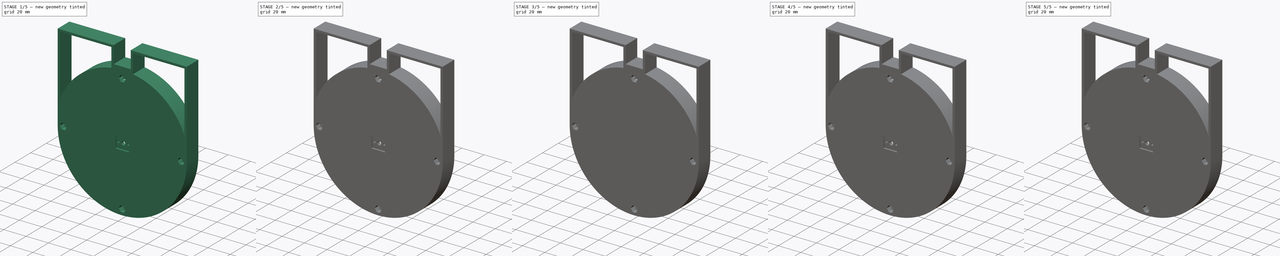
[diagram: build sequence overview — one tinted view per stage of 5, left to right]
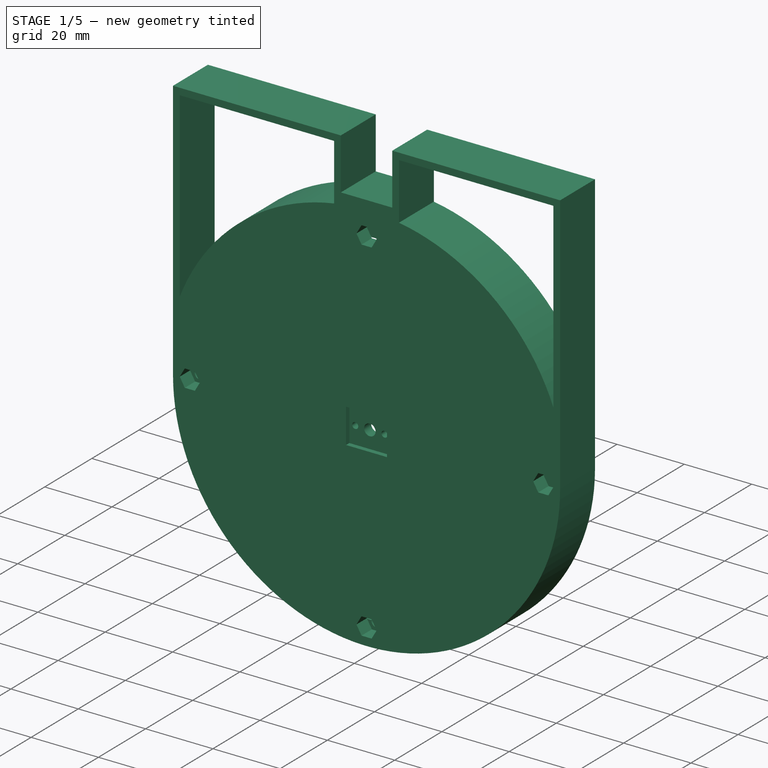
[diagram: stage 1 of 5 — iso view after this stage's code; geometry added in this stage tinted green]
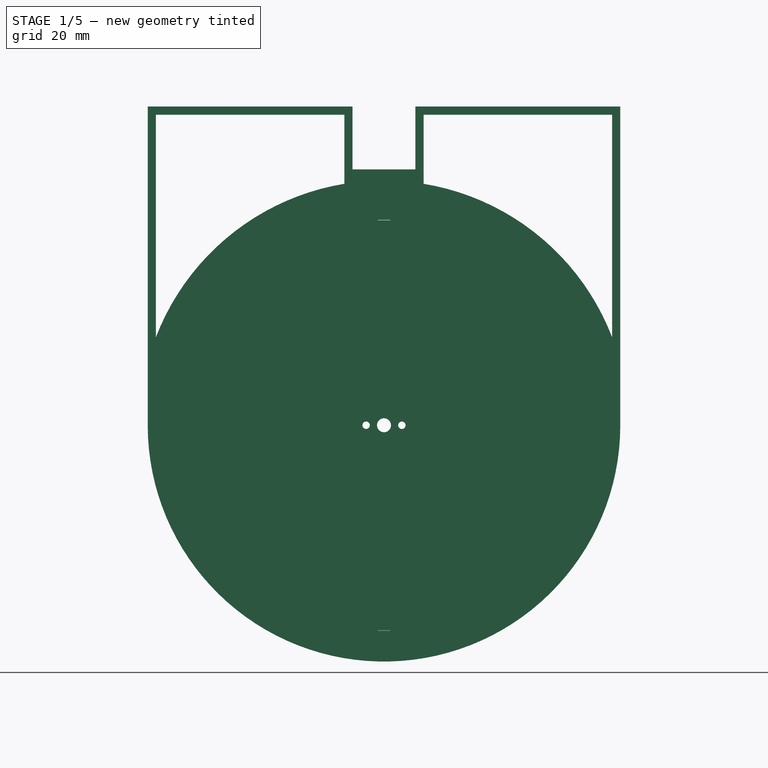
[diagram: stage 1 of 5 — front view after this stage's code; geometry added in this stage tinted green]
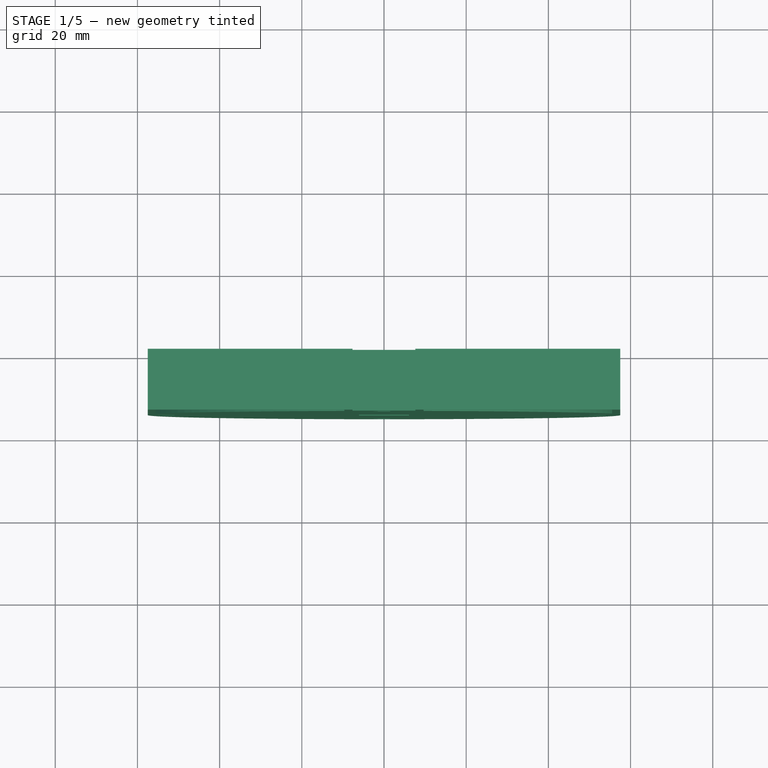
[diagram: stage 1 of 5 — top view after this stage's code; geometry added in this stage tinted green]
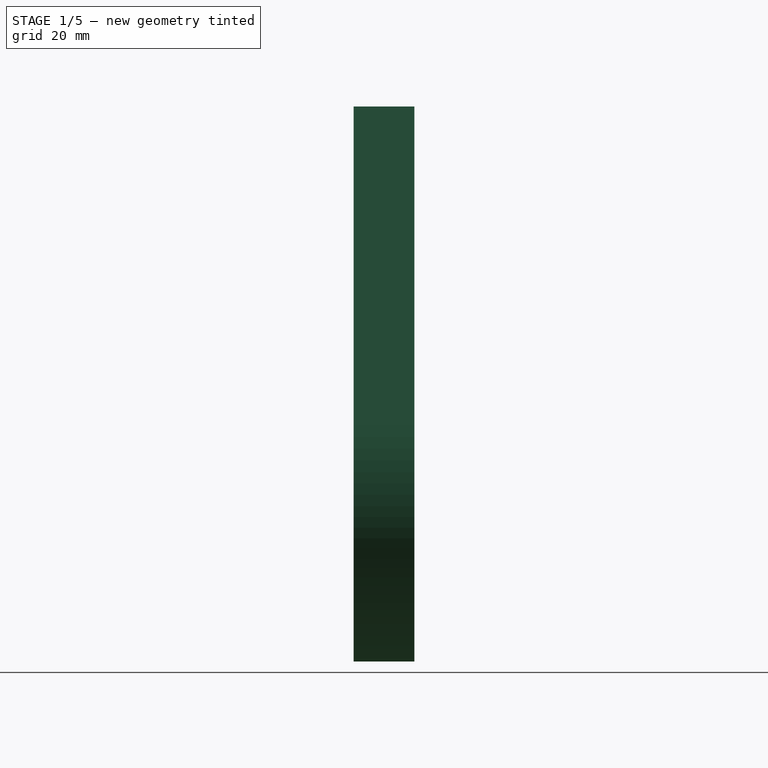
[diagram: stage 1 of 5 — right view after this stage's code; geometry added in this stage tinted green]
FCSTD DOCUMENT  (FreeCAD 1.0R39109 (Git))
Label: All pinions
License: Creative Commons Attribution 4.0
LicenseURL: https://creativecommons.org/licenses/by/4.0/
objects: Sketcher::SketchObject×143, PartDesign::Pocket×80, PartDesign::Pad×63, PartDesign::ShapeBinder×18, PartDesign::Plane×18, PartDesign::PolarPattern×18, PartDesign::Body×9, Part::Part2DObjectPython×8
note: 804 computed .brp shape members not serialized (recipe doc carries the construction recipe); baked Part::Feature solids carry a one-line shape summary decoded from their .brp

FEATURE [PartDesign::Body] Body007  label="Pinion_0_3373"
  AllowCompound = false
  Group = -> [Sketch118,Pad043,PolarPattern013,DatumPlane012,Sketch119,Pocket063,Sketch120,Pocket064,PolarPattern014,ReferencePad013,Sketch133,ShapeString007,Pocket071]
  Origin = -> Origin007
  Placement = pos=(-1.52,2.13e-14,96) rot=(0,-0.707107,-0.707107;3.14159rad)
  Tip = -> Pocket071
FEATURE [PartDesign::ShapeBinder] CopyPolarPattern009
  Placement = pos=(0,0,0) rot=(1,0,0;1.5708rad)
  TraceSupport = false
FEATURE [PartDesign::Plane] DatumPlane015
  AttachmentSupport = -> [CopyPolarPattern009]
  Length = 257.872
  MapMode = 5
  Placement = pos=(0,-10,6.7e-15) rot=(1,0,0;1.5708rad)
  ResizeMode = 0
  Width = 262.622
FEATURE [Part::Part2DObjectPython] ShapeString008  # Draft 2D object (typed FeaturePython)
  FontFile = <userpath>/Documents/DV_Projects/8_Cycloidal_gearbox_paper/0_testbed/v0/V 0_1339/OpenSans-Regular.ttf
  Fuse = false
  Justification = 7
  JustificationReference = 1
  KeepLeftMargin = false
  MakeFace = true
  ObliqueAngle = 0
  Placement = pos=(-18.3,-51.06,0) rot=(0,0,-1;0.314159rad)
  ScaleToSize = true
  Size = 3
  String = 0.3882
  Tracking = 0
FEATURE [Sketcher::SketchObject] Sketch134
  ArcFitTolerance = 1e-06
  AttachmentSupport = -> [XZ_Plane008]
  FullyConstrained = false
  MakeInternals = false
  MapMode = 5
  Placement = pos=(0,0,0) rot=(1,0,0;1.5708rad)
  sketch-geometry (5):
    g0: GeomPoint X=0 Y=0 Z=0
    g1: ArcOfCircle CenterX=0 CenterY=0 CenterZ=0 NormalX=0 NormalY=0 NormalZ=1 AngleXU=0 Radius=50 StartAngle=0.0580672 EndAngle=6.22688
    g2: ArcOfCircle CenterX=50 CenterY=0.0439684 CenterZ=0 NormalX=0 NormalY=0 NormalZ=1 AngleXU=0 Radius=2.859 StartAngle=1.60027 EndAngle=4.68467
    g3: Circle CenterX=0 CenterY=0 CenterZ=0 NormalX=0 NormalY=0 NormalZ=1 AngleXU=0 Radius=55
    g4: Circle [constr] CenterX=-49.9999 CenterY=-0.118804 CenterZ=0 NormalX=0 NormalY=0 NormalZ=1 AngleXU=0 Radius=3.059
  constraints (12):
    c: PointOnObject(g0,g-1)
    c: Diameter(g1) = 100
    c: Coincident(g1,g0)
    c: DistanceX(g0,g-1) = 0
    c: PointOnObject(g2,g1)
    c: Diameter(g2) = 5.718
    c: Coincident(g1,g2)
    c: Coincident(g1,g2)
    c: Diameter(g3) = 110
    c: Coincident(g3,g0)
    c: Diameter(g4) = 6.118
    c: PointOnObject(g4,g1)
FEATURE [PartDesign::Pad] Pad050  label="HERE m(1-x)-rc005"
  Direction = (0,-1,2e-16)
  Length = 10
  Length2 = 10
  Placement = pos=(0,0,0) rot=(1,0,0;1.5708rad)
  Profile = -> Sketch134
  ReferenceAxis = -> Sketch134 [N_Axis]
  Refine = true
  Suppressed = false
  Type = 0
FEATURE [PartDesign::PolarPattern] PolarPattern015
  Angle = 360
  Axis = -> Sketch134 [N_Axis]
  BaseFeature = -> Pad050
  Mode = 0
  Occurrences = 10
  Offset = 120
  Originals = -> [Pad050]
  Placement = pos=(0,0,0) rot=(1,0,0;1.5708rad)
  Refine = true
  Suppressed = false
  TransformMode = 0
FEATURE [PartDesign::Plane] DatumPlane014
  AttachmentSupport = -> [PolarPattern015]
  Length = 132
  MapMode = 5
  Placement = pos=(0,-10,2.2e-15) rot=(1,0,0;1.5708rad)
  ResizeMode = 0
  Width = 132
FEATURE [Sketcher::SketchObject] Sketch135
  ArcFitTolerance = 1e-06
  AttachmentSupport = -> [DatumPlane014]
  ExternalGeometry = -> [PolarPattern015]
  FullyConstrained = true
  MakeInternals = false
  MapMode = 5
  Placement = pos=(0,-10,2.2e-15) rot=(1,0,0;1.5708rad)
  sketch-geometry (6):
    g0: Circle CenterX=0 CenterY=0 CenterZ=0 NormalX=0 NormalY=0 NormalZ=1 AngleXU=0 Radius=55
    g1: Circle [constr] CenterX=0 CenterY=0 CenterZ=0 NormalX=0 NormalY=0 NormalZ=1 AngleXU=0 Radius=50
    g2: GeomPoint X=50 Y=0 Z=0
    g3: LineSegment [constr] StartX=50 StartY=0 StartZ=0 EndX=55 EndY=0 EndZ=0
    g4: GeomPoint [constr] X=52.5 Y=0 Z=0
    g5: Circle CenterX=0 CenterY=0 CenterZ=0 NormalX=0 NormalY=0 NormalZ=1 AngleXU=0 Radius=52.5
  constraints (11):
    c: Coincident(g0,g-1)
    c: PointOnObject(g-3,g0)
    c: Coincident(g1,g0)
    c: PointOnObject(g-4,g1)
    c: PointOnObject(g2,g1)
    c: Coincident(g3,g2)
    c: Coincident(g3,g-3)
    c: Horizontal(g3)
    c: Symmetric(g3,g3,g4)
    c: Coincident(g5,g0)
    c: PointOnObject(g4,g5)
FEATURE [PartDesign::Pocket] Pocket072
  BaseFeature = -> PolarPattern015
  Direction = (0,1,-2e-16)
  Length = 3
  Length2 = 5
  Placement = pos=(0,0,0) rot=(1,0,0;1.5708rad)
  Profile = -> Sketch135
  ReferenceAxis = -> Sketch135 [N_Axis]
  Refine = true
  Suppressed = false
  Type = 0
FEATURE [Sketcher::SketchObject] Sketch137
  ArcFitTolerance = 1e-06
  AttachmentSupport = -> [DatumPlane015]
  FullyConstrained = true
  MakeInternals = false
  MapMode = 5
  Placement = pos=(0,-10,6.7e-15) rot=(1,0,0;1.5708rad)
  sketch-geometry (4):
    g0: Circle [constr] CenterX=0 CenterY=0 CenterZ=0 NormalX=0 NormalY=0 NormalZ=1 AngleXU=0 Radius=52.7
    g1: Circle [constr] CenterX=0 CenterY=0 CenterZ=0 NormalX=0 NormalY=0 NormalZ=1 AngleXU=0 Radius=55
    g2: Circle CenterX=0 CenterY=0 CenterZ=0 NormalX=0 NormalY=0 NormalZ=1 AngleXU=0 Radius=57.5
    g3: Circle CenterX=0 CenterY=0 CenterZ=0 NormalX=0 NormalY=0 NormalZ=1 AngleXU=0 Radius=50.2
  constraints (8):
    c: Diameter(g0) = 105.4
    c: Coincident(g0,g-1)
    c: Diameter(g1) = 110
    c: Coincident(g1,g0)
    c: Diameter(g2) = 115
    c: Coincident(g2,g0)
    c: Diameter(g3) = 100.4
    c: Coincident(g3,g0)
FEATURE [PartDesign::Pad] Pad051
  Direction = (0,-1,2e-16)
  Length = 10
  Length2 = 10
  Placement = pos=(0,-10,6.7e-15) rot=(1,0,0;1.5708rad)
  Profile = -> Sketch137
  ReferenceAxis = -> Sketch137 [N_Axis]
  Refine = true
  Reversed = true
  Suppressed = false
  Type = 0
FEATURE [Sketcher::SketchObject] Sketch138
  ArcFitTolerance = 1e-06
  AttachmentSupport = -> [DatumPlane015]
  FullyConstrained = true
  MakeInternals = false
  MapMode = 5
  Placement = pos=(0,-10,6.7e-15) rot=(1,0,0;1.5708rad)
  sketch-geometry (2):
    g0: Circle CenterX=0 CenterY=0 CenterZ=0 NormalX=0 NormalY=0 NormalZ=1 AngleXU=0 Radius=52.7
    g1: Circle CenterX=0 CenterY=0 CenterZ=0 NormalX=0 NormalY=0 NormalZ=1 AngleXU=0 Radius=57.5
  constraints (4):
    c: Diameter(g0) = 105.4
    c: Coincident(g0,g-1)
    c: Diameter(g1) = 115
    c: Coincident(g1,g0)
FEATURE [PartDesign::Pad] Pad052
  BaseFeature = -> Pad051
  Direction = (0,-1,2e-16)
  Length = 10
  Length2 = 10
  Placement = pos=(0,-10,6.7e-15) rot=(1,0,0;1.5708rad)
  Profile = -> Sketch138
  ReferenceAxis = -> Sketch138 [N_Axis]
  Refine = true
  Reversed = true
  Suppressed = false
  Type = 0
FEATURE [Sketcher::SketchObject] Sketch139
  ArcFitTolerance = 1e-06
  AttachmentSupport = -> [PolarPattern016]
  FullyConstrained = false
  MakeInternals = false
  MapMode = 5
  Placement = pos=(0,-10,2.2e-15) rot=(1,0,0;1.5708rad)
  sketch-geometry (2):
    g0: Circle CenterX=0 CenterY=0 CenterZ=0 NormalX=0 NormalY=0 NormalZ=1 AngleXU=0 Radius=45.6306
    g1: Circle CenterX=0 CenterY=0 CenterZ=0 NormalX=0 NormalY=0 NormalZ=1 AngleXU=0 Radius=55.2
  constraints (3):
    c: Coincident(g0,g-1)
    c: Diameter(g1) = 110.4
    c: Coincident(g1,g0)
FEATURE [PartDesign::Pocket] Pocket074
  BaseFeature = -> Pad052
  Direction = (0,1,-2e-16)
  Length = 3
  Length2 = 5
  Placement = pos=(0,-10,6.7e-15) rot=(1,0,0;1.5708rad)
  Profile = -> Sketch139
  ReferenceAxis = -> Sketch139 [N_Axis]
  Refine = true
  Suppressed = false
  Type = 1
FEATURE [Sketcher::SketchObject] Sketch140
  ArcFitTolerance = 1e-06
  AttachmentSupport = -> [Pocket074]
  ExternalGeometry = -> [Pocket074]
  FullyConstrained = false
  MakeInternals = false
  MapMode = 5
  Placement = pos=(0,-10,6.7e-15) rot=(1,0,0;1.5708rad)
  sketch-geometry (2):
    g0: Circle CenterX=0 CenterY=0 CenterZ=0 NormalX=0 NormalY=0 NormalZ=1 AngleXU=0 Radius=55.2
    g1: Circle CenterX=0 CenterY=0 CenterZ=0 NormalX=0 NormalY=0 NormalZ=1 AngleXU=0 Radius=52.7
  constraints (3):
    c: Coincident(g0,g-1)
    c: Diameter(g1) = 105.4
    c: Coincident(g1,g0)
FEATURE [PartDesign::Pad] Pad053
  BaseFeature = -> Pocket074
  Direction = (0,-1,2e-16)
  Length = 2.6
  Length2 = 10
  Placement = pos=(0,-10,6.7e-15) rot=(1,0,0;1.5708rad)
  Profile = -> Sketch140
  ReferenceAxis = -> Sketch140 [N_Axis]
  Refine = true
  Reversed = true
  Suppressed = false
  Type = 0
FEATURE [Sketcher::SketchObject] Sketch141
  ArcFitTolerance = 1e-06
  AttachmentSupport = -> [Pad053]
  ExternalGeometry = -> [Pad053]
  FullyConstrained = false
  MakeInternals = false
  MapMode = 5
  Placement = pos=(0,-10,6.7e-15) rot=(1,0,0;1.5708rad)
  sketch-geometry (2):
    g0: Circle CenterX=0 CenterY=0 CenterZ=0 NormalX=0 NormalY=0 NormalZ=1 AngleXU=0 Radius=52.7
    g1: Circle CenterX=0 CenterY=0 CenterZ=0 NormalX=0 NormalY=0 NormalZ=1 AngleXU=0 Radius=57.5
  constraints (2):
    c: Coincident(g0,g-1)
    c: Coincident(g1,g0)
FEATURE [PartDesign::Pad] Pad054
  BaseFeature = -> Pad053
  Direction = (0,-1,2e-16)
  Length = 0.4
  Length2 = 10
  Placement = pos=(0,-10,6.7e-15) rot=(1,0,0;1.5708rad)
  Profile = -> Sketch141
  ReferenceAxis = -> Sketch141 [N_Axis]
  Refine = true
  Suppressed = false
  Type = 0
FEATURE [Sketcher::SketchObject] Sketch142
  ArcFitTolerance = 1e-06
  AttachmentSupport = -> [Pad054]
  FullyConstrained = true
  MakeInternals = false
  MapMode = 5
  Placement = pos=(0,-10.4,6.9e-15) rot=(1,0,0;1.5708rad)
  sketch-geometry (4):
    g0: Circle CenterX=0 CenterY=-52.5 CenterZ=0 NormalX=0 NormalY=0 NormalZ=1 AngleXU=0 Radius=1.75
    g1: Circle CenterX=-52.5 CenterY=0 CenterZ=0 NormalX=0 NormalY=0 NormalZ=1 AngleXU=0 Radius=1.75
    g2: Circle CenterX=0 CenterY=52.5 CenterZ=0 NormalX=0 NormalY=0 NormalZ=1 AngleXU=0 Radius=1.75
    g3: Circle CenterX=52.5 CenterY=0 CenterZ=0 NormalX=0 NormalY=0 NormalZ=1 AngleXU=0 Radius=1.75
  constraints (12):
    c: PointOnObject(g0,g-2)
    c: Diameter(g0) = 3.5
    c: DistanceY(g0,g-1) = 52.5
    c: Diameter(g1) = 3.5
    c: PointOnObject(g1,g-1)
    c: Diameter(g2) = 3.5
    c: PointOnObject(g2,g-2)
    c: Diameter(g3) = 3.5
    c: PointOnObject(g3,g-1)
    c: DistanceX(g1,g-1) = 52.5
    c: DistanceX(g-1,g3) = 52.5
    c: DistanceY(g-1,g2) = 52.5
FEATURE [PartDesign::Pocket] Pocket075
  BaseFeature = -> Pad054
  Direction = (0,1,-2e-16)
  Length = 5
  Length2 = 5
  Placement = pos=(0,-10,6.7e-15) rot=(1,0,0;1.5708rad)
  Profile = -> Sketch142
  ReferenceAxis = -> Sketch142 [N_Axis]
  Refine = true
  Suppressed = false
  Type = 0
FEATURE [Sketcher::SketchObject] Sketch143
  ArcFitTolerance = 1e-06
  AttachmentSupport = -> [Pocket075]
  ExternalGeometry = -> [Pocket075]
  FullyConstrained = false
  MakeInternals = false
  MapMode = 5
  Placement = pos=(0,-10.4,6.9e-15) rot=(1,0,0;1.5708rad)
  sketch-geometry (29):
    g0: LineSegment StartX=3 StartY=-52.5 StartZ=0 EndX=1.5 EndY=-49.9019 EndZ=0
    g1: LineSegment StartX=1.5 StartY=-49.9019 StartZ=0 EndX=-1.5 EndY=-49.9019 EndZ=0
    g2: LineSegment StartX=-1.5 StartY=-49.9019 StartZ=0 EndX=-3 EndY=-52.5 EndZ=0
    g3: LineSegment StartX=-3 StartY=-52.5 StartZ=0 EndX=-1.5 EndY=-55.0981 EndZ=0
    g4: LineSegment StartX=-1.5 StartY=-55.0981 StartZ=0 EndX=1.5 EndY=-55.0981 EndZ=0
    g5: LineSegment StartX=1.5 StartY=-55.0981 StartZ=0 EndX=3 EndY=-52.5 EndZ=0
    g6: Circle [constr] CenterX=0 CenterY=-52.5 CenterZ=0 NormalX=0 NormalY=0 NormalZ=1 AngleXU=0 Radius=3
    g7: LineSegment StartX=3 StartY=52.5 StartZ=0 EndX=1.5 EndY=55.0981 EndZ=0
    g8: LineSegment StartX=1.5 StartY=55.0981 StartZ=0 EndX=-1.5 EndY=55.0981 EndZ=0
    g9: LineSegment StartX=-1.5 StartY=55.0981 StartZ=0 EndX=-3 EndY=52.5 EndZ=0
    g10: LineSegment StartX=-3 StartY=52.5 StartZ=0 EndX=-1.5 EndY=49.9019 EndZ=0
    g11: LineSegment StartX=-1.5 StartY=49.9019 StartZ=0 EndX=1.5 EndY=49.9019 EndZ=0
    g12: LineSegment StartX=1.5 StartY=49.9019 StartZ=0 EndX=3 EndY=52.5 EndZ=0
    g13: Circle [constr] CenterX=0 CenterY=52.5 CenterZ=0 NormalX=0 NormalY=0 NormalZ=1 AngleXU=0 Radius=3
    g14: LineSegment StartX=-49.5 StartY=1e-16 StartZ=0 EndX=-51 EndY=2.59808 EndZ=0
    g15: LineSegment StartX=-51 StartY=2.59808 StartZ=0 EndX=-54 EndY=2.59808 EndZ=0
    g16: LineSegment StartX=-54 StartY=2.59808 StartZ=0 EndX=-55.5 EndY=-1e-16 EndZ=0
    g17: LineSegment StartX=-55.5 StartY=-1e-16 StartZ=0 EndX=-54 EndY=-2.59808 EndZ=0
    g18: LineSegment StartX=-54 StartY=-2.59808 StartZ=0 EndX=-51 EndY=-2.59808 EndZ=0
    g19: LineSegment StartX=-51 StartY=-2.59808 StartZ=0 EndX=-49.5 EndY=1e-16 EndZ=0
    g20: Circle [constr] CenterX=-52.5 CenterY=0 CenterZ=0 NormalX=0 NormalY=0 NormalZ=1 AngleXU=0 Radius=3
    g21: LineSegment StartX=55.5 StartY=1e-16 StartZ=0 EndX=54 EndY=2.59808 EndZ=0
    g22: LineSegment StartX=54 StartY=2.59808 StartZ=0 EndX=51 EndY=2.59808 EndZ=0
    g23: LineSegment StartX=51 StartY=2.59808 StartZ=0 EndX=49.5 EndY=-1e-16 EndZ=0
    g24: LineSegment StartX=49.5 StartY=-1e-16 StartZ=0 EndX=51 EndY=-2.59808 EndZ=0
    g25: LineSegment StartX=51 StartY=-2.59808 StartZ=0 EndX=54 EndY=-2.59808 EndZ=0
    g26: LineSegment StartX=54 StartY=-2.59808 StartZ=0 EndX=55.5 EndY=1e-16 EndZ=0
    g27: Circle [constr] CenterX=52.5 CenterY=0 CenterZ=0 NormalX=0 NormalY=0 NormalZ=1 AngleXU=0 Radius=3
    g28: Circle CenterX=0 CenterY=0 CenterZ=0 NormalX=0 NormalY=0 NormalZ=1 AngleXU=0 Radius=57.5
  constraints (64):
    c: Coincident(g0,g1)
    c: Coincident(g1,g2)
    c: Coincident(g2,g3)
    c: Coincident(g3,g4)
    c: Coincident(g4,g5)
    c: Coincident(g5,g0)
    c: Equal(g0, g1-g5) x5
    c: PointOnObject(g0,g6)
    c: PointOnObject(g1,g6)
    c: PointOnObject(g2,g6)
    c: PointOnObject(g3,g6)
    c: PointOnObject(g4,g6)
    c: PointOnObject(g5,g6)
    c: PointOnObject(g6,g-2)
    c: Diameter(g6) = 6
    c: Horizontal(g4)
    c: Coincident(g7,g8)
    c: Coincident(g8,g9)
    c: Coincident(g9,g10)
    c: Coincident(g10,g11)
    c: Coincident(g11,g12)
    c: Coincident(g12,g7)
    c: Equal(g7, g8-g12) x5
    c: PointOnObject(g7,g13)
    c: PointOnObject(g8,g13)
    c: PointOnObject(g9,g13)
    c: PointOnObject(g10,g13)
    c: PointOnObject(g11,g13)
    c: PointOnObject(g12,g13)
    c: Radius(g13) = 3
    c: PointOnObject(g13,g-2)
    c: Coincident(g14,g15)
    c: Coincident(g15,g16)
    c: Coincident(g16,g17)
    c: Coincident(g17,g18)
    c: Coincident(g18,g19)
    c: Coincident(g19,g14)
    c: Equal(g14, g15-g19) x5
    c: PointOnObject(g14,g20)
    c: PointOnObject(g15,g20)
    c: PointOnObject(g16,g20)
    c: PointOnObject(g17,g20)
    c: PointOnObject(g18,g20)
    c: PointOnObject(g19,g20)
    c: Radius(g20) = 3
    c: PointOnObject(g20,g-1)
    c: PointOnObject(g19,g-1)
    c: Coincident(g21,g22)
    c: Coincident(g22,g23)
    c: Coincident(g23,g24)
    c: Coincident(g24,g25)
    c: Coincident(g25,g26)
    c: Coincident(g26,g21)
    c: Equal(g21, g22-g26) x5
    c: PointOnObject(g21,g27)
    c: PointOnObject(g22,g27)
    c: PointOnObject(g23,g27)
    c: PointOnObject(g24,g27)
    c: PointOnObject(g25,g27)
    c: PointOnObject(g26,g27)
    c: Radius(g27) = 3
    c: PointOnObject(g27,g-1)
    c: Horizontal(g25)
    c: Coincident(g28,g-1)
FEATURE [PartDesign::Pad] Pad055
  BaseFeature = -> Pocket075
  Direction = (0,-1,2e-16)
  Length = 4.4
  Length2 = 10
  Placement = pos=(0,-10,6.7e-15) rot=(1,0,0;1.5708rad)
  Profile = -> Sketch143
  ReferenceAxis = -> Sketch143 [N_Axis]
  Refine = true
  Suppressed = false
  Type = 0
FEATURE [Sketcher::SketchObject] Sketch144
  ArcFitTolerance = 1e-06
  AttachmentSupport = -> [Pad055]
  FullyConstrained = true
  MakeInternals = false
  MapMode = 5
  Placement = pos=(0,-14.8,7.3e-15) rot=(1,0,0;1.5708rad)
  sketch-geometry (5):
    g0: LineSegment StartX=6.09 StartY=5.145 StartZ=0 EndX=-6.09 EndY=5.145 EndZ=0
    g1: LineSegment StartX=-6.09 StartY=5.145 StartZ=0 EndX=-6.09 EndY=-5.145 EndZ=0
    g2: LineSegment StartX=-6.09 StartY=-5.145 StartZ=0 EndX=6.09 EndY=-5.145 EndZ=0
    g3: LineSegment StartX=6.09 StartY=-5.145 StartZ=0 EndX=6.09 EndY=5.145 EndZ=0
    g4: GeomPoint [constr] X=0 Y=0 Z=0
  constraints (12):
    c: Coincident(g0,g1)
    c: Coincident(g1,g2)
    c: Coincident(g2,g3)
    c: Coincident(g3,g0)
    c: Horizontal(g0)
    c: Horizontal(g2)
    c: Vertical(g1)
    c: Vertical(g3)
    c: Symmetric(g2,g0,g4)
    c: Distance(g2,g2) = 12.18
    c: Distance(g3,g3) = 10.29
    c: Coincident(g4,g-1)
FEATURE [PartDesign::Pocket] Pocket076
  BaseFeature = -> Pad055
  Direction = (0,1,-2e-16)
  Length = 1.4
  Length2 = 5
  Placement = pos=(0,-10,6.7e-15) rot=(1,0,0;1.5708rad)
  Profile = -> Sketch144
  ReferenceAxis = -> Sketch144 [N_Axis]
  Refine = true
  Suppressed = false
  Type = 0
FEATURE [Sketcher::SketchObject] Sketch145
  ArcFitTolerance = 1e-06
  AttachmentSupport = -> [Pocket076]
  FullyConstrained = true
  MakeInternals = false
  MapMode = 5
  Placement = pos=(0,-14.8,7.8e-15) rot=(1,0,0;1.5708rad)
  sketch-geometry (1):
    g0: Circle CenterX=0 CenterY=0 CenterZ=0 NormalX=0 NormalY=0 NormalZ=1 AngleXU=0 Radius=1.7
  constraints (2):
    c: Coincident(g0,g-1)
    c: Diameter(g0) = 3.4
FEATURE [PartDesign::Pocket] Pocket077
  BaseFeature = -> Pocket076
  Direction = (0,1,-2e-16)
  Length = 5
  Length2 = 5
  Placement = pos=(0,-10,6.7e-15) rot=(1,0,0;1.5708rad)
  Profile = -> Sketch145
  ReferenceAxis = -> Sketch145 [N_Axis]
  Refine = true
  Suppressed = false
  Type = 1
FEATURE [Sketcher::SketchObject] Sketch146
  ArcFitTolerance = 1e-06
  AttachmentSupport = -> [Pocket077]
  FullyConstrained = true
  MakeInternals = false
  MapMode = 5
  Placement = pos=(0,-14.8,8.3e-15) rot=(1,0,0;1.5708rad)
  sketch-geometry (4):
    g0: Circle CenterX=-4.35 CenterY=0 CenterZ=0 NormalX=0 NormalY=0 NormalZ=1 AngleXU=0 Radius=0.9
    g1: Circle CenterX=4.35 CenterY=0 CenterZ=0 NormalX=0 NormalY=0 NormalZ=1 AngleXU=0 Radius=0.9
    g2: GeomPoint [constr] X=-5.25 Y=0 Z=0
    g3: GeomPoint [constr] X=5.25 Y=0 Z=0
  constraints (9):
    c: PointOnObject(g0,g-1)
    c: Diameter(g0) = 1.8
    c: PointOnObject(g2,g0)
    c: PointOnObject(g3,g1)
    c: PointOnObject(g3,g-1)
    c: PointOnObject(g2,g-1)
    c: DistanceX(g2,g3) = 10.5
    c: Symmetric(g0,g1,g-1)
    c: Equal(g1,g0)
FEATURE [PartDesign::Pocket] Pocket078
  BaseFeature = -> Pocket077
  Direction = (0,1,-2e-16)
  Length = 5
  Length2 = 5
  Placement = pos=(0,-10,6.7e-15) rot=(1,0,0;1.5708rad)
  Profile = -> Sketch146
  ReferenceAxis = -> Sketch146 [N_Axis]
  Refine = true
  Suppressed = false
  Type = 1
FEATURE [Sketcher::SketchObject] Sketch147
  ArcFitTolerance = 1e-06
  AttachmentSupport = -> [Pocket078]
  ExternalGeometry = -> [Pocket078]
  FullyConstrained = true
  MakeInternals = false
  MapMode = 5
  Placement = pos=(0,-10.4,6.9e-15) rot=(-1,0,0;1.5708rad)
  sketch-geometry (2):
    g0: Circle CenterX=-4.35 CenterY=0 CenterZ=0 NormalX=0 NormalY=0 NormalZ=1 AngleXU=0 Radius=1.55
    g1: Circle CenterX=4.35 CenterY=0 CenterZ=0 NormalX=0 NormalY=0 NormalZ=1 AngleXU=0 Radius=1.55
  constraints (4):
    c: Coincident(g0,g-3)
    c: Coincident(g1,g-4)
    c: Diameter(g0) = 3.1
    c: Equal(g0,g1)
FEATURE [PartDesign::Pocket] Pocket079
  BaseFeature = -> Pocket078
  Direction = (0,-1,-2e-16)
  Length = 1
  Length2 = 5
  Placement = pos=(0,-10,6.7e-15) rot=(1,0,0;1.5708rad)
  Profile = -> Sketch147
  ReferenceAxis = -> Sketch147 [N_Axis]
  Refine = true
  Suppressed = false
  Type = 0
FEATURE [PartDesign::Body] Body008  label="Pinion_0_3882"
  AllowCompound = false
  Group = -> [Sketch134,Pad050,PolarPattern015,DatumPlane014,Sketch135,Pocket072,Sketch136,Pocket073,PolarPattern016,ReferencePad014,Sketch149,ShapeString008,Pocket080]
  Origin = -> Origin008
  Placement = pos=(-1.52,2.49e-14,112) rot=(0,-0.707107,-0.707107;3.14159rad)
  Tip = -> Pocket080
FEATURE [PartDesign::ShapeBinder] CopyPolarPattern010
  Placement = pos=(0,0,0) rot=(1,0,0;1.5708rad)
  TraceSupport = false
FEATURE [PartDesign::Plane] DatumPlane017
  AttachmentSupport = -> [CopyPolarPattern010]
  Length = 259.427
  MapMode = 5
  Placement = pos=(0,-10,6.7e-15) rot=(1,0,0;1.5708rad)
  ResizeMode = 0
  Width = 280.177
FEATURE [Part::Part2DObjectPython] ShapeString009  # Draft 2D object (typed FeaturePython)
  FontFile = <userpath>/Documents/DV_Projects/8_Cycloidal_gearbox_paper/0_testbed/v0/V 0_1339/OpenSans-Regular.ttf
  Fuse = false
  Justification = 7
  JustificationReference = 1
  KeepLeftMargin = false
  MakeFace = true
  ObliqueAngle = 0
  Placement = pos=(-18.3,-51.06,0) rot=(0,0,-1;0.314159rad)
  ScaleToSize = true
  Size = 3
  String = 0.4391
  Tracking = 0
FEATURE [Sketcher::SketchObject] Sketch150
  ArcFitTolerance = 1e-06
  AttachmentSupport = -> [XZ_Plane009]
  FullyConstrained = false
  MakeInternals = false
  MapMode = 5
  Placement = pos=(0,0,0) rot=(1,0,0;1.5708rad)
  sketch-geometry (5):
    g0: GeomPoint X=0 Y=0 Z=0
    g1: ArcOfCircle CenterX=0 CenterY=0 CenterZ=0 NormalX=0 NormalY=0 NormalZ=1 AngleXU=0 Radius=50 StartAngle=0.0522514 EndAngle=6.23124
    g2: ArcOfCircle CenterX=50 CenterY=0.00777547 CenterZ=0 NormalX=0 NormalY=0 NormalZ=1 AngleXU=0 Radius=2.6045 StartAngle=1.597 EndAngle=4.6865
    g3: Circle CenterX=0 CenterY=0 CenterZ=0 NormalX=0 NormalY=0 NormalZ=1 AngleXU=0 Radius=55
    g4: Circle [constr] CenterX=-49.9999 CenterY=-0.118804 CenterZ=0 NormalX=0 NormalY=0 NormalZ=1 AngleXU=0 Radius=2.8045
  constraints (12):
    c: PointOnObject(g0,g-1)
    c: Diameter(g1) = 100
    c: Coincident(g1,g0)
    c: DistanceX(g0,g-1) = 0
    c: PointOnObject(g2,g1)
    c: Diameter(g2) = 5.209
    c: Coincident(g1,g2)
    c: Coincident(g1,g2)
    c: Diameter(g3) = 110
    c: Coincident(g3,g0)
    c: Diameter(g4) = 5.609
    c: PointOnObject(g4,g1)
FEATURE [PartDesign::Pad] Pad057  label="HERE m(1-x)-rc006"
  Direction = (0,-1,2e-16)
  Length = 10
  Length2 = 10
  Placement = pos=(0,0,0) rot=(1,0,0;1.5708rad)
  Profile = -> Sketch150
  ReferenceAxis = -> Sketch150 [N_Axis]
  Refine = true
  Suppressed = false
  Type = 0
FEATURE [PartDesign::PolarPattern] PolarPattern017
  Angle = 360
  Axis = -> Sketch150 [N_Axis]
  BaseFeature = -> Pad057
  Mode = 0
  Occurrences = 10
  Offset = 120
  Originals = -> [Pad057]
  Placement = pos=(0,0,0) rot=(1,0,0;1.5708rad)
  Refine = true
  Suppressed = false
  TransformMode = 0
FEATURE [PartDesign::Plane] DatumPlane016
  AttachmentSupport = -> [PolarPattern017]
  Length = 132
  MapMode = 5
  Placement = pos=(0,-10,2.2e-15) rot=(1,0,0;1.5708rad)
  ResizeMode = 0
  Width = 132
FEATURE [Sketcher::SketchObject] Sketch151
  ArcFitTolerance = 1e-06
  AttachmentSupport = -> [DatumPlane016]
  ExternalGeometry = -> [PolarPattern017]
  FullyConstrained = true
  MakeInternals = false
  MapMode = 5
  Placement = pos=(0,-10,2.2e-15) rot=(1,0,0;1.5708rad)
  sketch-geometry (6):
    g0: Circle CenterX=0 CenterY=0 CenterZ=0 NormalX=0 NormalY=0 NormalZ=1 AngleXU=0 Radius=55
    g1: Circle [constr] CenterX=0 CenterY=0 CenterZ=0 NormalX=0 NormalY=0 NormalZ=1 AngleXU=0 Radius=50
    g2: GeomPoint X=50 Y=0 Z=0
    g3: LineSegment [constr] StartX=50 StartY=0 StartZ=0 EndX=55 EndY=0 EndZ=0
    g4: GeomPoint [constr] X=52.5 Y=0 Z=0
    g5: Circle CenterX=0 CenterY=0 CenterZ=0 NormalX=0 NormalY=0 NormalZ=1 AngleXU=0 Radius=52.5
  constraints (11):
    c: Coincident(g0,g-1)
    c: PointOnObject(g-3,g0)
    c: Coincident(g1,g0)
    c: PointOnObject(g-4,g1)
    c: PointOnObject(g2,g1)
    c: Coincident(g3,g2)
    c: Coincident(g3,g-3)
    c: Horizontal(g3)
    c: Symmetric(g3,g3,g4)
    c: Coincident(g5,g0)
    c: PointOnObject(g4,g5)
FEATURE [PartDesign::Pocket] Pocket081
  BaseFeature = -> PolarPattern017
  Direction = (0,1,-2e-16)
  Length = 3
  Length2 = 5
  Placement = pos=(0,0,0) rot=(1,0,0;1.5708rad)
  Profile = -> Sketch151
  ReferenceAxis = -> Sketch151 [N_Axis]
  Refine = true
  Suppressed = false
  Type = 0
FEATURE [Sketcher::SketchObject] Sketch152
  ArcFitTolerance = 1e-06
  AttachmentSupport = -> [DatumPlane016]
  ExternalGeometry = -> [Pocket081]
  FullyConstrained = true
  MakeInternals = false
  MapMode = 5
  Placement = pos=(0,-10,2.2e-15) rot=(1,0,0;1.5708rad)
  sketch-geometry (1):
    g0: Circle CenterX=52.5 CenterY=0 CenterZ=0 NormalX=0 NormalY=0 NormalZ=1 AngleXU=0 Radius=1.75
  constraints (3):
    c: Diameter(g0) = 3.5
    c: PointOnObject(g0,g-1)
    c: PointOnObject(g0,g-3)
FEATURE [PartDesign::Pocket] Pocket082
  BaseFeature = -> Pocket081
  Direction = (0,1,-2e-16)
  Length = 5
  Length2 = 5
  Midplane = true
  Placement = pos=(0,0,0) rot=(1,0,0;1.5708rad)
  Profile = -> Sketch152
  ReferenceAxis = -> Sketch152 [N_Axis]
  Refine = true
  Suppressed = false
  Type = 1
FEATURE [PartDesign::PolarPattern] PolarPattern018
  Angle = 360
  Axis = -> Sketch152 [N_Axis]
  BaseFeature = -> Pocket082
  Mode = 0
  Occurrences = 4
  Offset = 120
  Originals = -> [Pocket082]
  Placement = pos=(0,0,0) rot=(1,0,0;1.5708rad)
  Refine = true
  Suppressed = false
  TransformMode = 0
FEATURE [Sketcher::SketchObject] Sketch153
  ArcFitTolerance = 1e-06
  AttachmentSupport = -> [DatumPlane017]
  FullyConstrained = true
  MakeInternals = false
  MapMode = 5
  Placement = pos=(0,-10,6.7e-15) rot=(1,0,0;1.5708rad)
  sketch-geometry (4):
    g0: Circle [constr] CenterX=0 CenterY=0 CenterZ=0 NormalX=0 NormalY=0 NormalZ=1 AngleXU=0 Radius=52.7
    g1: Circle [constr] CenterX=0 CenterY=0 CenterZ=0 NormalX=0 NormalY=0 NormalZ=1 AngleXU=0 Radius=55
    g2: Circle CenterX=0 CenterY=0 CenterZ=0 NormalX=0 NormalY=0 NormalZ=1 AngleXU=0 Radius=57.5
    g3: Circle CenterX=0 CenterY=0 CenterZ=0 NormalX=0 NormalY=0 NormalZ=1 AngleXU=0 Radius=50.2
  constraints (8):
    c: Diameter(g0) = 105.4
    c: Coincident(g0,g-1)
    c: Diameter(g1) = 110
    c: Coincident(g1,g0)
    c: Diameter(g2) = 115
    c: Coincident(g2,g0)
    c: Diameter(g3) = 100.4
    c: Coincident(g3,g0)
FEATURE [PartDesign::Pad] Pad058
  Direction = (0,-1,2e-16)
  Length = 10
  Length2 = 10
  Placement = pos=(0,-10,6.7e-15) rot=(1,0,0;1.5708rad)
  Profile = -> Sketch153
  ReferenceAxis = -> Sketch153 [N_Axis]
  Refine = true
  Reversed = true
  Suppressed = false
  Type = 0
FEATURE [Sketcher::SketchObject] Sketch154
  ArcFitTolerance = 1e-06
  AttachmentSupport = -> [DatumPlane017]
  FullyConstrained = true
  MakeInternals = false
  MapMode = 5
  Placement = pos=(0,-10,6.7e-15) rot=(1,0,0;1.5708rad)
  sketch-geometry (2):
    g0: Circle CenterX=0 CenterY=0 CenterZ=0 NormalX=0 NormalY=0 NormalZ=1 AngleXU=0 Radius=52.7
    g1: Circle CenterX=0 CenterY=0 CenterZ=0 NormalX=0 NormalY=0 NormalZ=1 AngleXU=0 Radius=57.5
  constraints (4):
    c: Diameter(g0) = 105.4
    c: Coincident(g0,g-1)
    c: Diameter(g1) = 115
    c: Coincident(g1,g0)
FEATURE [PartDesign::Pad] Pad059
  BaseFeature = -> Pad058
  Direction = (0,-1,2e-16)
  Length = 10
  Length2 = 10
  Placement = pos=(0,-10,6.7e-15) rot=(1,0,0;1.5708rad)
  Profile = -> Sketch154
  ReferenceAxis = -> Sketch154 [N_Axis]
  Refine = true
  Reversed = true
  Suppressed = false
  Type = 0
FEATURE [Sketcher::SketchObject] Sketch155
  ArcFitTolerance = 1e-06
  AttachmentSupport = -> [PolarPattern018]
  FullyConstrained = false
  MakeInternals = false
  MapMode = 5
  Placement = pos=(0,-10,2.2e-15) rot=(1,0,0;1.5708rad)
  sketch-geometry (2):
    g0: Circle CenterX=0 CenterY=0 CenterZ=0 NormalX=0 NormalY=0 NormalZ=1 AngleXU=0 Radius=45.6306
    g1: Circle CenterX=0 CenterY=0 CenterZ=0 NormalX=0 NormalY=0 NormalZ=1 AngleXU=0 Radius=55.2
  constraints (3):
    c: Coincident(g0,g-1)
    c: Diameter(g1) = 110.4
    c: Coincident(g1,g0)
FEATURE [PartDesign::Pocket] Pocket083
  BaseFeature = -> Pad059
  Direction = (0,1,-2e-16)
  Length = 3
  Length2 = 5
  Placement = pos=(0,-10,6.7e-15) rot=(1,0,0;1.5708rad)
  Profile = -> Sketch155
  ReferenceAxis = -> Sketch155 [N_Axis]
  Refine = true
  Suppressed = false
  Type = 1
FEATURE [Sketcher::SketchObject] Sketch156
  ArcFitTolerance = 1e-06
  AttachmentSupport = -> [Pocket083]
  ExternalGeometry = -> [Pocket083]
  FullyConstrained = false
  MakeInternals = false
  MapMode = 5
  Placement = pos=(0,-10,6.7e-15) rot=(1,0,0;1.5708rad)
  sketch-geometry (2):
    g0: Circle CenterX=0 CenterY=0 CenterZ=0 NormalX=0 NormalY=0 NormalZ=1 AngleXU=0 Radius=55.2
    g1: Circle CenterX=0 CenterY=0 CenterZ=0 NormalX=0 NormalY=0 NormalZ=1 AngleXU=0 Radius=52.7
  constraints (3):
    c: Coincident(g0,g-1)
    c: Diameter(g1) = 105.4
    c: Coincident(g1,g0)
FEATURE [PartDesign::Pad] Pad060
  BaseFeature = -> Pocket083
  Direction = (0,-1,2e-16)
  Length = 2.6
  Length2 = 10
  Placement = pos=(0,-10,6.7e-15) rot=(1,0,0;1.5708rad)
  Profile = -> Sketch156
  ReferenceAxis = -> Sketch156 [N_Axis]
  Refine = true
  Reversed = true
  Suppressed = false
  Type = 0
FEATURE [Sketcher::SketchObject] Sketch157
  ArcFitTolerance = 1e-06
  AttachmentSupport = -> [Pad060]
  ExternalGeometry = -> [Pad060]
  FullyConstrained = false
  MakeInternals = false
  MapMode = 5
  Placement = pos=(0,-10,6.7e-15) rot=(1,0,0;1.5708rad)
  sketch-geometry (2):
    g0: Circle CenterX=0 CenterY=0 CenterZ=0 NormalX=0 NormalY=0 NormalZ=1 AngleXU=0 Radius=52.7
    g1: Circle CenterX=0 CenterY=0 CenterZ=0 NormalX=0 NormalY=0 NormalZ=1 AngleXU=0 Radius=57.5
  constraints (2):
    c: Coincident(g0,g-1)
    c: Coincident(g1,g0)
FEATURE [PartDesign::Pad] Pad061
  BaseFeature = -> Pad060
  Direction = (0,-1,2e-16)
  Length = 0.4
  Length2 = 10
  Placement = pos=(0,-10,6.7e-15) rot=(1,0,0;1.5708rad)
  Profile = -> Sketch157
  ReferenceAxis = -> Sketch157 [N_Axis]
  Refine = true
  Suppressed = false
  Type = 0
FEATURE [Sketcher::SketchObject] Sketch158
  ArcFitTolerance = 1e-06
  AttachmentSupport = -> [Pad061]
  FullyConstrained = true
  MakeInternals = false
  MapMode = 5
  Placement = pos=(0,-10.4,6.9e-15) rot=(1,0,0;1.5708rad)
  sketch-geometry (4):
    g0: Circle CenterX=0 CenterY=-52.5 CenterZ=0 NormalX=0 NormalY=0 NormalZ=1 AngleXU=0 Radius=1.75
    g1: Circle CenterX=-52.5 CenterY=0 CenterZ=0 NormalX=0 NormalY=0 NormalZ=1 AngleXU=0 Radius=1.75
    g2: Circle CenterX=0 CenterY=52.5 CenterZ=0 NormalX=0 NormalY=0 NormalZ=1 AngleXU=0 Radius=1.75
    g3: Circle CenterX=52.5 CenterY=0 CenterZ=0 NormalX=0 NormalY=0 NormalZ=1 AngleXU=0 Radius=1.75
  constraints (12):
    c: PointOnObject(g0,g-2)
    c: Diameter(g0) = 3.5
    c: DistanceY(g0,g-1) = 52.5
    c: Diameter(g1) = 3.5
    c: PointOnObject(g1,g-1)
    c: Diameter(g2) = 3.5
    c: PointOnObject(g2,g-2)
    c: Diameter(g3) = 3.5
    c: PointOnObject(g3,g-1)
    c: DistanceX(g1,g-1) = 52.5
    c: DistanceX(g-1,g3) = 52.5
    c: DistanceY(g-1,g2) = 52.5
FEATURE [PartDesign::Pocket] Pocket084
  BaseFeature = -> Pad061
  Direction = (0,1,-2e-16)
  Length = 5
  Length2 = 5
  Placement = pos=(0,-10,6.7e-15) rot=(1,0,0;1.5708rad)
  Profile = -> Sketch158
  ReferenceAxis = -> Sketch158 [N_Axis]
  Refine = true
  Suppressed = false
  Type = 0
FEATURE [Sketcher::SketchObject] Sketch159
  ArcFitTolerance = 1e-06
  AttachmentSupport = -> [Pocket084]
  ExternalGeometry = -> [Pocket084]
  FullyConstrained = false
  MakeInternals = false
  MapMode = 5
  Placement = pos=(0,-10.4,6.9e-15) rot=(1,0,0;1.5708rad)
  sketch-geometry (29):
    g0: LineSegment StartX=3 StartY=-52.5 StartZ=0 EndX=1.5 EndY=-49.9019 EndZ=0
    g1: LineSegment StartX=1.5 StartY=-49.9019 StartZ=0 EndX=-1.5 EndY=-49.9019 EndZ=0
    g2: LineSegment StartX=-1.5 StartY=-49.9019 StartZ=0 EndX=-3 EndY=-52.5 EndZ=0
    g3: LineSegment StartX=-3 StartY=-52.5 StartZ=0 EndX=-1.5 EndY=-55.0981 EndZ=0
    g4: LineSegment StartX=-1.5 StartY=-55.0981 StartZ=0 EndX=1.5 EndY=-55.0981 EndZ=0
    g5: LineSegment StartX=1.5 StartY=-55.0981 StartZ=0 EndX=3 EndY=-52.5 EndZ=0
    g6: Circle [constr] CenterX=0 CenterY=-52.5 CenterZ=0 NormalX=0 NormalY=0 NormalZ=1 AngleXU=0 Radius=3
    g7: LineSegment StartX=3 StartY=52.5 StartZ=0 EndX=1.5 EndY=55.0981 EndZ=0
    g8: LineSegment StartX=1.5 StartY=55.0981 StartZ=0 EndX=-1.5 EndY=55.0981 EndZ=0
    g9: LineSegment StartX=-1.5 StartY=55.0981 StartZ=0 EndX=-3 EndY=52.5 EndZ=0
    g10: LineSegment StartX=-3 StartY=52.5 StartZ=0 EndX=-1.5 EndY=49.9019 EndZ=0
    g11: LineSegment StartX=-1.5 StartY=49.9019 StartZ=0 EndX=1.5 EndY=49.9019 EndZ=0
    g12: LineSegment StartX=1.5 StartY=49.9019 StartZ=0 EndX=3 EndY=52.5 EndZ=0
    g13: Circle [constr] CenterX=0 CenterY=52.5 CenterZ=0 NormalX=0 NormalY=0 NormalZ=1 AngleXU=0 Radius=3
    g14: LineSegment StartX=-49.5 StartY=1e-16 StartZ=0 EndX=-51 EndY=2.59808 EndZ=0
    g15: LineSegment StartX=-51 StartY=2.59808 StartZ=0 EndX=-54 EndY=2.59808 EndZ=0
    g16: LineSegment StartX=-54 StartY=2.59808 StartZ=0 EndX=-55.5 EndY=-1e-16 EndZ=0
    g17: LineSegment StartX=-55.5 StartY=-1e-16 StartZ=0 EndX=-54 EndY=-2.59808 EndZ=0
    g18: LineSegment StartX=-54 StartY=-2.59808 StartZ=0 EndX=-51 EndY=-2.59808 EndZ=0
    g19: LineSegment StartX=-51 StartY=-2.59808 StartZ=0 EndX=-49.5 EndY=1e-16 EndZ=0
    g20: Circle [constr] CenterX=-52.5 CenterY=0 CenterZ=0 NormalX=0 NormalY=0 NormalZ=1 AngleXU=0 Radius=3
    g21: LineSegment StartX=55.5 StartY=1e-16 StartZ=0 EndX=54 EndY=2.59808 EndZ=0
    g22: LineSegment StartX=54 StartY=2.59808 StartZ=0 EndX=51 EndY=2.59808 EndZ=0
    g23: LineSegment StartX=51 StartY=2.59808 StartZ=0 EndX=49.5 EndY=-1e-16 EndZ=0
    g24: LineSegment StartX=49.5 StartY=-1e-16 StartZ=0 EndX=51 EndY=-2.59808 EndZ=0
    g25: LineSegment StartX=51 StartY=-2.59808 StartZ=0 EndX=54 EndY=-2.59808 EndZ=0
    g26: LineSegment StartX=54 StartY=-2.59808 StartZ=0 EndX=55.5 EndY=1e-16 EndZ=0
    g27: Circle [constr] CenterX=52.5 CenterY=0 CenterZ=0 NormalX=0 NormalY=0 NormalZ=1 AngleXU=0 Radius=3
    g28: Circle CenterX=0 CenterY=0 CenterZ=0 NormalX=0 NormalY=0 NormalZ=1 AngleXU=0 Radius=57.5
  constraints (64):
    c: Coincident(g0,g1)
    c: Coincident(g1,g2)
    c: Coincident(g2,g3)
    c: Coincident(g3,g4)
    c: Coincident(g4,g5)
    c: Coincident(g5,g0)
    c: Equal(g0, g1-g5) x5
    c: PointOnObject(g0,g6)
    c: PointOnObject(g1,g6)
    c: PointOnObject(g2,g6)
    c: PointOnObject(g3,g6)
    c: PointOnObject(g4,g6)
    c: PointOnObject(g5,g6)
    c: PointOnObject(g6,g-2)
    c: Diameter(g6) = 6
    c: Horizontal(g4)
    c: Coincident(g7,g8)
    c: Coincident(g8,g9)
    c: Coincident(g9,g10)
    c: Coincident(g10,g11)
    c: Coincident(g11,g12)
    c: Coincident(g12,g7)
    c: Equal(g7, g8-g12) x5
    c: PointOnObject(g7,g13)
    c: PointOnObject(g8,g13)
    c: PointOnObject(g9,g13)
    c: PointOnObject(g10,g13)
    c: PointOnObject(g11,g13)
    c: PointOnObject(g12,g13)
    c: Radius(g13) = 3
    c: PointOnObject(g13,g-2)
    c: Coincident(g14,g15)
    c: Coincident(g15,g16)
    c: Coincident(g16,g17)
    c: Coincident(g17,g18)
    c: Coincident(g18,g19)
    c: Coincident(g19,g14)
    c: Equal(g14, g15-g19) x5
    c: PointOnObject(g14,g20)
    c: PointOnObject(g15,g20)
    c: PointOnObject(g16,g20)
    c: PointOnObject(g17,g20)
    c: PointOnObject(g18,g20)
    c: PointOnObject(g19,g20)
    c: Radius(g20) = 3
    c: PointOnObject(g20,g-1)
    c: PointOnObject(g19,g-1)
    c: Coincident(g21,g22)
    c: Coincident(g22,g23)
    c: Coincident(g23,g24)
    c: Coincident(g24,g25)
    c: Coincident(g25,g26)
    c: Coincident(g26,g21)
    c: Equal(g21, g22-g26) x5
    c: PointOnObject(g21,g27)
    c: PointOnObject(g22,g27)
    c: PointOnObject(g23,g27)
    c: PointOnObject(g24,g27)
    c: PointOnObject(g25,g27)
    c: PointOnObject(g26,g27)
    c: Radius(g27) = 3
    c: PointOnObject(g27,g-1)
    c: Horizontal(g25)
    c: Coincident(g28,g-1)
FEATURE [PartDesign::Pad] Pad062
  BaseFeature = -> Pocket084
  Direction = (0,-1,2e-16)
  Length = 4.4
  Length2 = 10
  Placement = pos=(0,-10,6.7e-15) rot=(1,0,0;1.5708rad)
  Profile = -> Sketch159
  ReferenceAxis = -> Sketch159 [N_Axis]
  Refine = true
  Suppressed = false
  Type = 0
FEATURE [Sketcher::SketchObject] Sketch160
  ArcFitTolerance = 1e-06
  AttachmentSupport = -> [Pad062]
  FullyConstrained = true
  MakeInternals = false
  MapMode = 5
  Placement = pos=(0,-14.8,7.3e-15) rot=(1,0,0;1.5708rad)
  sketch-geometry (5):
    g0: LineSegment StartX=6.09 StartY=5.145 StartZ=0 EndX=-6.09 EndY=5.145 EndZ=0
    g1: LineSegment StartX=-6.09 StartY=5.145 StartZ=0 EndX=-6.09 EndY=-5.145 EndZ=0
    g2: LineSegment StartX=-6.09 StartY=-5.145 StartZ=0 EndX=6.09 EndY=-5.145 EndZ=0
    g3: LineSegment StartX=6.09 StartY=-5.145 StartZ=0 EndX=6.09 EndY=5.145 EndZ=0
    g4: GeomPoint [constr] X=0 Y=0 Z=0
  constraints (12):
    c: Coincident(g0,g1)
    c: Coincident(g1,g2)
    c: Coincident(g2,g3)
    c: Coincident(g3,g0)
    c: Horizontal(g0)
    c: Horizontal(g2)
    c: Vertical(g1)
    c: Vertical(g3)
    c: Symmetric(g2,g0,g4)
    c: Distance(g2,g2) = 12.18
    c: Distance(g3,g3) = 10.29
    c: Coincident(g4,g-1)
FEATURE [PartDesign::Pocket] Pocket085
  BaseFeature = -> Pad062
  Direction = (0,1,-2e-16)
  Length = 1.4
  Length2 = 5
  Placement = pos=(0,-10,6.7e-15) rot=(1,0,0;1.5708rad)
  Profile = -> Sketch160
  ReferenceAxis = -> Sketch160 [N_Axis]
  Refine = true
  Suppressed = false
  Type = 0
FEATURE [Sketcher::SketchObject] Sketch161
  ArcFitTolerance = 1e-06
  AttachmentSupport = -> [Pocket085]
  FullyConstrained = true
  MakeInternals = false
  MapMode = 5
  Placement = pos=(0,-14.8,7.8e-15) rot=(1,0,0;1.5708rad)
  sketch-geometry (1):
    g0: Circle CenterX=0 CenterY=0 CenterZ=0 NormalX=0 NormalY=0 NormalZ=1 AngleXU=0 Radius=1.7
  constraints (2):
    c: Coincident(g0,g-1)
    c: Diameter(g0) = 3.4
FEATURE [PartDesign::Pocket] Pocket086
  BaseFeature = -> Pocket085
  Direction = (0,1,-2e-16)
  Length = 5
  Length2 = 5
  Placement = pos=(0,-10,6.7e-15) rot=(1,0,0;1.5708rad)
  Profile = -> Sketch161
  ReferenceAxis = -> Sketch161 [N_Axis]
  Refine = true
  Suppressed = false
  Type = 1
FEATURE [Sketcher::SketchObject] Sketch162
  ArcFitTolerance = 1e-06
  AttachmentSupport = -> [Pocket086]
  FullyConstrained = true
  MakeInternals = false
  MapMode = 5
  Placement = pos=(0,-14.8,8.3e-15) rot=(1,0,0;1.5708rad)
  sketch-geometry (4):
    g0: Circle CenterX=-4.35 CenterY=0 CenterZ=0 NormalX=0 NormalY=0 NormalZ=1 AngleXU=0 Radius=0.9
    g1: Circle CenterX=4.35 CenterY=0 CenterZ=0 NormalX=0 NormalY=0 NormalZ=1 AngleXU=0 Radius=0.9
    g2: GeomPoint [constr] X=-5.25 Y=0 Z=0
    g3: GeomPoint [constr] X=5.25 Y=0 Z=0
  constraints (9):
    c: PointOnObject(g0,g-1)
    c: Diameter(g0) = 1.8
    c: PointOnObject(g2,g0)
    c: PointOnObject(g3,g1)
    c: PointOnObject(g3,g-1)
    c: PointOnObject(g2,g-1)
    c: DistanceX(g2,g3) = 10.5
    c: Symmetric(g0,g1,g-1)
    c: Equal(g1,g0)
FEATURE [PartDesign::Pocket] Pocket087
  BaseFeature = -> Pocket086
  Direction = (0,1,-2e-16)
  Length = 5
  Length2 = 5
  Placement = pos=(0,-10,6.7e-15) rot=(1,0,0;1.5708rad)
  Profile = -> Sketch162
  ReferenceAxis = -> Sketch162 [N_Axis]
  Refine = true
  Suppressed = false
  Type = 1
FEATURE [Sketcher::SketchObject] Sketch163
  ArcFitTolerance = 1e-06
  AttachmentSupport = -> [Pocket087]
  ExternalGeometry = -> [Pocket087]
  FullyConstrained = true
  MakeInternals = false
  MapMode = 5
  Placement = pos=(0,-10.4,6.9e-15) rot=(-1,0,0;1.5708rad)
  sketch-geometry (2):
    g0: Circle CenterX=-4.35 CenterY=0 CenterZ=0 NormalX=0 NormalY=0 NormalZ=1 AngleXU=0 Radius=1.55
    g1: Circle CenterX=4.35 CenterY=0 CenterZ=0 NormalX=0 NormalY=0 NormalZ=1 AngleXU=0 Radius=1.55
  constraints (4):
    c: Coincident(g0,g-3)
    c: Coincident(g1,g-4)
    c: Diameter(g0) = 3.1
    c: Equal(g0,g1)
FEATURE [PartDesign::Pocket] Pocket088
  BaseFeature = -> Pocket087
  Direction = (0,-1,-2e-16)
  Length = 1
  Length2 = 5
  Placement = pos=(0,-10,6.7e-15) rot=(1,0,0;1.5708rad)
  Profile = -> Sketch163
  ReferenceAxis = -> Sketch163 [N_Axis]
  Refine = true
  Suppressed = false
  Type = 0
FEATURE [Sketcher::SketchObject] Sketch164
  ArcFitTolerance = 1e-06
  AttachmentSupport = -> [Pocket088]
  ExternalGeometry = -> [Pocket088]
  FullyConstrained = false
  MakeInternals = false
  MapMode = 5
  Placement = pos=(0,3.6e-15,-5.5e-15) rot=(-1,0,0;1.5708rad)
  sketch-geometry (28):
    g0: GeomPoint [constr] X=0 Y=-57.5 Z=0
    g1: LineSegment [constr] StartX=-4.43558 StartY=-57.5 StartZ=0 EndX=4.43558 EndY=-57.5 EndZ=0
    g2: LineSegment [constr] StartX=-4.43558 StartY=-57.5 StartZ=0 EndX=-7.65 EndY=-59.66 EndZ=0
    g3: LineSegment [constr] StartX=-7.65 StartY=-59.66 StartZ=0 EndX=-7.65 EndY=-62.26 EndZ=0
    g4: LineSegment [constr] StartX=-7.65 StartY=-62.26 StartZ=0 EndX=7.65 EndY=-62.26 EndZ=0
    g5: GeomPoint X=1.1e-15 Y=-62.26 Z=0
    g6: GeomPoint X=1.1e-15 Y=-62.26 Z=0
    g7: LineSegment [constr] StartX=4.43558 StartY=-57.5 StartZ=0 EndX=7.65 EndY=-59.66 EndZ=0
    g8: LineSegment [constr] StartX=7.65 StartY=-59.66 StartZ=0 EndX=7.65 EndY=-62.26 EndZ=0
    g9: GeomPoint [constr] X=0 Y=-57.5 Z=0
    g10: LineSegment StartX=-7.65 StartY=-62.26 StartZ=0 EndX=7.65 EndY=-62.26 EndZ=0
    g11: LineSegment StartX=7.65 StartY=-62.26 StartZ=0 EndX=7.65 EndY=-77.56 EndZ=0
    g12: LineSegment StartX=-7.65 StartY=-62.26 StartZ=0 EndX=-7.65 EndY=-77.56 EndZ=0
    g13: GeomPoint [constr] X=-57.5 Y=0 Z=0
    g14: GeomPoint [constr] X=57.5 Y=-1.41e-14 Z=0
    g15: LineSegment StartX=-57.5 StartY=0 StartZ=0 EndX=-57.5 EndY=-77.56 EndZ=0
    g16: LineSegment StartX=57.5 StartY=-1.41e-14 StartZ=0 EndX=57.5 EndY=-77.56 EndZ=0
    g17: LineSegment StartX=-57.5 StartY=-77.56 StartZ=0 EndX=-7.65 EndY=-77.56 EndZ=0
    g18: LineSegment StartX=7.65 StartY=-77.56 StartZ=0 EndX=57.5 EndY=-77.56 EndZ=0
    g19: ArcOfCircle CenterX=0 CenterY=0 CenterZ=0 NormalX=0 NormalY=0 NormalZ=1 AngleXU=0 Radius=57.5 StartAngle=3.14159 EndAngle=6.28319
    g20: LineSegment StartX=9.64066 StartY=-58.7609 StartZ=0 EndX=9.65 EndY=-75.56 EndZ=0
    g21: LineSegment StartX=9.65 StartY=-75.56 StartZ=0 EndX=55.5 EndY=-75.56 EndZ=0
    g22: LineSegment StartX=55.5001 StartY=-21.4477 StartZ=0 EndX=55.5 EndY=-75.56 EndZ=0
    g23: ArcOfCircle CenterX=-0.0112221 CenterY=-0.0601961 CenterZ=0 NormalX=0 NormalY=0 NormalZ=1 AngleXU=0 Radius=59.4889 StartAngle=4.87536 EndAngle=5.91543
    g24: LineSegment StartX=-9.65 StartY=-75.56 StartZ=0 EndX=-55.5 EndY=-75.56 EndZ=0
    g25: LineSegment StartX=-9.64066 StartY=-58.7609 StartZ=0 EndX=-9.65 EndY=-75.56 EndZ=0
    g26: LineSegment StartX=-55.5001 StartY=-21.4477 StartZ=0 EndX=-55.5 EndY=-75.56 EndZ=0
    g27: ArcOfCircle CenterX=0.0112221 CenterY=-0.0601961 CenterZ=0 NormalX=0 NormalY=0 NormalZ=1 AngleXU=0 Radius=59.4889 StartAngle=3.50935 EndAngle=4.54942
  constraints (57):
    c: PointOnObject(g0,g-3)
    c: PointOnObject(g0,g-2)
    c: Distance(g2,g3) = 2.6
    c: Angle(g2,g3) = 0.97913
    c: Coincident(g4,g3)
    c: Coincident(g2,g3)
    c: Coincident(g1,g2)
    c: Symmetric(g4,g4,g5)
    c: Coincident(g6,g5)
    c: Coincident(g7,g1)
    c: Coincident(g8,g7)
    c: Coincident(g8,g4)
    c: Angle(g8,g7) = 0.97913
    c: Distance(g1,g4) = 4.76
    c: Distance(g3,g8) = 15.3
    c: Symmetric(g1,g1,g9)
    c: Horizontal(g1)
    c: Vertical(g8)
    c: Vertical(g3)
    c: Coincident(g10,g3)
    c: Coincident(g10,g4)
    c: Horizontal(g10)
    c: Distance(g11) = 15.3
    c: Vertical(g11)
    c: Coincident(g11,g4)
    c: Distance(g12) = 15.3
    c: Vertical(g12)
    c: Coincident(g12,g3)
    c: Coincident(g9,g0)
    c: Equal(g8,g3)
    c: PointOnObject(g13,g-3)
    c: PointOnObject(g14,g-3)
    c: PointOnObject(g13,g-1)
    c: PointOnObject(g14,g-1)
    c: Coincident(g15,g13)
    c: Vertical(g15)
    c: Horizontal(g15,g12)
    c: Horizontal(g16,g11)
    c: Vertical(g16)
    c: Coincident(g16,g14)
    c: Coincident(g17,g15)
    c: Coincident(g17,g12)
    c: Coincident(g18,g11)
    c: Coincident(g18,g16)
    c: Coincident(g19,g-1)
    c: Coincident(g19,g14)
    c: Coincident(g20,g21)
    c: Coincident(g21,g22)
    c: Coincident(g22,g23)
    c: PointOnObject(g20,g23)
    c: PointOnObject(g23,g20)
    c: Coincident(g25,g24)
    c: Coincident(g24,g26)
    c: Coincident(g26,g27)
    c: PointOnObject(g25,g27)
    c: PointOnObject(g27,g25)
    c: PointOnObject(g19,g-1)
FEATURE [PartDesign::Pad] Pad063
  BaseFeature = -> Pocket088
  Direction = (0,1,-1.1e-15)
  Length = 14.8
  Length2 = 10
  Placement = pos=(0,-10,6.7e-15) rot=(1,0,0;1.5708rad)
  Profile = -> Sketch164
  ReferenceAxis = -> Sketch164 [N_Axis]
  Refine = true
  Reversed = true
  Suppressed = false
  Type = 0
FEATURE [PartDesign::ShapeBinder] ReferencePad015
  Placement = pos=(0,-10,6.7e-15) rot=(1,0,0;1.5708rad)
  Support = -> [Pad063]
  TraceSupport = false
FEATURE [Sketcher::SketchObject] Sketch165
  ArcFitTolerance = 1e-06
  AttachmentSupport = -> [PolarPattern018]
  FullyConstrained = false
  MakeInternals = false
  MapMode = 5
  Placement = pos=(0,0,0) rot=(-1,0,0;1.5708rad)
  sketch-geometry (139):
    g0: BSplineCurve PolesCount=3 KnotsCount=2 Degree=2 IsPeriodic=0
    g1: BSplineCurve PolesCount=3 KnotsCount=2 Degree=2 IsPeriodic=0
    g2: BSplineCurve PolesCount=3 KnotsCount=2 Degree=2 IsPeriodic=0
    g3: BSplineCurve PolesCount=3 KnotsCount=2 Degree=2 IsPeriodic=0
    g4: BSplineCurve PolesCount=3 KnotsCount=2 Degree=2 IsPeriodic=0
    g5: BSplineCurve PolesCount=3 KnotsCount=2 Degree=2 IsPeriodic=0
    g6: BSplineCurve PolesCount=3 KnotsCount=2 Degree=2 IsPeriodic=0
    g7: BSplineCurve PolesCount=3 KnotsCount=2 Degree=2 IsPeriodic=0
    g8: BSplineCurve PolesCount=3 KnotsCount=2 Degree=2 IsPeriodic=0
    g9: BSplineCurve PolesCount=3 KnotsCount=2 Degree=2 IsPeriodic=0
    g10: BSplineCurve PolesCount=3 KnotsCount=2 Degree=2 IsPeriodic=0
    g11: BSplineCurve PolesCount=3 KnotsCount=2 Degree=2 IsPeriodic=0
    g12: BSplineCurve PolesCount=3 KnotsCount=2 Degree=2 IsPeriodic=0
    g13: BSplineCurve PolesCount=3 KnotsCount=2 Degree=2 IsPeriodic=0
    g14: BSplineCurve PolesCount=3 KnotsCount=2 Degree=2 IsPeriodic=0
    g15: BSplineCurve PolesCount=3 KnotsCount=2 Degree=2 IsPeriodic=0
    g16: BSplineCurve PolesCount=3 KnotsCount=2 Degree=2 IsPeriodic=0
    g17: BSplineCurve PolesCount=3 KnotsCount=2 Degree=2 IsPeriodic=0
    g18: BSplineCurve PolesCount=3 KnotsCount=2 Degree=2 IsPeriodic=0
    g19: BSplineCurve PolesCount=3 KnotsCount=2 Degree=2 IsPeriodic=0
    g20: BSplineCurve PolesCount=3 KnotsCount=2 Degree=2 IsPeriodic=0
    g21: BSplineCurve PolesCount=3 KnotsCount=2 Degree=2 IsPeriodic=0
    g22: BSplineCurve PolesCount=3 KnotsCount=2 Degree=2 IsPeriodic=0
    g23: BSplineCurve PolesCount=3 KnotsCount=2 Degree=2 IsPeriodic=0
    g24: BSplineCurve PolesCount=3 KnotsCount=2 Degree=2 IsPeriodic=0
    g25: BSplineCurve PolesCount=3 KnotsCount=2 Degree=2 IsPeriodic=0
    g26: BSplineCurve PolesCount=3 KnotsCount=2 Degree=2 IsPeriodic=0
    g27: BSplineCurve PolesCount=3 KnotsCount=2 Degree=2 IsPeriodic=0
    g28: BSplineCurve PolesCount=3 KnotsCount=2 Degree=2 IsPeriodic=0
    g29: BSplineCurve PolesCount=3 KnotsCount=2 Degree=2 IsPeriodic=0
    g30: BSplineCurve PolesCount=3 KnotsCount=2 Degree=2 IsPeriodic=0
    g31: BSplineCurve PolesCount=3 KnotsCount=2 Degree=2 IsPeriodic=0
    g32: BSplineCurve PolesCount=3 KnotsCount=2 Degree=2 IsPeriodic=0
    g33: LineSegment StartX=-18.4218 StartY=-50.2456 StartZ=0 EndX=-18.8488 EndY=-50.1069 EndZ=0
    g34: LineSegment StartX=-18.3268 StartY=-49.9532 StartZ=0 EndX=-18.4218 EndY=-50.2456 EndZ=0
    g35: LineSegment StartX=-18.7537 StartY=-49.8145 StartZ=0 EndX=-18.3268 EndY=-49.9532 EndZ=0
    g36: LineSegment StartX=-18.1352 StartY=-47.9109 StartZ=0 EndX=-18.7537 EndY=-49.8145 EndZ=0
    g37: LineSegment StartX=-18.4725 StartY=-47.8013 StartZ=0 EndX=-18.1352 EndY=-47.9109 EndZ=0
    g38: LineSegment StartX=-20.4543 StartY=-49.2835 StartZ=0 EndX=-18.4725 EndY=-47.8013 EndZ=0
    g39: LineSegment StartX=-20.543 StartY=-49.5564 StartZ=0 EndX=-20.4543 EndY=-49.2835 EndZ=0
    g40: LineSegment StartX=-19.1646 StartY=-50.0043 StartZ=0 EndX=-20.543 EndY=-49.5564 EndZ=0
    g41: LineSegment StartX=-19.3781 StartY=-50.6614 StartZ=0 EndX=-19.1646 EndY=-50.0043 EndZ=0
    g42: LineSegment StartX=-19.0623 StartY=-50.764 StartZ=0 EndX=-19.3781 EndY=-50.6614 EndZ=0
    g43: LineSegment StartX=-18.8488 StartY=-50.1069 StartZ=0 EndX=-19.0623 EndY=-50.764 EndZ=0
    g44: LineSegment StartX=-19.0696 StartY=-49.7118 StartZ=0 EndX=-18.7685 EndY=-48.7853 EndZ=0
    g45: LineSegment StartX=-20.1262 StartY=-49.3685 StartZ=0 EndX=-19.0696 EndY=-49.7118 EndZ=0
    g46: LineSegment StartX=-18.8445 StartY=-48.4155 StartZ=0 EndX=-20.1262 EndY=-49.3685 EndZ=0
    g47: BSplineCurve PolesCount=3 KnotsCount=2 Degree=2 IsPeriodic=0
    g48: BSplineCurve PolesCount=3 KnotsCount=2 Degree=2 IsPeriodic=0
    g49: LineSegment StartX=-18.5443 StartY=-48.1616 StartZ=0 EndX=-18.5599 EndY=-48.1565 EndZ=0
    g50: BSplineCurve PolesCount=3 KnotsCount=2 Degree=2 IsPeriodic=0
    g51: BSplineCurve PolesCount=3 KnotsCount=2 Degree=2 IsPeriodic=0
    g52: BSplineCurve PolesCount=3 KnotsCount=2 Degree=2 IsPeriodic=0
    g53: BSplineCurve PolesCount=3 KnotsCount=2 Degree=2 IsPeriodic=0
    g54: BSplineCurve PolesCount=3 KnotsCount=2 Degree=2 IsPeriodic=0
    g55: BSplineCurve PolesCount=3 KnotsCount=2 Degree=2 IsPeriodic=0
    g56: BSplineCurve PolesCount=3 KnotsCount=2 Degree=2 IsPeriodic=0
    g57: BSplineCurve PolesCount=3 KnotsCount=2 Degree=2 IsPeriodic=0
    g58: BSplineCurve PolesCount=3 KnotsCount=2 Degree=2 IsPeriodic=0
    g59: LineSegment StartX=-17.4296 StartY=-48.6652 StartZ=0 EndX=-17.5212 EndY=-48.3897 EndZ=0
    g60: BSplineCurve PolesCount=3 KnotsCount=2 Degree=2 IsPeriodic=0
    g61: BSplineCurve PolesCount=3 KnotsCount=2 Degree=2 IsPeriodic=0
    g62: BSplineCurve PolesCount=3 KnotsCount=2 Degree=2 IsPeriodic=0
    g63: BSplineCurve PolesCount=3 KnotsCount=2 Degree=2 IsPeriodic=0
    g64: BSplineCurve PolesCount=3 KnotsCount=2 Degree=2 IsPeriodic=0
    g65: BSplineCurve PolesCount=3 KnotsCount=2 Degree=2 IsPeriodic=0
    g66: BSplineCurve PolesCount=3 KnotsCount=2 Degree=2 IsPeriodic=0
    g67: BSplineCurve PolesCount=3 KnotsCount=2 Degree=2 IsPeriodic=0
    g68: LineSegment StartX=-17.4265 StartY=-49.518 StartZ=0 EndX=-17.1399 EndY=-49.6111 EndZ=0
    g69: LineSegment StartX=-17.5165 StartY=-49.7949 StartZ=0 EndX=-17.4265 EndY=-49.518 EndZ=0
    g70: LineSegment StartX=-17.2318 StartY=-49.8874 StartZ=0 EndX=-17.5165 EndY=-49.7949 EndZ=0
    g71: BSplineCurve PolesCount=3 KnotsCount=2 Degree=2 IsPeriodic=0
    g72: BSplineCurve PolesCount=3 KnotsCount=2 Degree=2 IsPeriodic=0
    g73: BSplineCurve PolesCount=3 KnotsCount=2 Degree=2 IsPeriodic=0
    g74: BSplineCurve PolesCount=3 KnotsCount=2 Degree=2 IsPeriodic=0
    g75: BSplineCurve PolesCount=3 KnotsCount=2 Degree=2 IsPeriodic=0
    g76: BSplineCurve PolesCount=3 KnotsCount=2 Degree=2 IsPeriodic=0
    g77: BSplineCurve PolesCount=3 KnotsCount=2 Degree=2 IsPeriodic=0
    g78: LineSegment StartX=-18.3472 StartY=-50.8722 StartZ=0 EndX=-18.2484 EndY=-50.5681 EndZ=0
    g79: BSplineCurve PolesCount=3 KnotsCount=2 Degree=2 IsPeriodic=0
    g80: BSplineCurve PolesCount=3 KnotsCount=2 Degree=2 IsPeriodic=0
    g81: BSplineCurve PolesCount=3 KnotsCount=2 Degree=2 IsPeriodic=0
    g82: BSplineCurve PolesCount=3 KnotsCount=2 Degree=2 IsPeriodic=0
    g83: BSplineCurve PolesCount=3 KnotsCount=2 Degree=2 IsPeriodic=0
    g84: BSplineCurve PolesCount=3 KnotsCount=2 Degree=2 IsPeriodic=0
    g85: BSplineCurve PolesCount=3 KnotsCount=2 Degree=2 IsPeriodic=0
    g86: LineSegment StartX=-16.7095 StartY=-49.8717 StartZ=0 EndX=-16.7145 EndY=-49.8873 EndZ=0
    g87: BSplineCurve PolesCount=3 KnotsCount=2 Degree=2 IsPeriodic=0
    g88: BSplineCurve PolesCount=3 KnotsCount=2 Degree=2 IsPeriodic=0
    g89: BSplineCurve PolesCount=3 KnotsCount=2 Degree=2 IsPeriodic=0
    g90: BSplineCurve PolesCount=3 KnotsCount=2 Degree=2 IsPeriodic=0
    g91: BSplineCurve PolesCount=3 KnotsCount=2 Degree=2 IsPeriodic=0
    g92: BSplineCurve PolesCount=3 KnotsCount=2 Degree=2 IsPeriodic=0
    g93: BSplineCurve PolesCount=3 KnotsCount=2 Degree=2 IsPeriodic=0
    g94: BSplineCurve PolesCount=3 KnotsCount=2 Degree=2 IsPeriodic=0
    g95: BSplineCurve PolesCount=3 KnotsCount=2 Degree=2 IsPeriodic=0
    g96: BSplineCurve PolesCount=3 KnotsCount=2 Degree=2 IsPeriodic=0
    g97: BSplineCurve PolesCount=3 KnotsCount=2 Degree=2 IsPeriodic=0
    g98: BSplineCurve PolesCount=3 KnotsCount=2 Degree=2 IsPeriodic=0
    g99: BSplineCurve PolesCount=3 KnotsCount=2 Degree=2 IsPeriodic=0
    g100: BSplineCurve PolesCount=3 KnotsCount=2 Degree=2 IsPeriodic=0
    g101: BSplineCurve PolesCount=3 KnotsCount=2 Degree=2 IsPeriodic=0
    g102: BSplineCurve PolesCount=3 KnotsCount=2 Degree=2 IsPeriodic=0
    g103: LineSegment StartX=-14.0814 StartY=-50.8124 StartZ=0 EndX=-14.1048 EndY=-50.8048 EndZ=0
    g104: BSplineCurve PolesCount=3 KnotsCount=2 Degree=2 IsPeriodic=0
    g105: BSplineCurve PolesCount=3 KnotsCount=2 Degree=2 IsPeriodic=0
    g106: BSplineCurve PolesCount=3 KnotsCount=2 Degree=2 IsPeriodic=0
    g107: BSplineCurve PolesCount=3 KnotsCount=2 Degree=2 IsPeriodic=0
    g108: BSplineCurve PolesCount=3 KnotsCount=2 Degree=2 IsPeriodic=0
    g109: LineSegment StartX=-15.8812 StartY=-51.8007 StartZ=0 EndX=-15.7899 EndY=-51.5199 EndZ=0
    g110: BSplineCurve PolesCount=3 KnotsCount=2 Degree=2 IsPeriodic=0
    g111: BSplineCurve PolesCount=3 KnotsCount=2 Degree=2 IsPeriodic=0
    g112: BSplineCurve PolesCount=3 KnotsCount=2 Degree=2 IsPeriodic=0
    g113: BSplineCurve PolesCount=3 KnotsCount=2 Degree=2 IsPeriodic=0
    g114: BSplineCurve PolesCount=3 KnotsCount=2 Degree=2 IsPeriodic=0
    g115: BSplineCurve PolesCount=3 KnotsCount=2 Degree=2 IsPeriodic=0
    g116: BSplineCurve PolesCount=3 KnotsCount=2 Degree=2 IsPeriodic=0
    g117: BSplineCurve PolesCount=3 KnotsCount=2 Degree=2 IsPeriodic=0
    g118: BSplineCurve PolesCount=3 KnotsCount=2 Degree=2 IsPeriodic=0
    g119: BSplineCurve PolesCount=3 KnotsCount=2 Degree=2 IsPeriodic=0
    g120: BSplineCurve PolesCount=3 KnotsCount=2 Degree=2 IsPeriodic=0
    g121: BSplineCurve PolesCount=3 KnotsCount=2 Degree=2 IsPeriodic=0
    g122: BSplineCurve PolesCount=3 KnotsCount=2 Degree=2 IsPeriodic=0
    g123: BSplineCurve PolesCount=3 KnotsCount=2 Degree=2 IsPeriodic=0
    g124: BSplineCurve PolesCount=3 KnotsCount=2 Degree=2 IsPeriodic=0
    g125: BSplineCurve PolesCount=3 KnotsCount=2 Degree=2 IsPeriodic=0
    g126: BSplineCurve PolesCount=3 KnotsCount=2 Degree=2 IsPeriodic=0
    g127: LineSegment StartX=-12.6029 StartY=-52.8628 StartZ=0 EndX=-12.9187 EndY=-52.7602 EndZ=0
    g128: LineSegment StartX=-11.6758 StartY=-50.0097 StartZ=0 EndX=-12.6029 EndY=-52.8628 EndZ=0
    g129: LineSegment StartX=-11.9449 StartY=-49.9222 StartZ=0 EndX=-11.6758 EndY=-50.0097 EndZ=0
    g130: LineSegment StartX=-12.9102 StartY=-50.2663 StartZ=0 EndX=-11.9449 EndY=-49.9222 EndZ=0
    g131: LineSegment StartX=-12.8122 StartY=-50.5417 StartZ=0 EndX=-12.9102 EndY=-50.2663 EndZ=0
    g132: LineSegment StartX=-12.4016 StartY=-50.3861 StartZ=0 EndX=-12.8122 EndY=-50.5417 EndZ=0
    g133: BSplineCurve PolesCount=3 KnotsCount=2 Degree=2 IsPeriodic=0
    g134: BSplineCurve PolesCount=3 KnotsCount=2 Degree=2 IsPeriodic=0
    g135: BSplineCurve PolesCount=3 KnotsCount=2 Degree=2 IsPeriodic=0
    g136: BSplineCurve PolesCount=3 KnotsCount=2 Degree=2 IsPeriodic=0
    g137: BSplineCurve PolesCount=3 KnotsCount=2 Degree=2 IsPeriodic=0
    g138: LineSegment StartX=-12.9187 StartY=-52.7602 StartZ=0 EndX=-12.2617 EndY=-50.7381 EndZ=0
  constraints (139):
    c: Coincident(g0,g1)
    c: Coincident(g1,g2)
    c: Coincident(g2,g3)
    c: Coincident(g3,g4)
    c: Coincident(g4,g5)
    c: Coincident(g5,g6)
    c: Coincident(g6,g7)
    c: Coincident(g7,g8)
    c: Coincident(g8,g9)
    c: Coincident(g9,g10)
    c: Coincident(g10,g11)
    c: Coincident(g11,g12)
    c: Coincident(g12,g0)
    c: Coincident(g13,g14)
    c: Coincident(g14,g15)
    c: Coincident(g15,g16)
    c: Coincident(g16,g17)
    c: Coincident(g17,g18)
    c: Coincident(g18,g19)
    c: Coincident(g19,g20)
    c: Coincident(g20,g21)
    c: Coincident(g21,g22)
    c: Coincident(g22,g23)
    c: Coincident(g23,g24)
    c: Coincident(g24,g13)
    c: Coincident(g25,g26)
    c: Coincident(g26,g27)
    c: Coincident(g27,g28)
    c: Coincident(g28,g29)
    c: Coincident(g29,g30)
    c: Coincident(g30,g31)
    c: Coincident(g31,g32)
    c: Coincident(g32,g25)
    c: Coincident(g33,g34)
    c: Coincident(g34,g35)
    c: Coincident(g35,g36)
    c: Coincident(g36,g37)
    c: Coincident(g37,g38)
    c: Coincident(g38,g39)
    c: Coincident(g39,g40)
    c: Coincident(g40,g41)
    c: Coincident(g41,g42)
    c: Coincident(g42,g43)
    c: Coincident(g43,g33)
    c: Coincident(g44,g45)
    c: Coincident(g45,g46)
    c: Coincident(g46,g47)
    c: Coincident(g47,g48)
    c: Coincident(g48,g49)
    c: Coincident(g49,g50)
    c: Coincident(g50,g51)
    c: Coincident(g51,g52)
    c: Coincident(g52,g53)
    c: Coincident(g53,g44)
    c: Coincident(g54,g55)
    c: Coincident(g55,g56)
    c: Coincident(g56,g57)
    c: Coincident(g57,g58)
    c: Coincident(g58,g59)
    c: Coincident(g59,g60)
    c: Coincident(g60,g61)
    c: Coincident(g61,g62)
    c: Coincident(g62,g63)
    c: Coincident(g63,g64)
    c: Coincident(g64,g65)
    c: Coincident(g65,g66)
    c: Coincident(g66,g67)
    c: Coincident(g67,g68)
    c: Coincident(g68,g69)
    c: Coincident(g69,g70)
    c: Coincident(g70,g71)
    c: Coincident(g71,g72)
    c: Coincident(g72,g73)
    c: Coincident(g73,g74)
    c: Coincident(g74,g75)
    c: Coincident(g75,g76)
    c: Coincident(g76,g77)
    c: Coincident(g77,g78)
    c: Coincident(g78,g79)
    c: Coincident(g79,g80)
    c: Coincident(g80,g81)
    c: Coincident(g81,g82)
    c: Coincident(g82,g83)
    c: Coincident(g83,g84)
    c: Coincident(g84,g85)
    c: Coincident(g85,g86)
    c: Coincident(g86,g87)
    c: Coincident(g87,g88)
    c: Coincident(g88,g54)
    c: Coincident(g89,g90)
    c: Coincident(g90,g91)
    c: Coincident(g91,g92)
    c: Coincident(g92,g93)
    c: Coincident(g93,g94)
    c: Coincident(g94,g95)
    c: Coincident(g95,g96)
    c: Coincident(g96,g97)
    c: Coincident(g97,g98)
    c: Coincident(g98,g99)
    c: Coincident(g99,g100)
    c: Coincident(g100,g101)
    c: Coincident(g101,g102)
    c: Coincident(g102,g103)
    c: Coincident(g103,g104)
    c: Coincident(g104,g105)
    c: Coincident(g105,g106)
    c: Coincident(g106,g107)
    c: Coincident(g107,g108)
    c: Coincident(g108,g109)
    c: Coincident(g109,g110)
    c: Coincident(g110,g111)
    c: Coincident(g111,g112)
    c: Coincident(g112,g113)
    c: Coincident(g113,g114)
    c: Coincident(g114,g115)
    c: Coincident(g115,g89)
    c: Coincident(g116,g117)
    c: Coincident(g117,g118)
    c: Coincident(g118,g119)
    c: Coincident(g119,g120)
    c: Coincident(g120,g121)
    c: Coincident(g121,g122)
    c: Coincident(g122,g123)
    c: Coincident(g123,g124)
    c: Coincident(g124,g125)
    c: Coincident(g125,g126)
    c: Coincident(g126,g116)
    c: Coincident(g127,g128)
    c: Coincident(g128,g129)
    c: Coincident(g129,g130)
    c: Coincident(g130,g131)
    c: Coincident(g131,g132)
    c: Coincident(g132,g133)
    c: Coincident(g133,g134)
    c: Coincident(g134,g135)
    c: Coincident(g135,g136)
    c: Coincident(g136,g137)
    c: Coincident(g137,g138)
    c: Coincident(g138,g127)
FEATURE [PartDesign::Pocket] Pocket089
  BaseFeature = -> PolarPattern018
  Direction = (0,-1,-2e-16)
  Length = 2
  Length2 = 5
  Placement = pos=(0,0,0) rot=(1,0,0;1.5708rad)
  Profile = -> Sketch165
  ReferenceAxis = -> Sketch165 [N_Axis]
  Refine = true
  Suppressed = false
  Type = 0
FEATURE [PartDesign::Body] Body009  label="Pinion_0_4391"
  AllowCompound = false
  Group = -> [Sketch150,Pad057,PolarPattern017,DatumPlane016,Sketch151,Pocket081,Sketch152,Pocket082,PolarPattern018,ReferencePad015,Sketch165,ShapeString009,Pocket089]
  Origin = -> Origin009
  Placement = pos=(-1.52,2.84e-14,128) rot=(0,-0.707107,-0.707107;3.14159rad)
  Tip = -> Pocket089
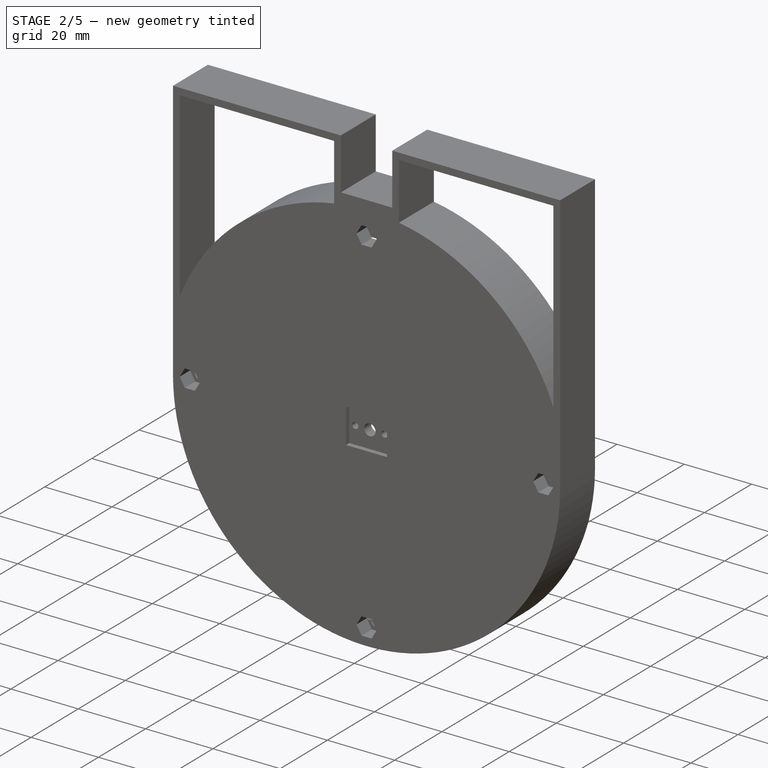
[diagram: stage 2 of 5 — iso view after this stage's code; geometry added in this stage tinted green]
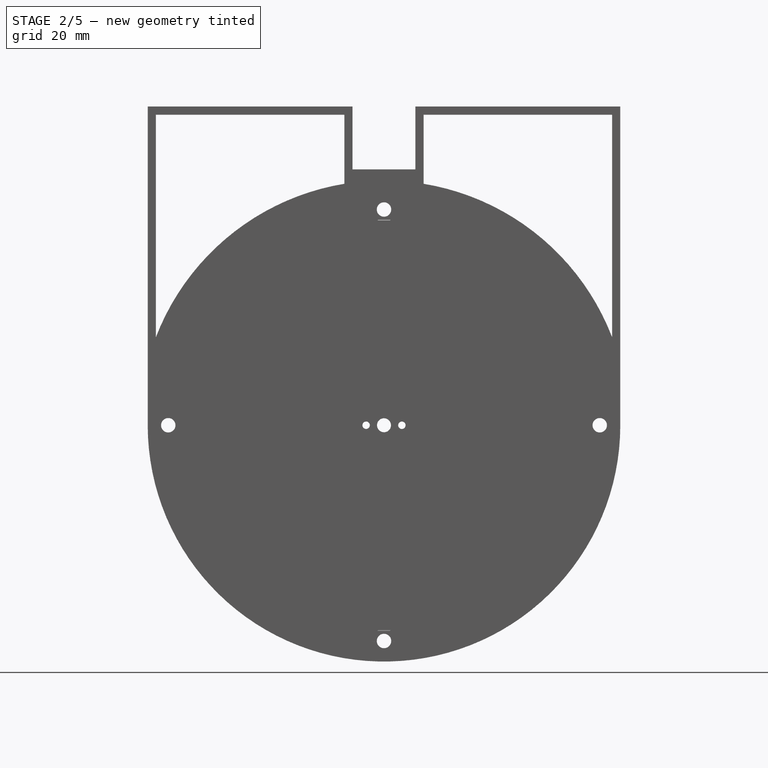
[diagram: stage 2 of 5 — front view after this stage's code; geometry added in this stage tinted green]
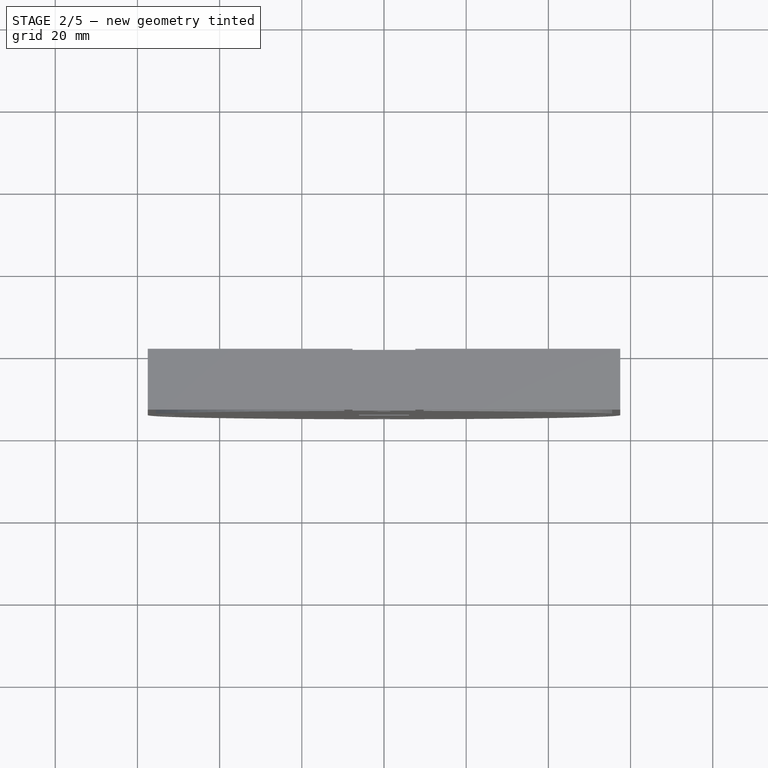
[diagram: stage 2 of 5 — top view after this stage's code; geometry added in this stage tinted green]
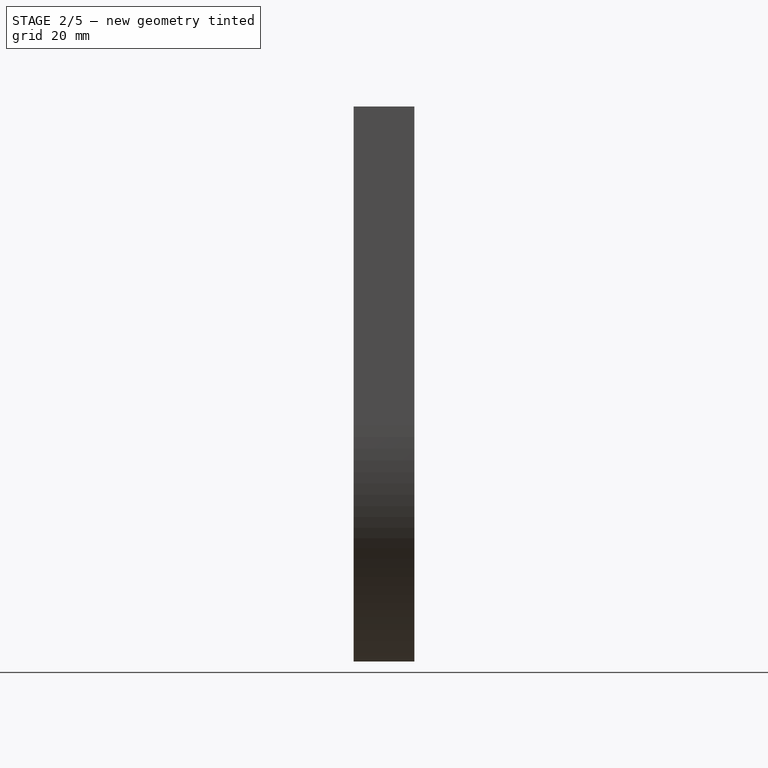
[diagram: stage 2 of 5 — right view after this stage's code; geometry added in this stage tinted green]
FEATURE [Sketcher::SketchObject] Sketch105
  ArcFitTolerance = 1e-06
  AttachmentSupport = -> [DatumPlane011]
  FullyConstrained = true
  MakeInternals = false
  MapMode = 5
  Placement = pos=(0,-10,6.7e-15) rot=(1,0,0;1.5708rad)
  sketch-geometry (4):
    g0: Circle [constr] CenterX=0 CenterY=0 CenterZ=0 NormalX=0 NormalY=0 NormalZ=1 AngleXU=0 Radius=52.7
    g1: Circle [constr] CenterX=0 CenterY=0 CenterZ=0 NormalX=0 NormalY=0 NormalZ=1 AngleXU=0 Radius=55
    g2: Circle CenterX=0 CenterY=0 CenterZ=0 NormalX=0 NormalY=0 NormalZ=1 AngleXU=0 Radius=57.5
    g3: Circle CenterX=0 CenterY=0 CenterZ=0 NormalX=0 NormalY=0 NormalZ=1 AngleXU=0 Radius=50.2
  constraints (8):
    c: Diameter(g0) = 105.4
    c: Coincident(g0,g-1)
    c: Diameter(g1) = 110
    c: Coincident(g1,g0)
    c: Diameter(g2) = 115
    c: Coincident(g2,g0)
    c: Diameter(g3) = 100.4
    c: Coincident(g3,g0)
FEATURE [PartDesign::Pad] Pad037
  Direction = (0,-1,2e-16)
  Length = 10
  Length2 = 10
  Placement = pos=(0,-10,6.7e-15) rot=(1,0,0;1.5708rad)
  Profile = -> Sketch105
  ReferenceAxis = -> Sketch105 [N_Axis]
  Refine = true
  Reversed = true
  Suppressed = false
  Type = 0
FEATURE [Sketcher::SketchObject] Sketch106
  ArcFitTolerance = 1e-06
  AttachmentSupport = -> [DatumPlane011]
  FullyConstrained = true
  MakeInternals = false
  MapMode = 5
  Placement = pos=(0,-10,6.7e-15) rot=(1,0,0;1.5708rad)
  sketch-geometry (2):
    g0: Circle CenterX=0 CenterY=0 CenterZ=0 NormalX=0 NormalY=0 NormalZ=1 AngleXU=0 Radius=52.7
    g1: Circle CenterX=0 CenterY=0 CenterZ=0 NormalX=0 NormalY=0 NormalZ=1 AngleXU=0 Radius=57.5
  constraints (4):
    c: Diameter(g0) = 105.4
    c: Coincident(g0,g-1)
    c: Diameter(g1) = 115
    c: Coincident(g1,g0)
FEATURE [PartDesign::Pad] Pad038
  BaseFeature = -> Pad037
  Direction = (0,-1,2e-16)
  Length = 10
  Length2 = 10
  Placement = pos=(0,-10,6.7e-15) rot=(1,0,0;1.5708rad)
  Profile = -> Sketch106
  ReferenceAxis = -> Sketch106 [N_Axis]
  Refine = true
  Reversed = true
  Suppressed = false
  Type = 0
FEATURE [Sketcher::SketchObject] Sketch107
  ArcFitTolerance = 1e-06
  AttachmentSupport = -> [PolarPattern012]
  FullyConstrained = false
  MakeInternals = false
  MapMode = 5
  Placement = pos=(0,-10,2.2e-15) rot=(1,0,0;1.5708rad)
  sketch-geometry (2):
    g0: Circle CenterX=0 CenterY=0 CenterZ=0 NormalX=0 NormalY=0 NormalZ=1 AngleXU=0 Radius=45.6306
    g1: Circle CenterX=0 CenterY=0 CenterZ=0 NormalX=0 NormalY=0 NormalZ=1 AngleXU=0 Radius=55.2
  constraints (3):
    c: Coincident(g0,g-1)
    c: Diameter(g1) = 110.4
    c: Coincident(g1,g0)
FEATURE [PartDesign::Pocket] Pocket056
  BaseFeature = -> Pad038
  Direction = (0,1,-2e-16)
  Length = 3
  Length2 = 5
  Placement = pos=(0,-10,6.7e-15) rot=(1,0,0;1.5708rad)
  Profile = -> Sketch107
  ReferenceAxis = -> Sketch107 [N_Axis]
  Refine = true
  Suppressed = false
  Type = 1
FEATURE [Sketcher::SketchObject] Sketch108
  ArcFitTolerance = 1e-06
  AttachmentSupport = -> [Pocket056]
  ExternalGeometry = -> [Pocket056]
  FullyConstrained = false
  MakeInternals = false
  MapMode = 5
  Placement = pos=(0,-10,6.7e-15) rot=(1,0,0;1.5708rad)
  sketch-geometry (2):
    g0: Circle CenterX=0 CenterY=0 CenterZ=0 NormalX=0 NormalY=0 NormalZ=1 AngleXU=0 Radius=55.2
    g1: Circle CenterX=0 CenterY=0 CenterZ=0 NormalX=0 NormalY=0 NormalZ=1 AngleXU=0 Radius=52.7
  constraints (3):
    c: Coincident(g0,g-1)
    c: Diameter(g1) = 105.4
    c: Coincident(g1,g0)
FEATURE [PartDesign::Pad] Pad039
  BaseFeature = -> Pocket056
  Direction = (0,-1,2e-16)
  Length = 2.6
  Length2 = 10
  Placement = pos=(0,-10,6.7e-15) rot=(1,0,0;1.5708rad)
  Profile = -> Sketch108
  ReferenceAxis = -> Sketch108 [N_Axis]
  Refine = true
  Reversed = true
  Suppressed = false
  Type = 0
FEATURE [Sketcher::SketchObject] Sketch109
  ArcFitTolerance = 1e-06
  AttachmentSupport = -> [Pad039]
  ExternalGeometry = -> [Pad039]
  FullyConstrained = false
  MakeInternals = false
  MapMode = 5
  Placement = pos=(0,-10,6.7e-15) rot=(1,0,0;1.5708rad)
  sketch-geometry (2):
    g0: Circle CenterX=0 CenterY=0 CenterZ=0 NormalX=0 NormalY=0 NormalZ=1 AngleXU=0 Radius=52.7
    g1: Circle CenterX=0 CenterY=0 CenterZ=0 NormalX=0 NormalY=0 NormalZ=1 AngleXU=0 Radius=57.5
  constraints (2):
    c: Coincident(g0,g-1)
    c: Coincident(g1,g0)
FEATURE [PartDesign::Pad] Pad040
  BaseFeature = -> Pad039
  Direction = (0,-1,2e-16)
  Length = 0.4
  Length2 = 10
  Placement = pos=(0,-10,6.7e-15) rot=(1,0,0;1.5708rad)
  Profile = -> Sketch109
  ReferenceAxis = -> Sketch109 [N_Axis]
  Refine = true
  Suppressed = false
  Type = 0
FEATURE [Sketcher::SketchObject] Sketch110
  ArcFitTolerance = 1e-06
  AttachmentSupport = -> [Pad040]
  FullyConstrained = true
  MakeInternals = false
  MapMode = 5
  Placement = pos=(0,-10.4,6.9e-15) rot=(1,0,0;1.5708rad)
  sketch-geometry (4):
    g0: Circle CenterX=0 CenterY=-52.5 CenterZ=0 NormalX=0 NormalY=0 NormalZ=1 AngleXU=0 Radius=1.75
    g1: Circle CenterX=-52.5 CenterY=0 CenterZ=0 NormalX=0 NormalY=0 NormalZ=1 AngleXU=0 Radius=1.75
    g2: Circle CenterX=0 CenterY=52.5 CenterZ=0 NormalX=0 NormalY=0 NormalZ=1 AngleXU=0 Radius=1.75
    g3: Circle CenterX=52.5 CenterY=0 CenterZ=0 NormalX=0 NormalY=0 NormalZ=1 AngleXU=0 Radius=1.75
  constraints (12):
    c: PointOnObject(g0,g-2)
    c: Diameter(g0) = 3.5
    c: DistanceY(g0,g-1) = 52.5
    c: Diameter(g1) = 3.5
    c: PointOnObject(g1,g-1)
    c: Diameter(g2) = 3.5
    c: PointOnObject(g2,g-2)
    c: Diameter(g3) = 3.5
    c: PointOnObject(g3,g-1)
    c: DistanceX(g1,g-1) = 52.5
    c: DistanceX(g-1,g3) = 52.5
    c: DistanceY(g-1,g2) = 52.5
FEATURE [PartDesign::Pocket] Pocket057
  BaseFeature = -> Pad040
  Direction = (0,1,-2e-16)
  Length = 5
  Length2 = 5
  Placement = pos=(0,-10,6.7e-15) rot=(1,0,0;1.5708rad)
  Profile = -> Sketch110
  ReferenceAxis = -> Sketch110 [N_Axis]
  Refine = true
  Suppressed = false
  Type = 0
FEATURE [Sketcher::SketchObject] Sketch111
  ArcFitTolerance = 1e-06
  AttachmentSupport = -> [Pocket057]
  ExternalGeometry = -> [Pocket057]
  FullyConstrained = false
  MakeInternals = false
  MapMode = 5
  Placement = pos=(0,-10.4,6.9e-15) rot=(1,0,0;1.5708rad)
  sketch-geometry (29):
    g0: LineSegment StartX=3 StartY=-52.5 StartZ=0 EndX=1.5 EndY=-49.9019 EndZ=0
    g1: LineSegment StartX=1.5 StartY=-49.9019 StartZ=0 EndX=-1.5 EndY=-49.9019 EndZ=0
    g2: LineSegment StartX=-1.5 StartY=-49.9019 StartZ=0 EndX=-3 EndY=-52.5 EndZ=0
    g3: LineSegment StartX=-3 StartY=-52.5 StartZ=0 EndX=-1.5 EndY=-55.0981 EndZ=0
    g4: LineSegment StartX=-1.5 StartY=-55.0981 StartZ=0 EndX=1.5 EndY=-55.0981 EndZ=0
    g5: LineSegment StartX=1.5 StartY=-55.0981 StartZ=0 EndX=3 EndY=-52.5 EndZ=0
    g6: Circle [constr] CenterX=0 CenterY=-52.5 CenterZ=0 NormalX=0 NormalY=0 NormalZ=1 AngleXU=0 Radius=3
    g7: LineSegment StartX=3 StartY=52.5 StartZ=0 EndX=1.5 EndY=55.0981 EndZ=0
    g8: LineSegment StartX=1.5 StartY=55.0981 StartZ=0 EndX=-1.5 EndY=55.0981 EndZ=0
    g9: LineSegment StartX=-1.5 StartY=55.0981 StartZ=0 EndX=-3 EndY=52.5 EndZ=0
    g10: LineSegment StartX=-3 StartY=52.5 StartZ=0 EndX=-1.5 EndY=49.9019 EndZ=0
    g11: LineSegment StartX=-1.5 StartY=49.9019 StartZ=0 EndX=1.5 EndY=49.9019 EndZ=0
    g12: LineSegment StartX=1.5 StartY=49.9019 StartZ=0 EndX=3 EndY=52.5 EndZ=0
    g13: Circle [constr] CenterX=0 CenterY=52.5 CenterZ=0 NormalX=0 NormalY=0 NormalZ=1 AngleXU=0 Radius=3
    g14: LineSegment StartX=-49.5 StartY=1e-16 StartZ=0 EndX=-51 EndY=2.59808 EndZ=0
    g15: LineSegment StartX=-51 StartY=2.59808 StartZ=0 EndX=-54 EndY=2.59808 EndZ=0
    g16: LineSegment StartX=-54 StartY=2.59808 StartZ=0 EndX=-55.5 EndY=-1e-16 EndZ=0
    g17: LineSegment StartX=-55.5 StartY=-1e-16 StartZ=0 EndX=-54 EndY=-2.59808 EndZ=0
    g18: LineSegment StartX=-54 StartY=-2.59808 StartZ=0 EndX=-51 EndY=-2.59808 EndZ=0
    g19: LineSegment StartX=-51 StartY=-2.59808 StartZ=0 EndX=-49.5 EndY=1e-16 EndZ=0
    g20: Circle [constr] CenterX=-52.5 CenterY=0 CenterZ=0 NormalX=0 NormalY=0 NormalZ=1 AngleXU=0 Radius=3
    g21: LineSegment StartX=55.5 StartY=1e-16 StartZ=0 EndX=54 EndY=2.59808 EndZ=0
    g22: LineSegment StartX=54 StartY=2.59808 StartZ=0 EndX=51 EndY=2.59808 EndZ=0
    g23: LineSegment StartX=51 StartY=2.59808 StartZ=0 EndX=49.5 EndY=-1e-16 EndZ=0
    g24: LineSegment StartX=49.5 StartY=-1e-16 StartZ=0 EndX=51 EndY=-2.59808 EndZ=0
    g25: LineSegment StartX=51 StartY=-2.59808 StartZ=0 EndX=54 EndY=-2.59808 EndZ=0
    g26: LineSegment StartX=54 StartY=-2.59808 StartZ=0 EndX=55.5 EndY=1e-16 EndZ=0
    g27: Circle [constr] CenterX=52.5 CenterY=0 CenterZ=0 NormalX=0 NormalY=0 NormalZ=1 AngleXU=0 Radius=3
    g28: Circle CenterX=0 CenterY=0 CenterZ=0 NormalX=0 NormalY=0 NormalZ=1 AngleXU=0 Radius=57.5
  constraints (64):
    c: Coincident(g0,g1)
    c: Coincident(g1,g2)
    c: Coincident(g2,g3)
    c: Coincident(g3,g4)
    c: Coincident(g4,g5)
    c: Coincident(g5,g0)
    c: Equal(g0, g1-g5) x5
    c: PointOnObject(g0,g6)
    c: PointOnObject(g1,g6)
    c: PointOnObject(g2,g6)
    c: PointOnObject(g3,g6)
    c: PointOnObject(g4,g6)
    c: PointOnObject(g5,g6)
    c: PointOnObject(g6,g-2)
    c: Diameter(g6) = 6
    c: Horizontal(g4)
    c: Coincident(g7,g8)
    c: Coincident(g8,g9)
    c: Coincident(g9,g10)
    c: Coincident(g10,g11)
    c: Coincident(g11,g12)
    c: Coincident(g12,g7)
    c: Equal(g7, g8-g12) x5
    c: PointOnObject(g7,g13)
    c: PointOnObject(g8,g13)
    c: PointOnObject(g9,g13)
    c: PointOnObject(g10,g13)
    c: PointOnObject(g11,g13)
    c: PointOnObject(g12,g13)
    c: Radius(g13) = 3
    c: PointOnObject(g13,g-2)
    c: Coincident(g14,g15)
    c: Coincident(g15,g16)
    c: Coincident(g16,g17)
    c: Coincident(g17,g18)
    c: Coincident(g18,g19)
    c: Coincident(g19,g14)
    c: Equal(g14, g15-g19) x5
    c: PointOnObject(g14,g20)
    c: PointOnObject(g15,g20)
    c: PointOnObject(g16,g20)
    c: PointOnObject(g17,g20)
    c: PointOnObject(g18,g20)
    c: PointOnObject(g19,g20)
    c: Radius(g20) = 3
    c: PointOnObject(g20,g-1)
    c: PointOnObject(g19,g-1)
    c: Coincident(g21,g22)
    c: Coincident(g22,g23)
    c: Coincident(g23,g24)
    c: Coincident(g24,g25)
    c: Coincident(g25,g26)
    c: Coincident(g26,g21)
    c: Equal(g21, g22-g26) x5
    c: PointOnObject(g21,g27)
    c: PointOnObject(g22,g27)
    c: PointOnObject(g23,g27)
    c: PointOnObject(g24,g27)
    c: PointOnObject(g25,g27)
    c: PointOnObject(g26,g27)
    c: Radius(g27) = 3
    c: PointOnObject(g27,g-1)
    c: Horizontal(g25)
    c: Coincident(g28,g-1)
FEATURE [PartDesign::Pad] Pad041
  BaseFeature = -> Pocket057
  Direction = (0,-1,2e-16)
  Length = 4.4
  Length2 = 10
  Placement = pos=(0,-10,6.7e-15) rot=(1,0,0;1.5708rad)
  Profile = -> Sketch111
  ReferenceAxis = -> Sketch111 [N_Axis]
  Refine = true
  Suppressed = false
  Type = 0
FEATURE [Sketcher::SketchObject] Sketch112
  ArcFitTolerance = 1e-06
  AttachmentSupport = -> [Pad041]
  FullyConstrained = true
  MakeInternals = false
  MapMode = 5
  Placement = pos=(0,-14.8,7.3e-15) rot=(1,0,0;1.5708rad)
  sketch-geometry (5):
    g0: LineSegment StartX=6.09 StartY=5.145 StartZ=0 EndX=-6.09 EndY=5.145 EndZ=0
    g1: LineSegment StartX=-6.09 StartY=5.145 StartZ=0 EndX=-6.09 EndY=-5.145 EndZ=0
    g2: LineSegment StartX=-6.09 StartY=-5.145 StartZ=0 EndX=6.09 EndY=-5.145 EndZ=0
    g3: LineSegment StartX=6.09 StartY=-5.145 StartZ=0 EndX=6.09 EndY=5.145 EndZ=0
    g4: GeomPoint [constr] X=0 Y=0 Z=0
  constraints (12):
    c: Coincident(g0,g1)
    c: Coincident(g1,g2)
    c: Coincident(g2,g3)
    c: Coincident(g3,g0)
    c: Horizontal(g0)
    c: Horizontal(g2)
    c: Vertical(g1)
    c: Vertical(g3)
    c: Symmetric(g2,g0,g4)
    c: Distance(g2,g2) = 12.18
    c: Distance(g3,g3) = 10.29
    c: Coincident(g4,g-1)
FEATURE [PartDesign::Pocket] Pocket058
  BaseFeature = -> Pad041
  Direction = (0,1,-2e-16)
  Length = 1.4
  Length2 = 5
  Placement = pos=(0,-10,6.7e-15) rot=(1,0,0;1.5708rad)
  Profile = -> Sketch112
  ReferenceAxis = -> Sketch112 [N_Axis]
  Refine = true
  Suppressed = false
  Type = 0
FEATURE [Sketcher::SketchObject] Sketch113
  ArcFitTolerance = 1e-06
  AttachmentSupport = -> [Pocket058]
  FullyConstrained = true
  MakeInternals = false
  MapMode = 5
  Placement = pos=(0,-14.8,7.8e-15) rot=(1,0,0;1.5708rad)
  sketch-geometry (1):
    g0: Circle CenterX=0 CenterY=0 CenterZ=0 NormalX=0 NormalY=0 NormalZ=1 AngleXU=0 Radius=1.7
  constraints (2):
    c: Coincident(g0,g-1)
    c: Diameter(g0) = 3.4
FEATURE [PartDesign::Pocket] Pocket059
  BaseFeature = -> Pocket058
  Direction = (0,1,-2e-16)
  Length = 5
  Length2 = 5
  Placement = pos=(0,-10,6.7e-15) rot=(1,0,0;1.5708rad)
  Profile = -> Sketch113
  ReferenceAxis = -> Sketch113 [N_Axis]
  Refine = true
  Suppressed = false
  Type = 1
FEATURE [Sketcher::SketchObject] Sketch114
  ArcFitTolerance = 1e-06
  AttachmentSupport = -> [Pocket059]
  FullyConstrained = true
  MakeInternals = false
  MapMode = 5
  Placement = pos=(0,-14.8,8.3e-15) rot=(1,0,0;1.5708rad)
  sketch-geometry (4):
    g0: Circle CenterX=-4.35 CenterY=0 CenterZ=0 NormalX=0 NormalY=0 NormalZ=1 AngleXU=0 Radius=0.9
    g1: Circle CenterX=4.35 CenterY=0 CenterZ=0 NormalX=0 NormalY=0 NormalZ=1 AngleXU=0 Radius=0.9
    g2: GeomPoint [constr] X=-5.25 Y=0 Z=0
    g3: GeomPoint [constr] X=5.25 Y=0 Z=0
  constraints (9):
    c: PointOnObject(g0,g-1)
    c: Diameter(g0) = 1.8
    c: PointOnObject(g2,g0)
    c: PointOnObject(g3,g1)
    c: PointOnObject(g3,g-1)
    c: PointOnObject(g2,g-1)
    c: DistanceX(g2,g3) = 10.5
    c: Symmetric(g0,g1,g-1)
    c: Equal(g1,g0)
FEATURE [PartDesign::Pocket] Pocket060
  BaseFeature = -> Pocket059
  Direction = (0,1,-2e-16)
  Length = 5
  Length2 = 5
  Placement = pos=(0,-10,6.7e-15) rot=(1,0,0;1.5708rad)
  Profile = -> Sketch114
  ReferenceAxis = -> Sketch114 [N_Axis]
  Refine = true
  Suppressed = false
  Type = 1
FEATURE [PartDesign::Body] Body006  label="Pinion_0_2865"
  AllowCompound = false
  Group = -> [Sketch102,Pad036,PolarPattern011,DatumPlane010,Sketch103,Pocket054,Sketch104,Pocket055,PolarPattern012,ReferencePad012,Sketch117,ShapeString006,Pocket062]
  Origin = -> Origin006
  Placement = pos=(-1.52,1.78e-14,80) rot=(0,-0.707107,-0.707107;3.14159rad)
  Tip = -> Pocket062
FEATURE [PartDesign::ShapeBinder] CopyPolarPattern008
  Placement = pos=(0,0,0) rot=(1,0,0;1.5708rad)
  TraceSupport = false
FEATURE [PartDesign::Plane] DatumPlane013
  AttachmentSupport = -> [CopyPolarPattern008]
  Length = 257.4
  MapMode = 5
  Placement = pos=(0,-10,6.7e-15) rot=(1,0,0;1.5708rad)
  ResizeMode = 0
  Width = 257.4
FEATURE [Part::Part2DObjectPython] ShapeString007  # Draft 2D object (typed FeaturePython)
  FontFile = <userpath>/Documents/DV_Projects/8_Cycloidal_gearbox_paper/0_testbed/v0/V 0_1339/OpenSans-Regular.ttf
  Fuse = false
  Justification = 7
  JustificationReference = 1
  KeepLeftMargin = false
  MakeFace = true
  ObliqueAngle = 0
  Placement = pos=(-18.3,-51.06,0) rot=(0,0,-1;0.314159rad)
  ScaleToSize = true
  Size = 3
  String = 0.3373
  Tracking = 0
FEATURE [Sketcher::SketchObject] Sketch118
  ArcFitTolerance = 1e-06
  AttachmentSupport = -> [XZ_Plane007]
  FullyConstrained = false
  MakeInternals = false
  MapMode = 5
  Placement = pos=(0,0,0) rot=(1,0,0;1.5708rad)
  sketch-geometry (5):
    g0: GeomPoint X=0 Y=0 Z=0
    g1: ArcOfCircle CenterX=0 CenterY=0 CenterZ=0 NormalX=0 NormalY=0 NormalZ=1 AngleXU=0 Radius=50 StartAngle=0.063883 EndAngle=6.22251
    g2: ArcOfCircle CenterX=49.9999 CenterY=0.0801472 CenterZ=0 NormalX=0 NormalY=0 NormalZ=1 AngleXU=0 Radius=3.1135 StartAngle=1.60354 EndAngle=4.68285
    g3: Circle CenterX=0 CenterY=0 CenterZ=0 NormalX=0 NormalY=0 NormalZ=1 AngleXU=0 Radius=55
    g4: Circle [constr] CenterX=-49.9999 CenterY=-0.118804 CenterZ=0 NormalX=0 NormalY=0 NormalZ=1 AngleXU=0 Radius=3.3135
  constraints (12):
    c: PointOnObject(g0,g-1)
    c: Diameter(g1) = 100
    c: Coincident(g1,g0)
    c: DistanceX(g0,g-1) = 0
    c: PointOnObject(g2,g1)
    c: Diameter(g2) = 6.227
    c: Coincident(g1,g2)
    c: Coincident(g1,g2)
    c: Diameter(g3) = 110
    c: Coincident(g3,g0)
    c: Diameter(g4) = 6.627
    c: PointOnObject(g4,g1)
FEATURE [PartDesign::Pad] Pad043  label="HERE m(1-x)-rc004"
  Direction = (0,-1,2e-16)
  Length = 10
  Length2 = 10
  Placement = pos=(0,0,0) rot=(1,0,0;1.5708rad)
  Profile = -> Sketch118
  ReferenceAxis = -> Sketch118 [N_Axis]
  Refine = true
  Suppressed = false
  Type = 0
FEATURE [PartDesign::PolarPattern] PolarPattern013
  Angle = 360
  Axis = -> Sketch118 [N_Axis]
  BaseFeature = -> Pad043
  Mode = 0
  Occurrences = 10
  Offset = 120
  Originals = -> [Pad043]
  Placement = pos=(0,0,0) rot=(1,0,0;1.5708rad)
  Refine = true
  Suppressed = false
  TransformMode = 0
FEATURE [PartDesign::Plane] DatumPlane012
  AttachmentSupport = -> [PolarPattern013]
  Length = 132
  MapMode = 5
  Placement = pos=(0,-10,2.2e-15) rot=(1,0,0;1.5708rad)
  ResizeMode = 0
  Width = 132
FEATURE [Sketcher::SketchObject] Sketch119
  ArcFitTolerance = 1e-06
  AttachmentSupport = -> [DatumPlane012]
  ExternalGeometry = -> [PolarPattern013]
  FullyConstrained = true
  MakeInternals = false
  MapMode = 5
  Placement = pos=(0,-10,2.2e-15) rot=(1,0,0;1.5708rad)
  sketch-geometry (6):
    g0: Circle CenterX=0 CenterY=0 CenterZ=0 NormalX=0 NormalY=0 NormalZ=1 AngleXU=0 Radius=55
    g1: Circle [constr] CenterX=0 CenterY=0 CenterZ=0 NormalX=0 NormalY=0 NormalZ=1 AngleXU=0 Radius=50
    g2: GeomPoint X=50 Y=0 Z=0
    g3: LineSegment [constr] StartX=50 StartY=0 StartZ=0 EndX=55 EndY=0 EndZ=0
    g4: GeomPoint [constr] X=52.5 Y=0 Z=0
    g5: Circle CenterX=0 CenterY=0 CenterZ=0 NormalX=0 NormalY=0 NormalZ=1 AngleXU=0 Radius=52.5
  constraints (11):
    c: Coincident(g0,g-1)
    c: PointOnObject(g-3,g0)
    c: Coincident(g1,g0)
    c: PointOnObject(g-4,g1)
    c: PointOnObject(g2,g1)
    c: Coincident(g3,g2)
    c: Coincident(g3,g-3)
    c: Horizontal(g3)
    c: Symmetric(g3,g3,g4)
    c: Coincident(g5,g0)
    c: PointOnObject(g4,g5)
FEATURE [PartDesign::Pocket] Pocket063
  BaseFeature = -> PolarPattern013
  Direction = (0,1,-2e-16)
  Length = 3
  Length2 = 5
  Placement = pos=(0,0,0) rot=(1,0,0;1.5708rad)
  Profile = -> Sketch119
  ReferenceAxis = -> Sketch119 [N_Axis]
  Refine = true
  Suppressed = false
  Type = 0
FEATURE [Sketcher::SketchObject] Sketch120
  ArcFitTolerance = 1e-06
  AttachmentSupport = -> [DatumPlane012]
  ExternalGeometry = -> [Pocket063]
  FullyConstrained = true
  MakeInternals = false
  MapMode = 5
  Placement = pos=(0,-10,2.2e-15) rot=(1,0,0;1.5708rad)
  sketch-geometry (1):
    g0: Circle CenterX=52.5 CenterY=0 CenterZ=0 NormalX=0 NormalY=0 NormalZ=1 AngleXU=0 Radius=1.75
  constraints (3):
    c: Diameter(g0) = 3.5
    c: PointOnObject(g0,g-1)
    c: PointOnObject(g0,g-3)
FEATURE [PartDesign::Pocket] Pocket064
  BaseFeature = -> Pocket063
  Direction = (0,1,-2e-16)
  Length = 5
  Length2 = 5
  Midplane = true
  Placement = pos=(0,0,0) rot=(1,0,0;1.5708rad)
  Profile = -> Sketch120
  ReferenceAxis = -> Sketch120 [N_Axis]
  Refine = true
  Suppressed = false
  Type = 1
FEATURE [PartDesign::PolarPattern] PolarPattern014
  Angle = 360
  Axis = -> Sketch120 [N_Axis]
  BaseFeature = -> Pocket064
  Mode = 0
  Occurrences = 4
  Offset = 120
  Originals = -> [Pocket064]
  Placement = pos=(0,0,0) rot=(1,0,0;1.5708rad)
  Refine = true
  Suppressed = false
  TransformMode = 0
FEATURE [Sketcher::SketchObject] Sketch121
  ArcFitTolerance = 1e-06
  AttachmentSupport = -> [DatumPlane013]
  FullyConstrained = true
  MakeInternals = false
  MapMode = 5
  Placement = pos=(0,-10,6.7e-15) rot=(1,0,0;1.5708rad)
  sketch-geometry (4):
    g0: Circle [constr] CenterX=0 CenterY=0 CenterZ=0 NormalX=0 NormalY=0 NormalZ=1 AngleXU=0 Radius=52.7
    g1: Circle [constr] CenterX=0 CenterY=0 CenterZ=0 NormalX=0 NormalY=0 NormalZ=1 AngleXU=0 Radius=55
    g2: Circle CenterX=0 CenterY=0 CenterZ=0 NormalX=0 NormalY=0 NormalZ=1 AngleXU=0 Radius=57.5
    g3: Circle CenterX=0 CenterY=0 CenterZ=0 NormalX=0 NormalY=0 NormalZ=1 AngleXU=0 Radius=50.2
  constraints (8):
    c: Diameter(g0) = 105.4
    c: Coincident(g0,g-1)
    c: Diameter(g1) = 110
    c: Coincident(g1,g0)
    c: Diameter(g2) = 115
    c: Coincident(g2,g0)
    c: Diameter(g3) = 100.4
    c: Coincident(g3,g0)
FEATURE [PartDesign::Pad] Pad044
  Direction = (0,-1,2e-16)
  Length = 10
  Length2 = 10
  Placement = pos=(0,-10,6.7e-15) rot=(1,0,0;1.5708rad)
  Profile = -> Sketch121
  ReferenceAxis = -> Sketch121 [N_Axis]
  Refine = true
  Reversed = true
  Suppressed = false
  Type = 0
FEATURE [Sketcher::SketchObject] Sketch122
  ArcFitTolerance = 1e-06
  AttachmentSupport = -> [DatumPlane013]
  FullyConstrained = true
  MakeInternals = false
  MapMode = 5
  Placement = pos=(0,-10,6.7e-15) rot=(1,0,0;1.5708rad)
  sketch-geometry (2):
    g0: Circle CenterX=0 CenterY=0 CenterZ=0 NormalX=0 NormalY=0 NormalZ=1 AngleXU=0 Radius=52.7
    g1: Circle CenterX=0 CenterY=0 CenterZ=0 NormalX=0 NormalY=0 NormalZ=1 AngleXU=0 Radius=57.5
  constraints (4):
    c: Diameter(g0) = 105.4
    c: Coincident(g0,g-1)
    c: Diameter(g1) = 115
    c: Coincident(g1,g0)
FEATURE [PartDesign::Pad] Pad045
  BaseFeature = -> Pad044
  Direction = (0,-1,2e-16)
  Length = 10
  Length2 = 10
  Placement = pos=(0,-10,6.7e-15) rot=(1,0,0;1.5708rad)
  Profile = -> Sketch122
  ReferenceAxis = -> Sketch122 [N_Axis]
  Refine = true
  Reversed = true
  Suppressed = false
  Type = 0
FEATURE [Sketcher::SketchObject] Sketch123
  ArcFitTolerance = 1e-06
  AttachmentSupport = -> [PolarPattern014]
  FullyConstrained = false
  MakeInternals = false
  MapMode = 5
  Placement = pos=(0,-10,2.2e-15) rot=(1,0,0;1.5708rad)
  sketch-geometry (2):
    g0: Circle CenterX=0 CenterY=0 CenterZ=0 NormalX=0 NormalY=0 NormalZ=1 AngleXU=0 Radius=45.6306
    g1: Circle CenterX=0 CenterY=0 CenterZ=0 NormalX=0 NormalY=0 NormalZ=1 AngleXU=0 Radius=55.2
  constraints (3):
    c: Coincident(g0,g-1)
    c: Diameter(g1) = 110.4
    c: Coincident(g1,g0)
FEATURE [PartDesign::Pocket] Pocket065
  BaseFeature = -> Pad045
  Direction = (0,1,-2e-16)
  Length = 3
  Length2 = 5
  Placement = pos=(0,-10,6.7e-15) rot=(1,0,0;1.5708rad)
  Profile = -> Sketch123
  ReferenceAxis = -> Sketch123 [N_Axis]
  Refine = true
  Suppressed = false
  Type = 1
FEATURE [Sketcher::SketchObject] Sketch124
  ArcFitTolerance = 1e-06
  AttachmentSupport = -> [Pocket065]
  ExternalGeometry = -> [Pocket065]
  FullyConstrained = false
  MakeInternals = false
  MapMode = 5
  Placement = pos=(0,-10,6.7e-15) rot=(1,0,0;1.5708rad)
  sketch-geometry (2):
    g0: Circle CenterX=0 CenterY=0 CenterZ=0 NormalX=0 NormalY=0 NormalZ=1 AngleXU=0 Radius=55.2
    g1: Circle CenterX=0 CenterY=0 CenterZ=0 NormalX=0 NormalY=0 NormalZ=1 AngleXU=0 Radius=52.7
  constraints (3):
    c: Coincident(g0,g-1)
    c: Diameter(g1) = 105.4
    c: Coincident(g1,g0)
FEATURE [PartDesign::Pad] Pad046
  BaseFeature = -> Pocket065
  Direction = (0,-1,2e-16)
  Length = 2.6
  Length2 = 10
  Placement = pos=(0,-10,6.7e-15) rot=(1,0,0;1.5708rad)
  Profile = -> Sketch124
  ReferenceAxis = -> Sketch124 [N_Axis]
  Refine = true
  Reversed = true
  Suppressed = false
  Type = 0
FEATURE [Sketcher::SketchObject] Sketch125
  ArcFitTolerance = 1e-06
  AttachmentSupport = -> [Pad046]
  ExternalGeometry = -> [Pad046]
  FullyConstrained = false
  MakeInternals = false
  MapMode = 5
  Placement = pos=(0,-10,6.7e-15) rot=(1,0,0;1.5708rad)
  sketch-geometry (2):
    g0: Circle CenterX=0 CenterY=0 CenterZ=0 NormalX=0 NormalY=0 NormalZ=1 AngleXU=0 Radius=52.7
    g1: Circle CenterX=0 CenterY=0 CenterZ=0 NormalX=0 NormalY=0 NormalZ=1 AngleXU=0 Radius=57.5
  constraints (2):
    c: Coincident(g0,g-1)
    c: Coincident(g1,g0)
FEATURE [PartDesign::Pad] Pad047
  BaseFeature = -> Pad046
  Direction = (0,-1,2e-16)
  Length = 0.4
  Length2 = 10
  Placement = pos=(0,-10,6.7e-15) rot=(1,0,0;1.5708rad)
  Profile = -> Sketch125
  ReferenceAxis = -> Sketch125 [N_Axis]
  Refine = true
  Suppressed = false
  Type = 0
FEATURE [Sketcher::SketchObject] Sketch126
  ArcFitTolerance = 1e-06
  AttachmentSupport = -> [Pad047]
  FullyConstrained = true
  MakeInternals = false
  MapMode = 5
  Placement = pos=(0,-10.4,6.9e-15) rot=(1,0,0;1.5708rad)
  sketch-geometry (4):
    g0: Circle CenterX=0 CenterY=-52.5 CenterZ=0 NormalX=0 NormalY=0 NormalZ=1 AngleXU=0 Radius=1.75
    g1: Circle CenterX=-52.5 CenterY=0 CenterZ=0 NormalX=0 NormalY=0 NormalZ=1 AngleXU=0 Radius=1.75
    g2: Circle CenterX=0 CenterY=52.5 CenterZ=0 NormalX=0 NormalY=0 NormalZ=1 AngleXU=0 Radius=1.75
    g3: Circle CenterX=52.5 CenterY=0 CenterZ=0 NormalX=0 NormalY=0 NormalZ=1 AngleXU=0 Radius=1.75
  constraints (12):
    c: PointOnObject(g0,g-2)
    c: Diameter(g0) = 3.5
    c: DistanceY(g0,g-1) = 52.5
    c: Diameter(g1) = 3.5
    c: PointOnObject(g1,g-1)
    c: Diameter(g2) = 3.5
    c: PointOnObject(g2,g-2)
    c: Diameter(g3) = 3.5
    c: PointOnObject(g3,g-1)
    c: DistanceX(g1,g-1) = 52.5
    c: DistanceX(g-1,g3) = 52.5
    c: DistanceY(g-1,g2) = 52.5
FEATURE [PartDesign::Pocket] Pocket066
  BaseFeature = -> Pad047
  Direction = (0,1,-2e-16)
  Length = 5
  Length2 = 5
  Placement = pos=(0,-10,6.7e-15) rot=(1,0,0;1.5708rad)
  Profile = -> Sketch126
  ReferenceAxis = -> Sketch126 [N_Axis]
  Refine = true
  Suppressed = false
  Type = 0
FEATURE [Sketcher::SketchObject] Sketch127
  ArcFitTolerance = 1e-06
  AttachmentSupport = -> [Pocket066]
  ExternalGeometry = -> [Pocket066]
  FullyConstrained = false
  MakeInternals = false
  MapMode = 5
  Placement = pos=(0,-10.4,6.9e-15) rot=(1,0,0;1.5708rad)
  sketch-geometry (29):
    g0: LineSegment StartX=3 StartY=-52.5 StartZ=0 EndX=1.5 EndY=-49.9019 EndZ=0
    g1: LineSegment StartX=1.5 StartY=-49.9019 StartZ=0 EndX=-1.5 EndY=-49.9019 EndZ=0
    g2: LineSegment StartX=-1.5 StartY=-49.9019 StartZ=0 EndX=-3 EndY=-52.5 EndZ=0
    g3: LineSegment StartX=-3 StartY=-52.5 StartZ=0 EndX=-1.5 EndY=-55.0981 EndZ=0
    g4: LineSegment StartX=-1.5 StartY=-55.0981 StartZ=0 EndX=1.5 EndY=-55.0981 EndZ=0
    g5: LineSegment StartX=1.5 StartY=-55.0981 StartZ=0 EndX=3 EndY=-52.5 EndZ=0
    g6: Circle [constr] CenterX=0 CenterY=-52.5 CenterZ=0 NormalX=0 NormalY=0 NormalZ=1 AngleXU=0 Radius=3
    g7: LineSegment StartX=3 StartY=52.5 StartZ=0 EndX=1.5 EndY=55.0981 EndZ=0
    g8: LineSegment StartX=1.5 StartY=55.0981 StartZ=0 EndX=-1.5 EndY=55.0981 EndZ=0
    g9: LineSegment StartX=-1.5 StartY=55.0981 StartZ=0 EndX=-3 EndY=52.5 EndZ=0
    g10: LineSegment StartX=-3 StartY=52.5 StartZ=0 EndX=-1.5 EndY=49.9019 EndZ=0
    g11: LineSegment StartX=-1.5 StartY=49.9019 StartZ=0 EndX=1.5 EndY=49.9019 EndZ=0
    g12: LineSegment StartX=1.5 StartY=49.9019 StartZ=0 EndX=3 EndY=52.5 EndZ=0
    g13: Circle [constr] CenterX=0 CenterY=52.5 CenterZ=0 NormalX=0 NormalY=0 NormalZ=1 AngleXU=0 Radius=3
    g14: LineSegment StartX=-49.5 StartY=1e-16 StartZ=0 EndX=-51 EndY=2.59808 EndZ=0
    g15: LineSegment StartX=-51 StartY=2.59808 StartZ=0 EndX=-54 EndY=2.59808 EndZ=0
    g16: LineSegment StartX=-54 StartY=2.59808 StartZ=0 EndX=-55.5 EndY=-1e-16 EndZ=0
    g17: LineSegment StartX=-55.5 StartY=-1e-16 StartZ=0 EndX=-54 EndY=-2.59808 EndZ=0
    g18: LineSegment StartX=-54 StartY=-2.59808 StartZ=0 EndX=-51 EndY=-2.59808 EndZ=0
    g19: LineSegment StartX=-51 StartY=-2.59808 StartZ=0 EndX=-49.5 EndY=1e-16 EndZ=0
    g20: Circle [constr] CenterX=-52.5 CenterY=0 CenterZ=0 NormalX=0 NormalY=0 NormalZ=1 AngleXU=0 Radius=3
    g21: LineSegment StartX=55.5 StartY=1e-16 StartZ=0 EndX=54 EndY=2.59808 EndZ=0
    g22: LineSegment StartX=54 StartY=2.59808 StartZ=0 EndX=51 EndY=2.59808 EndZ=0
    g23: LineSegment StartX=51 StartY=2.59808 StartZ=0 EndX=49.5 EndY=-1e-16 EndZ=0
    g24: LineSegment StartX=49.5 StartY=-1e-16 StartZ=0 EndX=51 EndY=-2.59808 EndZ=0
    g25: LineSegment StartX=51 StartY=-2.59808 StartZ=0 EndX=54 EndY=-2.59808 EndZ=0
    g26: LineSegment StartX=54 StartY=-2.59808 StartZ=0 EndX=55.5 EndY=1e-16 EndZ=0
    g27: Circle [constr] CenterX=52.5 CenterY=0 CenterZ=0 NormalX=0 NormalY=0 NormalZ=1 AngleXU=0 Radius=3
    g28: Circle CenterX=0 CenterY=0 CenterZ=0 NormalX=0 NormalY=0 NormalZ=1 AngleXU=0 Radius=57.5
  constraints (64):
    c: Coincident(g0,g1)
    c: Coincident(g1,g2)
    c: Coincident(g2,g3)
    c: Coincident(g3,g4)
    c: Coincident(g4,g5)
    c: Coincident(g5,g0)
    c: Equal(g0, g1-g5) x5
    c: PointOnObject(g0,g6)
    c: PointOnObject(g1,g6)
    c: PointOnObject(g2,g6)
    c: PointOnObject(g3,g6)
    c: PointOnObject(g4,g6)
    c: PointOnObject(g5,g6)
    c: PointOnObject(g6,g-2)
    c: Diameter(g6) = 6
    c: Horizontal(g4)
    c: Coincident(g7,g8)
    c: Coincident(g8,g9)
    c: Coincident(g9,g10)
    c: Coincident(g10,g11)
    c: Coincident(g11,g12)
    c: Coincident(g12,g7)
    c: Equal(g7, g8-g12) x5
    c: PointOnObject(g7,g13)
    c: PointOnObject(g8,g13)
    c: PointOnObject(g9,g13)
    c: PointOnObject(g10,g13)
    c: PointOnObject(g11,g13)
    c: PointOnObject(g12,g13)
    c: Radius(g13) = 3
    c: PointOnObject(g13,g-2)
    c: Coincident(g14,g15)
    c: Coincident(g15,g16)
    c: Coincident(g16,g17)
    c: Coincident(g17,g18)
    c: Coincident(g18,g19)
    c: Coincident(g19,g14)
    c: Equal(g14, g15-g19) x5
    c: PointOnObject(g14,g20)
    c: PointOnObject(g15,g20)
    c: PointOnObject(g16,g20)
    c: PointOnObject(g17,g20)
    c: PointOnObject(g18,g20)
    c: PointOnObject(g19,g20)
    c: Radius(g20) = 3
    c: PointOnObject(g20,g-1)
    c: PointOnObject(g19,g-1)
    c: Coincident(g21,g22)
    c: Coincident(g22,g23)
    c: Coincident(g23,g24)
    c: Coincident(g24,g25)
    c: Coincident(g25,g26)
    c: Coincident(g26,g21)
    c: Equal(g21, g22-g26) x5
    c: PointOnObject(g21,g27)
    c: PointOnObject(g22,g27)
    c: PointOnObject(g23,g27)
    c: PointOnObject(g24,g27)
    c: PointOnObject(g25,g27)
    c: PointOnObject(g26,g27)
    c: Radius(g27) = 3
    c: PointOnObject(g27,g-1)
    c: Horizontal(g25)
    c: Coincident(g28,g-1)
FEATURE [PartDesign::Pad] Pad048
  BaseFeature = -> Pocket066
  Direction = (0,-1,2e-16)
  Length = 4.4
  Length2 = 10
  Placement = pos=(0,-10,6.7e-15) rot=(1,0,0;1.5708rad)
  Profile = -> Sketch127
  ReferenceAxis = -> Sketch127 [N_Axis]
  Refine = true
  Suppressed = false
  Type = 0
FEATURE [Sketcher::SketchObject] Sketch128
  ArcFitTolerance = 1e-06
  AttachmentSupport = -> [Pad048]
  FullyConstrained = true
  MakeInternals = false
  MapMode = 5
  Placement = pos=(0,-14.8,7.3e-15) rot=(1,0,0;1.5708rad)
  sketch-geometry (5):
    g0: LineSegment StartX=6.09 StartY=5.145 StartZ=0 EndX=-6.09 EndY=5.145 EndZ=0
    g1: LineSegment StartX=-6.09 StartY=5.145 StartZ=0 EndX=-6.09 EndY=-5.145 EndZ=0
    g2: LineSegment StartX=-6.09 StartY=-5.145 StartZ=0 EndX=6.09 EndY=-5.145 EndZ=0
    g3: LineSegment StartX=6.09 StartY=-5.145 StartZ=0 EndX=6.09 EndY=5.145 EndZ=0
    g4: GeomPoint [constr] X=0 Y=0 Z=0
  constraints (12):
    c: Coincident(g0,g1)
    c: Coincident(g1,g2)
    c: Coincident(g2,g3)
    c: Coincident(g3,g0)
    c: Horizontal(g0)
    c: Horizontal(g2)
    c: Vertical(g1)
    c: Vertical(g3)
    c: Symmetric(g2,g0,g4)
    c: Distance(g2,g2) = 12.18
    c: Distance(g3,g3) = 10.29
    c: Coincident(g4,g-1)
FEATURE [PartDesign::Pocket] Pocket067
  BaseFeature = -> Pad048
  Direction = (0,1,-2e-16)
  Length = 1.4
  Length2 = 5
  Placement = pos=(0,-10,6.7e-15) rot=(1,0,0;1.5708rad)
  Profile = -> Sketch128
  ReferenceAxis = -> Sketch128 [N_Axis]
  Refine = true
  Suppressed = false
  Type = 0
FEATURE [Sketcher::SketchObject] Sketch129
  ArcFitTolerance = 1e-06
  AttachmentSupport = -> [Pocket067]
  FullyConstrained = true
  MakeInternals = false
  MapMode = 5
  Placement = pos=(0,-14.8,7.8e-15) rot=(1,0,0;1.5708rad)
  sketch-geometry (1):
    g0: Circle CenterX=0 CenterY=0 CenterZ=0 NormalX=0 NormalY=0 NormalZ=1 AngleXU=0 Radius=1.7
  constraints (2):
    c: Coincident(g0,g-1)
    c: Diameter(g0) = 3.4
FEATURE [PartDesign::Pocket] Pocket068
  BaseFeature = -> Pocket067
  Direction = (0,1,-2e-16)
  Length = 5
  Length2 = 5
  Placement = pos=(0,-10,6.7e-15) rot=(1,0,0;1.5708rad)
  Profile = -> Sketch129
  ReferenceAxis = -> Sketch129 [N_Axis]
  Refine = true
  Suppressed = false
  Type = 1
FEATURE [Sketcher::SketchObject] Sketch130
  ArcFitTolerance = 1e-06
  AttachmentSupport = -> [Pocket068]
  FullyConstrained = true
  MakeInternals = false
  MapMode = 5
  Placement = pos=(0,-14.8,8.3e-15) rot=(1,0,0;1.5708rad)
  sketch-geometry (4):
    g0: Circle CenterX=-4.35 CenterY=0 CenterZ=0 NormalX=0 NormalY=0 NormalZ=1 AngleXU=0 Radius=0.9
    g1: Circle CenterX=4.35 CenterY=0 CenterZ=0 NormalX=0 NormalY=0 NormalZ=1 AngleXU=0 Radius=0.9
    g2: GeomPoint [constr] X=-5.25 Y=0 Z=0
    g3: GeomPoint [constr] X=5.25 Y=0 Z=0
  constraints (9):
    c: PointOnObject(g0,g-1)
    c: Diameter(g0) = 1.8
    c: PointOnObject(g2,g0)
    c: PointOnObject(g3,g1)
    c: PointOnObject(g3,g-1)
    c: PointOnObject(g2,g-1)
    c: DistanceX(g2,g3) = 10.5
    c: Symmetric(g0,g1,g-1)
    c: Equal(g1,g0)
FEATURE [PartDesign::Pocket] Pocket069
  BaseFeature = -> Pocket068
  Direction = (0,1,-2e-16)
  Length = 5
  Length2 = 5
  Placement = pos=(0,-10,6.7e-15) rot=(1,0,0;1.5708rad)
  Profile = -> Sketch130
  ReferenceAxis = -> Sketch130 [N_Axis]
  Refine = true
  Suppressed = false
  Type = 1
FEATURE [Sketcher::SketchObject] Sketch131
  ArcFitTolerance = 1e-06
  AttachmentSupport = -> [Pocket069]
  ExternalGeometry = -> [Pocket069]
  FullyConstrained = true
  MakeInternals = false
  MapMode = 5
  Placement = pos=(0,-10.4,6.9e-15) rot=(-1,0,0;1.5708rad)
  sketch-geometry (2):
    g0: Circle CenterX=-4.35 CenterY=0 CenterZ=0 NormalX=0 NormalY=0 NormalZ=1 AngleXU=0 Radius=1.55
    g1: Circle CenterX=4.35 CenterY=0 CenterZ=0 NormalX=0 NormalY=0 NormalZ=1 AngleXU=0 Radius=1.55
  constraints (4):
    c: Coincident(g0,g-3)
    c: Coincident(g1,g-4)
    c: Diameter(g0) = 3.1
    c: Equal(g0,g1)
FEATURE [PartDesign::Pocket] Pocket070
  BaseFeature = -> Pocket069
  Direction = (0,-1,-2e-16)
  Length = 1
  Length2 = 5
  Placement = pos=(0,-10,6.7e-15) rot=(1,0,0;1.5708rad)
  Profile = -> Sketch131
  ReferenceAxis = -> Sketch131 [N_Axis]
  Refine = true
  Suppressed = false
  Type = 0
FEATURE [Sketcher::SketchObject] Sketch132
  ArcFitTolerance = 1e-06
  AttachmentSupport = -> [Pocket070]
  ExternalGeometry = -> [Pocket070]
  FullyConstrained = false
  MakeInternals = false
  MapMode = 5
  Placement = pos=(0,3.6e-15,-5.5e-15) rot=(-1,0,0;1.5708rad)
  sketch-geometry (28):
    g0: GeomPoint [constr] X=0 Y=-57.5 Z=0
    g1: LineSegment [constr] StartX=-4.43558 StartY=-57.5 StartZ=0 EndX=4.43558 EndY=-57.5 EndZ=0
    g2: LineSegment [constr] StartX=-4.43558 StartY=-57.5 StartZ=0 EndX=-7.65 EndY=-59.66 EndZ=0
    g3: LineSegment [constr] StartX=-7.65 StartY=-59.66 StartZ=0 EndX=-7.65 EndY=-62.26 EndZ=0
    g4: LineSegment [constr] StartX=-7.65 StartY=-62.26 StartZ=0 EndX=7.65 EndY=-62.26 EndZ=0
    g5: GeomPoint X=1.1e-15 Y=-62.26 Z=0
    g6: GeomPoint X=1.1e-15 Y=-62.26 Z=0
    g7: LineSegment [constr] StartX=4.43558 StartY=-57.5 StartZ=0 EndX=7.65 EndY=-59.66 EndZ=0
    g8: LineSegment [constr] StartX=7.65 StartY=-59.66 StartZ=0 EndX=7.65 EndY=-62.26 EndZ=0
    g9: GeomPoint [constr] X=0 Y=-57.5 Z=0
    g10: LineSegment StartX=-7.65 StartY=-62.26 StartZ=0 EndX=7.65 EndY=-62.26 EndZ=0
    g11: LineSegment StartX=7.65 StartY=-62.26 StartZ=0 EndX=7.65 EndY=-77.56 EndZ=0
    g12: LineSegment StartX=-7.65 StartY=-62.26 StartZ=0 EndX=-7.65 EndY=-77.56 EndZ=0
    g13: GeomPoint [constr] X=-57.5 Y=0 Z=0
    g14: GeomPoint [constr] X=57.5 Y=-1.41e-14 Z=0
    g15: LineSegment StartX=-57.5 StartY=0 StartZ=0 EndX=-57.5 EndY=-77.56 EndZ=0
    g16: LineSegment StartX=57.5 StartY=-1.41e-14 StartZ=0 EndX=57.5 EndY=-77.56 EndZ=0
    g17: LineSegment StartX=-57.5 StartY=-77.56 StartZ=0 EndX=-7.65 EndY=-77.56 EndZ=0
    g18: LineSegment StartX=7.65 StartY=-77.56 StartZ=0 EndX=57.5 EndY=-77.56 EndZ=0
    g19: ArcOfCircle CenterX=0 CenterY=0 CenterZ=0 NormalX=0 NormalY=0 NormalZ=1 AngleXU=0 Radius=57.5 StartAngle=3.14159 EndAngle=6.28319
    g20: LineSegment StartX=9.64066 StartY=-58.7609 StartZ=0 EndX=9.65 EndY=-75.56 EndZ=0
    g21: LineSegment StartX=9.65 StartY=-75.56 StartZ=0 EndX=55.5 EndY=-75.56 EndZ=0
    g22: LineSegment StartX=55.5001 StartY=-21.4477 StartZ=0 EndX=55.5 EndY=-75.56 EndZ=0
    g23: ArcOfCircle CenterX=-0.0112221 CenterY=-0.0601961 CenterZ=0 NormalX=0 NormalY=0 NormalZ=1 AngleXU=0 Radius=59.4889 StartAngle=4.87536 EndAngle=5.91543
    g24: LineSegment StartX=-9.65 StartY=-75.56 StartZ=0 EndX=-55.5 EndY=-75.56 EndZ=0
    g25: LineSegment StartX=-9.64066 StartY=-58.7609 StartZ=0 EndX=-9.65 EndY=-75.56 EndZ=0
    g26: LineSegment StartX=-55.5001 StartY=-21.4477 StartZ=0 EndX=-55.5 EndY=-75.56 EndZ=0
    g27: ArcOfCircle CenterX=0.0112221 CenterY=-0.0601961 CenterZ=0 NormalX=0 NormalY=0 NormalZ=1 AngleXU=0 Radius=59.4889 StartAngle=3.50935 EndAngle=4.54942
  constraints (57):
    c: PointOnObject(g0,g-3)
    c: PointOnObject(g0,g-2)
    c: Distance(g2,g3) = 2.6
    c: Angle(g2,g3) = 0.97913
    c: Coincident(g4,g3)
    c: Coincident(g2,g3)
    c: Coincident(g1,g2)
    c: Symmetric(g4,g4,g5)
    c: Coincident(g6,g5)
    c: Coincident(g7,g1)
    c: Coincident(g8,g7)
    c: Coincident(g8,g4)
    c: Angle(g8,g7) = 0.97913
    c: Distance(g1,g4) = 4.76
    c: Distance(g3,g8) = 15.3
    c: Symmetric(g1,g1,g9)
    c: Horizontal(g1)
    c: Vertical(g8)
    c: Vertical(g3)
    c: Coincident(g10,g3)
    c: Coincident(g10,g4)
    c: Horizontal(g10)
    c: Distance(g11) = 15.3
    c: Vertical(g11)
    c: Coincident(g11,g4)
    c: Distance(g12) = 15.3
    c: Vertical(g12)
    c: Coincident(g12,g3)
    c: Coincident(g9,g0)
    c: Equal(g8,g3)
    c: PointOnObject(g13,g-3)
    c: PointOnObject(g14,g-3)
    c: PointOnObject(g13,g-1)
    c: PointOnObject(g14,g-1)
    c: Coincident(g15,g13)
    c: Vertical(g15)
    c: Horizontal(g15,g12)
    c: Horizontal(g16,g11)
    c: Vertical(g16)
    c: Coincident(g16,g14)
    c: Coincident(g17,g15)
    c: Coincident(g17,g12)
    c: Coincident(g18,g11)
    c: Coincident(g18,g16)
    c: Coincident(g19,g-1)
    c: Coincident(g19,g14)
    c: Coincident(g20,g21)
    c: Coincident(g21,g22)
    c: Coincident(g22,g23)
    c: PointOnObject(g20,g23)
    c: PointOnObject(g23,g20)
    c: Coincident(g25,g24)
    c: Coincident(g24,g26)
    c: Coincident(g26,g27)
    c: PointOnObject(g25,g27)
    c: PointOnObject(g27,g25)
    c: PointOnObject(g19,g-1)
FEATURE [PartDesign::Pad] Pad049
  BaseFeature = -> Pocket070
  Direction = (0,1,-1.1e-15)
  Length = 14.8
  Length2 = 10
  Placement = pos=(0,-10,6.7e-15) rot=(1,0,0;1.5708rad)
  Profile = -> Sketch132
  ReferenceAxis = -> Sketch132 [N_Axis]
  Refine = true
  Reversed = true
  Suppressed = false
  Type = 0
FEATURE [PartDesign::ShapeBinder] ReferencePad013
  Placement = pos=(0,-10,6.7e-15) rot=(1,0,0;1.5708rad)
  Support = -> [Pad049]
  TraceSupport = false
FEATURE [Sketcher::SketchObject] Sketch133
  ArcFitTolerance = 1e-06
  AttachmentSupport = -> [PolarPattern014]
  FullyConstrained = false
  MakeInternals = false
  MapMode = 5
  Placement = pos=(0,0,0) rot=(-1,0,0;1.5708rad)
  sketch-geometry (145):
    g0: BSplineCurve PolesCount=3 KnotsCount=2 Degree=2 IsPeriodic=0
    g1: BSplineCurve PolesCount=3 KnotsCount=2 Degree=2 IsPeriodic=0
    g2: BSplineCurve PolesCount=3 KnotsCount=2 Degree=2 IsPeriodic=0
    g3: BSplineCurve PolesCount=3 KnotsCount=2 Degree=2 IsPeriodic=0
    g4: BSplineCurve PolesCount=3 KnotsCount=2 Degree=2 IsPeriodic=0
    g5: BSplineCurve PolesCount=3 KnotsCount=2 Degree=2 IsPeriodic=0
    g6: BSplineCurve PolesCount=3 KnotsCount=2 Degree=2 IsPeriodic=0
    g7: BSplineCurve PolesCount=3 KnotsCount=2 Degree=2 IsPeriodic=0
    g8: BSplineCurve PolesCount=3 KnotsCount=2 Degree=2 IsPeriodic=0
    g9: BSplineCurve PolesCount=3 KnotsCount=2 Degree=2 IsPeriodic=0
    g10: BSplineCurve PolesCount=3 KnotsCount=2 Degree=2 IsPeriodic=0
    g11: BSplineCurve PolesCount=3 KnotsCount=2 Degree=2 IsPeriodic=0
    g12: BSplineCurve PolesCount=3 KnotsCount=2 Degree=2 IsPeriodic=0
    g13: BSplineCurve PolesCount=3 KnotsCount=2 Degree=2 IsPeriodic=0
    g14: BSplineCurve PolesCount=3 KnotsCount=2 Degree=2 IsPeriodic=0
    g15: BSplineCurve PolesCount=3 KnotsCount=2 Degree=2 IsPeriodic=0
    g16: BSplineCurve PolesCount=3 KnotsCount=2 Degree=2 IsPeriodic=0
    g17: BSplineCurve PolesCount=3 KnotsCount=2 Degree=2 IsPeriodic=0
    g18: BSplineCurve PolesCount=3 KnotsCount=2 Degree=2 IsPeriodic=0
    g19: BSplineCurve PolesCount=3 KnotsCount=2 Degree=2 IsPeriodic=0
    g20: BSplineCurve PolesCount=3 KnotsCount=2 Degree=2 IsPeriodic=0
    g21: BSplineCurve PolesCount=3 KnotsCount=2 Degree=2 IsPeriodic=0
    g22: BSplineCurve PolesCount=3 KnotsCount=2 Degree=2 IsPeriodic=0
    g23: BSplineCurve PolesCount=3 KnotsCount=2 Degree=2 IsPeriodic=0
    g24: BSplineCurve PolesCount=3 KnotsCount=2 Degree=2 IsPeriodic=0
    g25: BSplineCurve PolesCount=3 KnotsCount=2 Degree=2 IsPeriodic=0
    g26: BSplineCurve PolesCount=3 KnotsCount=2 Degree=2 IsPeriodic=0
    g27: BSplineCurve PolesCount=3 KnotsCount=2 Degree=2 IsPeriodic=0
    g28: BSplineCurve PolesCount=3 KnotsCount=2 Degree=2 IsPeriodic=0
    g29: BSplineCurve PolesCount=3 KnotsCount=2 Degree=2 IsPeriodic=0
    g30: BSplineCurve PolesCount=3 KnotsCount=2 Degree=2 IsPeriodic=0
    g31: BSplineCurve PolesCount=3 KnotsCount=2 Degree=2 IsPeriodic=0
    g32: BSplineCurve PolesCount=3 KnotsCount=2 Degree=2 IsPeriodic=0
    g33: BSplineCurve PolesCount=3 KnotsCount=2 Degree=2 IsPeriodic=0
    g34: BSplineCurve PolesCount=3 KnotsCount=2 Degree=2 IsPeriodic=0
    g35: BSplineCurve PolesCount=3 KnotsCount=2 Degree=2 IsPeriodic=0
    g36: BSplineCurve PolesCount=3 KnotsCount=2 Degree=2 IsPeriodic=0
    g37: BSplineCurve PolesCount=3 KnotsCount=2 Degree=2 IsPeriodic=0
    g38: LineSegment StartX=-20.0315 StartY=-47.8198 StartZ=0 EndX=-20.123 EndY=-47.5443 EndZ=0
    g39: BSplineCurve PolesCount=3 KnotsCount=2 Degree=2 IsPeriodic=0
    g40: BSplineCurve PolesCount=3 KnotsCount=2 Degree=2 IsPeriodic=0
    g41: BSplineCurve PolesCount=3 KnotsCount=2 Degree=2 IsPeriodic=0
    g42: BSplineCurve PolesCount=3 KnotsCount=2 Degree=2 IsPeriodic=0
    g43: BSplineCurve PolesCount=3 KnotsCount=2 Degree=2 IsPeriodic=0
    g44: BSplineCurve PolesCount=3 KnotsCount=2 Degree=2 IsPeriodic=0
    g45: BSplineCurve PolesCount=3 KnotsCount=2 Degree=2 IsPeriodic=0
    g46: BSplineCurve PolesCount=3 KnotsCount=2 Degree=2 IsPeriodic=0
    g47: LineSegment StartX=-20.0284 StartY=-48.6726 StartZ=0 EndX=-19.7418 EndY=-48.7657 EndZ=0
    g48: LineSegment StartX=-20.1183 StartY=-48.9495 StartZ=0 EndX=-20.0284 EndY=-48.6726 EndZ=0
    g49: LineSegment StartX=-19.8337 StartY=-49.042 StartZ=0 EndX=-20.1183 EndY=-48.9495 EndZ=0
    g50: BSplineCurve PolesCount=3 KnotsCount=2 Degree=2 IsPeriodic=0
    g51: BSplineCurve PolesCount=3 KnotsCount=2 Degree=2 IsPeriodic=0
    g52: BSplineCurve PolesCount=3 KnotsCount=2 Degree=2 IsPeriodic=0
    g53: BSplineCurve PolesCount=3 KnotsCount=2 Degree=2 IsPeriodic=0
    g54: BSplineCurve PolesCount=3 KnotsCount=2 Degree=2 IsPeriodic=0
    g55: BSplineCurve PolesCount=3 KnotsCount=2 Degree=2 IsPeriodic=0
    g56: BSplineCurve PolesCount=3 KnotsCount=2 Degree=2 IsPeriodic=0
    g57: LineSegment StartX=-20.9491 StartY=-50.0268 StartZ=0 EndX=-20.8502 EndY=-49.7227 EndZ=0
    g58: BSplineCurve PolesCount=3 KnotsCount=2 Degree=2 IsPeriodic=0
    g59: BSplineCurve PolesCount=3 KnotsCount=2 Degree=2 IsPeriodic=0
    g60: BSplineCurve PolesCount=3 KnotsCount=2 Degree=2 IsPeriodic=0
    g61: BSplineCurve PolesCount=3 KnotsCount=2 Degree=2 IsPeriodic=0
    g62: BSplineCurve PolesCount=3 KnotsCount=2 Degree=2 IsPeriodic=0
    g63: BSplineCurve PolesCount=3 KnotsCount=2 Degree=2 IsPeriodic=0
    g64: BSplineCurve PolesCount=3 KnotsCount=2 Degree=2 IsPeriodic=0
    g65: LineSegment StartX=-19.3113 StartY=-49.0263 StartZ=0 EndX=-19.3164 EndY=-49.0419 EndZ=0
    g66: BSplineCurve PolesCount=3 KnotsCount=2 Degree=2 IsPeriodic=0
    g67: BSplineCurve PolesCount=3 KnotsCount=2 Degree=2 IsPeriodic=0
    g68: BSplineCurve PolesCount=3 KnotsCount=2 Degree=2 IsPeriodic=0
    g69: BSplineCurve PolesCount=3 KnotsCount=2 Degree=2 IsPeriodic=0
    g70: BSplineCurve PolesCount=3 KnotsCount=2 Degree=2 IsPeriodic=0
    g71: BSplineCurve PolesCount=3 KnotsCount=2 Degree=2 IsPeriodic=0
    g72: BSplineCurve PolesCount=3 KnotsCount=2 Degree=2 IsPeriodic=0
    g73: LineSegment StartX=-17.7523 StartY=-48.5604 StartZ=0 EndX=-17.8438 EndY=-48.2849 EndZ=0
    g74: BSplineCurve PolesCount=3 KnotsCount=2 Degree=2 IsPeriodic=0
    g75: BSplineCurve PolesCount=3 KnotsCount=2 Degree=2 IsPeriodic=0
    g76: BSplineCurve PolesCount=3 KnotsCount=2 Degree=2 IsPeriodic=0
    g77: BSplineCurve PolesCount=3 KnotsCount=2 Degree=2 IsPeriodic=0
    g78: BSplineCurve PolesCount=3 KnotsCount=2 Degree=2 IsPeriodic=0
    g79: BSplineCurve PolesCount=3 KnotsCount=2 Degree=2 IsPeriodic=0
    g80: BSplineCurve PolesCount=3 KnotsCount=2 Degree=2 IsPeriodic=0
    g81: BSplineCurve PolesCount=3 KnotsCount=2 Degree=2 IsPeriodic=0
    g82: LineSegment StartX=-17.7492 StartY=-49.4132 StartZ=0 EndX=-17.4626 EndY=-49.5063 EndZ=0
    g83: LineSegment StartX=-17.8391 StartY=-49.69 StartZ=0 EndX=-17.7492 EndY=-49.4132 EndZ=0
    g84: LineSegment StartX=-17.5545 StartY=-49.7825 StartZ=0 EndX=-17.8391 EndY=-49.69 EndZ=0
    g85: BSplineCurve PolesCount=3 KnotsCount=2 Degree=2 IsPeriodic=0
    g86: BSplineCurve PolesCount=3 KnotsCount=2 Degree=2 IsPeriodic=0
    g87: BSplineCurve PolesCount=3 KnotsCount=2 Degree=2 IsPeriodic=0
    g88: BSplineCurve PolesCount=3 KnotsCount=2 Degree=2 IsPeriodic=0
    g89: BSplineCurve PolesCount=3 KnotsCount=2 Degree=2 IsPeriodic=0
    g90: BSplineCurve PolesCount=3 KnotsCount=2 Degree=2 IsPeriodic=0
    g91: BSplineCurve PolesCount=3 KnotsCount=2 Degree=2 IsPeriodic=0
    g92: LineSegment StartX=-18.6699 StartY=-50.7674 StartZ=0 EndX=-18.571 EndY=-50.4633 EndZ=0
    g93: BSplineCurve PolesCount=3 KnotsCount=2 Degree=2 IsPeriodic=0
    g94: BSplineCurve PolesCount=3 KnotsCount=2 Degree=2 IsPeriodic=0
    g95: BSplineCurve PolesCount=3 KnotsCount=2 Degree=2 IsPeriodic=0
    g96: BSplineCurve PolesCount=3 KnotsCount=2 Degree=2 IsPeriodic=0
    g97: BSplineCurve PolesCount=3 KnotsCount=2 Degree=2 IsPeriodic=0
    g98: BSplineCurve PolesCount=3 KnotsCount=2 Degree=2 IsPeriodic=0
    g99: BSplineCurve PolesCount=3 KnotsCount=2 Degree=2 IsPeriodic=0
    g100: LineSegment StartX=-17.0321 StartY=-49.7669 StartZ=0 EndX=-17.0372 EndY=-49.7825 EndZ=0
    g101: BSplineCurve PolesCount=3 KnotsCount=2 Degree=2 IsPeriodic=0
    g102: BSplineCurve PolesCount=3 KnotsCount=2 Degree=2 IsPeriodic=0
    g103: LineSegment StartX=-16.0411 StartY=-51.7457 StartZ=0 EndX=-14.0406 EndY=-49.5689 EndZ=0
    g104: LineSegment StartX=-15.6863 StartY=-51.861 StartZ=0 EndX=-16.0411 EndY=-51.7457 EndZ=0
    g105: LineSegment StartX=-13.6784 StartY=-49.6349 StartZ=0 EndX=-15.6863 EndY=-51.861 EndZ=0
    g106: LineSegment StartX=-13.5973 StartY=-49.3853 StartZ=0 EndX=-13.6784 EndY=-49.6349 EndZ=0
    g107: LineSegment StartX=-15.4981 StartY=-48.7677 StartZ=0 EndX=-13.5973 EndY=-49.3853 EndZ=0
    g108: LineSegment StartX=-15.5944 StartY=-49.0641 StartZ=0 EndX=-15.4981 EndY=-48.7677 EndZ=0
    g109: LineSegment StartX=-14.0406 StartY=-49.5689 StartZ=0 EndX=-15.5944 EndY=-49.0641 EndZ=0
    g110: BSplineCurve PolesCount=3 KnotsCount=2 Degree=2 IsPeriodic=0
    g111: BSplineCurve PolesCount=3 KnotsCount=2 Degree=2 IsPeriodic=0
    g112: BSplineCurve PolesCount=3 KnotsCount=2 Degree=2 IsPeriodic=0
    g113: BSplineCurve PolesCount=3 KnotsCount=2 Degree=2 IsPeriodic=0
    g114: BSplineCurve PolesCount=3 KnotsCount=2 Degree=2 IsPeriodic=0
    g115: LineSegment StartX=-13.1939 StartY=-50.0415 StartZ=0 EndX=-13.2854 EndY=-49.766 EndZ=0
    g116: BSplineCurve PolesCount=3 KnotsCount=2 Degree=2 IsPeriodic=0
    g117: BSplineCurve PolesCount=3 KnotsCount=2 Degree=2 IsPeriodic=0
    g118: BSplineCurve PolesCount=3 KnotsCount=2 Degree=2 IsPeriodic=0
    g119: BSplineCurve PolesCount=3 KnotsCount=2 Degree=2 IsPeriodic=0
    g120: BSplineCurve PolesCount=3 KnotsCount=2 Degree=2 IsPeriodic=0
    g121: BSplineCurve PolesCount=3 KnotsCount=2 Degree=2 IsPeriodic=0
    g122: BSplineCurve PolesCount=3 KnotsCount=2 Degree=2 IsPeriodic=0
    g123: BSplineCurve PolesCount=3 KnotsCount=2 Degree=2 IsPeriodic=0
    g124: LineSegment StartX=-13.1908 StartY=-50.8943 StartZ=0 EndX=-12.9042 EndY=-50.9874 EndZ=0
    g125: LineSegment StartX=-13.2807 StartY=-51.1711 StartZ=0 EndX=-13.1908 EndY=-50.8943 EndZ=0
    g126: LineSegment StartX=-12.9961 StartY=-51.2636 StartZ=0 EndX=-13.2807 EndY=-51.1711 EndZ=0
    g127: BSplineCurve PolesCount=3 KnotsCount=2 Degree=2 IsPeriodic=0
    g128: BSplineCurve PolesCount=3 KnotsCount=2 Degree=2 IsPeriodic=0
    g129: BSplineCurve PolesCount=3 KnotsCount=2 Degree=2 IsPeriodic=0
    g130: BSplineCurve PolesCount=3 KnotsCount=2 Degree=2 IsPeriodic=0
    g131: BSplineCurve PolesCount=3 KnotsCount=2 Degree=2 IsPeriodic=0
    g132: BSplineCurve PolesCount=3 KnotsCount=2 Degree=2 IsPeriodic=0
    g133: BSplineCurve PolesCount=3 KnotsCount=2 Degree=2 IsPeriodic=0
    g134: LineSegment StartX=-14.1114 StartY=-52.2485 StartZ=0 EndX=-14.0126 EndY=-51.9444 EndZ=0
    g135: BSplineCurve PolesCount=3 KnotsCount=2 Degree=2 IsPeriodic=0
    g136: BSplineCurve PolesCount=3 KnotsCount=2 Degree=2 IsPeriodic=0
    g137: BSplineCurve PolesCount=3 KnotsCount=2 Degree=2 IsPeriodic=0
    g138: BSplineCurve PolesCount=3 KnotsCount=2 Degree=2 IsPeriodic=0
    g139: BSplineCurve PolesCount=3 KnotsCount=2 Degree=2 IsPeriodic=0
    g140: BSplineCurve PolesCount=3 KnotsCount=2 Degree=2 IsPeriodic=0
    g141: BSplineCurve PolesCount=3 KnotsCount=2 Degree=2 IsPeriodic=0
    g142: LineSegment StartX=-12.4737 StartY=-51.248 StartZ=0 EndX=-12.4788 EndY=-51.2636 EndZ=0
    g143: BSplineCurve PolesCount=3 KnotsCount=2 Degree=2 IsPeriodic=0
    g144: BSplineCurve PolesCount=3 KnotsCount=2 Degree=2 IsPeriodic=0
  constraints (145):
    c: Coincident(g0,g1)
    c: Coincident(g1,g2)
    c: Coincident(g2,g3)
    c: Coincident(g3,g4)
    c: Coincident(g4,g5)
    c: Coincident(g5,g6)
    c: Coincident(g6,g7)
    c: Coincident(g7,g8)
    c: Coincident(g8,g9)
    c: Coincident(g9,g10)
    c: Coincident(g10,g11)
    c: Coincident(g11,g12)
    c: Coincident(g12,g0)
    c: Coincident(g13,g14)
    c: Coincident(g14,g15)
    c: Coincident(g15,g16)
    c: Coincident(g16,g17)
    c: Coincident(g17,g18)
    c: Coincident(g18,g19)
    c: Coincident(g19,g20)
    c: Coincident(g20,g21)
    c: Coincident(g21,g22)
    c: Coincident(g22,g23)
    c: Coincident(g23,g24)
    c: Coincident(g24,g13)
    c: Coincident(g25,g26)
    c: Coincident(g26,g27)
    c: Coincident(g27,g28)
    c: Coincident(g28,g29)
    c: Coincident(g29,g30)
    c: Coincident(g30,g31)
    c: Coincident(g31,g32)
    c: Coincident(g32,g25)
    c: Coincident(g33,g34)
    c: Coincident(g34,g35)
    c: Coincident(g35,g36)
    c: Coincident(g36,g37)
    c: Coincident(g37,g38)
    c: Coincident(g38,g39)
    c: Coincident(g39,g40)
    c: Coincident(g40,g41)
    c: Coincident(g41,g42)
    c: Coincident(g42,g43)
    c: Coincident(g43,g44)
    c: Coincident(g44,g45)
    c: Coincident(g45,g46)
    c: Coincident(g46,g47)
    c: Coincident(g47,g48)
    c: Coincident(g48,g49)
    c: Coincident(g49,g50)
    c: Coincident(g50,g51)
    c: Coincident(g51,g52)
    c: Coincident(g52,g53)
    c: Coincident(g53,g54)
    c: Coincident(g54,g55)
    c: Coincident(g55,g56)
    c: Coincident(g56,g57)
    c: Coincident(g57,g58)
    c: Coincident(g58,g59)
    c: Coincident(g59,g60)
    c: Coincident(g60,g61)
    c: Coincident(g61,g62)
    c: Coincident(g62,g63)
    c: Coincident(g63,g64)
    c: Coincident(g64,g65)
    c: Coincident(g65,g66)
    c: Coincident(g66,g67)
    c: Coincident(g67,g33)
    c: Coincident(g68,g69)
    c: Coincident(g69,g70)
    c: Coincident(g70,g71)
    c: Coincident(g71,g72)
    c: Coincident(g72,g73)
    c: Coincident(g73,g74)
    c: Coincident(g74,g75)
    c: Coincident(g75,g76)
    c: Coincident(g76,g77)
    c: Coincident(g77,g78)
    c: Coincident(g78,g79)
    c: Coincident(g79,g80)
    c: Coincident(g80,g81)
    c: Coincident(g81,g82)
    c: Coincident(g82,g83)
    c: Coincident(g83,g84)
    c: Coincident(g84,g85)
    c: Coincident(g85,g86)
    c: Coincident(g86,g87)
    c: Coincident(g87,g88)
    c: Coincident(g88,g89)
    c: Coincident(g89,g90)
    c: Coincident(g90,g91)
    c: Coincident(g91,g92)
    c: Coincident(g92,g93)
    c: Coincident(g93,g94)
    c: Coincident(g94,g95)
    c: Coincident(g95,g96)
    c: Coincident(g96,g97)
    c: Coincident(g97,g98)
    c: Coincident(g98,g99)
    c: Coincident(g99,g100)
    c: Coincident(g100,g101)
    c: Coincident(g101,g102)
    c: Coincident(g102,g68)
    c: Coincident(g103,g104)
    c: Coincident(g104,g105)
    c: Coincident(g105,g106)
    c: Coincident(g106,g107)
    c: Coincident(g107,g108)
    c: Coincident(g108,g109)
    c: Coincident(g109,g103)
    c: Coincident(g110,g111)
    c: Coincident(g111,g112)
    c: Coincident(g112,g113)
    c: Coincident(g113,g114)
    c: Coincident(g114,g115)
    c: Coincident(g115,g116)
    c: Coincident(g116,g117)
    c: Coincident(g117,g118)
    c: Coincident(g118,g119)
    c: Coincident(g119,g120)
    c: Coincident(g120,g121)
    c: Coincident(g121,g122)
    c: Coincident(g122,g123)
    c: Coincident(g123,g124)
    c: Coincident(g124,g125)
    c: Coincident(g125,g126)
    c: Coincident(g126,g127)
    c: Coincident(g127,g128)
    c: Coincident(g128,g129)
    c: Coincident(g129,g130)
    c: Coincident(g130,g131)
    c: Coincident(g131,g132)
    c: Coincident(g132,g133)
    c: Coincident(g133,g134)
    c: Coincident(g134,g135)
    c: Coincident(g135,g136)
    c: Coincident(g136,g137)
    c: Coincident(g137,g138)
    c: Coincident(g138,g139)
    c: Coincident(g139,g140)
    c: Coincident(g140,g141)
    c: Coincident(g141,g142)
    c: Coincident(g142,g143)
    c: Coincident(g143,g144)
    c: Coincident(g144,g110)
FEATURE [PartDesign::Pocket] Pocket071
  BaseFeature = -> PolarPattern014
  Direction = (0,-1,-2e-16)
  Length = 2
  Length2 = 5
  Placement = pos=(0,0,0) rot=(1,0,0;1.5708rad)
  Profile = -> Sketch133
  ReferenceAxis = -> Sketch133 [N_Axis]
  Refine = true
  Suppressed = false
  Type = 0
FEATURE [Sketcher::SketchObject] Sketch136
  ArcFitTolerance = 1e-06
  AttachmentSupport = -> [DatumPlane014]
  ExternalGeometry = -> [Pocket072]
  FullyConstrained = true
  MakeInternals = false
  MapMode = 5
  Placement = pos=(0,-10,2.2e-15) rot=(1,0,0;1.5708rad)
  sketch-geometry (1):
    g0: Circle CenterX=52.5 CenterY=0 CenterZ=0 NormalX=0 NormalY=0 NormalZ=1 AngleXU=0 Radius=1.75
  constraints (3):
    c: Diameter(g0) = 3.5
    c: PointOnObject(g0,g-1)
    c: PointOnObject(g0,g-3)
FEATURE [PartDesign::Pocket] Pocket073
  BaseFeature = -> Pocket072
  Direction = (0,1,-2e-16)
  Length = 5
  Length2 = 5
  Midplane = true
  Placement = pos=(0,0,0) rot=(1,0,0;1.5708rad)
  Profile = -> Sketch136
  ReferenceAxis = -> Sketch136 [N_Axis]
  Refine = true
  Suppressed = false
  Type = 1
FEATURE [PartDesign::PolarPattern] PolarPattern016
  Angle = 360
  Axis = -> Sketch136 [N_Axis]
  BaseFeature = -> Pocket073
  Mode = 0
  Occurrences = 4
  Offset = 120
  Originals = -> [Pocket073]
  Placement = pos=(0,0,0) rot=(1,0,0;1.5708rad)
  Refine = true
  Suppressed = false
  TransformMode = 0
FEATURE [Sketcher::SketchObject] Sketch148
  ArcFitTolerance = 1e-06
  AttachmentSupport = -> [Pocket079]
  ExternalGeometry = -> [Pocket079]
  FullyConstrained = false
  MakeInternals = false
  MapMode = 5
  Placement = pos=(0,3.6e-15,-5.5e-15) rot=(-1,0,0;1.5708rad)
  sketch-geometry (28):
    g0: GeomPoint [constr] X=0 Y=-57.5 Z=0
    g1: LineSegment [constr] StartX=-4.43558 StartY=-57.5 StartZ=0 EndX=4.43558 EndY=-57.5 EndZ=0
    g2: LineSegment [constr] StartX=-4.43558 StartY=-57.5 StartZ=0 EndX=-7.65 EndY=-59.66 EndZ=0
    g3: LineSegment [constr] StartX=-7.65 StartY=-59.66 StartZ=0 EndX=-7.65 EndY=-62.26 EndZ=0
    g4: LineSegment [constr] StartX=-7.65 StartY=-62.26 StartZ=0 EndX=7.65 EndY=-62.26 EndZ=0
    g5: GeomPoint X=1.1e-15 Y=-62.26 Z=0
    g6: GeomPoint X=1.1e-15 Y=-62.26 Z=0
    g7: LineSegment [constr] StartX=4.43558 StartY=-57.5 StartZ=0 EndX=7.65 EndY=-59.66 EndZ=0
    g8: LineSegment [constr] StartX=7.65 StartY=-59.66 StartZ=0 EndX=7.65 EndY=-62.26 EndZ=0
    g9: GeomPoint [constr] X=0 Y=-57.5 Z=0
    g10: LineSegment StartX=-7.65 StartY=-62.26 StartZ=0 EndX=7.65 EndY=-62.26 EndZ=0
    g11: LineSegment StartX=7.65 StartY=-62.26 StartZ=0 EndX=7.65 EndY=-77.56 EndZ=0
    g12: LineSegment StartX=-7.65 StartY=-62.26 StartZ=0 EndX=-7.65 EndY=-77.56 EndZ=0
    g13: GeomPoint [constr] X=-57.5 Y=0 Z=0
    g14: GeomPoint [constr] X=57.5 Y=-1.41e-14 Z=0
    g15: LineSegment StartX=-57.5 StartY=0 StartZ=0 EndX=-57.5 EndY=-77.56 EndZ=0
    g16: LineSegment StartX=57.5 StartY=-1.41e-14 StartZ=0 EndX=57.5 EndY=-77.56 EndZ=0
    g17: LineSegment StartX=-57.5 StartY=-77.56 StartZ=0 EndX=-7.65 EndY=-77.56 EndZ=0
    g18: LineSegment StartX=7.65 StartY=-77.56 StartZ=0 EndX=57.5 EndY=-77.56 EndZ=0
    g19: ArcOfCircle CenterX=0 CenterY=0 CenterZ=0 NormalX=0 NormalY=0 NormalZ=1 AngleXU=0 Radius=57.5 StartAngle=3.14159 EndAngle=6.28319
    g20: LineSegment StartX=9.64066 StartY=-58.7609 StartZ=0 EndX=9.65 EndY=-75.56 EndZ=0
    g21: LineSegment StartX=9.65 StartY=-75.56 StartZ=0 EndX=55.5 EndY=-75.56 EndZ=0
    g22: LineSegment StartX=55.5001 StartY=-21.4477 StartZ=0 EndX=55.5 EndY=-75.56 EndZ=0
    g23: ArcOfCircle CenterX=-0.0112221 CenterY=-0.0601961 CenterZ=0 NormalX=0 NormalY=0 NormalZ=1 AngleXU=0 Radius=59.4889 StartAngle=4.87536 EndAngle=5.91543
    g24: LineSegment StartX=-9.65 StartY=-75.56 StartZ=0 EndX=-55.5 EndY=-75.56 EndZ=0
    g25: LineSegment StartX=-9.64066 StartY=-58.7609 StartZ=0 EndX=-9.65 EndY=-75.56 EndZ=0
    g26: LineSegment StartX=-55.5001 StartY=-21.4477 StartZ=0 EndX=-55.5 EndY=-75.56 EndZ=0
    g27: ArcOfCircle CenterX=0.0112221 CenterY=-0.0601961 CenterZ=0 NormalX=0 NormalY=0 NormalZ=1 AngleXU=0 Radius=59.4889 StartAngle=3.50935 EndAngle=4.54942
  constraints (57):
    c: PointOnObject(g0,g-3)
    c: PointOnObject(g0,g-2)
    c: Distance(g2,g3) = 2.6
    c: Angle(g2,g3) = 0.97913
    c: Coincident(g4,g3)
    c: Coincident(g2,g3)
    c: Coincident(g1,g2)
    c: Symmetric(g4,g4,g5)
    c: Coincident(g6,g5)
    c: Coincident(g7,g1)
    c: Coincident(g8,g7)
    c: Coincident(g8,g4)
    c: Angle(g8,g7) = 0.97913
    c: Distance(g1,g4) = 4.76
    c: Distance(g3,g8) = 15.3
    c: Symmetric(g1,g1,g9)
    c: Horizontal(g1)
    c: Vertical(g8)
    c: Vertical(g3)
    c: Coincident(g10,g3)
    c: Coincident(g10,g4)
    c: Horizontal(g10)
    c: Distance(g11) = 15.3
    c: Vertical(g11)
    c: Coincident(g11,g4)
    c: Distance(g12) = 15.3
    c: Vertical(g12)
    c: Coincident(g12,g3)
    c: Coincident(g9,g0)
    c: Equal(g8,g3)
    c: PointOnObject(g13,g-3)
    c: PointOnObject(g14,g-3)
    c: PointOnObject(g13,g-1)
    c: PointOnObject(g14,g-1)
    c: Coincident(g15,g13)
    c: Vertical(g15)
    c: Horizontal(g15,g12)
    c: Horizontal(g16,g11)
    c: Vertical(g16)
    c: Coincident(g16,g14)
    c: Coincident(g17,g15)
    c: Coincident(g17,g12)
    c: Coincident(g18,g11)
    c: Coincident(g18,g16)
    c: Coincident(g19,g-1)
    c: Coincident(g19,g14)
    c: Coincident(g20,g21)
    c: Coincident(g21,g22)
    c: Coincident(g22,g23)
    c: PointOnObject(g20,g23)
    c: PointOnObject(g23,g20)
    c: Coincident(g25,g24)
    c: Coincident(g24,g26)
    c: Coincident(g26,g27)
    c: PointOnObject(g25,g27)
    c: PointOnObject(g27,g25)
    c: PointOnObject(g19,g-1)
FEATURE [PartDesign::Pad] Pad056
  BaseFeature = -> Pocket079
  Direction = (0,1,-1.1e-15)
  Length = 14.8
  Length2 = 10
  Placement = pos=(0,-10,6.7e-15) rot=(1,0,0;1.5708rad)
  Profile = -> Sketch148
  ReferenceAxis = -> Sketch148 [N_Axis]
  Refine = true
  Reversed = true
  Suppressed = false
  Type = 0
FEATURE [PartDesign::ShapeBinder] ReferencePad014
  Placement = pos=(0,-10,6.7e-15) rot=(1,0,0;1.5708rad)
  Support = -> [Pad056]
  TraceSupport = false
FEATURE [Sketcher::SketchObject] Sketch149
  ArcFitTolerance = 1e-06
  AttachmentSupport = -> [PolarPattern016]
  FullyConstrained = false
  MakeInternals = false
  MapMode = 5
  Placement = pos=(0,0,0) rot=(-1,0,0;1.5708rad)
  sketch-geometry (182):
    g0: BSplineCurve PolesCount=3 KnotsCount=2 Degree=2 IsPeriodic=0
    g1: BSplineCurve PolesCount=3 KnotsCount=2 Degree=2 IsPeriodic=0
    g2: BSplineCurve PolesCount=3 KnotsCount=2 Degree=2 IsPeriodic=0
    g3: BSplineCurve PolesCount=3 KnotsCount=2 Degree=2 IsPeriodic=0
    g4: BSplineCurve PolesCount=3 KnotsCount=2 Degree=2 IsPeriodic=0
    g5: BSplineCurve PolesCount=3 KnotsCount=2 Degree=2 IsPeriodic=0
    g6: BSplineCurve PolesCount=3 KnotsCount=2 Degree=2 IsPeriodic=0
    g7: BSplineCurve PolesCount=3 KnotsCount=2 Degree=2 IsPeriodic=0
    g8: BSplineCurve PolesCount=3 KnotsCount=2 Degree=2 IsPeriodic=0
    g9: BSplineCurve PolesCount=3 KnotsCount=2 Degree=2 IsPeriodic=0
    g10: BSplineCurve PolesCount=3 KnotsCount=2 Degree=2 IsPeriodic=0
    g11: BSplineCurve PolesCount=3 KnotsCount=2 Degree=2 IsPeriodic=0
    g12: BSplineCurve PolesCount=3 KnotsCount=2 Degree=2 IsPeriodic=0
    g13: BSplineCurve PolesCount=3 KnotsCount=2 Degree=2 IsPeriodic=0
    g14: BSplineCurve PolesCount=3 KnotsCount=2 Degree=2 IsPeriodic=0
    g15: BSplineCurve PolesCount=3 KnotsCount=2 Degree=2 IsPeriodic=0
    g16: BSplineCurve PolesCount=3 KnotsCount=2 Degree=2 IsPeriodic=0
    g17: BSplineCurve PolesCount=3 KnotsCount=2 Degree=2 IsPeriodic=0
    g18: BSplineCurve PolesCount=3 KnotsCount=2 Degree=2 IsPeriodic=0
    g19: BSplineCurve PolesCount=3 KnotsCount=2 Degree=2 IsPeriodic=0
    g20: BSplineCurve PolesCount=3 KnotsCount=2 Degree=2 IsPeriodic=0
    g21: BSplineCurve PolesCount=3 KnotsCount=2 Degree=2 IsPeriodic=0
    g22: BSplineCurve PolesCount=3 KnotsCount=2 Degree=2 IsPeriodic=0
    g23: BSplineCurve PolesCount=3 KnotsCount=2 Degree=2 IsPeriodic=0
    g24: BSplineCurve PolesCount=3 KnotsCount=2 Degree=2 IsPeriodic=0
    g25: BSplineCurve PolesCount=3 KnotsCount=2 Degree=2 IsPeriodic=0
    g26: BSplineCurve PolesCount=3 KnotsCount=2 Degree=2 IsPeriodic=0
    g27: BSplineCurve PolesCount=3 KnotsCount=2 Degree=2 IsPeriodic=0
    g28: BSplineCurve PolesCount=3 KnotsCount=2 Degree=2 IsPeriodic=0
    g29: BSplineCurve PolesCount=3 KnotsCount=2 Degree=2 IsPeriodic=0
    g30: BSplineCurve PolesCount=3 KnotsCount=2 Degree=2 IsPeriodic=0
    g31: BSplineCurve PolesCount=3 KnotsCount=2 Degree=2 IsPeriodic=0
    g32: BSplineCurve PolesCount=3 KnotsCount=2 Degree=2 IsPeriodic=0
    g33: BSplineCurve PolesCount=3 KnotsCount=2 Degree=2 IsPeriodic=0
    g34: BSplineCurve PolesCount=3 KnotsCount=2 Degree=2 IsPeriodic=0
    g35: BSplineCurve PolesCount=3 KnotsCount=2 Degree=2 IsPeriodic=0
    g36: BSplineCurve PolesCount=3 KnotsCount=2 Degree=2 IsPeriodic=0
    g37: BSplineCurve PolesCount=3 KnotsCount=2 Degree=2 IsPeriodic=0
    g38: LineSegment StartX=-20.0403 StartY=-47.8169 StartZ=0 EndX=-20.1318 EndY=-47.5415 EndZ=0
    g39: BSplineCurve PolesCount=3 KnotsCount=2 Degree=2 IsPeriodic=0
    g40: BSplineCurve PolesCount=3 KnotsCount=2 Degree=2 IsPeriodic=0
    g41: BSplineCurve PolesCount=3 KnotsCount=2 Degree=2 IsPeriodic=0
    g42: BSplineCurve PolesCount=3 KnotsCount=2 Degree=2 IsPeriodic=0
    g43: BSplineCurve PolesCount=3 KnotsCount=2 Degree=2 IsPeriodic=0
    g44: BSplineCurve PolesCount=3 KnotsCount=2 Degree=2 IsPeriodic=0
    g45: BSplineCurve PolesCount=3 KnotsCount=2 Degree=2 IsPeriodic=0
    g46: BSplineCurve PolesCount=3 KnotsCount=2 Degree=2 IsPeriodic=0
    g47: LineSegment StartX=-20.0372 StartY=-48.6698 StartZ=0 EndX=-19.7506 EndY=-48.7629 EndZ=0
    g48: LineSegment StartX=-20.1271 StartY=-48.9466 StartZ=0 EndX=-20.0372 EndY=-48.6698 EndZ=0
    g49: LineSegment StartX=-19.8425 StartY=-49.0391 StartZ=0 EndX=-20.1271 EndY=-48.9466 EndZ=0
    g50: BSplineCurve PolesCount=3 KnotsCount=2 Degree=2 IsPeriodic=0
    g51: BSplineCurve PolesCount=3 KnotsCount=2 Degree=2 IsPeriodic=0
    g52: BSplineCurve PolesCount=3 KnotsCount=2 Degree=2 IsPeriodic=0
    g53: BSplineCurve PolesCount=3 KnotsCount=2 Degree=2 IsPeriodic=0
    g54: BSplineCurve PolesCount=3 KnotsCount=2 Degree=2 IsPeriodic=0
    g55: BSplineCurve PolesCount=3 KnotsCount=2 Degree=2 IsPeriodic=0
    g56: BSplineCurve PolesCount=3 KnotsCount=2 Degree=2 IsPeriodic=0
    g57: LineSegment StartX=-20.9578 StartY=-50.024 StartZ=0 EndX=-20.859 EndY=-49.7198 EndZ=0
    g58: BSplineCurve PolesCount=3 KnotsCount=2 Degree=2 IsPeriodic=0
    g59: BSplineCurve PolesCount=3 KnotsCount=2 Degree=2 IsPeriodic=0
    g60: BSplineCurve PolesCount=3 KnotsCount=2 Degree=2 IsPeriodic=0
    g61: BSplineCurve PolesCount=3 KnotsCount=2 Degree=2 IsPeriodic=0
    g62: BSplineCurve PolesCount=3 KnotsCount=2 Degree=2 IsPeriodic=0
    g63: BSplineCurve PolesCount=3 KnotsCount=2 Degree=2 IsPeriodic=0
    g64: BSplineCurve PolesCount=3 KnotsCount=2 Degree=2 IsPeriodic=0
    g65: LineSegment StartX=-19.3201 StartY=-49.0235 StartZ=0 EndX=-19.3252 EndY=-49.0391 EndZ=0
    g66: BSplineCurve PolesCount=3 KnotsCount=2 Degree=2 IsPeriodic=0
    g67: BSplineCurve PolesCount=3 KnotsCount=2 Degree=2 IsPeriodic=0
    g68: BSplineCurve PolesCount=3 KnotsCount=2 Degree=2 IsPeriodic=0
    g69: BSplineCurve PolesCount=3 KnotsCount=2 Degree=2 IsPeriodic=0
    g70: BSplineCurve PolesCount=3 KnotsCount=2 Degree=2 IsPeriodic=0
    g71: BSplineCurve PolesCount=3 KnotsCount=2 Degree=2 IsPeriodic=0
    g72: BSplineCurve PolesCount=3 KnotsCount=2 Degree=2 IsPeriodic=0
    g73: BSplineCurve PolesCount=3 KnotsCount=2 Degree=2 IsPeriodic=0
    g74: BSplineCurve PolesCount=3 KnotsCount=2 Degree=2 IsPeriodic=0
    g75: BSplineCurve PolesCount=3 KnotsCount=2 Degree=2 IsPeriodic=0
    g76: BSplineCurve PolesCount=3 KnotsCount=2 Degree=2 IsPeriodic=0
    g77: BSplineCurve PolesCount=3 KnotsCount=2 Degree=2 IsPeriodic=0
    g78: BSplineCurve PolesCount=3 KnotsCount=2 Degree=2 IsPeriodic=0
    g79: BSplineCurve PolesCount=3 KnotsCount=2 Degree=2 IsPeriodic=0
    g80: BSplineCurve PolesCount=3 KnotsCount=2 Degree=2 IsPeriodic=0
    g81: BSplineCurve PolesCount=3 KnotsCount=2 Degree=2 IsPeriodic=0
    g82: BSplineCurve PolesCount=3 KnotsCount=2 Degree=2 IsPeriodic=0
    g83: BSplineCurve PolesCount=3 KnotsCount=2 Degree=2 IsPeriodic=0
    g84: BSplineCurve PolesCount=3 KnotsCount=2 Degree=2 IsPeriodic=0
    g85: BSplineCurve PolesCount=3 KnotsCount=2 Degree=2 IsPeriodic=0
    g86: BSplineCurve PolesCount=3 KnotsCount=2 Degree=2 IsPeriodic=0
    g87: BSplineCurve PolesCount=3 KnotsCount=2 Degree=2 IsPeriodic=0
    g88: BSplineCurve PolesCount=3 KnotsCount=2 Degree=2 IsPeriodic=0
    g89: BSplineCurve PolesCount=3 KnotsCount=2 Degree=2 IsPeriodic=0
    g90: BSplineCurve PolesCount=3 KnotsCount=2 Degree=2 IsPeriodic=0
    g91: BSplineCurve PolesCount=3 KnotsCount=2 Degree=2 IsPeriodic=0
    g92: BSplineCurve PolesCount=3 KnotsCount=2 Degree=2 IsPeriodic=0
    g93: BSplineCurve PolesCount=3 KnotsCount=2 Degree=2 IsPeriodic=0
    g94: BSplineCurve PolesCount=3 KnotsCount=2 Degree=2 IsPeriodic=0
    g95: BSplineCurve PolesCount=3 KnotsCount=2 Degree=2 IsPeriodic=0
    g96: LineSegment StartX=-17.3089 StartY=-49.8593 StartZ=0 EndX=-17.3708 EndY=-49.811 EndZ=0
    g97: BSplineCurve PolesCount=3 KnotsCount=2 Degree=2 IsPeriodic=0
    g98: BSplineCurve PolesCount=3 KnotsCount=2 Degree=2 IsPeriodic=0
    g99: BSplineCurve PolesCount=3 KnotsCount=2 Degree=2 IsPeriodic=0
    g100: BSplineCurve PolesCount=3 KnotsCount=2 Degree=2 IsPeriodic=0
    g101: BSplineCurve PolesCount=3 KnotsCount=2 Degree=2 IsPeriodic=0
    g102: BSplineCurve PolesCount=3 KnotsCount=2 Degree=2 IsPeriodic=0
    g103: BSplineCurve PolesCount=3 KnotsCount=2 Degree=2 IsPeriodic=0
    g104: BSplineCurve PolesCount=3 KnotsCount=2 Degree=2 IsPeriodic=0
    g105: BSplineCurve PolesCount=3 KnotsCount=2 Degree=2 IsPeriodic=0
    g106: BSplineCurve PolesCount=3 KnotsCount=2 Degree=2 IsPeriodic=0
    g107: BSplineCurve PolesCount=3 KnotsCount=2 Degree=2 IsPeriodic=0
    g108: BSplineCurve PolesCount=3 KnotsCount=2 Degree=2 IsPeriodic=0
    g109: BSplineCurve PolesCount=3 KnotsCount=2 Degree=2 IsPeriodic=0
    g110: BSplineCurve PolesCount=3 KnotsCount=2 Degree=2 IsPeriodic=0
    g111: BSplineCurve PolesCount=3 KnotsCount=2 Degree=2 IsPeriodic=0
    g112: BSplineCurve PolesCount=3 KnotsCount=2 Degree=2 IsPeriodic=0
    g113: BSplineCurve PolesCount=3 KnotsCount=2 Degree=2 IsPeriodic=0
    g114: BSplineCurve PolesCount=3 KnotsCount=2 Degree=2 IsPeriodic=0
    g115: BSplineCurve PolesCount=3 KnotsCount=2 Degree=2 IsPeriodic=0
    g116: BSplineCurve PolesCount=3 KnotsCount=2 Degree=2 IsPeriodic=0
    g117: BSplineCurve PolesCount=3 KnotsCount=2 Degree=2 IsPeriodic=0
    g118: BSplineCurve PolesCount=3 KnotsCount=2 Degree=2 IsPeriodic=0
    g119: BSplineCurve PolesCount=3 KnotsCount=2 Degree=2 IsPeriodic=0
    g120: BSplineCurve PolesCount=3 KnotsCount=2 Degree=2 IsPeriodic=0
    g121: BSplineCurve PolesCount=3 KnotsCount=2 Degree=2 IsPeriodic=0
    g122: BSplineCurve PolesCount=3 KnotsCount=2 Degree=2 IsPeriodic=0
    g123: BSplineCurve PolesCount=3 KnotsCount=2 Degree=2 IsPeriodic=0
    g124: BSplineCurve PolesCount=3 KnotsCount=2 Degree=2 IsPeriodic=0
    g125: BSplineCurve PolesCount=3 KnotsCount=2 Degree=2 IsPeriodic=0
    g126: BSplineCurve PolesCount=3 KnotsCount=2 Degree=2 IsPeriodic=0
    g127: BSplineCurve PolesCount=3 KnotsCount=2 Degree=2 IsPeriodic=0
    g128: BSplineCurve PolesCount=3 KnotsCount=2 Degree=2 IsPeriodic=0
    g129: BSplineCurve PolesCount=3 KnotsCount=2 Degree=2 IsPeriodic=0
    g130: BSplineCurve PolesCount=3 KnotsCount=2 Degree=2 IsPeriodic=0
    g131: BSplineCurve PolesCount=3 KnotsCount=2 Degree=2 IsPeriodic=0
    g132: BSplineCurve PolesCount=3 KnotsCount=2 Degree=2 IsPeriodic=0
    g133: BSplineCurve PolesCount=3 KnotsCount=2 Degree=2 IsPeriodic=0
    g134: BSplineCurve PolesCount=3 KnotsCount=2 Degree=2 IsPeriodic=0
    g135: BSplineCurve PolesCount=3 KnotsCount=2 Degree=2 IsPeriodic=0
    g136: BSplineCurve PolesCount=3 KnotsCount=2 Degree=2 IsPeriodic=0
    g137: BSplineCurve PolesCount=3 KnotsCount=2 Degree=2 IsPeriodic=0
    g138: BSplineCurve PolesCount=3 KnotsCount=2 Degree=2 IsPeriodic=0
    g139: BSplineCurve PolesCount=3 KnotsCount=2 Degree=2 IsPeriodic=0
    g140: BSplineCurve PolesCount=3 KnotsCount=2 Degree=2 IsPeriodic=0
    g141: LineSegment StartX=-15.0297 StartY=-50.5998 StartZ=0 EndX=-15.0916 EndY=-50.5516 EndZ=0
    g142: BSplineCurve PolesCount=3 KnotsCount=2 Degree=2 IsPeriodic=0
    g143: BSplineCurve PolesCount=3 KnotsCount=2 Degree=2 IsPeriodic=0
    g144: BSplineCurve PolesCount=3 KnotsCount=2 Degree=2 IsPeriodic=0
    g145: BSplineCurve PolesCount=3 KnotsCount=2 Degree=2 IsPeriodic=0
    g146: BSplineCurve PolesCount=3 KnotsCount=2 Degree=2 IsPeriodic=0
    g147: BSplineCurve PolesCount=3 KnotsCount=2 Degree=2 IsPeriodic=0
    g148: BSplineCurve PolesCount=3 KnotsCount=2 Degree=2 IsPeriodic=0
    g149: BSplineCurve PolesCount=3 KnotsCount=2 Degree=2 IsPeriodic=0
    g150: BSplineCurve PolesCount=3 KnotsCount=2 Degree=2 IsPeriodic=0
    g151: BSplineCurve PolesCount=3 KnotsCount=2 Degree=2 IsPeriodic=0
    g152: BSplineCurve PolesCount=3 KnotsCount=2 Degree=2 IsPeriodic=0
    g153: BSplineCurve PolesCount=3 KnotsCount=2 Degree=2 IsPeriodic=0
    g154: BSplineCurve PolesCount=3 KnotsCount=2 Degree=2 IsPeriodic=0
    g155: BSplineCurve PolesCount=3 KnotsCount=2 Degree=2 IsPeriodic=0
    g156: BSplineCurve PolesCount=3 KnotsCount=2 Degree=2 IsPeriodic=0
    g157: BSplineCurve PolesCount=3 KnotsCount=2 Degree=2 IsPeriodic=0
    g158: LineSegment StartX=-12.2714 StartY=-52.9705 StartZ=0 EndX=-14.1391 EndY=-52.3637 EndZ=0
    g159: LineSegment StartX=-12.1751 StartY=-52.6742 StartZ=0 EndX=-12.2714 EndY=-52.9705 EndZ=0
    g160: LineSegment StartX=-13.6315 StartY=-52.201 StartZ=0 EndX=-12.1751 EndY=-52.6742 EndZ=0
    g161: LineSegment StartX=-13.6271 StartY=-52.1873 StartZ=0 EndX=-13.6315 EndY=-52.201 EndZ=0
    g162: LineSegment StartX=-12.8059 StartY=-51.7695 StartZ=0 EndX=-13.6271 EndY=-52.1873 EndZ=0
    g163: BSplineCurve PolesCount=3 KnotsCount=2 Degree=2 IsPeriodic=0
    g164: BSplineCurve PolesCount=3 KnotsCount=2 Degree=2 IsPeriodic=0
    g165: BSplineCurve PolesCount=3 KnotsCount=2 Degree=2 IsPeriodic=0
    g166: BSplineCurve PolesCount=3 KnotsCount=2 Degree=2 IsPeriodic=0
    g167: BSplineCurve PolesCount=3 KnotsCount=2 Degree=2 IsPeriodic=0
    g168: BSplineCurve PolesCount=3 KnotsCount=2 Degree=2 IsPeriodic=0
    g169: BSplineCurve PolesCount=3 KnotsCount=2 Degree=2 IsPeriodic=0
    g170: BSplineCurve PolesCount=3 KnotsCount=2 Degree=2 IsPeriodic=0
    g171: BSplineCurve PolesCount=3 KnotsCount=2 Degree=2 IsPeriodic=0
    g172: LineSegment StartX=-13.1654 StartY=-50.0831 StartZ=0 EndX=-13.2679 EndY=-49.8083 EndZ=0
    g173: BSplineCurve PolesCount=3 KnotsCount=2 Degree=2 IsPeriodic=0
    g174: BSplineCurve PolesCount=3 KnotsCount=2 Degree=2 IsPeriodic=0
    g175: BSplineCurve PolesCount=3 KnotsCount=2 Degree=2 IsPeriodic=0
    g176: BSplineCurve PolesCount=3 KnotsCount=2 Degree=2 IsPeriodic=0
    g177: BSplineCurve PolesCount=3 KnotsCount=2 Degree=2 IsPeriodic=0
    g178: BSplineCurve PolesCount=3 KnotsCount=2 Degree=2 IsPeriodic=0
    g179: BSplineCurve PolesCount=3 KnotsCount=2 Degree=2 IsPeriodic=0
    g180: LineSegment StartX=-14.0511 StartY=-52.0927 StartZ=0 EndX=-13.0367 EndY=-51.5645 EndZ=0
    g181: LineSegment StartX=-14.1391 StartY=-52.3637 StartZ=0 EndX=-14.0511 EndY=-52.0927 EndZ=0
  constraints (182):
    c: Coincident(g0,g1)
    c: Coincident(g1,g2)
    c: Coincident(g2,g3)
    c: Coincident(g3,g4)
    c: Coincident(g4,g5)
    c: Coincident(g5,g6)
    c: Coincident(g6,g7)
    c: Coincident(g7,g8)
    c: Coincident(g8,g9)
    c: Coincident(g9,g10)
    c: Coincident(g10,g11)
    c: Coincident(g11,g12)
    c: Coincident(g12,g0)
    c: Coincident(g13,g14)
    c: Coincident(g14,g15)
    c: Coincident(g15,g16)
    c: Coincident(g16,g17)
    c: Coincident(g17,g18)
    c: Coincident(g18,g19)
    c: Coincident(g19,g20)
    c: Coincident(g20,g21)
    c: Coincident(g21,g22)
    c: Coincident(g22,g23)
    c: Coincident(g23,g24)
    c: Coincident(g24,g13)
    c: Coincident(g25,g26)
    c: Coincident(g26,g27)
    c: Coincident(g27,g28)
    c: Coincident(g28,g29)
    c: Coincident(g29,g30)
    c: Coincident(g30,g31)
    c: Coincident(g31,g32)
    c: Coincident(g32,g25)
    c: Coincident(g33,g34)
    c: Coincident(g34,g35)
    c: Coincident(g35,g36)
    c: Coincident(g36,g37)
    c: Coincident(g37,g38)
    c: Coincident(g38,g39)
    c: Coincident(g39,g40)
    c: Coincident(g40,g41)
    c: Coincident(g41,g42)
    c: Coincident(g42,g43)
    c: Coincident(g43,g44)
    c: Coincident(g44,g45)
    c: Coincident(g45,g46)
    c: Coincident(g46,g47)
    c: Coincident(g47,g48)
    c: Coincident(g48,g49)
    c: Coincident(g49,g50)
    c: Coincident(g50,g51)
    c: Coincident(g51,g52)
    c: Coincident(g52,g53)
    c: Coincident(g53,g54)
    c: Coincident(g54,g55)
    c: Coincident(g55,g56)
    c: Coincident(g56,g57)
    c: Coincident(g57,g58)
    c: Coincident(g58,g59)
    c: Coincident(g59,g60)
    c: Coincident(g60,g61)
    c: Coincident(g61,g62)
    c: Coincident(g62,g63)
    c: Coincident(g63,g64)
    c: Coincident(g64,g65)
    c: Coincident(g65,g66)
    c: Coincident(g66,g67)
    c: Coincident(g67,g33)
    c: Coincident(g68,g69)
    c: Coincident(g69,g70)
    c: Coincident(g70,g71)
    c: Coincident(g71,g72)
    c: Coincident(g72,g73)
    c: Coincident(g73,g74)
    c: Coincident(g74,g75)
    c: Coincident(g75,g76)
    c: Coincident(g76,g77)
    c: Coincident(g77,g78)
    c: Coincident(g78,g79)
    c: Coincident(g79,g80)
    c: Coincident(g80,g81)
    c: Coincident(g81,g82)
    c: Coincident(g82,g83)
    c: Coincident(g83,g84)
    c: Coincident(g84,g85)
    c: Coincident(g85,g86)
    c: Coincident(g86,g87)
    c: Coincident(g87,g88)
    c: Coincident(g88,g89)
    c: Coincident(g89,g90)
    c: Coincident(g90,g91)
    c: Coincident(g91,g68)
    c: Coincident(g92,g93)
    c: Coincident(g93,g94)
    c: Coincident(g94,g95)
    c: Coincident(g95,g96)
    c: Coincident(g96,g97)
    c: Coincident(g97,g98)
    c: Coincident(g98,g99)
    c: Coincident(g99,g100)
    c: Coincident(g100,g101)
    c: Coincident(g101,g102)
    c: Coincident(g102,g92)
    c: Coincident(g103,g104)
    c: Coincident(g104,g105)
    c: Coincident(g105,g106)
    c: Coincident(g106,g107)
    c: Coincident(g107,g108)
    c: Coincident(g108,g109)
    c: Coincident(g109,g110)
    c: Coincident(g110,g111)
    c: Coincident(g111,g112)
    c: Coincident(g112,g103)
    c: Coincident(g113,g114)
    c: Coincident(g114,g115)
    c: Coincident(g115,g116)
    c: Coincident(g116,g117)
    c: Coincident(g117,g118)
    c: Coincident(g118,g119)
    c: Coincident(g119,g120)
    c: Coincident(g120,g121)
    c: Coincident(g121,g122)
    c: Coincident(g122,g123)
    c: Coincident(g123,g124)
    c: Coincident(g124,g125)
    c: Coincident(g125,g126)
    c: Coincident(g126,g127)
    c: Coincident(g127,g128)
    c: Coincident(g128,g129)
    c: Coincident(g129,g130)
    c: Coincident(g130,g131)
    c: Coincident(g131,g132)
    c: Coincident(g132,g133)
    c: Coincident(g133,g134)
    c: Coincident(g134,g135)
    c: Coincident(g135,g136)
    c: Coincident(g136,g113)
    c: Coincident(g137,g138)
    c: Coincident(g138,g139)
    c: Coincident(g139,g140)
    c: Coincident(g140,g141)
    c: Coincident(g141,g142)
    c: Coincident(g142,g143)
    c: Coincident(g143,g144)
    c: Coincident(g144,g145)
    c: Coincident(g145,g146)
    c: Coincident(g146,g147)
    c: Coincident(g147,g137)
    c: Coincident(g148,g149)
    c: Coincident(g149,g150)
    c: Coincident(g150,g151)
    c: Coincident(g151,g152)
    c: Coincident(g152,g153)
    c: Coincident(g153,g154)
    c: Coincident(g154,g155)
    c: Coincident(g155,g156)
    c: Coincident(g156,g157)
    c: Coincident(g157,g148)
    c: Coincident(g158,g159)
    c: Coincident(g159,g160)
    c: Coincident(g160,g161)
    c: Coincident(g161,g162)
    c: Coincident(g162,g163)
    c: Coincident(g163,g164)
    c: Coincident(g164,g165)
    c: Coincident(g165,g166)
    c: Coincident(g166,g167)
    c: Coincident(g167,g168)
    c: Coincident(g168,g169)
    c: Coincident(g169,g170)
    c: Coincident(g170,g171)
    c: Coincident(g171,g172)
    c: Coincident(g172,g173)
    c: Coincident(g173,g174)
    c: Coincident(g174,g175)
    c: Coincident(g175,g176)
    c: Coincident(g176,g177)
    c: Coincident(g177,g178)
    c: Coincident(g178,g179)
    c: Coincident(g179,g180)
    c: Coincident(g180,g181)
    c: Coincident(g181,g158)
FEATURE [PartDesign::Pocket] Pocket080
  BaseFeature = -> PolarPattern016
  Direction = (0,-1,-2e-16)
  Length = 2
  Length2 = 5
  Placement = pos=(0,0,0) rot=(1,0,0;1.5708rad)
  Profile = -> Sketch149
  ReferenceAxis = -> Sketch149 [N_Axis]
  Refine = true
  Suppressed = false
  Type = 0
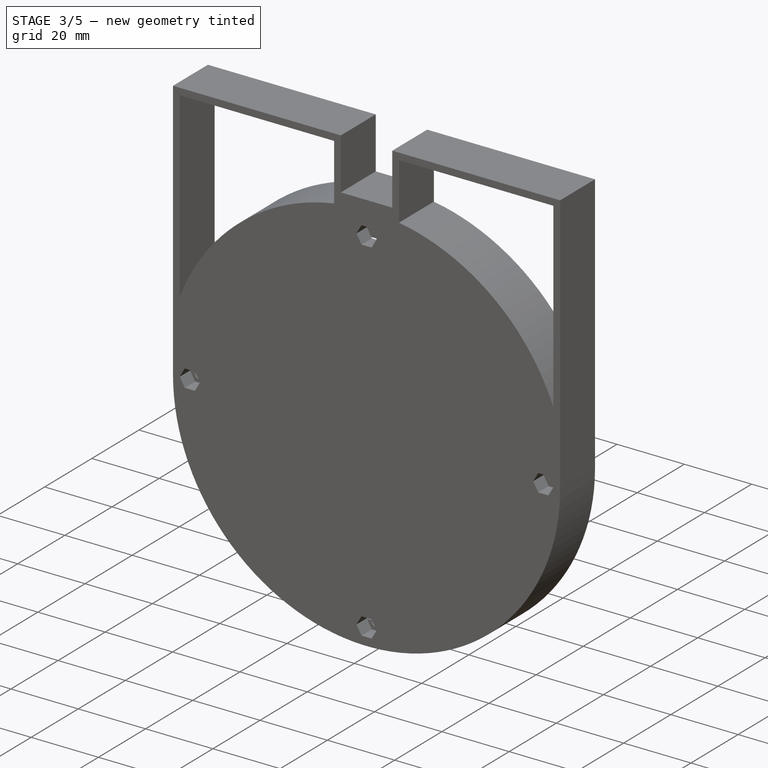
[diagram: stage 3 of 5 — iso view after this stage's code; geometry added in this stage tinted green]
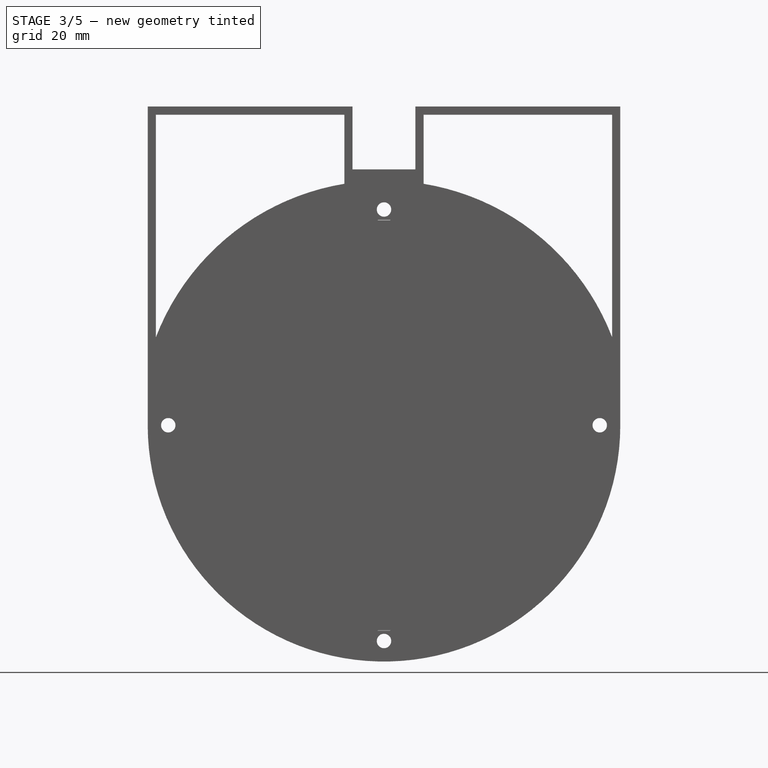
[diagram: stage 3 of 5 — front view after this stage's code; geometry added in this stage tinted green]
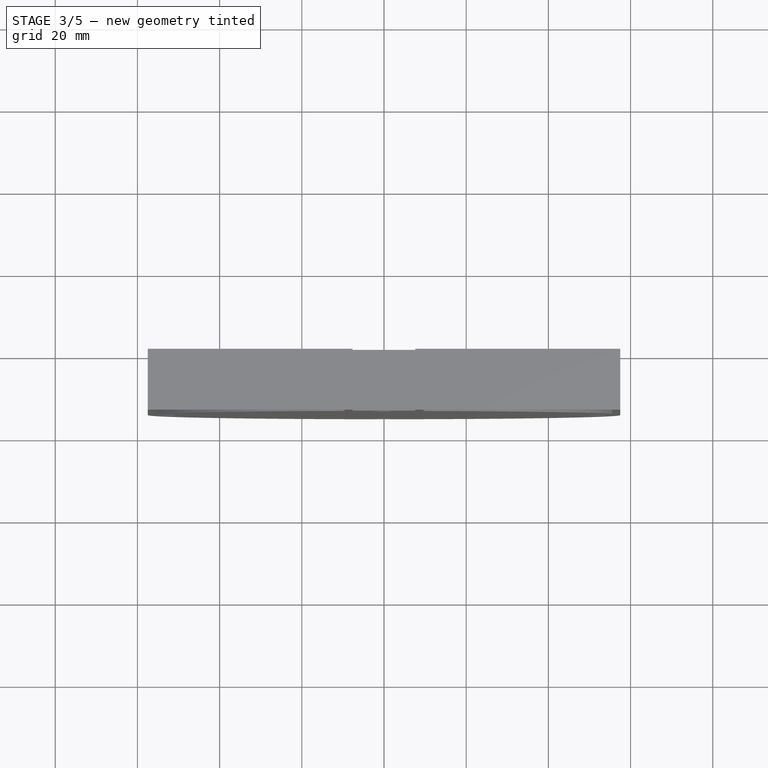
[diagram: stage 3 of 5 — top view after this stage's code; geometry added in this stage tinted green]
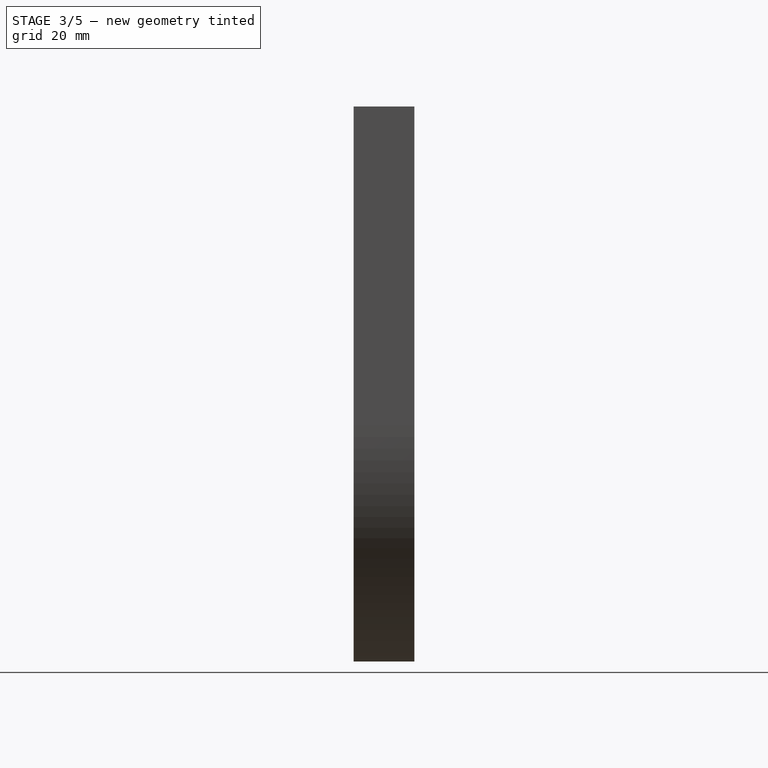
[diagram: stage 3 of 5 — right view after this stage's code; geometry added in this stage tinted green]
FEATURE [Sketcher::SketchObject] Sketch073
  ArcFitTolerance = 1e-06
  AttachmentSupport = -> [DatumPlane007]
  FullyConstrained = true
  MakeInternals = false
  MapMode = 5
  Placement = pos=(0,-10,6.7e-15) rot=(1,0,0;1.5708rad)
  sketch-geometry (4):
    g0: Circle [constr] CenterX=0 CenterY=0 CenterZ=0 NormalX=0 NormalY=0 NormalZ=1 AngleXU=0 Radius=52.7
    g1: Circle [constr] CenterX=0 CenterY=0 CenterZ=0 NormalX=0 NormalY=0 NormalZ=1 AngleXU=0 Radius=55
    g2: Circle CenterX=0 CenterY=0 CenterZ=0 NormalX=0 NormalY=0 NormalZ=1 AngleXU=0 Radius=57.5
    g3: Circle CenterX=0 CenterY=0 CenterZ=0 NormalX=0 NormalY=0 NormalZ=1 AngleXU=0 Radius=50.2
  constraints (8):
    c: Diameter(g0) = 105.4
    c: Coincident(g0,g-1)
    c: Diameter(g1) = 110
    c: Coincident(g1,g0)
    c: Diameter(g2) = 115
    c: Coincident(g2,g0)
    c: Diameter(g3) = 100.4
    c: Coincident(g3,g0)
FEATURE [PartDesign::Pad] Pad023
  Direction = (0,-1,2e-16)
  Length = 10
  Length2 = 10
  Placement = pos=(0,-10,6.7e-15) rot=(1,0,0;1.5708rad)
  Profile = -> Sketch073
  ReferenceAxis = -> Sketch073 [N_Axis]
  Refine = true
  Reversed = true
  Suppressed = false
  Type = 0
FEATURE [Sketcher::SketchObject] Sketch074
  ArcFitTolerance = 1e-06
  AttachmentSupport = -> [DatumPlane007]
  FullyConstrained = true
  MakeInternals = false
  MapMode = 5
  Placement = pos=(0,-10,6.7e-15) rot=(1,0,0;1.5708rad)
  sketch-geometry (2):
    g0: Circle CenterX=0 CenterY=0 CenterZ=0 NormalX=0 NormalY=0 NormalZ=1 AngleXU=0 Radius=52.7
    g1: Circle CenterX=0 CenterY=0 CenterZ=0 NormalX=0 NormalY=0 NormalZ=1 AngleXU=0 Radius=57.5
  constraints (4):
    c: Diameter(g0) = 105.4
    c: Coincident(g0,g-1)
    c: Diameter(g1) = 115
    c: Coincident(g1,g0)
FEATURE [PartDesign::Pad] Pad024
  BaseFeature = -> Pad023
  Direction = (0,-1,2e-16)
  Length = 10
  Length2 = 10
  Placement = pos=(0,-10,6.7e-15) rot=(1,0,0;1.5708rad)
  Profile = -> Sketch074
  ReferenceAxis = -> Sketch074 [N_Axis]
  Refine = true
  Reversed = true
  Suppressed = false
  Type = 0
FEATURE [Sketcher::SketchObject] Sketch075
  ArcFitTolerance = 1e-06
  AttachmentSupport = -> [PolarPattern008]
  FullyConstrained = false
  MakeInternals = false
  MapMode = 5
  Placement = pos=(0,-10,2.2e-15) rot=(1,0,0;1.5708rad)
  sketch-geometry (2):
    g0: Circle CenterX=0 CenterY=0 CenterZ=0 NormalX=0 NormalY=0 NormalZ=1 AngleXU=0 Radius=45.6306
    g1: Circle CenterX=0 CenterY=0 CenterZ=0 NormalX=0 NormalY=0 NormalZ=1 AngleXU=0 Radius=55.2
  constraints (3):
    c: Coincident(g0,g-1)
    c: Diameter(g1) = 110.4
    c: Coincident(g1,g0)
FEATURE [PartDesign::Pocket] Pocket038
  BaseFeature = -> Pad024
  Direction = (0,1,-2e-16)
  Length = 3
  Length2 = 5
  Placement = pos=(0,-10,6.7e-15) rot=(1,0,0;1.5708rad)
  Profile = -> Sketch075
  ReferenceAxis = -> Sketch075 [N_Axis]
  Refine = true
  Suppressed = false
  Type = 1
FEATURE [Sketcher::SketchObject] Sketch076
  ArcFitTolerance = 1e-06
  AttachmentSupport = -> [Pocket038]
  ExternalGeometry = -> [Pocket038]
  FullyConstrained = false
  MakeInternals = false
  MapMode = 5
  Placement = pos=(0,-10,6.7e-15) rot=(1,0,0;1.5708rad)
  sketch-geometry (2):
    g0: Circle CenterX=0 CenterY=0 CenterZ=0 NormalX=0 NormalY=0 NormalZ=1 AngleXU=0 Radius=55.2
    g1: Circle CenterX=0 CenterY=0 CenterZ=0 NormalX=0 NormalY=0 NormalZ=1 AngleXU=0 Radius=52.7
  constraints (3):
    c: Coincident(g0,g-1)
    c: Diameter(g1) = 105.4
    c: Coincident(g1,g0)
FEATURE [PartDesign::Pad] Pad025
  BaseFeature = -> Pocket038
  Direction = (0,-1,2e-16)
  Length = 2.6
  Length2 = 10
  Placement = pos=(0,-10,6.7e-15) rot=(1,0,0;1.5708rad)
  Profile = -> Sketch076
  ReferenceAxis = -> Sketch076 [N_Axis]
  Refine = true
  Reversed = true
  Suppressed = false
  Type = 0
FEATURE [Sketcher::SketchObject] Sketch077
  ArcFitTolerance = 1e-06
  AttachmentSupport = -> [Pad025]
  ExternalGeometry = -> [Pad025]
  FullyConstrained = false
  MakeInternals = false
  MapMode = 5
  Placement = pos=(0,-10,6.7e-15) rot=(1,0,0;1.5708rad)
  sketch-geometry (2):
    g0: Circle CenterX=0 CenterY=0 CenterZ=0 NormalX=0 NormalY=0 NormalZ=1 AngleXU=0 Radius=52.7
    g1: Circle CenterX=0 CenterY=0 CenterZ=0 NormalX=0 NormalY=0 NormalZ=1 AngleXU=0 Radius=57.5
  constraints (2):
    c: Coincident(g0,g-1)
    c: Coincident(g1,g0)
FEATURE [PartDesign::Pad] Pad026
  BaseFeature = -> Pad025
  Direction = (0,-1,2e-16)
  Length = 0.4
  Length2 = 10
  Placement = pos=(0,-10,6.7e-15) rot=(1,0,0;1.5708rad)
  Profile = -> Sketch077
  ReferenceAxis = -> Sketch077 [N_Axis]
  Refine = true
  Suppressed = false
  Type = 0
FEATURE [Sketcher::SketchObject] Sketch078
  ArcFitTolerance = 1e-06
  AttachmentSupport = -> [Pad026]
  FullyConstrained = true
  MakeInternals = false
  MapMode = 5
  Placement = pos=(0,-10.4,6.9e-15) rot=(1,0,0;1.5708rad)
  sketch-geometry (4):
    g0: Circle CenterX=0 CenterY=-52.5 CenterZ=0 NormalX=0 NormalY=0 NormalZ=1 AngleXU=0 Radius=1.75
    g1: Circle CenterX=-52.5 CenterY=0 CenterZ=0 NormalX=0 NormalY=0 NormalZ=1 AngleXU=0 Radius=1.75
    g2: Circle CenterX=0 CenterY=52.5 CenterZ=0 NormalX=0 NormalY=0 NormalZ=1 AngleXU=0 Radius=1.75
    g3: Circle CenterX=52.5 CenterY=0 CenterZ=0 NormalX=0 NormalY=0 NormalZ=1 AngleXU=0 Radius=1.75
  constraints (12):
    c: PointOnObject(g0,g-2)
    c: Diameter(g0) = 3.5
    c: DistanceY(g0,g-1) = 52.5
    c: Diameter(g1) = 3.5
    c: PointOnObject(g1,g-1)
    c: Diameter(g2) = 3.5
    c: PointOnObject(g2,g-2)
    c: Diameter(g3) = 3.5
    c: PointOnObject(g3,g-1)
    c: DistanceX(g1,g-1) = 52.5
    c: DistanceX(g-1,g3) = 52.5
    c: DistanceY(g-1,g2) = 52.5
FEATURE [PartDesign::Pocket] Pocket039
  BaseFeature = -> Pad026
  Direction = (0,1,-2e-16)
  Length = 5
  Length2 = 5
  Placement = pos=(0,-10,6.7e-15) rot=(1,0,0;1.5708rad)
  Profile = -> Sketch078
  ReferenceAxis = -> Sketch078 [N_Axis]
  Refine = true
  Suppressed = false
  Type = 0
FEATURE [Sketcher::SketchObject] Sketch079
  ArcFitTolerance = 1e-06
  AttachmentSupport = -> [Pocket039]
  ExternalGeometry = -> [Pocket039]
  FullyConstrained = false
  MakeInternals = false
  MapMode = 5
  Placement = pos=(0,-10.4,6.9e-15) rot=(1,0,0;1.5708rad)
  sketch-geometry (29):
    g0: LineSegment StartX=3 StartY=-52.5 StartZ=0 EndX=1.5 EndY=-49.9019 EndZ=0
    g1: LineSegment StartX=1.5 StartY=-49.9019 StartZ=0 EndX=-1.5 EndY=-49.9019 EndZ=0
    g2: LineSegment StartX=-1.5 StartY=-49.9019 StartZ=0 EndX=-3 EndY=-52.5 EndZ=0
    g3: LineSegment StartX=-3 StartY=-52.5 StartZ=0 EndX=-1.5 EndY=-55.0981 EndZ=0
    g4: LineSegment StartX=-1.5 StartY=-55.0981 StartZ=0 EndX=1.5 EndY=-55.0981 EndZ=0
    g5: LineSegment StartX=1.5 StartY=-55.0981 StartZ=0 EndX=3 EndY=-52.5 EndZ=0
    g6: Circle [constr] CenterX=0 CenterY=-52.5 CenterZ=0 NormalX=0 NormalY=0 NormalZ=1 AngleXU=0 Radius=3
    g7: LineSegment StartX=3 StartY=52.5 StartZ=0 EndX=1.5 EndY=55.0981 EndZ=0
    g8: LineSegment StartX=1.5 StartY=55.0981 StartZ=0 EndX=-1.5 EndY=55.0981 EndZ=0
    g9: LineSegment StartX=-1.5 StartY=55.0981 StartZ=0 EndX=-3 EndY=52.5 EndZ=0
    g10: LineSegment StartX=-3 StartY=52.5 StartZ=0 EndX=-1.5 EndY=49.9019 EndZ=0
    g11: LineSegment StartX=-1.5 StartY=49.9019 StartZ=0 EndX=1.5 EndY=49.9019 EndZ=0
    g12: LineSegment StartX=1.5 StartY=49.9019 StartZ=0 EndX=3 EndY=52.5 EndZ=0
    g13: Circle [constr] CenterX=0 CenterY=52.5 CenterZ=0 NormalX=0 NormalY=0 NormalZ=1 AngleXU=0 Radius=3
    g14: LineSegment StartX=-49.5 StartY=1e-16 StartZ=0 EndX=-51 EndY=2.59808 EndZ=0
    g15: LineSegment StartX=-51 StartY=2.59808 StartZ=0 EndX=-54 EndY=2.59808 EndZ=0
    g16: LineSegment StartX=-54 StartY=2.59808 StartZ=0 EndX=-55.5 EndY=-1e-16 EndZ=0
    g17: LineSegment StartX=-55.5 StartY=-1e-16 StartZ=0 EndX=-54 EndY=-2.59808 EndZ=0
    g18: LineSegment StartX=-54 StartY=-2.59808 StartZ=0 EndX=-51 EndY=-2.59808 EndZ=0
    g19: LineSegment StartX=-51 StartY=-2.59808 StartZ=0 EndX=-49.5 EndY=1e-16 EndZ=0
    g20: Circle [constr] CenterX=-52.5 CenterY=0 CenterZ=0 NormalX=0 NormalY=0 NormalZ=1 AngleXU=0 Radius=3
    g21: LineSegment StartX=55.5 StartY=1e-16 StartZ=0 EndX=54 EndY=2.59808 EndZ=0
    g22: LineSegment StartX=54 StartY=2.59808 StartZ=0 EndX=51 EndY=2.59808 EndZ=0
    g23: LineSegment StartX=51 StartY=2.59808 StartZ=0 EndX=49.5 EndY=-1e-16 EndZ=0
    g24: LineSegment StartX=49.5 StartY=-1e-16 StartZ=0 EndX=51 EndY=-2.59808 EndZ=0
    g25: LineSegment StartX=51 StartY=-2.59808 StartZ=0 EndX=54 EndY=-2.59808 EndZ=0
    g26: LineSegment StartX=54 StartY=-2.59808 StartZ=0 EndX=55.5 EndY=1e-16 EndZ=0
    g27: Circle [constr] CenterX=52.5 CenterY=0 CenterZ=0 NormalX=0 NormalY=0 NormalZ=1 AngleXU=0 Radius=3
    g28: Circle CenterX=0 CenterY=0 CenterZ=0 NormalX=0 NormalY=0 NormalZ=1 AngleXU=0 Radius=57.5
  constraints (64):
    c: Coincident(g0,g1)
    c: Coincident(g1,g2)
    c: Coincident(g2,g3)
    c: Coincident(g3,g4)
    c: Coincident(g4,g5)
    c: Coincident(g5,g0)
    c: Equal(g0, g1-g5) x5
    c: PointOnObject(g0,g6)
    c: PointOnObject(g1,g6)
    c: PointOnObject(g2,g6)
    c: PointOnObject(g3,g6)
    c: PointOnObject(g4,g6)
    c: PointOnObject(g5,g6)
    c: PointOnObject(g6,g-2)
    c: Diameter(g6) = 6
    c: Horizontal(g4)
    c: Coincident(g7,g8)
    c: Coincident(g8,g9)
    c: Coincident(g9,g10)
    c: Coincident(g10,g11)
    c: Coincident(g11,g12)
    c: Coincident(g12,g7)
    c: Equal(g7, g8-g12) x5
    c: PointOnObject(g7,g13)
    c: PointOnObject(g8,g13)
    c: PointOnObject(g9,g13)
    c: PointOnObject(g10,g13)
    c: PointOnObject(g11,g13)
    c: PointOnObject(g12,g13)
    c: Radius(g13) = 3
    c: PointOnObject(g13,g-2)
    c: Coincident(g14,g15)
    c: Coincident(g15,g16)
    c: Coincident(g16,g17)
    c: Coincident(g17,g18)
    c: Coincident(g18,g19)
    c: Coincident(g19,g14)
    c: Equal(g14, g15-g19) x5
    c: PointOnObject(g14,g20)
    c: PointOnObject(g15,g20)
    c: PointOnObject(g16,g20)
    c: PointOnObject(g17,g20)
    c: PointOnObject(g18,g20)
    c: PointOnObject(g19,g20)
    c: Radius(g20) = 3
    c: PointOnObject(g20,g-1)
    c: PointOnObject(g19,g-1)
    c: Coincident(g21,g22)
    c: Coincident(g22,g23)
    c: Coincident(g23,g24)
    c: Coincident(g24,g25)
    c: Coincident(g25,g26)
    c: Coincident(g26,g21)
    c: Equal(g21, g22-g26) x5
    c: PointOnObject(g21,g27)
    c: PointOnObject(g22,g27)
    c: PointOnObject(g23,g27)
    c: PointOnObject(g24,g27)
    c: PointOnObject(g25,g27)
    c: PointOnObject(g26,g27)
    c: Radius(g27) = 3
    c: PointOnObject(g27,g-1)
    c: Horizontal(g25)
    c: Coincident(g28,g-1)
FEATURE [PartDesign::Pad] Pad027
  BaseFeature = -> Pocket039
  Direction = (0,-1,2e-16)
  Length = 4.4
  Length2 = 10
  Placement = pos=(0,-10,6.7e-15) rot=(1,0,0;1.5708rad)
  Profile = -> Sketch079
  ReferenceAxis = -> Sketch079 [N_Axis]
  Refine = true
  Suppressed = false
  Type = 0
FEATURE [PartDesign::Body] Body004  label="Pinion_0_1847"
  AllowCompound = false
  Group = -> [Sketch070,Pad022,PolarPattern007,DatumPlane006,Sketch071,Pocket036,Sketch072,Pocket037,PolarPattern008,ReferencePad010,Sketch085,ShapeString004,Pocket044]
  Origin = -> Origin004
  Placement = pos=(-1.52,1.07e-14,48) rot=(0,-0.707107,-0.707107;3.14159rad)
  Tip = -> Pocket044
FEATURE [PartDesign::ShapeBinder] CopyPolarPattern006
  Placement = pos=(0,0,0) rot=(1,0,0;1.5708rad)
  TraceSupport = false
FEATURE [PartDesign::Plane] DatumPlane009
  AttachmentSupport = -> [CopyPolarPattern006]
  Length = 257.4
  MapMode = 5
  Placement = pos=(0,-10,6.7e-15) rot=(1,0,0;1.5708rad)
  ResizeMode = 0
  Width = 257.4
FEATURE [Part::Part2DObjectPython] ShapeString005  # Draft 2D object (typed FeaturePython)
  FontFile = <userpath>/Documents/DV_Projects/8_Cycloidal_gearbox_paper/0_testbed/v0/V 0_1339/OpenSans-Regular.ttf
  Fuse = false
  Justification = 7
  JustificationReference = 1
  KeepLeftMargin = false
  MakeFace = true
  ObliqueAngle = 0
  Placement = pos=(-18.3,-51.06,0) rot=(0,0,-1;0.314159rad)
  ScaleToSize = true
  Size = 3
  String = 0.2356
  Tracking = 0
FEATURE [Sketcher::SketchObject] Sketch086
  ArcFitTolerance = 1e-06
  AttachmentSupport = -> [XZ_Plane005]
  FullyConstrained = false
  MakeInternals = false
  MapMode = 5
  Placement = pos=(0,0,0) rot=(1,0,0;1.5708rad)
  sketch-geometry (5):
    g0: GeomPoint X=0 Y=0 Z=0
    g1: ArcOfCircle CenterX=0 CenterY=0 CenterZ=0 NormalX=0 NormalY=0 NormalZ=1 AngleXU=0 Radius=50 StartAngle=0.0729316 EndAngle=6.21121
    g2: ArcOfCircle CenterX=50 CenterY=0.0237867 CenterZ=0 NormalX=0 NormalY=0 NormalZ=1 AngleXU=0 Radius=3.622 StartAngle=1.6075 EndAngle=4.67664
    g3: Circle CenterX=0 CenterY=0 CenterZ=0 NormalX=0 NormalY=0 NormalZ=1 AngleXU=0 Radius=55
    g4: Circle [constr] CenterX=-49.9999 CenterY=-0.118804 CenterZ=0 NormalX=0 NormalY=0 NormalZ=1 AngleXU=0 Radius=3.822
  constraints (12):
    c: PointOnObject(g0,g-1)
    c: Diameter(g1) = 100
    c: Coincident(g1,g0)
    c: DistanceX(g0,g-1) = 0
    c: PointOnObject(g2,g1)
    c: Diameter(g2) = 7.244
    c: Coincident(g1,g2)
    c: Coincident(g1,g2)
    c: Diameter(g3) = 110
    c: Coincident(g3,g0)
    c: Diameter(g4) = 7.644
    c: PointOnObject(g4,g1)
FEATURE [PartDesign::Pad] Pad029  label="HERE m(1-x)-rc002"
  Direction = (0,-1,2e-16)
  Length = 10
  Length2 = 10
  Placement = pos=(0,0,0) rot=(1,0,0;1.5708rad)
  Profile = -> Sketch086
  ReferenceAxis = -> Sketch086 [N_Axis]
  Refine = true
  Suppressed = false
  Type = 0
FEATURE [PartDesign::PolarPattern] PolarPattern009
  Angle = 360
  Axis = -> Sketch086 [N_Axis]
  BaseFeature = -> Pad029
  Mode = 0
  Occurrences = 10
  Offset = 120
  Originals = -> [Pad029]
  Placement = pos=(0,0,0) rot=(1,0,0;1.5708rad)
  Refine = true
  Suppressed = false
  TransformMode = 0
FEATURE [PartDesign::Plane] DatumPlane008
  AttachmentSupport = -> [PolarPattern009]
  Length = 132
  MapMode = 5
  Placement = pos=(0,-10,2.2e-15) rot=(1,0,0;1.5708rad)
  ResizeMode = 0
  Width = 132
FEATURE [Sketcher::SketchObject] Sketch087
  ArcFitTolerance = 1e-06
  AttachmentSupport = -> [DatumPlane008]
  ExternalGeometry = -> [PolarPattern009]
  FullyConstrained = true
  MakeInternals = false
  MapMode = 5
  Placement = pos=(0,-10,2.2e-15) rot=(1,0,0;1.5708rad)
  sketch-geometry (6):
    g0: Circle CenterX=0 CenterY=0 CenterZ=0 NormalX=0 NormalY=0 NormalZ=1 AngleXU=0 Radius=55
    g1: Circle [constr] CenterX=0 CenterY=0 CenterZ=0 NormalX=0 NormalY=0 NormalZ=1 AngleXU=0 Radius=50
    g2: GeomPoint X=50 Y=0 Z=0
    g3: LineSegment [constr] StartX=50 StartY=0 StartZ=0 EndX=55 EndY=0 EndZ=0
    g4: GeomPoint [constr] X=52.5 Y=0 Z=0
    g5: Circle CenterX=0 CenterY=0 CenterZ=0 NormalX=0 NormalY=0 NormalZ=1 AngleXU=0 Radius=52.5
  constraints (11):
    c: Coincident(g0,g-1)
    c: PointOnObject(g-3,g0)
    c: Coincident(g1,g0)
    c: PointOnObject(g-4,g1)
    c: PointOnObject(g2,g1)
    c: Coincident(g3,g2)
    c: Coincident(g3,g-3)
    c: Horizontal(g3)
    c: Symmetric(g3,g3,g4)
    c: Coincident(g5,g0)
    c: PointOnObject(g4,g5)
FEATURE [PartDesign::Pocket] Pocket045
  BaseFeature = -> PolarPattern009
  Direction = (0,1,-2e-16)
  Length = 3
  Length2 = 5
  Placement = pos=(0,0,0) rot=(1,0,0;1.5708rad)
  Profile = -> Sketch087
  ReferenceAxis = -> Sketch087 [N_Axis]
  Refine = true
  Suppressed = false
  Type = 0
FEATURE [Sketcher::SketchObject] Sketch088
  ArcFitTolerance = 1e-06
  AttachmentSupport = -> [DatumPlane008]
  ExternalGeometry = -> [Pocket045]
  FullyConstrained = true
  MakeInternals = false
  MapMode = 5
  Placement = pos=(0,-10,2.2e-15) rot=(1,0,0;1.5708rad)
  sketch-geometry (1):
    g0: Circle CenterX=52.5 CenterY=0 CenterZ=0 NormalX=0 NormalY=0 NormalZ=1 AngleXU=0 Radius=1.75
  constraints (3):
    c: Diameter(g0) = 3.5
    c: PointOnObject(g0,g-1)
    c: PointOnObject(g0,g-3)
FEATURE [PartDesign::Pocket] Pocket046
  BaseFeature = -> Pocket045
  Direction = (0,1,-2e-16)
  Length = 5
  Length2 = 5
  Midplane = true
  Placement = pos=(0,0,0) rot=(1,0,0;1.5708rad)
  Profile = -> Sketch088
  ReferenceAxis = -> Sketch088 [N_Axis]
  Refine = true
  Suppressed = false
  Type = 1
FEATURE [PartDesign::PolarPattern] PolarPattern010
  Angle = 360
  Axis = -> Sketch088 [N_Axis]
  BaseFeature = -> Pocket046
  Mode = 0
  Occurrences = 4
  Offset = 120
  Originals = -> [Pocket046]
  Placement = pos=(0,0,0) rot=(1,0,0;1.5708rad)
  Refine = true
  Suppressed = false
  TransformMode = 0
FEATURE [Sketcher::SketchObject] Sketch089
  ArcFitTolerance = 1e-06
  AttachmentSupport = -> [DatumPlane009]
  FullyConstrained = true
  MakeInternals = false
  MapMode = 5
  Placement = pos=(0,-10,6.7e-15) rot=(1,0,0;1.5708rad)
  sketch-geometry (4):
    g0: Circle [constr] CenterX=0 CenterY=0 CenterZ=0 NormalX=0 NormalY=0 NormalZ=1 AngleXU=0 Radius=52.7
    g1: Circle [constr] CenterX=0 CenterY=0 CenterZ=0 NormalX=0 NormalY=0 NormalZ=1 AngleXU=0 Radius=55
    g2: Circle CenterX=0 CenterY=0 CenterZ=0 NormalX=0 NormalY=0 NormalZ=1 AngleXU=0 Radius=57.5
    g3: Circle CenterX=0 CenterY=0 CenterZ=0 NormalX=0 NormalY=0 NormalZ=1 AngleXU=0 Radius=50.2
  constraints (8):
    c: Diameter(g0) = 105.4
    c: Coincident(g0,g-1)
    c: Diameter(g1) = 110
    c: Coincident(g1,g0)
    c: Diameter(g2) = 115
    c: Coincident(g2,g0)
    c: Diameter(g3) = 100.4
    c: Coincident(g3,g0)
FEATURE [PartDesign::Pad] Pad030
  Direction = (0,-1,2e-16)
  Length = 10
  Length2 = 10
  Placement = pos=(0,-10,6.7e-15) rot=(1,0,0;1.5708rad)
  Profile = -> Sketch089
  ReferenceAxis = -> Sketch089 [N_Axis]
  Refine = true
  Reversed = true
  Suppressed = false
  Type = 0
FEATURE [Sketcher::SketchObject] Sketch090
  ArcFitTolerance = 1e-06
  AttachmentSupport = -> [DatumPlane009]
  FullyConstrained = true
  MakeInternals = false
  MapMode = 5
  Placement = pos=(0,-10,6.7e-15) rot=(1,0,0;1.5708rad)
  sketch-geometry (2):
    g0: Circle CenterX=0 CenterY=0 CenterZ=0 NormalX=0 NormalY=0 NormalZ=1 AngleXU=0 Radius=52.7
    g1: Circle CenterX=0 CenterY=0 CenterZ=0 NormalX=0 NormalY=0 NormalZ=1 AngleXU=0 Radius=57.5
  constraints (4):
    c: Diameter(g0) = 105.4
    c: Coincident(g0,g-1)
    c: Diameter(g1) = 115
    c: Coincident(g1,g0)
FEATURE [PartDesign::Pad] Pad031
  BaseFeature = -> Pad030
  Direction = (0,-1,2e-16)
  Length = 10
  Length2 = 10
  Placement = pos=(0,-10,6.7e-15) rot=(1,0,0;1.5708rad)
  Profile = -> Sketch090
  ReferenceAxis = -> Sketch090 [N_Axis]
  Refine = true
  Reversed = true
  Suppressed = false
  Type = 0
FEATURE [Sketcher::SketchObject] Sketch091
  ArcFitTolerance = 1e-06
  AttachmentSupport = -> [PolarPattern010]
  FullyConstrained = false
  MakeInternals = false
  MapMode = 5
  Placement = pos=(0,-10,2.2e-15) rot=(1,0,0;1.5708rad)
  sketch-geometry (2):
    g0: Circle CenterX=0 CenterY=0 CenterZ=0 NormalX=0 NormalY=0 NormalZ=1 AngleXU=0 Radius=45.6306
    g1: Circle CenterX=0 CenterY=0 CenterZ=0 NormalX=0 NormalY=0 NormalZ=1 AngleXU=0 Radius=55.2
  constraints (3):
    c: Coincident(g0,g-1)
    c: Diameter(g1) = 110.4
    c: Coincident(g1,g0)
FEATURE [PartDesign::Pocket] Pocket047
  BaseFeature = -> Pad031
  Direction = (0,1,-2e-16)
  Length = 3
  Length2 = 5
  Placement = pos=(0,-10,6.7e-15) rot=(1,0,0;1.5708rad)
  Profile = -> Sketch091
  ReferenceAxis = -> Sketch091 [N_Axis]
  Refine = true
  Suppressed = false
  Type = 1
FEATURE [Sketcher::SketchObject] Sketch092
  ArcFitTolerance = 1e-06
  AttachmentSupport = -> [Pocket047]
  ExternalGeometry = -> [Pocket047]
  FullyConstrained = false
  MakeInternals = false
  MapMode = 5
  Placement = pos=(0,-10,6.7e-15) rot=(1,0,0;1.5708rad)
  sketch-geometry (2):
    g0: Circle CenterX=0 CenterY=0 CenterZ=0 NormalX=0 NormalY=0 NormalZ=1 AngleXU=0 Radius=55.2
    g1: Circle CenterX=0 CenterY=0 CenterZ=0 NormalX=0 NormalY=0 NormalZ=1 AngleXU=0 Radius=52.7
  constraints (3):
    c: Coincident(g0,g-1)
    c: Diameter(g1) = 105.4
    c: Coincident(g1,g0)
FEATURE [PartDesign::Pad] Pad032
  BaseFeature = -> Pocket047
  Direction = (0,-1,2e-16)
  Length = 2.6
  Length2 = 10
  Placement = pos=(0,-10,6.7e-15) rot=(1,0,0;1.5708rad)
  Profile = -> Sketch092
  ReferenceAxis = -> Sketch092 [N_Axis]
  Refine = true
  Reversed = true
  Suppressed = false
  Type = 0
FEATURE [Sketcher::SketchObject] Sketch093
  ArcFitTolerance = 1e-06
  AttachmentSupport = -> [Pad032]
  ExternalGeometry = -> [Pad032]
  FullyConstrained = false
  MakeInternals = false
  MapMode = 5
  Placement = pos=(0,-10,6.7e-15) rot=(1,0,0;1.5708rad)
  sketch-geometry (2):
    g0: Circle CenterX=0 CenterY=0 CenterZ=0 NormalX=0 NormalY=0 NormalZ=1 AngleXU=0 Radius=52.7
    g1: Circle CenterX=0 CenterY=0 CenterZ=0 NormalX=0 NormalY=0 NormalZ=1 AngleXU=0 Radius=57.5
  constraints (2):
    c: Coincident(g0,g-1)
    c: Coincident(g1,g0)
FEATURE [PartDesign::Pad] Pad033
  BaseFeature = -> Pad032
  Direction = (0,-1,2e-16)
  Length = 0.4
  Length2 = 10
  Placement = pos=(0,-10,6.7e-15) rot=(1,0,0;1.5708rad)
  Profile = -> Sketch093
  ReferenceAxis = -> Sketch093 [N_Axis]
  Refine = true
  Suppressed = false
  Type = 0
FEATURE [Sketcher::SketchObject] Sketch094
  ArcFitTolerance = 1e-06
  AttachmentSupport = -> [Pad033]
  FullyConstrained = true
  MakeInternals = false
  MapMode = 5
  Placement = pos=(0,-10.4,6.9e-15) rot=(1,0,0;1.5708rad)
  sketch-geometry (4):
    g0: Circle CenterX=0 CenterY=-52.5 CenterZ=0 NormalX=0 NormalY=0 NormalZ=1 AngleXU=0 Radius=1.75
    g1: Circle CenterX=-52.5 CenterY=0 CenterZ=0 NormalX=0 NormalY=0 NormalZ=1 AngleXU=0 Radius=1.75
    g2: Circle CenterX=0 CenterY=52.5 CenterZ=0 NormalX=0 NormalY=0 NormalZ=1 AngleXU=0 Radius=1.75
    g3: Circle CenterX=52.5 CenterY=0 CenterZ=0 NormalX=0 NormalY=0 NormalZ=1 AngleXU=0 Radius=1.75
  constraints (12):
    c: PointOnObject(g0,g-2)
    c: Diameter(g0) = 3.5
    c: DistanceY(g0,g-1) = 52.5
    c: Diameter(g1) = 3.5
    c: PointOnObject(g1,g-1)
    c: Diameter(g2) = 3.5
    c: PointOnObject(g2,g-2)
    c: Diameter(g3) = 3.5
    c: PointOnObject(g3,g-1)
    c: DistanceX(g1,g-1) = 52.5
    c: DistanceX(g-1,g3) = 52.5
    c: DistanceY(g-1,g2) = 52.5
FEATURE [PartDesign::Pocket] Pocket048
  BaseFeature = -> Pad033
  Direction = (0,1,-2e-16)
  Length = 5
  Length2 = 5
  Placement = pos=(0,-10,6.7e-15) rot=(1,0,0;1.5708rad)
  Profile = -> Sketch094
  ReferenceAxis = -> Sketch094 [N_Axis]
  Refine = true
  Suppressed = false
  Type = 0
FEATURE [Sketcher::SketchObject] Sketch095
  ArcFitTolerance = 1e-06
  AttachmentSupport = -> [Pocket048]
  ExternalGeometry = -> [Pocket048]
  FullyConstrained = false
  MakeInternals = false
  MapMode = 5
  Placement = pos=(0,-10.4,6.9e-15) rot=(1,0,0;1.5708rad)
  sketch-geometry (29):
    g0: LineSegment StartX=3 StartY=-52.5 StartZ=0 EndX=1.5 EndY=-49.9019 EndZ=0
    g1: LineSegment StartX=1.5 StartY=-49.9019 StartZ=0 EndX=-1.5 EndY=-49.9019 EndZ=0
    g2: LineSegment StartX=-1.5 StartY=-49.9019 StartZ=0 EndX=-3 EndY=-52.5 EndZ=0
    g3: LineSegment StartX=-3 StartY=-52.5 StartZ=0 EndX=-1.5 EndY=-55.0981 EndZ=0
    g4: LineSegment StartX=-1.5 StartY=-55.0981 StartZ=0 EndX=1.5 EndY=-55.0981 EndZ=0
    g5: LineSegment StartX=1.5 StartY=-55.0981 StartZ=0 EndX=3 EndY=-52.5 EndZ=0
    g6: Circle [constr] CenterX=0 CenterY=-52.5 CenterZ=0 NormalX=0 NormalY=0 NormalZ=1 AngleXU=0 Radius=3
    g7: LineSegment StartX=3 StartY=52.5 StartZ=0 EndX=1.5 EndY=55.0981 EndZ=0
    g8: LineSegment StartX=1.5 StartY=55.0981 StartZ=0 EndX=-1.5 EndY=55.0981 EndZ=0
    g9: LineSegment StartX=-1.5 StartY=55.0981 StartZ=0 EndX=-3 EndY=52.5 EndZ=0
    g10: LineSegment StartX=-3 StartY=52.5 StartZ=0 EndX=-1.5 EndY=49.9019 EndZ=0
    g11: LineSegment StartX=-1.5 StartY=49.9019 StartZ=0 EndX=1.5 EndY=49.9019 EndZ=0
    g12: LineSegment StartX=1.5 StartY=49.9019 StartZ=0 EndX=3 EndY=52.5 EndZ=0
    g13: Circle [constr] CenterX=0 CenterY=52.5 CenterZ=0 NormalX=0 NormalY=0 NormalZ=1 AngleXU=0 Radius=3
    g14: LineSegment StartX=-49.5 StartY=1e-16 StartZ=0 EndX=-51 EndY=2.59808 EndZ=0
    g15: LineSegment StartX=-51 StartY=2.59808 StartZ=0 EndX=-54 EndY=2.59808 EndZ=0
    g16: LineSegment StartX=-54 StartY=2.59808 StartZ=0 EndX=-55.5 EndY=-1e-16 EndZ=0
    g17: LineSegment StartX=-55.5 StartY=-1e-16 StartZ=0 EndX=-54 EndY=-2.59808 EndZ=0
    g18: LineSegment StartX=-54 StartY=-2.59808 StartZ=0 EndX=-51 EndY=-2.59808 EndZ=0
    g19: LineSegment StartX=-51 StartY=-2.59808 StartZ=0 EndX=-49.5 EndY=1e-16 EndZ=0
    g20: Circle [constr] CenterX=-52.5 CenterY=0 CenterZ=0 NormalX=0 NormalY=0 NormalZ=1 AngleXU=0 Radius=3
    g21: LineSegment StartX=55.5 StartY=1e-16 StartZ=0 EndX=54 EndY=2.59808 EndZ=0
    g22: LineSegment StartX=54 StartY=2.59808 StartZ=0 EndX=51 EndY=2.59808 EndZ=0
    g23: LineSegment StartX=51 StartY=2.59808 StartZ=0 EndX=49.5 EndY=-1e-16 EndZ=0
    g24: LineSegment StartX=49.5 StartY=-1e-16 StartZ=0 EndX=51 EndY=-2.59808 EndZ=0
    g25: LineSegment StartX=51 StartY=-2.59808 StartZ=0 EndX=54 EndY=-2.59808 EndZ=0
    g26: LineSegment StartX=54 StartY=-2.59808 StartZ=0 EndX=55.5 EndY=1e-16 EndZ=0
    g27: Circle [constr] CenterX=52.5 CenterY=0 CenterZ=0 NormalX=0 NormalY=0 NormalZ=1 AngleXU=0 Radius=3
    g28: Circle CenterX=0 CenterY=0 CenterZ=0 NormalX=0 NormalY=0 NormalZ=1 AngleXU=0 Radius=57.5
  constraints (64):
    c: Coincident(g0,g1)
    c: Coincident(g1,g2)
    c: Coincident(g2,g3)
    c: Coincident(g3,g4)
    c: Coincident(g4,g5)
    c: Coincident(g5,g0)
    c: Equal(g0, g1-g5) x5
    c: PointOnObject(g0,g6)
    c: PointOnObject(g1,g6)
    c: PointOnObject(g2,g6)
    c: PointOnObject(g3,g6)
    c: PointOnObject(g4,g6)
    c: PointOnObject(g5,g6)
    c: PointOnObject(g6,g-2)
    c: Diameter(g6) = 6
    c: Horizontal(g4)
    c: Coincident(g7,g8)
    c: Coincident(g8,g9)
    c: Coincident(g9,g10)
    c: Coincident(g10,g11)
    c: Coincident(g11,g12)
    c: Coincident(g12,g7)
    c: Equal(g7, g8-g12) x5
    c: PointOnObject(g7,g13)
    c: PointOnObject(g8,g13)
    c: PointOnObject(g9,g13)
    c: PointOnObject(g10,g13)
    c: PointOnObject(g11,g13)
    c: PointOnObject(g12,g13)
    c: Radius(g13) = 3
    c: PointOnObject(g13,g-2)
    c: Coincident(g14,g15)
    c: Coincident(g15,g16)
    c: Coincident(g16,g17)
    c: Coincident(g17,g18)
    c: Coincident(g18,g19)
    c: Coincident(g19,g14)
    c: Equal(g14, g15-g19) x5
    c: PointOnObject(g14,g20)
    c: PointOnObject(g15,g20)
    c: PointOnObject(g16,g20)
    c: PointOnObject(g17,g20)
    c: PointOnObject(g18,g20)
    c: PointOnObject(g19,g20)
    c: Radius(g20) = 3
    c: PointOnObject(g20,g-1)
    c: PointOnObject(g19,g-1)
    c: Coincident(g21,g22)
    c: Coincident(g22,g23)
    c: Coincident(g23,g24)
    c: Coincident(g24,g25)
    c: Coincident(g25,g26)
    c: Coincident(g26,g21)
    c: Equal(g21, g22-g26) x5
    c: PointOnObject(g21,g27)
    c: PointOnObject(g22,g27)
    c: PointOnObject(g23,g27)
    c: PointOnObject(g24,g27)
    c: PointOnObject(g25,g27)
    c: PointOnObject(g26,g27)
    c: Radius(g27) = 3
    c: PointOnObject(g27,g-1)
    c: Horizontal(g25)
    c: Coincident(g28,g-1)
FEATURE [PartDesign::Pad] Pad034
  BaseFeature = -> Pocket048
  Direction = (0,-1,2e-16)
  Length = 4.4
  Length2 = 10
  Placement = pos=(0,-10,6.7e-15) rot=(1,0,0;1.5708rad)
  Profile = -> Sketch095
  ReferenceAxis = -> Sketch095 [N_Axis]
  Refine = true
  Suppressed = false
  Type = 0
FEATURE [Sketcher::SketchObject] Sketch096
  ArcFitTolerance = 1e-06
  AttachmentSupport = -> [Pad034]
  FullyConstrained = true
  MakeInternals = false
  MapMode = 5
  Placement = pos=(0,-14.8,7.3e-15) rot=(1,0,0;1.5708rad)
  sketch-geometry (5):
    g0: LineSegment StartX=6.09 StartY=5.145 StartZ=0 EndX=-6.09 EndY=5.145 EndZ=0
    g1: LineSegment StartX=-6.09 StartY=5.145 StartZ=0 EndX=-6.09 EndY=-5.145 EndZ=0
    g2: LineSegment StartX=-6.09 StartY=-5.145 StartZ=0 EndX=6.09 EndY=-5.145 EndZ=0
    g3: LineSegment StartX=6.09 StartY=-5.145 StartZ=0 EndX=6.09 EndY=5.145 EndZ=0
    g4: GeomPoint [constr] X=0 Y=0 Z=0
  constraints (12):
    c: Coincident(g0,g1)
    c: Coincident(g1,g2)
    c: Coincident(g2,g3)
    c: Coincident(g3,g0)
    c: Horizontal(g0)
    c: Horizontal(g2)
    c: Vertical(g1)
    c: Vertical(g3)
    c: Symmetric(g2,g0,g4)
    c: Distance(g2,g2) = 12.18
    c: Distance(g3,g3) = 10.29
    c: Coincident(g4,g-1)
FEATURE [PartDesign::Pocket] Pocket049
  BaseFeature = -> Pad034
  Direction = (0,1,-2e-16)
  Length = 1.4
  Length2 = 5
  Placement = pos=(0,-10,6.7e-15) rot=(1,0,0;1.5708rad)
  Profile = -> Sketch096
  ReferenceAxis = -> Sketch096 [N_Axis]
  Refine = true
  Suppressed = false
  Type = 0
FEATURE [Sketcher::SketchObject] Sketch097
  ArcFitTolerance = 1e-06
  AttachmentSupport = -> [Pocket049]
  FullyConstrained = true
  MakeInternals = false
  MapMode = 5
  Placement = pos=(0,-14.8,7.8e-15) rot=(1,0,0;1.5708rad)
  sketch-geometry (1):
    g0: Circle CenterX=0 CenterY=0 CenterZ=0 NormalX=0 NormalY=0 NormalZ=1 AngleXU=0 Radius=1.7
  constraints (2):
    c: Coincident(g0,g-1)
    c: Diameter(g0) = 3.4
FEATURE [PartDesign::Pocket] Pocket050
  BaseFeature = -> Pocket049
  Direction = (0,1,-2e-16)
  Length = 5
  Length2 = 5
  Placement = pos=(0,-10,6.7e-15) rot=(1,0,0;1.5708rad)
  Profile = -> Sketch097
  ReferenceAxis = -> Sketch097 [N_Axis]
  Refine = true
  Suppressed = false
  Type = 1
FEATURE [Sketcher::SketchObject] Sketch098
  ArcFitTolerance = 1e-06
  AttachmentSupport = -> [Pocket050]
  FullyConstrained = true
  MakeInternals = false
  MapMode = 5
  Placement = pos=(0,-14.8,8.3e-15) rot=(1,0,0;1.5708rad)
  sketch-geometry (4):
    g0: Circle CenterX=-4.35 CenterY=0 CenterZ=0 NormalX=0 NormalY=0 NormalZ=1 AngleXU=0 Radius=0.9
    g1: Circle CenterX=4.35 CenterY=0 CenterZ=0 NormalX=0 NormalY=0 NormalZ=1 AngleXU=0 Radius=0.9
    g2: GeomPoint [constr] X=-5.25 Y=0 Z=0
    g3: GeomPoint [constr] X=5.25 Y=0 Z=0
  constraints (9):
    c: PointOnObject(g0,g-1)
    c: Diameter(g0) = 1.8
    c: PointOnObject(g2,g0)
    c: PointOnObject(g3,g1)
    c: PointOnObject(g3,g-1)
    c: PointOnObject(g2,g-1)
    c: DistanceX(g2,g3) = 10.5
    c: Symmetric(g0,g1,g-1)
    c: Equal(g1,g0)
FEATURE [PartDesign::Pocket] Pocket051
  BaseFeature = -> Pocket050
  Direction = (0,1,-2e-16)
  Length = 5
  Length2 = 5
  Placement = pos=(0,-10,6.7e-15) rot=(1,0,0;1.5708rad)
  Profile = -> Sketch098
  ReferenceAxis = -> Sketch098 [N_Axis]
  Refine = true
  Suppressed = false
  Type = 1
FEATURE [Sketcher::SketchObject] Sketch099
  ArcFitTolerance = 1e-06
  AttachmentSupport = -> [Pocket051]
  ExternalGeometry = -> [Pocket051]
  FullyConstrained = true
  MakeInternals = false
  MapMode = 5
  Placement = pos=(0,-10.4,6.9e-15) rot=(-1,0,0;1.5708rad)
  sketch-geometry (2):
    g0: Circle CenterX=-4.35 CenterY=0 CenterZ=0 NormalX=0 NormalY=0 NormalZ=1 AngleXU=0 Radius=1.55
    g1: Circle CenterX=4.35 CenterY=0 CenterZ=0 NormalX=0 NormalY=0 NormalZ=1 AngleXU=0 Radius=1.55
  constraints (4):
    c: Coincident(g0,g-3)
    c: Coincident(g1,g-4)
    c: Diameter(g0) = 3.1
    c: Equal(g0,g1)
FEATURE [PartDesign::Pocket] Pocket052
  BaseFeature = -> Pocket051
  Direction = (0,-1,-2e-16)
  Length = 1
  Length2 = 5
  Placement = pos=(0,-10,6.7e-15) rot=(1,0,0;1.5708rad)
  Profile = -> Sketch099
  ReferenceAxis = -> Sketch099 [N_Axis]
  Refine = true
  Suppressed = false
  Type = 0
FEATURE [Sketcher::SketchObject] Sketch100
  ArcFitTolerance = 1e-06
  AttachmentSupport = -> [Pocket052]
  ExternalGeometry = -> [Pocket052]
  FullyConstrained = false
  MakeInternals = false
  MapMode = 5
  Placement = pos=(0,3.6e-15,-5.5e-15) rot=(-1,0,0;1.5708rad)
  sketch-geometry (28):
    g0: GeomPoint [constr] X=0 Y=-57.5 Z=0
    g1: LineSegment [constr] StartX=-4.43558 StartY=-57.5 StartZ=0 EndX=4.43558 EndY=-57.5 EndZ=0
    g2: LineSegment [constr] StartX=-4.43558 StartY=-57.5 StartZ=0 EndX=-7.65 EndY=-59.66 EndZ=0
    g3: LineSegment [constr] StartX=-7.65 StartY=-59.66 StartZ=0 EndX=-7.65 EndY=-62.26 EndZ=0
    g4: LineSegment [constr] StartX=-7.65 StartY=-62.26 StartZ=0 EndX=7.65 EndY=-62.26 EndZ=0
    g5: GeomPoint X=1.1e-15 Y=-62.26 Z=0
    g6: GeomPoint X=1.1e-15 Y=-62.26 Z=0
    g7: LineSegment [constr] StartX=4.43558 StartY=-57.5 StartZ=0 EndX=7.65 EndY=-59.66 EndZ=0
    g8: LineSegment [constr] StartX=7.65 StartY=-59.66 StartZ=0 EndX=7.65 EndY=-62.26 EndZ=0
    g9: GeomPoint [constr] X=0 Y=-57.5 Z=0
    g10: LineSegment StartX=-7.65 StartY=-62.26 StartZ=0 EndX=7.65 EndY=-62.26 EndZ=0
    g11: LineSegment StartX=7.65 StartY=-62.26 StartZ=0 EndX=7.65 EndY=-77.56 EndZ=0
    g12: LineSegment StartX=-7.65 StartY=-62.26 StartZ=0 EndX=-7.65 EndY=-77.56 EndZ=0
    g13: GeomPoint [constr] X=-57.5 Y=0 Z=0
    g14: GeomPoint [constr] X=57.5 Y=-1.41e-14 Z=0
    g15: LineSegment StartX=-57.5 StartY=0 StartZ=0 EndX=-57.5 EndY=-77.56 EndZ=0
    g16: LineSegment StartX=57.5 StartY=-1.41e-14 StartZ=0 EndX=57.5 EndY=-77.56 EndZ=0
    g17: LineSegment StartX=-57.5 StartY=-77.56 StartZ=0 EndX=-7.65 EndY=-77.56 EndZ=0
    g18: LineSegment StartX=7.65 StartY=-77.56 StartZ=0 EndX=57.5 EndY=-77.56 EndZ=0
    g19: ArcOfCircle CenterX=0 CenterY=0 CenterZ=0 NormalX=0 NormalY=0 NormalZ=1 AngleXU=0 Radius=57.5 StartAngle=3.14159 EndAngle=6.28319
    g20: LineSegment StartX=9.64066 StartY=-58.7609 StartZ=0 EndX=9.65 EndY=-75.56 EndZ=0
    g21: LineSegment StartX=9.65 StartY=-75.56 StartZ=0 EndX=55.5 EndY=-75.56 EndZ=0
    g22: LineSegment StartX=55.5001 StartY=-21.4477 StartZ=0 EndX=55.5 EndY=-75.56 EndZ=0
    g23: ArcOfCircle CenterX=-0.0112221 CenterY=-0.0601961 CenterZ=0 NormalX=0 NormalY=0 NormalZ=1 AngleXU=0 Radius=59.4889 StartAngle=4.87536 EndAngle=5.91543
    g24: LineSegment StartX=-9.65 StartY=-75.56 StartZ=0 EndX=-55.5 EndY=-75.56 EndZ=0
    g25: LineSegment StartX=-9.64066 StartY=-58.7609 StartZ=0 EndX=-9.65 EndY=-75.56 EndZ=0
    g26: LineSegment StartX=-55.5001 StartY=-21.4477 StartZ=0 EndX=-55.5 EndY=-75.56 EndZ=0
    g27: ArcOfCircle CenterX=0.0112221 CenterY=-0.0601961 CenterZ=0 NormalX=0 NormalY=0 NormalZ=1 AngleXU=0 Radius=59.4889 StartAngle=3.50935 EndAngle=4.54942
  constraints (57):
    c: PointOnObject(g0,g-3)
    c: PointOnObject(g0,g-2)
    c: Distance(g2,g3) = 2.6
    c: Angle(g2,g3) = 0.97913
    c: Coincident(g4,g3)
    c: Coincident(g2,g3)
    c: Coincident(g1,g2)
    c: Symmetric(g4,g4,g5)
    c: Coincident(g6,g5)
    c: Coincident(g7,g1)
    c: Coincident(g8,g7)
    c: Coincident(g8,g4)
    c: Angle(g8,g7) = 0.97913
    c: Distance(g1,g4) = 4.76
    c: Distance(g3,g8) = 15.3
    c: Symmetric(g1,g1,g9)
    c: Horizontal(g1)
    c: Vertical(g8)
    c: Vertical(g3)
    c: Coincident(g10,g3)
    c: Coincident(g10,g4)
    c: Horizontal(g10)
    c: Distance(g11) = 15.3
    c: Vertical(g11)
    c: Coincident(g11,g4)
    c: Distance(g12) = 15.3
    c: Vertical(g12)
    c: Coincident(g12,g3)
    c: Coincident(g9,g0)
    c: Equal(g8,g3)
    c: PointOnObject(g13,g-3)
    c: PointOnObject(g14,g-3)
    c: PointOnObject(g13,g-1)
    c: PointOnObject(g14,g-1)
    c: Coincident(g15,g13)
    c: Vertical(g15)
    c: Horizontal(g15,g12)
    c: Horizontal(g16,g11)
    c: Vertical(g16)
    c: Coincident(g16,g14)
    c: Coincident(g17,g15)
    c: Coincident(g17,g12)
    c: Coincident(g18,g11)
    c: Coincident(g18,g16)
    c: Coincident(g19,g-1)
    c: Coincident(g19,g14)
    c: Coincident(g20,g21)
    c: Coincident(g21,g22)
    c: Coincident(g22,g23)
    c: PointOnObject(g20,g23)
    c: PointOnObject(g23,g20)
    c: Coincident(g25,g24)
    c: Coincident(g24,g26)
    c: Coincident(g26,g27)
    c: PointOnObject(g25,g27)
    c: PointOnObject(g27,g25)
    c: PointOnObject(g19,g-1)
FEATURE [PartDesign::Pad] Pad035
  BaseFeature = -> Pocket052
  Direction = (0,1,-1.1e-15)
  Length = 14.8
  Length2 = 10
  Placement = pos=(0,-10,6.7e-15) rot=(1,0,0;1.5708rad)
  Profile = -> Sketch100
  ReferenceAxis = -> Sketch100 [N_Axis]
  Refine = true
  Reversed = true
  Suppressed = false
  Type = 0
FEATURE [PartDesign::ShapeBinder] ReferencePad011
  Placement = pos=(0,-10,6.7e-15) rot=(1,0,0;1.5708rad)
  Support = -> [Pad035]
  TraceSupport = false
FEATURE [Sketcher::SketchObject] Sketch101
  ArcFitTolerance = 1e-06
  AttachmentSupport = -> [PolarPattern010]
  FullyConstrained = false
  MakeInternals = false
  MapMode = 5
  Placement = pos=(0,0,0) rot=(-1,0,0;1.5708rad)
  sketch-geometry (156):
    g0: BSplineCurve PolesCount=3 KnotsCount=2 Degree=2 IsPeriodic=0
    g1: BSplineCurve PolesCount=3 KnotsCount=2 Degree=2 IsPeriodic=0
    g2: BSplineCurve PolesCount=3 KnotsCount=2 Degree=2 IsPeriodic=0
    g3: BSplineCurve PolesCount=3 KnotsCount=2 Degree=2 IsPeriodic=0
    g4: BSplineCurve PolesCount=3 KnotsCount=2 Degree=2 IsPeriodic=0
    g5: BSplineCurve PolesCount=3 KnotsCount=2 Degree=2 IsPeriodic=0
    g6: BSplineCurve PolesCount=3 KnotsCount=2 Degree=2 IsPeriodic=0
    g7: BSplineCurve PolesCount=3 KnotsCount=2 Degree=2 IsPeriodic=0
    g8: BSplineCurve PolesCount=3 KnotsCount=2 Degree=2 IsPeriodic=0
    g9: BSplineCurve PolesCount=3 KnotsCount=2 Degree=2 IsPeriodic=0
    g10: BSplineCurve PolesCount=3 KnotsCount=2 Degree=2 IsPeriodic=0
    g11: BSplineCurve PolesCount=3 KnotsCount=2 Degree=2 IsPeriodic=0
    g12: BSplineCurve PolesCount=3 KnotsCount=2 Degree=2 IsPeriodic=0
    g13: BSplineCurve PolesCount=3 KnotsCount=2 Degree=2 IsPeriodic=0
    g14: BSplineCurve PolesCount=3 KnotsCount=2 Degree=2 IsPeriodic=0
    g15: BSplineCurve PolesCount=3 KnotsCount=2 Degree=2 IsPeriodic=0
    g16: BSplineCurve PolesCount=3 KnotsCount=2 Degree=2 IsPeriodic=0
    g17: BSplineCurve PolesCount=3 KnotsCount=2 Degree=2 IsPeriodic=0
    g18: BSplineCurve PolesCount=3 KnotsCount=2 Degree=2 IsPeriodic=0
    g19: BSplineCurve PolesCount=3 KnotsCount=2 Degree=2 IsPeriodic=0
    g20: BSplineCurve PolesCount=3 KnotsCount=2 Degree=2 IsPeriodic=0
    g21: BSplineCurve PolesCount=3 KnotsCount=2 Degree=2 IsPeriodic=0
    g22: BSplineCurve PolesCount=3 KnotsCount=2 Degree=2 IsPeriodic=0
    g23: BSplineCurve PolesCount=3 KnotsCount=2 Degree=2 IsPeriodic=0
    g24: BSplineCurve PolesCount=3 KnotsCount=2 Degree=2 IsPeriodic=0
    g25: BSplineCurve PolesCount=3 KnotsCount=2 Degree=2 IsPeriodic=0
    g26: BSplineCurve PolesCount=3 KnotsCount=2 Degree=2 IsPeriodic=0
    g27: BSplineCurve PolesCount=3 KnotsCount=2 Degree=2 IsPeriodic=0
    g28: BSplineCurve PolesCount=3 KnotsCount=2 Degree=2 IsPeriodic=0
    g29: BSplineCurve PolesCount=3 KnotsCount=2 Degree=2 IsPeriodic=0
    g30: BSplineCurve PolesCount=3 KnotsCount=2 Degree=2 IsPeriodic=0
    g31: BSplineCurve PolesCount=3 KnotsCount=2 Degree=2 IsPeriodic=0
    g32: BSplineCurve PolesCount=3 KnotsCount=2 Degree=2 IsPeriodic=0
    g33: LineSegment StartX=19.1217 StartY=50.7447 StartZ=0 EndX=20.9894 EndY=50.1379 EndZ=0
    g34: LineSegment StartX=19.0254 StartY=50.4484 StartZ=0 EndX=19.1217 EndY=50.7447 EndZ=0
    g35: LineSegment StartX=20.4818 StartY=49.9752 StartZ=0 EndX=19.0254 EndY=50.4484 EndZ=0
    g36: LineSegment StartX=20.4774 StartY=49.9615 StartZ=0 EndX=20.4818 EndY=49.9752 EndZ=0
    g37: LineSegment StartX=19.6562 StartY=49.5437 StartZ=0 EndX=20.4774 EndY=49.9615 EndZ=0
    g38: BSplineCurve PolesCount=3 KnotsCount=2 Degree=2 IsPeriodic=0
    g39: BSplineCurve PolesCount=3 KnotsCount=2 Degree=2 IsPeriodic=0
    g40: BSplineCurve PolesCount=3 KnotsCount=2 Degree=2 IsPeriodic=0
    g41: BSplineCurve PolesCount=3 KnotsCount=2 Degree=2 IsPeriodic=0
    g42: BSplineCurve PolesCount=3 KnotsCount=2 Degree=2 IsPeriodic=0
    g43: BSplineCurve PolesCount=3 KnotsCount=2 Degree=2 IsPeriodic=0
    g44: BSplineCurve PolesCount=3 KnotsCount=2 Degree=2 IsPeriodic=0
    g45: BSplineCurve PolesCount=3 KnotsCount=2 Degree=2 IsPeriodic=0
    g46: BSplineCurve PolesCount=3 KnotsCount=2 Degree=2 IsPeriodic=0
    g47: LineSegment StartX=20.0157 StartY=47.8573 StartZ=0 EndX=20.1182 EndY=47.5825 EndZ=0
    g48: BSplineCurve PolesCount=3 KnotsCount=2 Degree=2 IsPeriodic=0
    g49: BSplineCurve PolesCount=3 KnotsCount=2 Degree=2 IsPeriodic=0
    g50: BSplineCurve PolesCount=3 KnotsCount=2 Degree=2 IsPeriodic=0
    g51: BSplineCurve PolesCount=3 KnotsCount=2 Degree=2 IsPeriodic=0
    g52: BSplineCurve PolesCount=3 KnotsCount=2 Degree=2 IsPeriodic=0
    g53: BSplineCurve PolesCount=3 KnotsCount=2 Degree=2 IsPeriodic=0
    g54: BSplineCurve PolesCount=3 KnotsCount=2 Degree=2 IsPeriodic=0
    g55: LineSegment StartX=20.9014 StartY=49.8669 StartZ=0 EndX=19.887 EndY=49.3387 EndZ=0
    g56: LineSegment StartX=20.9894 StartY=50.1379 StartZ=0 EndX=20.9014 EndY=49.8669 EndZ=0
    g57: BSplineCurve PolesCount=3 KnotsCount=2 Degree=2 IsPeriodic=0
    g58: BSplineCurve PolesCount=3 KnotsCount=2 Degree=2 IsPeriodic=0
    g59: BSplineCurve PolesCount=3 KnotsCount=2 Degree=2 IsPeriodic=0
    g60: BSplineCurve PolesCount=3 KnotsCount=2 Degree=2 IsPeriodic=0
    g61: BSplineCurve PolesCount=3 KnotsCount=2 Degree=2 IsPeriodic=0
    g62: LineSegment StartX=17.7737 StartY=48.5534 StartZ=0 EndX=17.8653 EndY=48.2779 EndZ=0
    g63: BSplineCurve PolesCount=3 KnotsCount=2 Degree=2 IsPeriodic=0
    g64: BSplineCurve PolesCount=3 KnotsCount=2 Degree=2 IsPeriodic=0
    g65: BSplineCurve PolesCount=3 KnotsCount=2 Degree=2 IsPeriodic=0
    g66: BSplineCurve PolesCount=3 KnotsCount=2 Degree=2 IsPeriodic=0
    g67: BSplineCurve PolesCount=3 KnotsCount=2 Degree=2 IsPeriodic=0
    g68: BSplineCurve PolesCount=3 KnotsCount=2 Degree=2 IsPeriodic=0
    g69: BSplineCurve PolesCount=3 KnotsCount=2 Degree=2 IsPeriodic=0
    g70: BSplineCurve PolesCount=3 KnotsCount=2 Degree=2 IsPeriodic=0
    g71: LineSegment StartX=17.7706 StartY=49.4062 StartZ=0 EndX=17.484 EndY=49.4993 EndZ=0
    g72: LineSegment StartX=17.8606 StartY=49.6831 StartZ=0 EndX=17.7706 EndY=49.4062 EndZ=0
    g73: LineSegment StartX=17.5759 StartY=49.7755 StartZ=0 EndX=17.8606 EndY=49.6831 EndZ=0
    g74: BSplineCurve PolesCount=3 KnotsCount=2 Degree=2 IsPeriodic=0
    g75: BSplineCurve PolesCount=3 KnotsCount=2 Degree=2 IsPeriodic=0
    g76: BSplineCurve PolesCount=3 KnotsCount=2 Degree=2 IsPeriodic=0
    g77: BSplineCurve PolesCount=3 KnotsCount=2 Degree=2 IsPeriodic=0
    g78: BSplineCurve PolesCount=3 KnotsCount=2 Degree=2 IsPeriodic=0
    g79: BSplineCurve PolesCount=3 KnotsCount=2 Degree=2 IsPeriodic=0
    g80: BSplineCurve PolesCount=3 KnotsCount=2 Degree=2 IsPeriodic=0
    g81: LineSegment StartX=18.6913 StartY=50.7604 StartZ=0 EndX=18.5925 EndY=50.4563 EndZ=0
    g82: BSplineCurve PolesCount=3 KnotsCount=2 Degree=2 IsPeriodic=0
    g83: BSplineCurve PolesCount=3 KnotsCount=2 Degree=2 IsPeriodic=0
    g84: BSplineCurve PolesCount=3 KnotsCount=2 Degree=2 IsPeriodic=0
    g85: BSplineCurve PolesCount=3 KnotsCount=2 Degree=2 IsPeriodic=0
    g86: BSplineCurve PolesCount=3 KnotsCount=2 Degree=2 IsPeriodic=0
    g87: BSplineCurve PolesCount=3 KnotsCount=2 Degree=2 IsPeriodic=0
    g88: BSplineCurve PolesCount=3 KnotsCount=2 Degree=2 IsPeriodic=0
    g89: LineSegment StartX=17.0536 StartY=49.7599 StartZ=0 EndX=17.0586 EndY=49.7755 EndZ=0
    g90: BSplineCurve PolesCount=3 KnotsCount=2 Degree=2 IsPeriodic=0
    g91: BSplineCurve PolesCount=3 KnotsCount=2 Degree=2 IsPeriodic=0
    g92: BSplineCurve PolesCount=3 KnotsCount=2 Degree=2 IsPeriodic=0
    g93: BSplineCurve PolesCount=3 KnotsCount=2 Degree=2 IsPeriodic=0
    g94: BSplineCurve PolesCount=3 KnotsCount=2 Degree=2 IsPeriodic=0
    g95: LineSegment StartX=15.0836 StartY=49.23 StartZ=0 EndX=15.4348 EndY=50.0653 EndZ=0
    g96: LineSegment StartX=13.9431 StartY=49.6006 StartZ=0 EndX=15.0836 EndY=49.23 EndZ=0
    g97: LineSegment StartX=13.8468 StartY=49.3043 StartZ=0 EndX=13.9431 EndY=49.6006 EndZ=0
    g98: LineSegment StartX=15.2642 StartY=48.8437 StartZ=0 EndX=13.8468 EndY=49.3043 EndZ=0
    g99: LineSegment StartX=15.8076 StartY=50.1446 StartZ=0 EndX=15.2642 EndY=48.8437 EndZ=0
    g100: LineSegment StartX=15.6786 StartY=50.3051 StartZ=0 EndX=15.8076 EndY=50.1446 EndZ=0
    g101: BSplineCurve PolesCount=3 KnotsCount=2 Degree=2 IsPeriodic=0
    g102: BSplineCurve PolesCount=3 KnotsCount=2 Degree=2 IsPeriodic=0
    g103: BSplineCurve PolesCount=3 KnotsCount=2 Degree=2 IsPeriodic=0
    g104: BSplineCurve PolesCount=3 KnotsCount=2 Degree=2 IsPeriodic=0
    g105: BSplineCurve PolesCount=3 KnotsCount=2 Degree=2 IsPeriodic=0
    g106: BSplineCurve PolesCount=3 KnotsCount=2 Degree=2 IsPeriodic=0
    g107: BSplineCurve PolesCount=3 KnotsCount=2 Degree=2 IsPeriodic=0
    g108: BSplineCurve PolesCount=3 KnotsCount=2 Degree=2 IsPeriodic=0
    g109: BSplineCurve PolesCount=3 KnotsCount=2 Degree=2 IsPeriodic=0
    g110: LineSegment StartX=16.3341 StartY=51.5263 StartZ=0 EndX=16.234 EndY=51.2183 EndZ=0
    g111: BSplineCurve PolesCount=3 KnotsCount=2 Degree=2 IsPeriodic=0
    g112: BSplineCurve PolesCount=3 KnotsCount=2 Degree=2 IsPeriodic=0
    g113: BSplineCurve PolesCount=3 KnotsCount=2 Degree=2 IsPeriodic=0
    g114: BSplineCurve PolesCount=3 KnotsCount=2 Degree=2 IsPeriodic=0
    g115: BSplineCurve PolesCount=3 KnotsCount=2 Degree=2 IsPeriodic=0
    g116: BSplineCurve PolesCount=3 KnotsCount=2 Degree=2 IsPeriodic=0
    g117: BSplineCurve PolesCount=3 KnotsCount=2 Degree=2 IsPeriodic=0
    g118: BSplineCurve PolesCount=3 KnotsCount=2 Degree=2 IsPeriodic=0
    g119: BSplineCurve PolesCount=3 KnotsCount=2 Degree=2 IsPeriodic=0
    g120: BSplineCurve PolesCount=3 KnotsCount=2 Degree=2 IsPeriodic=0
    g121: BSplineCurve PolesCount=3 KnotsCount=2 Degree=2 IsPeriodic=0
    g122: BSplineCurve PolesCount=3 KnotsCount=2 Degree=2 IsPeriodic=0
    g123: BSplineCurve PolesCount=3 KnotsCount=2 Degree=2 IsPeriodic=0
    g124: BSplineCurve PolesCount=3 KnotsCount=2 Degree=2 IsPeriodic=0
    g125: BSplineCurve PolesCount=3 KnotsCount=2 Degree=2 IsPeriodic=0
    g126: BSplineCurve PolesCount=3 KnotsCount=2 Degree=2 IsPeriodic=0
    g127: BSplineCurve PolesCount=3 KnotsCount=2 Degree=2 IsPeriodic=0
    g128: BSplineCurve PolesCount=3 KnotsCount=2 Degree=2 IsPeriodic=0
    g129: BSplineCurve PolesCount=3 KnotsCount=2 Degree=2 IsPeriodic=0
    g130: BSplineCurve PolesCount=3 KnotsCount=2 Degree=2 IsPeriodic=0
    g131: BSplineCurve PolesCount=3 KnotsCount=2 Degree=2 IsPeriodic=0
    g132: LineSegment StartX=13.3339 StartY=51.0431 StartZ=0 EndX=13.3125 EndY=51.05 EndZ=0
    g133: BSplineCurve PolesCount=3 KnotsCount=2 Degree=2 IsPeriodic=0
    g134: BSplineCurve PolesCount=3 KnotsCount=2 Degree=2 IsPeriodic=0
    g135: BSplineCurve PolesCount=3 KnotsCount=2 Degree=2 IsPeriodic=0
    g136: BSplineCurve PolesCount=3 KnotsCount=2 Degree=2 IsPeriodic=0
    g137: BSplineCurve PolesCount=3 KnotsCount=2 Degree=2 IsPeriodic=0
    g138: LineSegment StartX=11.544 StartY=50.0452 StartZ=0 EndX=11.6346 EndY=50.3239 EndZ=0
    g139: BSplineCurve PolesCount=3 KnotsCount=2 Degree=2 IsPeriodic=0
    g140: BSplineCurve PolesCount=3 KnotsCount=2 Degree=2 IsPeriodic=0
    g141: BSplineCurve PolesCount=3 KnotsCount=2 Degree=2 IsPeriodic=0
    g142: BSplineCurve PolesCount=3 KnotsCount=2 Degree=2 IsPeriodic=0
    g143: BSplineCurve PolesCount=3 KnotsCount=2 Degree=2 IsPeriodic=0
    g144: BSplineCurve PolesCount=3 KnotsCount=2 Degree=2 IsPeriodic=0
    g145: BSplineCurve PolesCount=3 KnotsCount=2 Degree=2 IsPeriodic=0
    g146: BSplineCurve PolesCount=3 KnotsCount=2 Degree=2 IsPeriodic=0
    g147: BSplineCurve PolesCount=3 KnotsCount=2 Degree=2 IsPeriodic=0
    g148: BSplineCurve PolesCount=3 KnotsCount=2 Degree=2 IsPeriodic=0
    g149: BSplineCurve PolesCount=3 KnotsCount=2 Degree=2 IsPeriodic=0
    g150: BSplineCurve PolesCount=3 KnotsCount=2 Degree=2 IsPeriodic=0
    g151: BSplineCurve PolesCount=3 KnotsCount=2 Degree=2 IsPeriodic=0
    g152: BSplineCurve PolesCount=3 KnotsCount=2 Degree=2 IsPeriodic=0
    g153: BSplineCurve PolesCount=3 KnotsCount=2 Degree=2 IsPeriodic=0
    g154: BSplineCurve PolesCount=3 KnotsCount=2 Degree=2 IsPeriodic=0
    g155: BSplineCurve PolesCount=3 KnotsCount=2 Degree=2 IsPeriodic=0
  constraints (156):
    c: Coincident(g0,g1)
    c: Coincident(g1,g2)
    c: Coincident(g2,g3)
    c: Coincident(g3,g4)
    c: Coincident(g4,g5)
    c: Coincident(g5,g6)
    c: Coincident(g6,g7)
    c: Coincident(g7,g8)
    c: Coincident(g8,g9)
    c: Coincident(g9,g10)
    c: Coincident(g10,g11)
    c: Coincident(g11,g12)
    c: Coincident(g12,g0)
    c: Coincident(g13,g14)
    c: Coincident(g14,g15)
    c: Coincident(g15,g16)
    c: Coincident(g16,g17)
    c: Coincident(g17,g18)
    c: Coincident(g18,g19)
    c: Coincident(g19,g20)
    c: Coincident(g20,g21)
    c: Coincident(g21,g22)
    c: Coincident(g22,g23)
    c: Coincident(g23,g24)
    c: Coincident(g24,g13)
    c: Coincident(g25,g26)
    c: Coincident(g26,g27)
    c: Coincident(g27,g28)
    c: Coincident(g28,g29)
    c: Coincident(g29,g30)
    c: Coincident(g30,g31)
    c: Coincident(g31,g32)
    c: Coincident(g32,g25)
    c: Coincident(g33,g34)
    c: Coincident(g34,g35)
    c: Coincident(g35,g36)
    c: Coincident(g36,g37)
    c: Coincident(g37,g38)
    c: Coincident(g38,g39)
    c: Coincident(g39,g40)
    c: Coincident(g40,g41)
    c: Coincident(g41,g42)
    c: Coincident(g42,g43)
    c: Coincident(g43,g44)
    c: Coincident(g44,g45)
    c: Coincident(g45,g46)
    c: Coincident(g46,g47)
    c: Coincident(g47,g48)
    c: Coincident(g48,g49)
    c: Coincident(g49,g50)
    c: Coincident(g50,g51)
    c: Coincident(g51,g52)
    c: Coincident(g52,g53)
    c: Coincident(g53,g54)
    c: Coincident(g54,g55)
    c: Coincident(g55,g56)
    c: Coincident(g56,g33)
    c: Coincident(g57,g58)
    c: Coincident(g58,g59)
    c: Coincident(g59,g60)
    c: Coincident(g60,g61)
    c: Coincident(g61,g62)
    c: Coincident(g62,g63)
    c: Coincident(g63,g64)
    c: Coincident(g64,g65)
    c: Coincident(g65,g66)
    c: Coincident(g66,g67)
    c: Coincident(g67,g68)
    c: Coincident(g68,g69)
    c: Coincident(g69,g70)
    c: Coincident(g70,g71)
    c: Coincident(g71,g72)
    c: Coincident(g72,g73)
    c: Coincident(g73,g74)
    c: Coincident(g74,g75)
    c: Coincident(g75,g76)
    c: Coincident(g76,g77)
    c: Coincident(g77,g78)
    c: Coincident(g78,g79)
    c: Coincident(g79,g80)
    c: Coincident(g80,g81)
    c: Coincident(g81,g82)
    c: Coincident(g82,g83)
    c: Coincident(g83,g84)
    c: Coincident(g84,g85)
    c: Coincident(g85,g86)
    c: Coincident(g86,g87)
    c: Coincident(g87,g88)
    c: Coincident(g88,g89)
    c: Coincident(g89,g90)
    c: Coincident(g90,g91)
    c: Coincident(g91,g57)
    c: Coincident(g92,g93)
    c: Coincident(g93,g94)
    c: Coincident(g94,g95)
    c: Coincident(g95,g96)
    c: Coincident(g96,g97)
    c: Coincident(g97,g98)
    c: Coincident(g98,g99)
    c: Coincident(g99,g100)
    c: Coincident(g100,g101)
    c: Coincident(g101,g102)
    c: Coincident(g102,g103)
    c: Coincident(g103,g104)
    c: Coincident(g104,g105)
    c: Coincident(g105,g106)
    c: Coincident(g106,g107)
    c: Coincident(g107,g108)
    c: Coincident(g108,g109)
    c: Coincident(g109,g110)
    c: Coincident(g110,g111)
    c: Coincident(g111,g112)
    c: Coincident(g112,g113)
    c: Coincident(g113,g114)
    c: Coincident(g114,g115)
    c: Coincident(g115,g116)
    c: Coincident(g116,g117)
    c: Coincident(g117,g92)
    c: Coincident(g118,g119)
    c: Coincident(g119,g120)
    c: Coincident(g120,g121)
    c: Coincident(g121,g122)
    c: Coincident(g122,g123)
    c: Coincident(g123,g124)
    c: Coincident(g124,g125)
    c: Coincident(g125,g126)
    c: Coincident(g126,g127)
    c: Coincident(g127,g128)
    c: Coincident(g128,g129)
    c: Coincident(g129,g130)
    c: Coincident(g130,g131)
    c: Coincident(g131,g132)
    c: Coincident(g132,g133)
    c: Coincident(g133,g134)
    c: Coincident(g134,g135)
    c: Coincident(g135,g136)
    c: Coincident(g136,g137)
    c: Coincident(g137,g138)
    c: Coincident(g138,g139)
    c: Coincident(g139,g140)
    c: Coincident(g140,g141)
    c: Coincident(g141,g142)
    c: Coincident(g142,g143)
    c: Coincident(g143,g144)
    c: Coincident(g144,g118)
    c: Coincident(g145,g146)
    c: Coincident(g146,g147)
    c: Coincident(g147,g148)
    c: Coincident(g148,g149)
    c: Coincident(g149,g150)
    c: Coincident(g150,g151)
    c: Coincident(g151,g152)
    c: Coincident(g152,g153)
    c: Coincident(g153,g154)
    c: Coincident(g154,g155)
    c: Coincident(g155,g145)
FEATURE [PartDesign::Pocket] Pocket053
  BaseFeature = -> PolarPattern010
  Direction = (0,-1,-2e-16)
  Length = 2
  Length2 = 5
  Placement = pos=(0,0,0) rot=(1,0,0;1.5708rad)
  Profile = -> Sketch101
  ReferenceAxis = -> Sketch101 [N_Axis]
  Refine = true
  Suppressed = false
  Type = 0
FEATURE [PartDesign::Body] Body005  label="Pinion_0_2356"
  AllowCompound = false
  Group = -> [Sketch086,Pad029,PolarPattern009,DatumPlane008,Sketch087,Pocket045,Sketch088,Pocket046,PolarPattern010,ReferencePad011,Sketch101,ShapeString005,Pocket053]
  Origin = -> Origin005
  Placement = pos=(-1.52,1.42e-14,64) rot=(0,-0.707107,-0.707107;3.14159rad)
  Tip = -> Pocket053
FEATURE [PartDesign::ShapeBinder] CopyPolarPattern007
  Placement = pos=(0,0,0) rot=(1,0,0;1.5708rad)
  TraceSupport = false
FEATURE [PartDesign::Plane] DatumPlane011
  AttachmentSupport = -> [CopyPolarPattern007]
  Length = 257.4
  MapMode = 5
  Placement = pos=(0,-10,6.7e-15) rot=(1,0,0;1.5708rad)
  ResizeMode = 0
  Width = 257.4
FEATURE [Part::Part2DObjectPython] ShapeString006  # Draft 2D object (typed FeaturePython)
  FontFile = <userpath>/Documents/DV_Projects/8_Cycloidal_gearbox_paper/0_testbed/v0/V 0_1339/OpenSans-Regular.ttf
  Fuse = false
  Justification = 7
  JustificationReference = 1
  KeepLeftMargin = false
  MakeFace = true
  ObliqueAngle = 0
  Placement = pos=(-18.3,-51.06,0) rot=(0,0,-1;0.314159rad)
  ScaleToSize = true
  Size = 3
  String = 0.2865
  Tracking = 0
FEATURE [Sketcher::SketchObject] Sketch102
  ArcFitTolerance = 1e-06
  AttachmentSupport = -> [XZ_Plane006]
  FullyConstrained = false
  MakeInternals = false
  MapMode = 5
  Placement = pos=(0,0,0) rot=(1,0,0;1.5708rad)
  sketch-geometry (5):
    g0: GeomPoint X=0 Y=0 Z=0
    g1: ArcOfCircle CenterX=0 CenterY=0 CenterZ=0 NormalX=0 NormalY=0 NormalZ=1 AngleXU=0 Radius=50 StartAngle=0.0736544 EndAngle=6.22211
    g2: ArcOfCircle CenterX=49.999 CenterY=0.314581 CenterZ=0 NormalX=0 NormalY=0 NormalZ=1 AngleXU=0 Radius=3.3675 StartAngle=1.61077 EndAngle=4.685
    g3: Circle CenterX=0 CenterY=0 CenterZ=0 NormalX=0 NormalY=0 NormalZ=1 AngleXU=0 Radius=55
    g4: Circle [constr] CenterX=-49.9999 CenterY=-0.118804 CenterZ=0 NormalX=0 NormalY=0 NormalZ=1 AngleXU=0 Radius=3.5675
  constraints (12):
    c: PointOnObject(g0,g-1)
    c: Diameter(g1) = 100
    c: Coincident(g1,g0)
    c: DistanceX(g0,g-1) = 0
    c: PointOnObject(g2,g1)
    c: Diameter(g2) = 6.735
    c: Coincident(g1,g2)
    c: Coincident(g1,g2)
    c: Diameter(g3) = 110
    c: Coincident(g3,g0)
    c: Diameter(g4) = 7.135
    c: PointOnObject(g4,g1)
FEATURE [PartDesign::Pad] Pad036  label="HERE m(1-x)-rc003"
  Direction = (0,-1,2e-16)
  Length = 10
  Length2 = 10
  Placement = pos=(0,0,0) rot=(1,0,0;1.5708rad)
  Profile = -> Sketch102
  ReferenceAxis = -> Sketch102 [N_Axis]
  Refine = true
  Suppressed = false
  Type = 0
FEATURE [PartDesign::PolarPattern] PolarPattern011
  Angle = 360
  Axis = -> Sketch102 [N_Axis]
  BaseFeature = -> Pad036
  Mode = 0
  Occurrences = 10
  Offset = 120
  Originals = -> [Pad036]
  Placement = pos=(0,0,0) rot=(1,0,0;1.5708rad)
  Refine = true
  Suppressed = false
  TransformMode = 0
FEATURE [PartDesign::Plane] DatumPlane010
  AttachmentSupport = -> [PolarPattern011]
  Length = 132
  MapMode = 5
  Placement = pos=(0,-10,2.2e-15) rot=(1,0,0;1.5708rad)
  ResizeMode = 0
  Width = 132
FEATURE [Sketcher::SketchObject] Sketch103
  ArcFitTolerance = 1e-06
  AttachmentSupport = -> [DatumPlane010]
  ExternalGeometry = -> [PolarPattern011]
  FullyConstrained = true
  MakeInternals = false
  MapMode = 5
  Placement = pos=(0,-10,2.2e-15) rot=(1,0,0;1.5708rad)
  sketch-geometry (6):
    g0: Circle CenterX=0 CenterY=0 CenterZ=0 NormalX=0 NormalY=0 NormalZ=1 AngleXU=0 Radius=55
    g1: Circle [constr] CenterX=0 CenterY=0 CenterZ=0 NormalX=0 NormalY=0 NormalZ=1 AngleXU=0 Radius=50
    g2: GeomPoint X=50 Y=0 Z=0
    g3: LineSegment [constr] StartX=50 StartY=0 StartZ=0 EndX=55 EndY=0 EndZ=0
    g4: GeomPoint [constr] X=52.5 Y=0 Z=0
    g5: Circle CenterX=0 CenterY=0 CenterZ=0 NormalX=0 NormalY=0 NormalZ=1 AngleXU=0 Radius=52.5
  constraints (11):
    c: Coincident(g0,g-1)
    c: PointOnObject(g-3,g0)
    c: Coincident(g1,g0)
    c: PointOnObject(g-4,g1)
    c: PointOnObject(g2,g1)
    c: Coincident(g3,g2)
    c: Coincident(g3,g-3)
    c: Horizontal(g3)
    c: Symmetric(g3,g3,g4)
    c: Coincident(g5,g0)
    c: PointOnObject(g4,g5)
FEATURE [PartDesign::Pocket] Pocket054
  BaseFeature = -> PolarPattern011
  Direction = (0,1,-2e-16)
  Length = 3
  Length2 = 5
  Placement = pos=(0,0,0) rot=(1,0,0;1.5708rad)
  Profile = -> Sketch103
  ReferenceAxis = -> Sketch103 [N_Axis]
  Refine = true
  Suppressed = false
  Type = 0
FEATURE [Sketcher::SketchObject] Sketch104
  ArcFitTolerance = 1e-06
  AttachmentSupport = -> [DatumPlane010]
  ExternalGeometry = -> [Pocket054]
  FullyConstrained = true
  MakeInternals = false
  MapMode = 5
  Placement = pos=(0,-10,2.2e-15) rot=(1,0,0;1.5708rad)
  sketch-geometry (1):
    g0: Circle CenterX=52.5 CenterY=0 CenterZ=0 NormalX=0 NormalY=0 NormalZ=1 AngleXU=0 Radius=1.75
  constraints (3):
    c: Diameter(g0) = 3.5
    c: PointOnObject(g0,g-1)
    c: PointOnObject(g0,g-3)
FEATURE [PartDesign::Pocket] Pocket055
  BaseFeature = -> Pocket054
  Direction = (0,1,-2e-16)
  Length = 5
  Length2 = 5
  Midplane = true
  Placement = pos=(0,0,0) rot=(1,0,0;1.5708rad)
  Profile = -> Sketch104
  ReferenceAxis = -> Sketch104 [N_Axis]
  Refine = true
  Suppressed = false
  Type = 1
FEATURE [PartDesign::PolarPattern] PolarPattern012
  Angle = 360
  Axis = -> Sketch104 [N_Axis]
  BaseFeature = -> Pocket055
  Mode = 0
  Occurrences = 4
  Offset = 120
  Originals = -> [Pocket055]
  Placement = pos=(0,0,0) rot=(1,0,0;1.5708rad)
  Refine = true
  Suppressed = false
  TransformMode = 0
FEATURE [Sketcher::SketchObject] Sketch115
  ArcFitTolerance = 1e-06
  AttachmentSupport = -> [Pocket060]
  ExternalGeometry = -> [Pocket060]
  FullyConstrained = true
  MakeInternals = false
  MapMode = 5
  Placement = pos=(0,-10.4,6.9e-15) rot=(-1,0,0;1.5708rad)
  sketch-geometry (2):
    g0: Circle CenterX=-4.35 CenterY=0 CenterZ=0 NormalX=0 NormalY=0 NormalZ=1 AngleXU=0 Radius=1.55
    g1: Circle CenterX=4.35 CenterY=0 CenterZ=0 NormalX=0 NormalY=0 NormalZ=1 AngleXU=0 Radius=1.55
  constraints (4):
    c: Coincident(g0,g-3)
    c: Coincident(g1,g-4)
    c: Diameter(g0) = 3.1
    c: Equal(g0,g1)
FEATURE [PartDesign::Pocket] Pocket061
  BaseFeature = -> Pocket060
  Direction = (0,-1,-2e-16)
  Length = 1
  Length2 = 5
  Placement = pos=(0,-10,6.7e-15) rot=(1,0,0;1.5708rad)
  Profile = -> Sketch115
  ReferenceAxis = -> Sketch115 [N_Axis]
  Refine = true
  Suppressed = false
  Type = 0
FEATURE [Sketcher::SketchObject] Sketch116
  ArcFitTolerance = 1e-06
  AttachmentSupport = -> [Pocket061]
  ExternalGeometry = -> [Pocket061]
  FullyConstrained = false
  MakeInternals = false
  MapMode = 5
  Placement = pos=(0,3.6e-15,-5.5e-15) rot=(-1,0,0;1.5708rad)
  sketch-geometry (28):
    g0: GeomPoint [constr] X=0 Y=-57.5 Z=0
    g1: LineSegment [constr] StartX=-4.43558 StartY=-57.5 StartZ=0 EndX=4.43558 EndY=-57.5 EndZ=0
    g2: LineSegment [constr] StartX=-4.43558 StartY=-57.5 StartZ=0 EndX=-7.65 EndY=-59.66 EndZ=0
    g3: LineSegment [constr] StartX=-7.65 StartY=-59.66 StartZ=0 EndX=-7.65 EndY=-62.26 EndZ=0
    g4: LineSegment [constr] StartX=-7.65 StartY=-62.26 StartZ=0 EndX=7.65 EndY=-62.26 EndZ=0
    g5: GeomPoint X=1.1e-15 Y=-62.26 Z=0
    g6: GeomPoint X=1.1e-15 Y=-62.26 Z=0
    g7: LineSegment [constr] StartX=4.43558 StartY=-57.5 StartZ=0 EndX=7.65 EndY=-59.66 EndZ=0
    g8: LineSegment [constr] StartX=7.65 StartY=-59.66 StartZ=0 EndX=7.65 EndY=-62.26 EndZ=0
    g9: GeomPoint [constr] X=0 Y=-57.5 Z=0
    g10: LineSegment StartX=-7.65 StartY=-62.26 StartZ=0 EndX=7.65 EndY=-62.26 EndZ=0
    g11: LineSegment StartX=7.65 StartY=-62.26 StartZ=0 EndX=7.65 EndY=-77.56 EndZ=0
    g12: LineSegment StartX=-7.65 StartY=-62.26 StartZ=0 EndX=-7.65 EndY=-77.56 EndZ=0
    g13: GeomPoint [constr] X=-57.5 Y=0 Z=0
    g14: GeomPoint [constr] X=57.5 Y=-1.41e-14 Z=0
    g15: LineSegment StartX=-57.5 StartY=0 StartZ=0 EndX=-57.5 EndY=-77.56 EndZ=0
    g16: LineSegment StartX=57.5 StartY=-1.41e-14 StartZ=0 EndX=57.5 EndY=-77.56 EndZ=0
    g17: LineSegment StartX=-57.5 StartY=-77.56 StartZ=0 EndX=-7.65 EndY=-77.56 EndZ=0
    g18: LineSegment StartX=7.65 StartY=-77.56 StartZ=0 EndX=57.5 EndY=-77.56 EndZ=0
    g19: ArcOfCircle CenterX=0 CenterY=0 CenterZ=0 NormalX=0 NormalY=0 NormalZ=1 AngleXU=0 Radius=57.5 StartAngle=3.14159 EndAngle=6.28319
    g20: LineSegment StartX=9.64066 StartY=-58.7609 StartZ=0 EndX=9.65 EndY=-75.56 EndZ=0
    g21: LineSegment StartX=9.65 StartY=-75.56 StartZ=0 EndX=55.5 EndY=-75.56 EndZ=0
    g22: LineSegment StartX=55.5001 StartY=-21.4477 StartZ=0 EndX=55.5 EndY=-75.56 EndZ=0
    g23: ArcOfCircle CenterX=-0.0112221 CenterY=-0.0601961 CenterZ=0 NormalX=0 NormalY=0 NormalZ=1 AngleXU=0 Radius=59.4889 StartAngle=4.87536 EndAngle=5.91543
    g24: LineSegment StartX=-9.65 StartY=-75.56 StartZ=0 EndX=-55.5 EndY=-75.56 EndZ=0
    g25: LineSegment StartX=-9.64066 StartY=-58.7609 StartZ=0 EndX=-9.65 EndY=-75.56 EndZ=0
    g26: LineSegment StartX=-55.5001 StartY=-21.4477 StartZ=0 EndX=-55.5 EndY=-75.56 EndZ=0
    g27: ArcOfCircle CenterX=0.0112221 CenterY=-0.0601961 CenterZ=0 NormalX=0 NormalY=0 NormalZ=1 AngleXU=0 Radius=59.4889 StartAngle=3.50935 EndAngle=4.54942
  constraints (57):
    c: PointOnObject(g0,g-3)
    c: PointOnObject(g0,g-2)
    c: Distance(g2,g3) = 2.6
    c: Angle(g2,g3) = 0.97913
    c: Coincident(g4,g3)
    c: Coincident(g2,g3)
    c: Coincident(g1,g2)
    c: Symmetric(g4,g4,g5)
    c: Coincident(g6,g5)
    c: Coincident(g7,g1)
    c: Coincident(g8,g7)
    c: Coincident(g8,g4)
    c: Angle(g8,g7) = 0.97913
    c: Distance(g1,g4) = 4.76
    c: Distance(g3,g8) = 15.3
    c: Symmetric(g1,g1,g9)
    c: Horizontal(g1)
    c: Vertical(g8)
    c: Vertical(g3)
    c: Coincident(g10,g3)
    c: Coincident(g10,g4)
    c: Horizontal(g10)
    c: Distance(g11) = 15.3
    c: Vertical(g11)
    c: Coincident(g11,g4)
    c: Distance(g12) = 15.3
    c: Vertical(g12)
    c: Coincident(g12,g3)
    c: Coincident(g9,g0)
    c: Equal(g8,g3)
    c: PointOnObject(g13,g-3)
    c: PointOnObject(g14,g-3)
    c: PointOnObject(g13,g-1)
    c: PointOnObject(g14,g-1)
    c: Coincident(g15,g13)
    c: Vertical(g15)
    c: Horizontal(g15,g12)
    c: Horizontal(g16,g11)
    c: Vertical(g16)
    c: Coincident(g16,g14)
    c: Coincident(g17,g15)
    c: Coincident(g17,g12)
    c: Coincident(g18,g11)
    c: Coincident(g18,g16)
    c: Coincident(g19,g-1)
    c: Coincident(g19,g14)
    c: Coincident(g20,g21)
    c: Coincident(g21,g22)
    c: Coincident(g22,g23)
    c: PointOnObject(g20,g23)
    c: PointOnObject(g23,g20)
    c: Coincident(g25,g24)
    c: Coincident(g24,g26)
    c: Coincident(g26,g27)
    c: PointOnObject(g25,g27)
    c: PointOnObject(g27,g25)
    c: PointOnObject(g19,g-1)
FEATURE [PartDesign::Pad] Pad042
  BaseFeature = -> Pocket061
  Direction = (0,1,-1.1e-15)
  Length = 14.8
  Length2 = 10
  Placement = pos=(0,-10,6.7e-15) rot=(1,0,0;1.5708rad)
  Profile = -> Sketch116
  ReferenceAxis = -> Sketch116 [N_Axis]
  Refine = true
  Reversed = true
  Suppressed = false
  Type = 0
FEATURE [PartDesign::ShapeBinder] ReferencePad012
  Placement = pos=(0,-10,6.7e-15) rot=(1,0,0;1.5708rad)
  Support = -> [Pad042]
  TraceSupport = false
FEATURE [Sketcher::SketchObject] Sketch117
  ArcFitTolerance = 1e-06
  AttachmentSupport = -> [PolarPattern012]
  FullyConstrained = false
  MakeInternals = false
  MapMode = 5
  Placement = pos=(0,0,0) rot=(-1,0,0;1.5708rad)
  sketch-geometry (166):
    g0: BSplineCurve PolesCount=3 KnotsCount=2 Degree=2 IsPeriodic=0
    g1: BSplineCurve PolesCount=3 KnotsCount=2 Degree=2 IsPeriodic=0
    g2: BSplineCurve PolesCount=3 KnotsCount=2 Degree=2 IsPeriodic=0
    g3: BSplineCurve PolesCount=3 KnotsCount=2 Degree=2 IsPeriodic=0
    g4: BSplineCurve PolesCount=3 KnotsCount=2 Degree=2 IsPeriodic=0
    g5: BSplineCurve PolesCount=3 KnotsCount=2 Degree=2 IsPeriodic=0
    g6: BSplineCurve PolesCount=3 KnotsCount=2 Degree=2 IsPeriodic=0
    g7: BSplineCurve PolesCount=3 KnotsCount=2 Degree=2 IsPeriodic=0
    g8: BSplineCurve PolesCount=3 KnotsCount=2 Degree=2 IsPeriodic=0
    g9: BSplineCurve PolesCount=3 KnotsCount=2 Degree=2 IsPeriodic=0
    g10: BSplineCurve PolesCount=3 KnotsCount=2 Degree=2 IsPeriodic=0
    g11: BSplineCurve PolesCount=3 KnotsCount=2 Degree=2 IsPeriodic=0
    g12: BSplineCurve PolesCount=3 KnotsCount=2 Degree=2 IsPeriodic=0
    g13: BSplineCurve PolesCount=3 KnotsCount=2 Degree=2 IsPeriodic=0
    g14: BSplineCurve PolesCount=3 KnotsCount=2 Degree=2 IsPeriodic=0
    g15: BSplineCurve PolesCount=3 KnotsCount=2 Degree=2 IsPeriodic=0
    g16: BSplineCurve PolesCount=3 KnotsCount=2 Degree=2 IsPeriodic=0
    g17: BSplineCurve PolesCount=3 KnotsCount=2 Degree=2 IsPeriodic=0
    g18: BSplineCurve PolesCount=3 KnotsCount=2 Degree=2 IsPeriodic=0
    g19: BSplineCurve PolesCount=3 KnotsCount=2 Degree=2 IsPeriodic=0
    g20: BSplineCurve PolesCount=3 KnotsCount=2 Degree=2 IsPeriodic=0
    g21: BSplineCurve PolesCount=3 KnotsCount=2 Degree=2 IsPeriodic=0
    g22: BSplineCurve PolesCount=3 KnotsCount=2 Degree=2 IsPeriodic=0
    g23: BSplineCurve PolesCount=3 KnotsCount=2 Degree=2 IsPeriodic=0
    g24: BSplineCurve PolesCount=3 KnotsCount=2 Degree=2 IsPeriodic=0
    g25: BSplineCurve PolesCount=3 KnotsCount=2 Degree=2 IsPeriodic=0
    g26: BSplineCurve PolesCount=3 KnotsCount=2 Degree=2 IsPeriodic=0
    g27: BSplineCurve PolesCount=3 KnotsCount=2 Degree=2 IsPeriodic=0
    g28: BSplineCurve PolesCount=3 KnotsCount=2 Degree=2 IsPeriodic=0
    g29: BSplineCurve PolesCount=3 KnotsCount=2 Degree=2 IsPeriodic=0
    g30: BSplineCurve PolesCount=3 KnotsCount=2 Degree=2 IsPeriodic=0
    g31: BSplineCurve PolesCount=3 KnotsCount=2 Degree=2 IsPeriodic=0
    g32: BSplineCurve PolesCount=3 KnotsCount=2 Degree=2 IsPeriodic=0
    g33: LineSegment StartX=19.1032 StartY=50.7507 StartZ=0 EndX=20.9709 EndY=50.1439 EndZ=0
    g34: LineSegment StartX=19.0069 StartY=50.4544 StartZ=0 EndX=19.1032 EndY=50.7507 EndZ=0
    g35: LineSegment StartX=20.4633 StartY=49.9812 StartZ=0 EndX=19.0069 EndY=50.4544 EndZ=0
    g36: LineSegment StartX=20.4588 StartY=49.9676 StartZ=0 EndX=20.4633 EndY=49.9812 EndZ=0
    g37: LineSegment StartX=19.6376 StartY=49.5497 StartZ=0 EndX=20.4588 EndY=49.9676 EndZ=0
    g38: BSplineCurve PolesCount=3 KnotsCount=2 Degree=2 IsPeriodic=0
    g39: BSplineCurve PolesCount=3 KnotsCount=2 Degree=2 IsPeriodic=0
    g40: BSplineCurve PolesCount=3 KnotsCount=2 Degree=2 IsPeriodic=0
    g41: BSplineCurve PolesCount=3 KnotsCount=2 Degree=2 IsPeriodic=0
    g42: BSplineCurve PolesCount=3 KnotsCount=2 Degree=2 IsPeriodic=0
    g43: BSplineCurve PolesCount=3 KnotsCount=2 Degree=2 IsPeriodic=0
    g44: BSplineCurve PolesCount=3 KnotsCount=2 Degree=2 IsPeriodic=0
    g45: BSplineCurve PolesCount=3 KnotsCount=2 Degree=2 IsPeriodic=0
    g46: BSplineCurve PolesCount=3 KnotsCount=2 Degree=2 IsPeriodic=0
    g47: LineSegment StartX=19.9971 StartY=47.8633 StartZ=0 EndX=20.0997 EndY=47.5886 EndZ=0
    g48: BSplineCurve PolesCount=3 KnotsCount=2 Degree=2 IsPeriodic=0
    g49: BSplineCurve PolesCount=3 KnotsCount=2 Degree=2 IsPeriodic=0
    g50: BSplineCurve PolesCount=3 KnotsCount=2 Degree=2 IsPeriodic=0
    g51: BSplineCurve PolesCount=3 KnotsCount=2 Degree=2 IsPeriodic=0
    g52: BSplineCurve PolesCount=3 KnotsCount=2 Degree=2 IsPeriodic=0
    g53: BSplineCurve PolesCount=3 KnotsCount=2 Degree=2 IsPeriodic=0
    g54: BSplineCurve PolesCount=3 KnotsCount=2 Degree=2 IsPeriodic=0
    g55: LineSegment StartX=20.8829 StartY=49.8729 StartZ=0 EndX=19.8685 EndY=49.3448 EndZ=0
    g56: LineSegment StartX=20.9709 StartY=50.1439 StartZ=0 EndX=20.8829 EndY=49.8729 EndZ=0
    g57: BSplineCurve PolesCount=3 KnotsCount=2 Degree=2 IsPeriodic=0
    g58: BSplineCurve PolesCount=3 KnotsCount=2 Degree=2 IsPeriodic=0
    g59: BSplineCurve PolesCount=3 KnotsCount=2 Degree=2 IsPeriodic=0
    g60: BSplineCurve PolesCount=3 KnotsCount=2 Degree=2 IsPeriodic=0
    g61: BSplineCurve PolesCount=3 KnotsCount=2 Degree=2 IsPeriodic=0
    g62: BSplineCurve PolesCount=3 KnotsCount=2 Degree=2 IsPeriodic=0
    g63: BSplineCurve PolesCount=3 KnotsCount=2 Degree=2 IsPeriodic=0
    g64: BSplineCurve PolesCount=3 KnotsCount=2 Degree=2 IsPeriodic=0
    g65: BSplineCurve PolesCount=3 KnotsCount=2 Degree=2 IsPeriodic=0
    g66: BSplineCurve PolesCount=3 KnotsCount=2 Degree=2 IsPeriodic=0
    g67: BSplineCurve PolesCount=3 KnotsCount=2 Degree=2 IsPeriodic=0
    g68: BSplineCurve PolesCount=3 KnotsCount=2 Degree=2 IsPeriodic=0
    g69: BSplineCurve PolesCount=3 KnotsCount=2 Degree=2 IsPeriodic=0
    g70: BSplineCurve PolesCount=3 KnotsCount=2 Degree=2 IsPeriodic=0
    g71: BSplineCurve PolesCount=3 KnotsCount=2 Degree=2 IsPeriodic=0
    g72: BSplineCurve PolesCount=3 KnotsCount=2 Degree=2 IsPeriodic=0
    g73: BSplineCurve PolesCount=3 KnotsCount=2 Degree=2 IsPeriodic=0
    g74: BSplineCurve PolesCount=3 KnotsCount=2 Degree=2 IsPeriodic=0
    g75: BSplineCurve PolesCount=3 KnotsCount=2 Degree=2 IsPeriodic=0
    g76: BSplineCurve PolesCount=3 KnotsCount=2 Degree=2 IsPeriodic=0
    g77: BSplineCurve PolesCount=3 KnotsCount=2 Degree=2 IsPeriodic=0
    g78: BSplineCurve PolesCount=3 KnotsCount=2 Degree=2 IsPeriodic=0
    g79: BSplineCurve PolesCount=3 KnotsCount=2 Degree=2 IsPeriodic=0
    g80: BSplineCurve PolesCount=3 KnotsCount=2 Degree=2 IsPeriodic=0
    g81: BSplineCurve PolesCount=3 KnotsCount=2 Degree=2 IsPeriodic=0
    g82: BSplineCurve PolesCount=3 KnotsCount=2 Degree=2 IsPeriodic=0
    g83: BSplineCurve PolesCount=3 KnotsCount=2 Degree=2 IsPeriodic=0
    g84: BSplineCurve PolesCount=3 KnotsCount=2 Degree=2 IsPeriodic=0
    g85: LineSegment StartX=17.3031 StartY=49.8612 StartZ=0 EndX=17.365 EndY=49.8129 EndZ=0
    g86: BSplineCurve PolesCount=3 KnotsCount=2 Degree=2 IsPeriodic=0
    g87: BSplineCurve PolesCount=3 KnotsCount=2 Degree=2 IsPeriodic=0
    g88: BSplineCurve PolesCount=3 KnotsCount=2 Degree=2 IsPeriodic=0
    g89: BSplineCurve PolesCount=3 KnotsCount=2 Degree=2 IsPeriodic=0
    g90: BSplineCurve PolesCount=3 KnotsCount=2 Degree=2 IsPeriodic=0
    g91: BSplineCurve PolesCount=3 KnotsCount=2 Degree=2 IsPeriodic=0
    g92: BSplineCurve PolesCount=3 KnotsCount=2 Degree=2 IsPeriodic=0
    g93: BSplineCurve PolesCount=3 KnotsCount=2 Degree=2 IsPeriodic=0
    g94: BSplineCurve PolesCount=3 KnotsCount=2 Degree=2 IsPeriodic=0
    g95: BSplineCurve PolesCount=3 KnotsCount=2 Degree=2 IsPeriodic=0
    g96: BSplineCurve PolesCount=3 KnotsCount=2 Degree=2 IsPeriodic=0
    g97: BSplineCurve PolesCount=3 KnotsCount=2 Degree=2 IsPeriodic=0
    g98: BSplineCurve PolesCount=3 KnotsCount=2 Degree=2 IsPeriodic=0
    g99: BSplineCurve PolesCount=3 KnotsCount=2 Degree=2 IsPeriodic=0
    g100: BSplineCurve PolesCount=3 KnotsCount=2 Degree=2 IsPeriodic=0
    g101: BSplineCurve PolesCount=3 KnotsCount=2 Degree=2 IsPeriodic=0
    g102: BSplineCurve PolesCount=3 KnotsCount=2 Degree=2 IsPeriodic=0
    g103: BSplineCurve PolesCount=3 KnotsCount=2 Degree=2 IsPeriodic=0
    g104: BSplineCurve PolesCount=3 KnotsCount=2 Degree=2 IsPeriodic=0
    g105: BSplineCurve PolesCount=3 KnotsCount=2 Degree=2 IsPeriodic=0
    g106: BSplineCurve PolesCount=3 KnotsCount=2 Degree=2 IsPeriodic=0
    g107: BSplineCurve PolesCount=3 KnotsCount=2 Degree=2 IsPeriodic=0
    g108: BSplineCurve PolesCount=3 KnotsCount=2 Degree=2 IsPeriodic=0
    g109: BSplineCurve PolesCount=3 KnotsCount=2 Degree=2 IsPeriodic=0
    g110: BSplineCurve PolesCount=3 KnotsCount=2 Degree=2 IsPeriodic=0
    g111: BSplineCurve PolesCount=3 KnotsCount=2 Degree=2 IsPeriodic=0
    g112: BSplineCurve PolesCount=3 KnotsCount=2 Degree=2 IsPeriodic=0
    g113: BSplineCurve PolesCount=3 KnotsCount=2 Degree=2 IsPeriodic=0
    g114: BSplineCurve PolesCount=3 KnotsCount=2 Degree=2 IsPeriodic=0
    g115: BSplineCurve PolesCount=3 KnotsCount=2 Degree=2 IsPeriodic=0
    g116: LineSegment StartX=15.5946 StartY=50.3085 StartZ=0 EndX=15.5732 EndY=50.3155 EndZ=0
    g117: BSplineCurve PolesCount=3 KnotsCount=2 Degree=2 IsPeriodic=0
    g118: BSplineCurve PolesCount=3 KnotsCount=2 Degree=2 IsPeriodic=0
    g119: BSplineCurve PolesCount=3 KnotsCount=2 Degree=2 IsPeriodic=0
    g120: BSplineCurve PolesCount=3 KnotsCount=2 Degree=2 IsPeriodic=0
    g121: BSplineCurve PolesCount=3 KnotsCount=2 Degree=2 IsPeriodic=0
    g122: LineSegment StartX=13.8047 StartY=49.3106 StartZ=0 EndX=13.8953 EndY=49.5894 EndZ=0
    g123: BSplineCurve PolesCount=3 KnotsCount=2 Degree=2 IsPeriodic=0
    g124: BSplineCurve PolesCount=3 KnotsCount=2 Degree=2 IsPeriodic=0
    g125: BSplineCurve PolesCount=3 KnotsCount=2 Degree=2 IsPeriodic=0
    g126: BSplineCurve PolesCount=3 KnotsCount=2 Degree=2 IsPeriodic=0
    g127: BSplineCurve PolesCount=3 KnotsCount=2 Degree=2 IsPeriodic=0
    g128: BSplineCurve PolesCount=3 KnotsCount=2 Degree=2 IsPeriodic=0
    g129: BSplineCurve PolesCount=3 KnotsCount=2 Degree=2 IsPeriodic=0
    g130: BSplineCurve PolesCount=3 KnotsCount=2 Degree=2 IsPeriodic=0
    g131: BSplineCurve PolesCount=3 KnotsCount=2 Degree=2 IsPeriodic=0
    g132: BSplineCurve PolesCount=3 KnotsCount=2 Degree=2 IsPeriodic=0
    g133: BSplineCurve PolesCount=3 KnotsCount=2 Degree=2 IsPeriodic=0
    g134: BSplineCurve PolesCount=3 KnotsCount=2 Degree=2 IsPeriodic=0
    g135: BSplineCurve PolesCount=3 KnotsCount=2 Degree=2 IsPeriodic=0
    g136: BSplineCurve PolesCount=3 KnotsCount=2 Degree=2 IsPeriodic=0
    g137: BSplineCurve PolesCount=3 KnotsCount=2 Degree=2 IsPeriodic=0
    g138: BSplineCurve PolesCount=3 KnotsCount=2 Degree=2 IsPeriodic=0
    g139: BSplineCurve PolesCount=3 KnotsCount=2 Degree=2 IsPeriodic=0
    g140: BSplineCurve PolesCount=3 KnotsCount=2 Degree=2 IsPeriodic=0
    g141: BSplineCurve PolesCount=3 KnotsCount=2 Degree=2 IsPeriodic=0
    g142: BSplineCurve PolesCount=3 KnotsCount=2 Degree=2 IsPeriodic=0
    g143: LineSegment StartX=12.7859 StartY=49.9766 StartZ=0 EndX=13.137 EndY=50.8119 EndZ=0
    g144: LineSegment StartX=11.6454 StartY=50.3472 StartZ=0 EndX=12.7859 EndY=49.9766 EndZ=0
    g145: LineSegment StartX=11.5491 StartY=50.0508 StartZ=0 EndX=11.6454 EndY=50.3472 EndZ=0
    g146: LineSegment StartX=12.9664 StartY=49.5903 StartZ=0 EndX=11.5491 EndY=50.0508 EndZ=0
    g147: LineSegment StartX=13.5098 StartY=50.8912 StartZ=0 EndX=12.9664 EndY=49.5903 EndZ=0
    g148: LineSegment StartX=13.3809 StartY=51.0517 StartZ=0 EndX=13.5098 EndY=50.8912 EndZ=0
    g149: BSplineCurve PolesCount=3 KnotsCount=2 Degree=2 IsPeriodic=0
    g150: BSplineCurve PolesCount=3 KnotsCount=2 Degree=2 IsPeriodic=0
    g151: BSplineCurve PolesCount=3 KnotsCount=2 Degree=2 IsPeriodic=0
    g152: BSplineCurve PolesCount=3 KnotsCount=2 Degree=2 IsPeriodic=0
    g153: BSplineCurve PolesCount=3 KnotsCount=2 Degree=2 IsPeriodic=0
    g154: BSplineCurve PolesCount=3 KnotsCount=2 Degree=2 IsPeriodic=0
    g155: BSplineCurve PolesCount=3 KnotsCount=2 Degree=2 IsPeriodic=0
    g156: BSplineCurve PolesCount=3 KnotsCount=2 Degree=2 IsPeriodic=0
    g157: BSplineCurve PolesCount=3 KnotsCount=2 Degree=2 IsPeriodic=0
    g158: LineSegment StartX=14.0364 StartY=52.2729 StartZ=0 EndX=13.9363 EndY=51.9649 EndZ=0
    g159: BSplineCurve PolesCount=3 KnotsCount=2 Degree=2 IsPeriodic=0
    g160: BSplineCurve PolesCount=3 KnotsCount=2 Degree=2 IsPeriodic=0
    g161: BSplineCurve PolesCount=3 KnotsCount=2 Degree=2 IsPeriodic=0
    g162: BSplineCurve PolesCount=3 KnotsCount=2 Degree=2 IsPeriodic=0
    g163: BSplineCurve PolesCount=3 KnotsCount=2 Degree=2 IsPeriodic=0
    g164: BSplineCurve PolesCount=3 KnotsCount=2 Degree=2 IsPeriodic=0
    g165: BSplineCurve PolesCount=3 KnotsCount=2 Degree=2 IsPeriodic=0
  constraints (166):
    c: Coincident(g0,g1)
    c: Coincident(g1,g2)
    c: Coincident(g2,g3)
    c: Coincident(g3,g4)
    c: Coincident(g4,g5)
    c: Coincident(g5,g6)
    c: Coincident(g6,g7)
    c: Coincident(g7,g8)
    c: Coincident(g8,g9)
    c: Coincident(g9,g10)
    c: Coincident(g10,g11)
    c: Coincident(g11,g12)
    c: Coincident(g12,g0)
    c: Coincident(g13,g14)
    c: Coincident(g14,g15)
    c: Coincident(g15,g16)
    c: Coincident(g16,g17)
    c: Coincident(g17,g18)
    c: Coincident(g18,g19)
    c: Coincident(g19,g20)
    c: Coincident(g20,g21)
    c: Coincident(g21,g22)
    c: Coincident(g22,g23)
    c: Coincident(g23,g24)
    c: Coincident(g24,g13)
    c: Coincident(g25,g26)
    c: Coincident(g26,g27)
    c: Coincident(g27,g28)
    c: Coincident(g28,g29)
    c: Coincident(g29,g30)
    c: Coincident(g30,g31)
    c: Coincident(g31,g32)
    c: Coincident(g32,g25)
    c: Coincident(g33,g34)
    c: Coincident(g34,g35)
    c: Coincident(g35,g36)
    c: Coincident(g36,g37)
    c: Coincident(g37,g38)
    c: Coincident(g38,g39)
    c: Coincident(g39,g40)
    c: Coincident(g40,g41)
    c: Coincident(g41,g42)
    c: Coincident(g42,g43)
    c: Coincident(g43,g44)
    c: Coincident(g44,g45)
    c: Coincident(g45,g46)
    c: Coincident(g46,g47)
    c: Coincident(g47,g48)
    c: Coincident(g48,g49)
    c: Coincident(g49,g50)
    c: Coincident(g50,g51)
    c: Coincident(g51,g52)
    c: Coincident(g52,g53)
    c: Coincident(g53,g54)
    c: Coincident(g54,g55)
    c: Coincident(g55,g56)
    c: Coincident(g56,g33)
    c: Coincident(g57,g58)
    c: Coincident(g58,g59)
    c: Coincident(g59,g60)
    c: Coincident(g60,g61)
    c: Coincident(g61,g62)
    c: Coincident(g62,g63)
    c: Coincident(g63,g64)
    c: Coincident(g64,g65)
    c: Coincident(g65,g66)
    c: Coincident(g66,g67)
    c: Coincident(g67,g68)
    c: Coincident(g68,g69)
    c: Coincident(g69,g70)
    c: Coincident(g70,g71)
    c: Coincident(g71,g72)
    c: Coincident(g72,g73)
    c: Coincident(g73,g74)
    c: Coincident(g74,g75)
    c: Coincident(g75,g76)
    c: Coincident(g76,g77)
    c: Coincident(g77,g78)
    c: Coincident(g78,g79)
    c: Coincident(g79,g80)
    c: Coincident(g80,g57)
    c: Coincident(g81,g82)
    c: Coincident(g82,g83)
    c: Coincident(g83,g84)
    c: Coincident(g84,g85)
    c: Coincident(g85,g86)
    c: Coincident(g86,g87)
    c: Coincident(g87,g88)
    c: Coincident(g88,g89)
    c: Coincident(g89,g90)
    c: Coincident(g90,g91)
    c: Coincident(g91,g81)
    c: Coincident(g92,g93)
    c: Coincident(g93,g94)
    c: Coincident(g94,g95)
    c: Coincident(g95,g96)
    c: Coincident(g96,g97)
    c: Coincident(g97,g98)
    c: Coincident(g98,g99)
    c: Coincident(g99,g100)
    c: Coincident(g100,g101)
    c: Coincident(g101,g92)
    c: Coincident(g102,g103)
    c: Coincident(g103,g104)
    c: Coincident(g104,g105)
    c: Coincident(g105,g106)
    c: Coincident(g106,g107)
    c: Coincident(g107,g108)
    c: Coincident(g108,g109)
    c: Coincident(g109,g110)
    c: Coincident(g110,g111)
    c: Coincident(g111,g112)
    c: Coincident(g112,g113)
    c: Coincident(g113,g114)
    c: Coincident(g114,g115)
    c: Coincident(g115,g116)
    c: Coincident(g116,g117)
    c: Coincident(g117,g118)
    c: Coincident(g118,g119)
    c: Coincident(g119,g120)
    c: Coincident(g120,g121)
    c: Coincident(g121,g122)
    c: Coincident(g122,g123)
    c: Coincident(g123,g124)
    c: Coincident(g124,g125)
    c: Coincident(g125,g126)
    c: Coincident(g126,g127)
    c: Coincident(g127,g128)
    c: Coincident(g128,g102)
    c: Coincident(g129,g130)
    c: Coincident(g130,g131)
    c: Coincident(g131,g132)
    c: Coincident(g132,g133)
    c: Coincident(g133,g134)
    c: Coincident(g134,g135)
    c: Coincident(g135,g136)
    c: Coincident(g136,g137)
    c: Coincident(g137,g138)
    c: Coincident(g138,g139)
    c: Coincident(g139,g129)
    c: Coincident(g140,g141)
    c: Coincident(g141,g142)
    c: Coincident(g142,g143)
    c: Coincident(g143,g144)
    c: Coincident(g144,g145)
    c: Coincident(g145,g146)
    c: Coincident(g146,g147)
    c: Coincident(g147,g148)
    c: Coincident(g148,g149)
    c: Coincident(g149,g150)
    c: Coincident(g150,g151)
    c: Coincident(g151,g152)
    c: Coincident(g152,g153)
    c: Coincident(g153,g154)
    c: Coincident(g154,g155)
    c: Coincident(g155,g156)
    c: Coincident(g156,g157)
    c: Coincident(g157,g158)
    c: Coincident(g158,g159)
    c: Coincident(g159,g160)
    c: Coincident(g160,g161)
    c: Coincident(g161,g162)
    c: Coincident(g162,g163)
    c: Coincident(g163,g164)
    c: Coincident(g164,g165)
    c: Coincident(g165,g140)
FEATURE [PartDesign::Pocket] Pocket062
  BaseFeature = -> PolarPattern012
  Direction = (0,-1,-2e-16)
  Length = 2
  Length2 = 5
  Placement = pos=(0,0,0) rot=(1,0,0;1.5708rad)
  Profile = -> Sketch117
  ReferenceAxis = -> Sketch117 [N_Axis]
  Refine = true
  Suppressed = false
  Type = 0
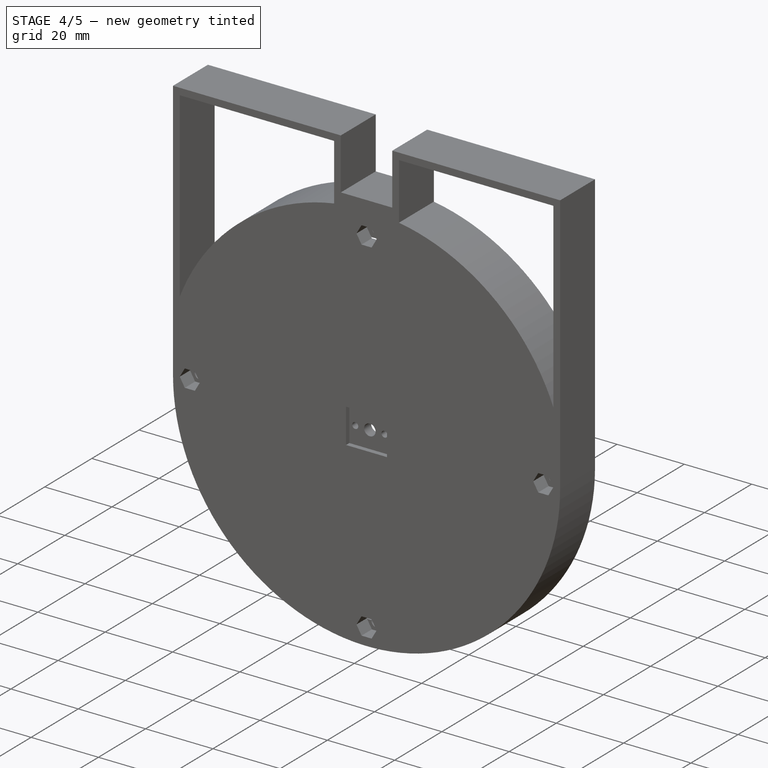
[diagram: stage 4 of 5 — iso view after this stage's code; geometry added in this stage tinted green]
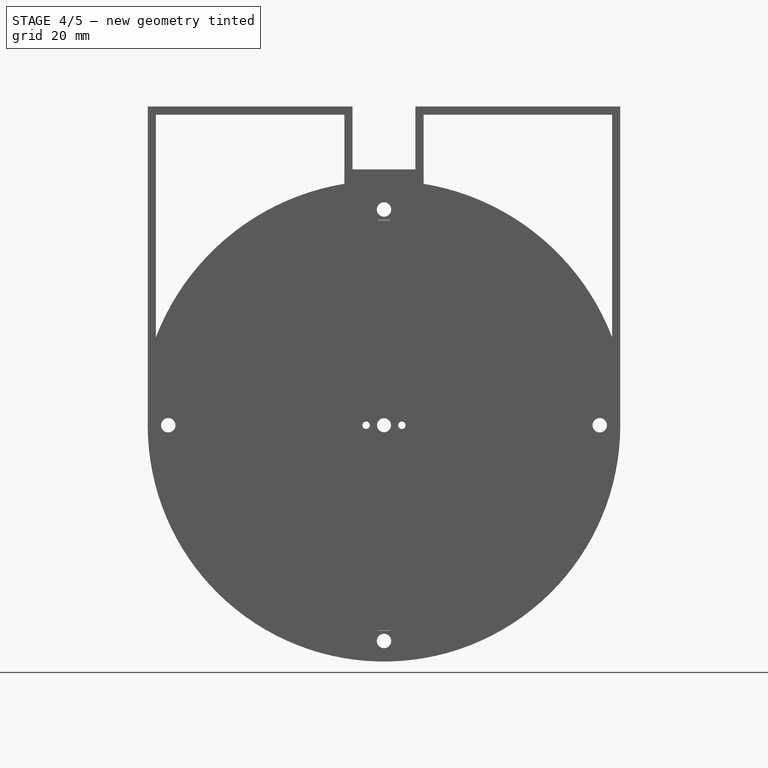
[diagram: stage 4 of 5 — front view after this stage's code; geometry added in this stage tinted green]
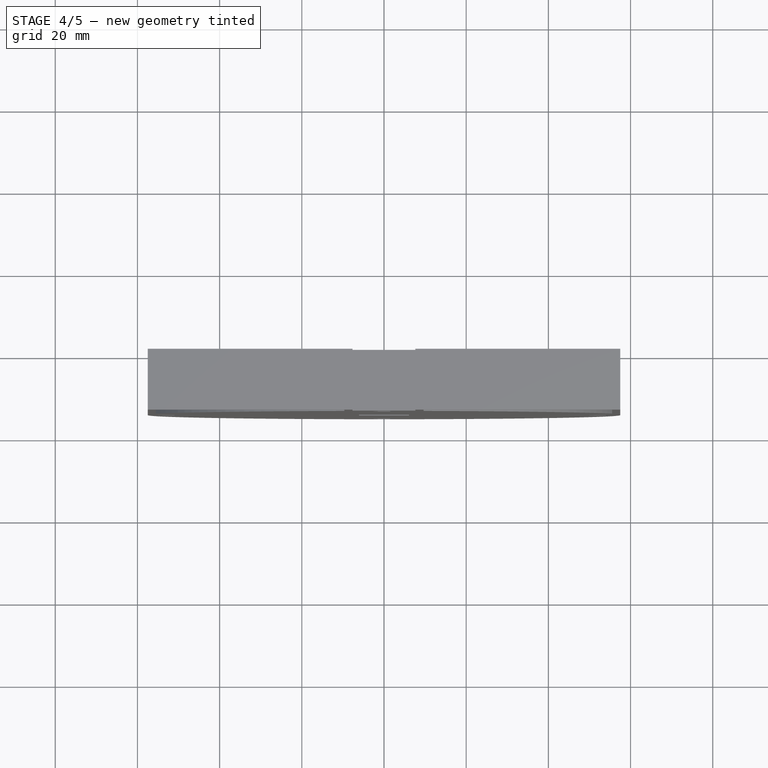
[diagram: stage 4 of 5 — top view after this stage's code; geometry added in this stage tinted green]
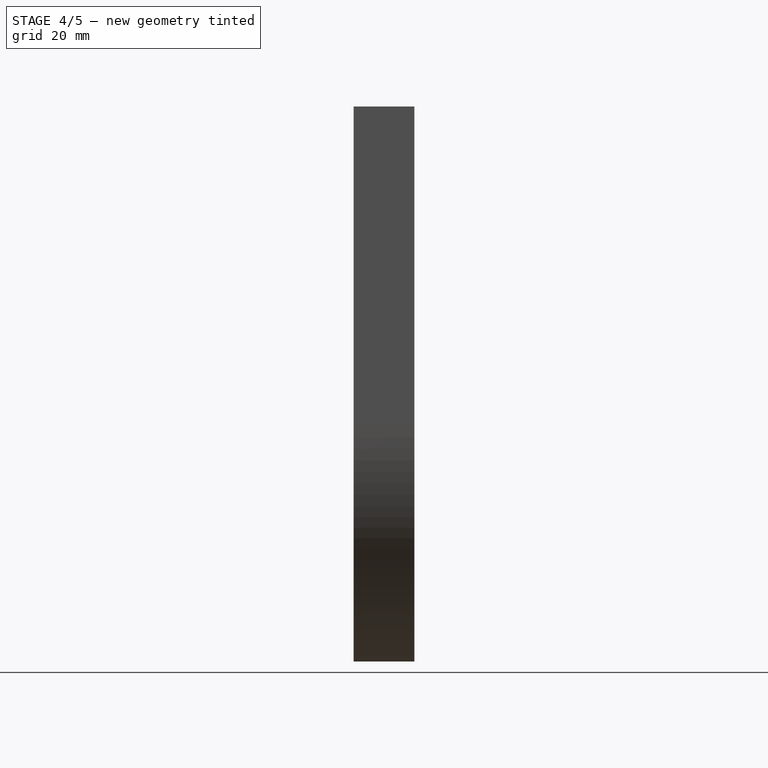
[diagram: stage 4 of 5 — right view after this stage's code; geometry added in this stage tinted green]
FEATURE [Sketcher::SketchObject] Sketch042
  ArcFitTolerance = 1e-06
  AttachmentSupport = -> [DatumPlane003]
  FullyConstrained = true
  MakeInternals = false
  MapMode = 5
  Placement = pos=(0,-10,6.7e-15) rot=(1,0,0;1.5708rad)
  sketch-geometry (4):
    g0: Circle [constr] CenterX=0 CenterY=0 CenterZ=0 NormalX=0 NormalY=0 NormalZ=1 AngleXU=0 Radius=52.7
    g1: Circle [constr] CenterX=0 CenterY=0 CenterZ=0 NormalX=0 NormalY=0 NormalZ=1 AngleXU=0 Radius=55
    g2: Circle CenterX=0 CenterY=0 CenterZ=0 NormalX=0 NormalY=0 NormalZ=1 AngleXU=0 Radius=57.5
    g3: Circle CenterX=0 CenterY=0 CenterZ=0 NormalX=0 NormalY=0 NormalZ=1 AngleXU=0 Radius=50.2
  constraints (8):
    c: Diameter(g0) = 105.4
    c: Coincident(g0,g-1)
    c: Diameter(g1) = 110
    c: Coincident(g1,g0)
    c: Diameter(g2) = 115
    c: Coincident(g2,g0)
    c: Diameter(g3) = 100.4
    c: Coincident(g3,g0)
FEATURE [PartDesign::Pad] Pad009
  Direction = (0,-1,2e-16)
  Length = 10
  Length2 = 10
  Placement = pos=(0,-10,6.7e-15) rot=(1,0,0;1.5708rad)
  Profile = -> Sketch042
  ReferenceAxis = -> Sketch042 [N_Axis]
  Refine = true
  Reversed = true
  Suppressed = false
  Type = 0
FEATURE [Sketcher::SketchObject] Sketch043
  ArcFitTolerance = 1e-06
  AttachmentSupport = -> [DatumPlane003]
  FullyConstrained = true
  MakeInternals = false
  MapMode = 5
  Placement = pos=(0,-10,6.7e-15) rot=(1,0,0;1.5708rad)
  sketch-geometry (2):
    g0: Circle CenterX=0 CenterY=0 CenterZ=0 NormalX=0 NormalY=0 NormalZ=1 AngleXU=0 Radius=52.7
    g1: Circle CenterX=0 CenterY=0 CenterZ=0 NormalX=0 NormalY=0 NormalZ=1 AngleXU=0 Radius=57.5
  constraints (4):
    c: Diameter(g0) = 105.4
    c: Coincident(g0,g-1)
    c: Diameter(g1) = 115
    c: Coincident(g1,g0)
FEATURE [PartDesign::Pad] Pad010
  BaseFeature = -> Pad009
  Direction = (0,-1,2e-16)
  Length = 10
  Length2 = 10
  Placement = pos=(0,-10,6.7e-15) rot=(1,0,0;1.5708rad)
  Profile = -> Sketch043
  ReferenceAxis = -> Sketch043 [N_Axis]
  Refine = true
  Reversed = true
  Suppressed = false
  Type = 0
FEATURE [Sketcher::SketchObject] Sketch044
  ArcFitTolerance = 1e-06
  AttachmentSupport = -> [PolarPattern004]
  FullyConstrained = false
  MakeInternals = false
  MapMode = 5
  Placement = pos=(0,-10,2.2e-15) rot=(1,0,0;1.5708rad)
  sketch-geometry (2):
    g0: Circle CenterX=0 CenterY=0 CenterZ=0 NormalX=0 NormalY=0 NormalZ=1 AngleXU=0 Radius=45.6306
    g1: Circle CenterX=0 CenterY=0 CenterZ=0 NormalX=0 NormalY=0 NormalZ=1 AngleXU=0 Radius=55.2
  constraints (3):
    c: Coincident(g0,g-1)
    c: Diameter(g1) = 110.4
    c: Coincident(g1,g0)
FEATURE [PartDesign::Pocket] Pocket021
  BaseFeature = -> Pad010
  Direction = (0,1,-2e-16)
  Length = 3
  Length2 = 5
  Placement = pos=(0,-10,6.7e-15) rot=(1,0,0;1.5708rad)
  Profile = -> Sketch044
  ReferenceAxis = -> Sketch044 [N_Axis]
  Refine = true
  Suppressed = false
  Type = 1
FEATURE [PartDesign::ShapeBinder] ReferencePad008
  Placement = pos=(0,-10,6.7e-15) rot=(1,0,0;1.5708rad)
  Support = -> [Pad014]
  TraceSupport = false
FEATURE [PartDesign::Body] Body002  label="Pinion_0_083"
  AllowCompound = false
  Group = -> [Sketch039,Pad008,PolarPattern003,DatumPlane002,Sketch040,Pocket019,Sketch041,Pocket020,PolarPattern004,ReferencePad008]
  Origin = -> Origin002
  Placement = pos=(-1.52,3.6e-15,16) rot=(1,0,0;1.5708rad)
  Tip = -> PolarPattern004
FEATURE [PartDesign::ShapeBinder] CopyPolarPattern004
  Placement = pos=(0,0,0) rot=(1,0,0;1.5708rad)
  TraceSupport = false
FEATURE [PartDesign::Plane] DatumPlane005
  AttachmentSupport = -> [CopyPolarPattern004]
  Length = 237.6
  MapMode = 5
  Placement = pos=(0,-10,6.7e-15) rot=(1,0,0;1.5708rad)
  ResizeMode = 0
  Width = 237.6
FEATURE [Part::Part2DObjectPython] ShapeString003  # Draft 2D object (typed FeaturePython)
  FontFile = <userpath>/Documents/DV_Projects/8_Cycloidal_gearbox_paper/0_testbed/v0/V 0_1339/OpenSans-Regular.ttf
  Fuse = false
  Justification = 7
  JustificationReference = 1
  KeepLeftMargin = false
  MakeFace = true
  ObliqueAngle = 0
  Placement = pos=(-18.3024,-51.0646,0) rot=(0,0,-1;0.314159rad)
  ScaleToSize = true
  Size = 3
  String = 0.1339
  Tracking = 0
FEATURE [Sketcher::SketchObject] Sketch054
  ArcFitTolerance = 1e-06
  AttachmentSupport = -> [XZ_Plane003]
  FullyConstrained = false
  MakeInternals = false
  MapMode = 5
  Placement = pos=(0,0,0) rot=(1,0,0;1.5708rad)
  sketch-geometry (5):
    g0: GeomPoint X=0 Y=0 Z=0
    g1: ArcOfCircle CenterX=0 CenterY=0 CenterZ=0 NormalX=0 NormalY=0 NormalZ=1 AngleXU=0 Radius=50 StartAngle=0.0822343 EndAngle=6.20015
    g2: ArcOfCircle CenterX=50 CenterY=-0.0199599 CenterZ=0 NormalX=0 NormalY=0 NormalZ=1 AngleXU=0 Radius=4.1305 StartAngle=1.61171 EndAngle=4.67067
    g3: Circle CenterX=0 CenterY=0 CenterZ=0 NormalX=0 NormalY=0 NormalZ=1 AngleXU=0 Radius=55
    g4: Circle [constr] CenterX=-49.9999 CenterY=-0.118804 CenterZ=0 NormalX=0 NormalY=0 NormalZ=1 AngleXU=0 Radius=4.3305
  constraints (12):
    c: PointOnObject(g0,g-1)
    c: Diameter(g1) = 100
    c: Coincident(g1,g0)
    c: DistanceX(g0,g-1) = 0
    c: PointOnObject(g2,g1)
    c: Diameter(g2) = 8.261
    c: Coincident(g1,g2)
    c: Coincident(g1,g2)
    c: Diameter(g3) = 110
    c: Coincident(g3,g0)
    c: Diameter(g4) = 8.661
    c: PointOnObject(g4,g1)
FEATURE [PartDesign::Pad] Pad015
  Direction = (0,-1,2e-16)
  Length = 10
  Length2 = 10
  Placement = pos=(0,0,0) rot=(1,0,0;1.5708rad)
  Profile = -> Sketch054
  ReferenceAxis = -> Sketch054 [N_Axis]
  Refine = true
  Suppressed = false
  Type = 0
FEATURE [PartDesign::PolarPattern] PolarPattern005
  Angle = 360
  Axis = -> Sketch054 [N_Axis]
  BaseFeature = -> Pad015
  Mode = 0
  Occurrences = 10
  Offset = 120
  Originals = -> [Pad015]
  Placement = pos=(0,0,0) rot=(1,0,0;1.5708rad)
  Refine = true
  Suppressed = false
  TransformMode = 0
FEATURE [PartDesign::Plane] DatumPlane004
  AttachmentSupport = -> [PolarPattern005]
  Length = 132
  MapMode = 5
  Placement = pos=(0,-10,2.2e-15) rot=(1,0,0;1.5708rad)
  ResizeMode = 0
  Width = 132
FEATURE [Sketcher::SketchObject] Sketch055
  ArcFitTolerance = 1e-06
  AttachmentSupport = -> [DatumPlane004]
  ExternalGeometry = -> [PolarPattern005]
  FullyConstrained = true
  MakeInternals = false
  MapMode = 5
  Placement = pos=(0,-10,2.2e-15) rot=(1,0,0;1.5708rad)
  sketch-geometry (6):
    g0: Circle CenterX=0 CenterY=0 CenterZ=0 NormalX=0 NormalY=0 NormalZ=1 AngleXU=0 Radius=55
    g1: Circle [constr] CenterX=0 CenterY=0 CenterZ=0 NormalX=0 NormalY=0 NormalZ=1 AngleXU=0 Radius=50
    g2: GeomPoint X=50 Y=0 Z=0
    g3: LineSegment [constr] StartX=50 StartY=0 StartZ=0 EndX=55 EndY=0 EndZ=0
    g4: GeomPoint [constr] X=52.5 Y=0 Z=0
    g5: Circle CenterX=0 CenterY=0 CenterZ=0 NormalX=0 NormalY=0 NormalZ=1 AngleXU=0 Radius=52.5
  constraints (11):
    c: Coincident(g0,g-1)
    c: PointOnObject(g-3,g0)
    c: Coincident(g1,g0)
    c: PointOnObject(g-4,g1)
    c: PointOnObject(g2,g1)
    c: Coincident(g3,g2)
    c: Coincident(g3,g-3)
    c: Horizontal(g3)
    c: Symmetric(g3,g3,g4)
    c: Coincident(g5,g0)
    c: PointOnObject(g4,g5)
FEATURE [PartDesign::Pocket] Pocket027
  BaseFeature = -> PolarPattern005
  Direction = (0,1,-2e-16)
  Length = 3
  Length2 = 5
  Placement = pos=(0,0,0) rot=(1,0,0;1.5708rad)
  Profile = -> Sketch055
  ReferenceAxis = -> Sketch055 [N_Axis]
  Refine = true
  Suppressed = false
  Type = 0
FEATURE [Sketcher::SketchObject] Sketch056
  ArcFitTolerance = 1e-06
  AttachmentSupport = -> [DatumPlane004]
  ExternalGeometry = -> [Pocket027]
  FullyConstrained = true
  MakeInternals = false
  MapMode = 5
  Placement = pos=(0,-10,2.2e-15) rot=(1,0,0;1.5708rad)
  sketch-geometry (1):
    g0: Circle CenterX=52.5 CenterY=0 CenterZ=0 NormalX=0 NormalY=0 NormalZ=1 AngleXU=0 Radius=1.75
  constraints (3):
    c: Diameter(g0) = 3.5
    c: PointOnObject(g0,g-1)
    c: PointOnObject(g0,g-3)
FEATURE [PartDesign::Pocket] Pocket028
  BaseFeature = -> Pocket027
  Direction = (0,1,-2e-16)
  Length = 5
  Length2 = 5
  Midplane = true
  Placement = pos=(0,0,0) rot=(1,0,0;1.5708rad)
  Profile = -> Sketch056
  ReferenceAxis = -> Sketch056 [N_Axis]
  Refine = true
  Suppressed = false
  Type = 1
FEATURE [PartDesign::PolarPattern] PolarPattern006
  Angle = 360
  Axis = -> Sketch056 [N_Axis]
  BaseFeature = -> Pocket028
  Mode = 0
  Occurrences = 4
  Offset = 120
  Originals = -> [Pocket028]
  Placement = pos=(0,0,0) rot=(1,0,0;1.5708rad)
  Refine = true
  Suppressed = false
  TransformMode = 0
FEATURE [Sketcher::SketchObject] Sketch057
  ArcFitTolerance = 1e-06
  AttachmentSupport = -> [DatumPlane005]
  FullyConstrained = true
  MakeInternals = false
  MapMode = 5
  Placement = pos=(0,-10,6.7e-15) rot=(1,0,0;1.5708rad)
  sketch-geometry (4):
    g0: Circle [constr] CenterX=0 CenterY=0 CenterZ=0 NormalX=0 NormalY=0 NormalZ=1 AngleXU=0 Radius=52.7
    g1: Circle [constr] CenterX=0 CenterY=0 CenterZ=0 NormalX=0 NormalY=0 NormalZ=1 AngleXU=0 Radius=55
    g2: Circle CenterX=0 CenterY=0 CenterZ=0 NormalX=0 NormalY=0 NormalZ=1 AngleXU=0 Radius=57.5
    g3: Circle CenterX=0 CenterY=0 CenterZ=0 NormalX=0 NormalY=0 NormalZ=1 AngleXU=0 Radius=50.2
  constraints (8):
    c: Diameter(g0) = 105.4
    c: Coincident(g0,g-1)
    c: Diameter(g1) = 110
    c: Coincident(g1,g0)
    c: Diameter(g2) = 115
    c: Coincident(g2,g0)
    c: Diameter(g3) = 100.4
    c: Coincident(g3,g0)
FEATURE [PartDesign::Pad] Pad016
  Direction = (0,-1,2e-16)
  Length = 10
  Length2 = 10
  Placement = pos=(0,-10,6.7e-15) rot=(1,0,0;1.5708rad)
  Profile = -> Sketch057
  ReferenceAxis = -> Sketch057 [N_Axis]
  Refine = true
  Reversed = true
  Suppressed = false
  Type = 0
FEATURE [Sketcher::SketchObject] Sketch058
  ArcFitTolerance = 1e-06
  AttachmentSupport = -> [DatumPlane005]
  FullyConstrained = true
  MakeInternals = false
  MapMode = 5
  Placement = pos=(0,-10,6.7e-15) rot=(1,0,0;1.5708rad)
  sketch-geometry (2):
    g0: Circle CenterX=0 CenterY=0 CenterZ=0 NormalX=0 NormalY=0 NormalZ=1 AngleXU=0 Radius=52.7
    g1: Circle CenterX=0 CenterY=0 CenterZ=0 NormalX=0 NormalY=0 NormalZ=1 AngleXU=0 Radius=57.5
  constraints (4):
    c: Diameter(g0) = 105.4
    c: Coincident(g0,g-1)
    c: Diameter(g1) = 115
    c: Coincident(g1,g0)
FEATURE [PartDesign::Pad] Pad017
  BaseFeature = -> Pad016
  Direction = (0,-1,2e-16)
  Length = 10
  Length2 = 10
  Placement = pos=(0,-10,6.7e-15) rot=(1,0,0;1.5708rad)
  Profile = -> Sketch058
  ReferenceAxis = -> Sketch058 [N_Axis]
  Refine = true
  Reversed = true
  Suppressed = false
  Type = 0
FEATURE [Sketcher::SketchObject] Sketch059
  ArcFitTolerance = 1e-06
  AttachmentSupport = -> [PolarPattern006]
  FullyConstrained = false
  MakeInternals = false
  MapMode = 5
  Placement = pos=(0,-10,2.2e-15) rot=(1,0,0;1.5708rad)
  sketch-geometry (2):
    g0: Circle CenterX=0 CenterY=0 CenterZ=0 NormalX=0 NormalY=0 NormalZ=1 AngleXU=0 Radius=45.6306
    g1: Circle CenterX=0 CenterY=0 CenterZ=0 NormalX=0 NormalY=0 NormalZ=1 AngleXU=0 Radius=55.2
  constraints (3):
    c: Coincident(g0,g-1)
    c: Diameter(g1) = 110.4
    c: Coincident(g1,g0)
FEATURE [PartDesign::Pocket] Pocket029
  BaseFeature = -> Pad017
  Direction = (0,1,-2e-16)
  Length = 3
  Length2 = 5
  Placement = pos=(0,-10,6.7e-15) rot=(1,0,0;1.5708rad)
  Profile = -> Sketch059
  ReferenceAxis = -> Sketch059 [N_Axis]
  Refine = true
  Suppressed = false
  Type = 1
FEATURE [Sketcher::SketchObject] Sketch060
  ArcFitTolerance = 1e-06
  AttachmentSupport = -> [Pocket029]
  ExternalGeometry = -> [Pocket029]
  FullyConstrained = false
  MakeInternals = false
  MapMode = 5
  Placement = pos=(0,-10,6.7e-15) rot=(1,0,0;1.5708rad)
  sketch-geometry (2):
    g0: Circle CenterX=0 CenterY=0 CenterZ=0 NormalX=0 NormalY=0 NormalZ=1 AngleXU=0 Radius=55.2
    g1: Circle CenterX=0 CenterY=0 CenterZ=0 NormalX=0 NormalY=0 NormalZ=1 AngleXU=0 Radius=52.7
  constraints (3):
    c: Coincident(g0,g-1)
    c: Diameter(g1) = 105.4
    c: Coincident(g1,g0)
FEATURE [PartDesign::Pad] Pad018
  BaseFeature = -> Pocket029
  Direction = (0,-1,2e-16)
  Length = 2.6
  Length2 = 10
  Placement = pos=(0,-10,6.7e-15) rot=(1,0,0;1.5708rad)
  Profile = -> Sketch060
  ReferenceAxis = -> Sketch060 [N_Axis]
  Refine = true
  Reversed = true
  Suppressed = false
  Type = 0
FEATURE [Sketcher::SketchObject] Sketch061
  ArcFitTolerance = 1e-06
  AttachmentSupport = -> [Pad018]
  ExternalGeometry = -> [Pad018]
  FullyConstrained = false
  MakeInternals = false
  MapMode = 5
  Placement = pos=(0,-10,6.7e-15) rot=(1,0,0;1.5708rad)
  sketch-geometry (2):
    g0: Circle CenterX=0 CenterY=0 CenterZ=0 NormalX=0 NormalY=0 NormalZ=1 AngleXU=0 Radius=52.7
    g1: Circle CenterX=0 CenterY=0 CenterZ=0 NormalX=0 NormalY=0 NormalZ=1 AngleXU=0 Radius=57.5
  constraints (2):
    c: Coincident(g0,g-1)
    c: Coincident(g1,g0)
FEATURE [PartDesign::Pad] Pad019
  BaseFeature = -> Pad018
  Direction = (0,-1,2e-16)
  Length = 0.4
  Length2 = 10
  Placement = pos=(0,-10,6.7e-15) rot=(1,0,0;1.5708rad)
  Profile = -> Sketch061
  ReferenceAxis = -> Sketch061 [N_Axis]
  Refine = true
  Suppressed = false
  Type = 0
FEATURE [Sketcher::SketchObject] Sketch062
  ArcFitTolerance = 1e-06
  AttachmentSupport = -> [Pad019]
  FullyConstrained = true
  MakeInternals = false
  MapMode = 5
  Placement = pos=(0,-10.4,6.9e-15) rot=(1,0,0;1.5708rad)
  sketch-geometry (4):
    g0: Circle CenterX=0 CenterY=-52.5 CenterZ=0 NormalX=0 NormalY=0 NormalZ=1 AngleXU=0 Radius=1.75
    g1: Circle CenterX=-52.5 CenterY=0 CenterZ=0 NormalX=0 NormalY=0 NormalZ=1 AngleXU=0 Radius=1.75
    g2: Circle CenterX=0 CenterY=52.5 CenterZ=0 NormalX=0 NormalY=0 NormalZ=1 AngleXU=0 Radius=1.75
    g3: Circle CenterX=52.5 CenterY=0 CenterZ=0 NormalX=0 NormalY=0 NormalZ=1 AngleXU=0 Radius=1.75
  constraints (12):
    c: PointOnObject(g0,g-2)
    c: Diameter(g0) = 3.5
    c: DistanceY(g0,g-1) = 52.5
    c: Diameter(g1) = 3.5
    c: PointOnObject(g1,g-1)
    c: Diameter(g2) = 3.5
    c: PointOnObject(g2,g-2)
    c: Diameter(g3) = 3.5
    c: PointOnObject(g3,g-1)
    c: DistanceX(g1,g-1) = 52.5
    c: DistanceX(g-1,g3) = 52.5
    c: DistanceY(g-1,g2) = 52.5
FEATURE [PartDesign::Pocket] Pocket030
  BaseFeature = -> Pad019
  Direction = (0,1,-2e-16)
  Length = 5
  Length2 = 5
  Placement = pos=(0,-10,6.7e-15) rot=(1,0,0;1.5708rad)
  Profile = -> Sketch062
  ReferenceAxis = -> Sketch062 [N_Axis]
  Refine = true
  Suppressed = false
  Type = 0
FEATURE [Sketcher::SketchObject] Sketch063
  ArcFitTolerance = 1e-06
  AttachmentSupport = -> [Pocket030]
  ExternalGeometry = -> [Pocket030]
  FullyConstrained = false
  MakeInternals = false
  MapMode = 5
  Placement = pos=(0,-10.4,6.9e-15) rot=(1,0,0;1.5708rad)
  sketch-geometry (29):
    g0: LineSegment StartX=3 StartY=-52.5 StartZ=0 EndX=1.5 EndY=-49.9019 EndZ=0
    g1: LineSegment StartX=1.5 StartY=-49.9019 StartZ=0 EndX=-1.5 EndY=-49.9019 EndZ=0
    g2: LineSegment StartX=-1.5 StartY=-49.9019 StartZ=0 EndX=-3 EndY=-52.5 EndZ=0
    g3: LineSegment StartX=-3 StartY=-52.5 StartZ=0 EndX=-1.5 EndY=-55.0981 EndZ=0
    g4: LineSegment StartX=-1.5 StartY=-55.0981 StartZ=0 EndX=1.5 EndY=-55.0981 EndZ=0
    g5: LineSegment StartX=1.5 StartY=-55.0981 StartZ=0 EndX=3 EndY=-52.5 EndZ=0
    g6: Circle [constr] CenterX=0 CenterY=-52.5 CenterZ=0 NormalX=0 NormalY=0 NormalZ=1 AngleXU=0 Radius=3
    g7: LineSegment StartX=3 StartY=52.5 StartZ=0 EndX=1.5 EndY=55.0981 EndZ=0
    g8: LineSegment StartX=1.5 StartY=55.0981 StartZ=0 EndX=-1.5 EndY=55.0981 EndZ=0
    g9: LineSegment StartX=-1.5 StartY=55.0981 StartZ=0 EndX=-3 EndY=52.5 EndZ=0
    g10: LineSegment StartX=-3 StartY=52.5 StartZ=0 EndX=-1.5 EndY=49.9019 EndZ=0
    g11: LineSegment StartX=-1.5 StartY=49.9019 StartZ=0 EndX=1.5 EndY=49.9019 EndZ=0
    g12: LineSegment StartX=1.5 StartY=49.9019 StartZ=0 EndX=3 EndY=52.5 EndZ=0
    g13: Circle [constr] CenterX=0 CenterY=52.5 CenterZ=0 NormalX=0 NormalY=0 NormalZ=1 AngleXU=0 Radius=3
    g14: LineSegment StartX=-49.5 StartY=1e-16 StartZ=0 EndX=-51 EndY=2.59808 EndZ=0
    g15: LineSegment StartX=-51 StartY=2.59808 StartZ=0 EndX=-54 EndY=2.59808 EndZ=0
    g16: LineSegment StartX=-54 StartY=2.59808 StartZ=0 EndX=-55.5 EndY=-1e-16 EndZ=0
    g17: LineSegment StartX=-55.5 StartY=-1e-16 StartZ=0 EndX=-54 EndY=-2.59808 EndZ=0
    g18: LineSegment StartX=-54 StartY=-2.59808 StartZ=0 EndX=-51 EndY=-2.59808 EndZ=0
    g19: LineSegment StartX=-51 StartY=-2.59808 StartZ=0 EndX=-49.5 EndY=1e-16 EndZ=0
    g20: Circle [constr] CenterX=-52.5 CenterY=0 CenterZ=0 NormalX=0 NormalY=0 NormalZ=1 AngleXU=0 Radius=3
    g21: LineSegment StartX=55.5 StartY=1e-16 StartZ=0 EndX=54 EndY=2.59808 EndZ=0
    g22: LineSegment StartX=54 StartY=2.59808 StartZ=0 EndX=51 EndY=2.59808 EndZ=0
    g23: LineSegment StartX=51 StartY=2.59808 StartZ=0 EndX=49.5 EndY=-1e-16 EndZ=0
    g24: LineSegment StartX=49.5 StartY=-1e-16 StartZ=0 EndX=51 EndY=-2.59808 EndZ=0
    g25: LineSegment StartX=51 StartY=-2.59808 StartZ=0 EndX=54 EndY=-2.59808 EndZ=0
    g26: LineSegment StartX=54 StartY=-2.59808 StartZ=0 EndX=55.5 EndY=1e-16 EndZ=0
    g27: Circle [constr] CenterX=52.5 CenterY=0 CenterZ=0 NormalX=0 NormalY=0 NormalZ=1 AngleXU=0 Radius=3
    g28: Circle CenterX=0 CenterY=0 CenterZ=0 NormalX=0 NormalY=0 NormalZ=1 AngleXU=0 Radius=57.5
  constraints (64):
    c: Coincident(g0,g1)
    c: Coincident(g1,g2)
    c: Coincident(g2,g3)
    c: Coincident(g3,g4)
    c: Coincident(g4,g5)
    c: Coincident(g5,g0)
    c: Equal(g0, g1-g5) x5
    c: PointOnObject(g0,g6)
    c: PointOnObject(g1,g6)
    c: PointOnObject(g2,g6)
    c: PointOnObject(g3,g6)
    c: PointOnObject(g4,g6)
    c: PointOnObject(g5,g6)
    c: PointOnObject(g6,g-2)
    c: Diameter(g6) = 6
    c: Horizontal(g4)
    c: Coincident(g7,g8)
    c: Coincident(g8,g9)
    c: Coincident(g9,g10)
    c: Coincident(g10,g11)
    c: Coincident(g11,g12)
    c: Coincident(g12,g7)
    c: Equal(g7, g8-g12) x5
    c: PointOnObject(g7,g13)
    c: PointOnObject(g8,g13)
    c: PointOnObject(g9,g13)
    c: PointOnObject(g10,g13)
    c: PointOnObject(g11,g13)
    c: PointOnObject(g12,g13)
    c: Radius(g13) = 3
    c: PointOnObject(g13,g-2)
    c: Coincident(g14,g15)
    c: Coincident(g15,g16)
    c: Coincident(g16,g17)
    c: Coincident(g17,g18)
    c: Coincident(g18,g19)
    c: Coincident(g19,g14)
    c: Equal(g14, g15-g19) x5
    c: PointOnObject(g14,g20)
    c: PointOnObject(g15,g20)
    c: PointOnObject(g16,g20)
    c: PointOnObject(g17,g20)
    c: PointOnObject(g18,g20)
    c: PointOnObject(g19,g20)
    c: Radius(g20) = 3
    c: PointOnObject(g20,g-1)
    c: PointOnObject(g19,g-1)
    c: Coincident(g21,g22)
    c: Coincident(g22,g23)
    c: Coincident(g23,g24)
    c: Coincident(g24,g25)
    c: Coincident(g25,g26)
    c: Coincident(g26,g21)
    c: Equal(g21, g22-g26) x5
    c: PointOnObject(g21,g27)
    c: PointOnObject(g22,g27)
    c: PointOnObject(g23,g27)
    c: PointOnObject(g24,g27)
    c: PointOnObject(g25,g27)
    c: PointOnObject(g26,g27)
    c: Radius(g27) = 3
    c: PointOnObject(g27,g-1)
    c: Horizontal(g25)
    c: Coincident(g28,g-1)
FEATURE [PartDesign::Pad] Pad020
  BaseFeature = -> Pocket030
  Direction = (0,-1,2e-16)
  Length = 4.4
  Length2 = 10
  Placement = pos=(0,-10,6.7e-15) rot=(1,0,0;1.5708rad)
  Profile = -> Sketch063
  ReferenceAxis = -> Sketch063 [N_Axis]
  Refine = true
  Suppressed = false
  Type = 0
FEATURE [Sketcher::SketchObject] Sketch064
  ArcFitTolerance = 1e-06
  AttachmentSupport = -> [Pad020]
  FullyConstrained = true
  MakeInternals = false
  MapMode = 5
  Placement = pos=(0,-14.8,7.3e-15) rot=(1,0,0;1.5708rad)
  sketch-geometry (5):
    g0: LineSegment StartX=6.09 StartY=5.145 StartZ=0 EndX=-6.09 EndY=5.145 EndZ=0
    g1: LineSegment StartX=-6.09 StartY=5.145 StartZ=0 EndX=-6.09 EndY=-5.145 EndZ=0
    g2: LineSegment StartX=-6.09 StartY=-5.145 StartZ=0 EndX=6.09 EndY=-5.145 EndZ=0
    g3: LineSegment StartX=6.09 StartY=-5.145 StartZ=0 EndX=6.09 EndY=5.145 EndZ=0
    g4: GeomPoint [constr] X=0 Y=0 Z=0
  constraints (12):
    c: Coincident(g0,g1)
    c: Coincident(g1,g2)
    c: Coincident(g2,g3)
    c: Coincident(g3,g0)
    c: Horizontal(g0)
    c: Horizontal(g2)
    c: Vertical(g1)
    c: Vertical(g3)
    c: Symmetric(g2,g0,g4)
    c: Distance(g2,g2) = 12.18
    c: Distance(g3,g3) = 10.29
    c: Coincident(g4,g-1)
FEATURE [PartDesign::Pocket] Pocket031
  BaseFeature = -> Pad020
  Direction = (0,1,-2e-16)
  Length = 1.4
  Length2 = 5
  Placement = pos=(0,-10,6.7e-15) rot=(1,0,0;1.5708rad)
  Profile = -> Sketch064
  ReferenceAxis = -> Sketch064 [N_Axis]
  Refine = true
  Suppressed = false
  Type = 0
FEATURE [Sketcher::SketchObject] Sketch065
  ArcFitTolerance = 1e-06
  AttachmentSupport = -> [Pocket031]
  FullyConstrained = true
  MakeInternals = false
  MapMode = 5
  Placement = pos=(0,-14.8,7.8e-15) rot=(1,0,0;1.5708rad)
  sketch-geometry (1):
    g0: Circle CenterX=0 CenterY=0 CenterZ=0 NormalX=0 NormalY=0 NormalZ=1 AngleXU=0 Radius=1.7
  constraints (2):
    c: Coincident(g0,g-1)
    c: Diameter(g0) = 3.4
FEATURE [PartDesign::Pocket] Pocket032
  BaseFeature = -> Pocket031
  Direction = (0,1,-2e-16)
  Length = 5
  Length2 = 5
  Placement = pos=(0,-10,6.7e-15) rot=(1,0,0;1.5708rad)
  Profile = -> Sketch065
  ReferenceAxis = -> Sketch065 [N_Axis]
  Refine = true
  Suppressed = false
  Type = 1
FEATURE [Sketcher::SketchObject] Sketch066
  ArcFitTolerance = 1e-06
  AttachmentSupport = -> [Pocket032]
  FullyConstrained = true
  MakeInternals = false
  MapMode = 5
  Placement = pos=(0,-14.8,8.3e-15) rot=(1,0,0;1.5708rad)
  sketch-geometry (4):
    g0: Circle CenterX=-4.35 CenterY=0 CenterZ=0 NormalX=0 NormalY=0 NormalZ=1 AngleXU=0 Radius=0.9
    g1: Circle CenterX=4.35 CenterY=0 CenterZ=0 NormalX=0 NormalY=0 NormalZ=1 AngleXU=0 Radius=0.9
    g2: GeomPoint [constr] X=-5.25 Y=0 Z=0
    g3: GeomPoint [constr] X=5.25 Y=0 Z=0
  constraints (9):
    c: PointOnObject(g0,g-1)
    c: Diameter(g0) = 1.8
    c: PointOnObject(g2,g0)
    c: PointOnObject(g3,g1)
    c: PointOnObject(g3,g-1)
    c: PointOnObject(g2,g-1)
    c: DistanceX(g2,g3) = 10.5
    c: Symmetric(g0,g1,g-1)
    c: Equal(g1,g0)
FEATURE [PartDesign::Pocket] Pocket033
  BaseFeature = -> Pocket032
  Direction = (0,1,-2e-16)
  Length = 5
  Length2 = 5
  Placement = pos=(0,-10,6.7e-15) rot=(1,0,0;1.5708rad)
  Profile = -> Sketch066
  ReferenceAxis = -> Sketch066 [N_Axis]
  Refine = true
  Suppressed = false
  Type = 1
FEATURE [Sketcher::SketchObject] Sketch067
  ArcFitTolerance = 1e-06
  AttachmentSupport = -> [Pocket033]
  ExternalGeometry = -> [Pocket033]
  FullyConstrained = true
  MakeInternals = false
  MapMode = 5
  Placement = pos=(0,-10.4,6.9e-15) rot=(-1,0,0;1.5708rad)
  sketch-geometry (2):
    g0: Circle CenterX=-4.35 CenterY=0 CenterZ=0 NormalX=0 NormalY=0 NormalZ=1 AngleXU=0 Radius=1.55
    g1: Circle CenterX=4.35 CenterY=0 CenterZ=0 NormalX=0 NormalY=0 NormalZ=1 AngleXU=0 Radius=1.55
  constraints (4):
    c: Coincident(g0,g-3)
    c: Coincident(g1,g-4)
    c: Diameter(g0) = 3.1
    c: Equal(g0,g1)
FEATURE [PartDesign::Pocket] Pocket034
  BaseFeature = -> Pocket033
  Direction = (0,-1,-2e-16)
  Length = 1
  Length2 = 5
  Placement = pos=(0,-10,6.7e-15) rot=(1,0,0;1.5708rad)
  Profile = -> Sketch067
  ReferenceAxis = -> Sketch067 [N_Axis]
  Refine = true
  Suppressed = false
  Type = 0
FEATURE [Sketcher::SketchObject] Sketch068
  ArcFitTolerance = 1e-06
  AttachmentSupport = -> [Pocket034]
  ExternalGeometry = -> [Pocket034]
  FullyConstrained = false
  MakeInternals = false
  MapMode = 5
  Placement = pos=(0,3.6e-15,-5.5e-15) rot=(-1,0,0;1.5708rad)
  sketch-geometry (28):
    g0: GeomPoint [constr] X=0 Y=-57.5 Z=0
    g1: LineSegment [constr] StartX=-4.43558 StartY=-57.5 StartZ=0 EndX=4.43558 EndY=-57.5 EndZ=0
    g2: LineSegment [constr] StartX=-4.43558 StartY=-57.5 StartZ=0 EndX=-7.65 EndY=-59.66 EndZ=0
    g3: LineSegment [constr] StartX=-7.65 StartY=-59.66 StartZ=0 EndX=-7.65 EndY=-62.26 EndZ=0
    g4: LineSegment [constr] StartX=-7.65 StartY=-62.26 StartZ=0 EndX=7.65 EndY=-62.26 EndZ=0
    g5: GeomPoint X=1.1e-15 Y=-62.26 Z=0
    g6: GeomPoint X=1.1e-15 Y=-62.26 Z=0
    g7: LineSegment [constr] StartX=4.43558 StartY=-57.5 StartZ=0 EndX=7.65 EndY=-59.66 EndZ=0
    g8: LineSegment [constr] StartX=7.65 StartY=-59.66 StartZ=0 EndX=7.65 EndY=-62.26 EndZ=0
    g9: GeomPoint [constr] X=0 Y=-57.5 Z=0
    g10: LineSegment StartX=-7.65 StartY=-62.26 StartZ=0 EndX=7.65 EndY=-62.26 EndZ=0
    g11: LineSegment StartX=7.65 StartY=-62.26 StartZ=0 EndX=7.65 EndY=-77.56 EndZ=0
    g12: LineSegment StartX=-7.65 StartY=-62.26 StartZ=0 EndX=-7.65 EndY=-77.56 EndZ=0
    g13: GeomPoint [constr] X=-57.5 Y=0 Z=0
    g14: GeomPoint [constr] X=57.5 Y=-1.41e-14 Z=0
    g15: LineSegment StartX=-57.5 StartY=0 StartZ=0 EndX=-57.5 EndY=-77.56 EndZ=0
    g16: LineSegment StartX=57.5 StartY=-1.41e-14 StartZ=0 EndX=57.5 EndY=-77.56 EndZ=0
    g17: LineSegment StartX=-57.5 StartY=-77.56 StartZ=0 EndX=-7.65 EndY=-77.56 EndZ=0
    g18: LineSegment StartX=7.65 StartY=-77.56 StartZ=0 EndX=57.5 EndY=-77.56 EndZ=0
    g19: ArcOfCircle CenterX=0 CenterY=0 CenterZ=0 NormalX=0 NormalY=0 NormalZ=1 AngleXU=0 Radius=57.5 StartAngle=3.14159 EndAngle=6.28319
    g20: LineSegment StartX=9.64066 StartY=-58.7609 StartZ=0 EndX=9.65 EndY=-75.56 EndZ=0
    g21: LineSegment StartX=9.65 StartY=-75.56 StartZ=0 EndX=55.5 EndY=-75.56 EndZ=0
    g22: LineSegment StartX=55.5001 StartY=-21.4477 StartZ=0 EndX=55.5 EndY=-75.56 EndZ=0
    g23: ArcOfCircle CenterX=-0.0112221 CenterY=-0.0601961 CenterZ=0 NormalX=0 NormalY=0 NormalZ=1 AngleXU=0 Radius=59.4889 StartAngle=4.87536 EndAngle=5.91543
    g24: LineSegment StartX=-9.65 StartY=-75.56 StartZ=0 EndX=-55.5 EndY=-75.56 EndZ=0
    g25: LineSegment StartX=-9.64066 StartY=-58.7609 StartZ=0 EndX=-9.65 EndY=-75.56 EndZ=0
    g26: LineSegment StartX=-55.5001 StartY=-21.4477 StartZ=0 EndX=-55.5 EndY=-75.56 EndZ=0
    g27: ArcOfCircle CenterX=0.0112221 CenterY=-0.0601961 CenterZ=0 NormalX=0 NormalY=0 NormalZ=1 AngleXU=0 Radius=59.4889 StartAngle=3.50935 EndAngle=4.54942
  constraints (57):
    c: PointOnObject(g0,g-3)
    c: PointOnObject(g0,g-2)
    c: Distance(g2,g3) = 2.6
    c: Angle(g2,g3) = 0.97913
    c: Coincident(g4,g3)
    c: Coincident(g2,g3)
    c: Coincident(g1,g2)
    c: Symmetric(g4,g4,g5)
    c: Coincident(g6,g5)
    c: Coincident(g7,g1)
    c: Coincident(g8,g7)
    c: Coincident(g8,g4)
    c: Angle(g8,g7) = 0.97913
    c: Distance(g1,g4) = 4.76
    c: Distance(g3,g8) = 15.3
    c: Symmetric(g1,g1,g9)
    c: Horizontal(g1)
    c: Vertical(g8)
    c: Vertical(g3)
    c: Coincident(g10,g3)
    c: Coincident(g10,g4)
    c: Horizontal(g10)
    c: Distance(g11) = 15.3
    c: Vertical(g11)
    c: Coincident(g11,g4)
    c: Distance(g12) = 15.3
    c: Vertical(g12)
    c: Coincident(g12,g3)
    c: Coincident(g9,g0)
    c: Equal(g8,g3)
    c: PointOnObject(g13,g-3)
    c: PointOnObject(g14,g-3)
    c: PointOnObject(g13,g-1)
    c: PointOnObject(g14,g-1)
    c: Coincident(g15,g13)
    c: Vertical(g15)
    c: Horizontal(g15,g12)
    c: Horizontal(g16,g11)
    c: Vertical(g16)
    c: Coincident(g16,g14)
    c: Coincident(g17,g15)
    c: Coincident(g17,g12)
    c: Coincident(g18,g11)
    c: Coincident(g18,g16)
    c: Coincident(g19,g-1)
    c: Coincident(g19,g14)
    c: Coincident(g20,g21)
    c: Coincident(g21,g22)
    c: Coincident(g22,g23)
    c: PointOnObject(g20,g23)
    c: PointOnObject(g23,g20)
    c: Coincident(g25,g24)
    c: Coincident(g24,g26)
    c: Coincident(g26,g27)
    c: PointOnObject(g25,g27)
    c: PointOnObject(g27,g25)
    c: PointOnObject(g19,g-1)
FEATURE [PartDesign::Pad] Pad021
  BaseFeature = -> Pocket034
  Direction = (0,1,-1.1e-15)
  Length = 14.8
  Length2 = 10
  Placement = pos=(0,-10,6.7e-15) rot=(1,0,0;1.5708rad)
  Profile = -> Sketch068
  ReferenceAxis = -> Sketch068 [N_Axis]
  Refine = true
  Reversed = true
  Suppressed = false
  Type = 0
FEATURE [PartDesign::ShapeBinder] ReferencePad009
  Placement = pos=(0,-10,6.7e-15) rot=(1,0,0;1.5708rad)
  Support = -> [Pad021]
  TraceSupport = false
FEATURE [Sketcher::SketchObject] Sketch069
  ArcFitTolerance = 1e-06
  AttachmentSupport = -> [PolarPattern006]
  FullyConstrained = false
  MakeInternals = false
  MapMode = 5
  Placement = pos=(0,0,0) rot=(-1,0,0;1.5708rad)
  sketch-geometry (153):
    g0: BSplineCurve PolesCount=3 KnotsCount=2 Degree=2 IsPeriodic=0
    g1: BSplineCurve PolesCount=3 KnotsCount=2 Degree=2 IsPeriodic=0
    g2: BSplineCurve PolesCount=3 KnotsCount=2 Degree=2 IsPeriodic=0
    g3: BSplineCurve PolesCount=3 KnotsCount=2 Degree=2 IsPeriodic=0
    g4: BSplineCurve PolesCount=3 KnotsCount=2 Degree=2 IsPeriodic=0
    g5: BSplineCurve PolesCount=3 KnotsCount=2 Degree=2 IsPeriodic=0
    g6: BSplineCurve PolesCount=3 KnotsCount=2 Degree=2 IsPeriodic=0
    g7: BSplineCurve PolesCount=3 KnotsCount=2 Degree=2 IsPeriodic=0
    g8: BSplineCurve PolesCount=3 KnotsCount=2 Degree=2 IsPeriodic=0
    g9: BSplineCurve PolesCount=3 KnotsCount=2 Degree=2 IsPeriodic=0
    g10: BSplineCurve PolesCount=3 KnotsCount=2 Degree=2 IsPeriodic=0
    g11: BSplineCurve PolesCount=3 KnotsCount=2 Degree=2 IsPeriodic=0
    g12: BSplineCurve PolesCount=3 KnotsCount=2 Degree=2 IsPeriodic=0
    g13: BSplineCurve PolesCount=3 KnotsCount=2 Degree=2 IsPeriodic=0
    g14: BSplineCurve PolesCount=3 KnotsCount=2 Degree=2 IsPeriodic=0
    g15: BSplineCurve PolesCount=3 KnotsCount=2 Degree=2 IsPeriodic=0
    g16: BSplineCurve PolesCount=3 KnotsCount=2 Degree=2 IsPeriodic=0
    g17: BSplineCurve PolesCount=3 KnotsCount=2 Degree=2 IsPeriodic=0
    g18: BSplineCurve PolesCount=3 KnotsCount=2 Degree=2 IsPeriodic=0
    g19: BSplineCurve PolesCount=3 KnotsCount=2 Degree=2 IsPeriodic=0
    g20: BSplineCurve PolesCount=3 KnotsCount=2 Degree=2 IsPeriodic=0
    g21: BSplineCurve PolesCount=3 KnotsCount=2 Degree=2 IsPeriodic=0
    g22: BSplineCurve PolesCount=3 KnotsCount=2 Degree=2 IsPeriodic=0
    g23: BSplineCurve PolesCount=3 KnotsCount=2 Degree=2 IsPeriodic=0
    g24: BSplineCurve PolesCount=3 KnotsCount=2 Degree=2 IsPeriodic=0
    g25: BSplineCurve PolesCount=3 KnotsCount=2 Degree=2 IsPeriodic=0
    g26: BSplineCurve PolesCount=3 KnotsCount=2 Degree=2 IsPeriodic=0
    g27: BSplineCurve PolesCount=3 KnotsCount=2 Degree=2 IsPeriodic=0
    g28: BSplineCurve PolesCount=3 KnotsCount=2 Degree=2 IsPeriodic=0
    g29: BSplineCurve PolesCount=3 KnotsCount=2 Degree=2 IsPeriodic=0
    g30: BSplineCurve PolesCount=3 KnotsCount=2 Degree=2 IsPeriodic=0
    g31: BSplineCurve PolesCount=3 KnotsCount=2 Degree=2 IsPeriodic=0
    g32: BSplineCurve PolesCount=3 KnotsCount=2 Degree=2 IsPeriodic=0
    g33: LineSegment StartX=-19.7762 StartY=-50.5375 StartZ=0 EndX=-20.0921 EndY=-50.4348 EndZ=0
    g34: LineSegment StartX=-18.8492 StartY=-47.6843 StartZ=0 EndX=-19.7762 EndY=-50.5375 EndZ=0
    g35: LineSegment StartX=-19.1182 StartY=-47.5969 StartZ=0 EndX=-18.8492 EndY=-47.6843 EndZ=0
    g36: LineSegment StartX=-20.0836 StartY=-47.9409 StartZ=0 EndX=-19.1182 EndY=-47.5969 EndZ=0
    g37: LineSegment StartX=-19.9855 StartY=-48.2163 StartZ=0 EndX=-20.0836 EndY=-47.9409 EndZ=0
    g38: LineSegment StartX=-19.575 StartY=-48.0607 StartZ=0 EndX=-19.9855 EndY=-48.2163 EndZ=0
    g39: BSplineCurve PolesCount=3 KnotsCount=2 Degree=2 IsPeriodic=0
    g40: BSplineCurve PolesCount=3 KnotsCount=2 Degree=2 IsPeriodic=0
    g41: BSplineCurve PolesCount=3 KnotsCount=2 Degree=2 IsPeriodic=0
    g42: BSplineCurve PolesCount=3 KnotsCount=2 Degree=2 IsPeriodic=0
    g43: BSplineCurve PolesCount=3 KnotsCount=2 Degree=2 IsPeriodic=0
    g44: LineSegment StartX=-20.0921 StartY=-50.4348 StartZ=0 EndX=-19.435 EndY=-48.4127 EndZ=0
    g45: BSplineCurve PolesCount=3 KnotsCount=2 Degree=2 IsPeriodic=0
    g46: BSplineCurve PolesCount=3 KnotsCount=2 Degree=2 IsPeriodic=0
    g47: BSplineCurve PolesCount=3 KnotsCount=2 Degree=2 IsPeriodic=0
    g48: BSplineCurve PolesCount=3 KnotsCount=2 Degree=2 IsPeriodic=0
    g49: BSplineCurve PolesCount=3 KnotsCount=2 Degree=2 IsPeriodic=0
    g50: LineSegment StartX=-17.7654 StartY=-48.5615 StartZ=0 EndX=-17.8569 EndY=-48.286 EndZ=0
    g51: BSplineCurve PolesCount=3 KnotsCount=2 Degree=2 IsPeriodic=0
    g52: BSplineCurve PolesCount=3 KnotsCount=2 Degree=2 IsPeriodic=0
    g53: BSplineCurve PolesCount=3 KnotsCount=2 Degree=2 IsPeriodic=0
    g54: BSplineCurve PolesCount=3 KnotsCount=2 Degree=2 IsPeriodic=0
    g55: BSplineCurve PolesCount=3 KnotsCount=2 Degree=2 IsPeriodic=0
    g56: BSplineCurve PolesCount=3 KnotsCount=2 Degree=2 IsPeriodic=0
    g57: BSplineCurve PolesCount=3 KnotsCount=2 Degree=2 IsPeriodic=0
    g58: BSplineCurve PolesCount=3 KnotsCount=2 Degree=2 IsPeriodic=0
    g59: LineSegment StartX=-17.7623 StartY=-49.4143 StartZ=0 EndX=-17.4757 EndY=-49.5074 EndZ=0
    g60: LineSegment StartX=-17.8522 StartY=-49.6912 StartZ=0 EndX=-17.7623 EndY=-49.4143 EndZ=0
    g61: LineSegment StartX=-17.5676 StartY=-49.7837 StartZ=0 EndX=-17.8522 EndY=-49.6912 EndZ=0
    g62: BSplineCurve PolesCount=3 KnotsCount=2 Degree=2 IsPeriodic=0
    g63: BSplineCurve PolesCount=3 KnotsCount=2 Degree=2 IsPeriodic=0
    g64: BSplineCurve PolesCount=3 KnotsCount=2 Degree=2 IsPeriodic=0
    g65: BSplineCurve PolesCount=3 KnotsCount=2 Degree=2 IsPeriodic=0
    g66: BSplineCurve PolesCount=3 KnotsCount=2 Degree=2 IsPeriodic=0
    g67: BSplineCurve PolesCount=3 KnotsCount=2 Degree=2 IsPeriodic=0
    g68: BSplineCurve PolesCount=3 KnotsCount=2 Degree=2 IsPeriodic=0
    g69: LineSegment StartX=-18.6829 StartY=-50.7685 StartZ=0 EndX=-18.5841 EndY=-50.4644 EndZ=0
    g70: BSplineCurve PolesCount=3 KnotsCount=2 Degree=2 IsPeriodic=0
    g71: BSplineCurve PolesCount=3 KnotsCount=2 Degree=2 IsPeriodic=0
    g72: BSplineCurve PolesCount=3 KnotsCount=2 Degree=2 IsPeriodic=0
    g73: BSplineCurve PolesCount=3 KnotsCount=2 Degree=2 IsPeriodic=0
    g74: BSplineCurve PolesCount=3 KnotsCount=2 Degree=2 IsPeriodic=0
    g75: BSplineCurve PolesCount=3 KnotsCount=2 Degree=2 IsPeriodic=0
    g76: BSplineCurve PolesCount=3 KnotsCount=2 Degree=2 IsPeriodic=0
    g77: LineSegment StartX=-17.0452 StartY=-49.768 StartZ=0 EndX=-17.0503 EndY=-49.7836 EndZ=0
    g78: BSplineCurve PolesCount=3 KnotsCount=2 Degree=2 IsPeriodic=0
    g79: BSplineCurve PolesCount=3 KnotsCount=2 Degree=2 IsPeriodic=0
    g80: BSplineCurve PolesCount=3 KnotsCount=2 Degree=2 IsPeriodic=0
    g81: BSplineCurve PolesCount=3 KnotsCount=2 Degree=2 IsPeriodic=0
    g82: BSplineCurve PolesCount=3 KnotsCount=2 Degree=2 IsPeriodic=0
    g83: BSplineCurve PolesCount=3 KnotsCount=2 Degree=2 IsPeriodic=0
    g84: BSplineCurve PolesCount=3 KnotsCount=2 Degree=2 IsPeriodic=0
    g85: LineSegment StartX=-15.4862 StartY=-49.3021 StartZ=0 EndX=-15.5777 EndY=-49.0266 EndZ=0
    g86: BSplineCurve PolesCount=3 KnotsCount=2 Degree=2 IsPeriodic=0
    g87: BSplineCurve PolesCount=3 KnotsCount=2 Degree=2 IsPeriodic=0
    g88: BSplineCurve PolesCount=3 KnotsCount=2 Degree=2 IsPeriodic=0
    g89: BSplineCurve PolesCount=3 KnotsCount=2 Degree=2 IsPeriodic=0
    g90: BSplineCurve PolesCount=3 KnotsCount=2 Degree=2 IsPeriodic=0
    g91: BSplineCurve PolesCount=3 KnotsCount=2 Degree=2 IsPeriodic=0
    g92: BSplineCurve PolesCount=3 KnotsCount=2 Degree=2 IsPeriodic=0
    g93: BSplineCurve PolesCount=3 KnotsCount=2 Degree=2 IsPeriodic=0
    g94: LineSegment StartX=-15.4831 StartY=-50.1549 StartZ=0 EndX=-15.1965 EndY=-50.248 EndZ=0
    g95: LineSegment StartX=-15.573 StartY=-50.4317 StartZ=0 EndX=-15.4831 EndY=-50.1549 EndZ=0
    g96: LineSegment StartX=-15.2884 StartY=-50.5242 StartZ=0 EndX=-15.573 EndY=-50.4317 EndZ=0
    g97: BSplineCurve PolesCount=3 KnotsCount=2 Degree=2 IsPeriodic=0
    g98: BSplineCurve PolesCount=3 KnotsCount=2 Degree=2 IsPeriodic=0
    g99: BSplineCurve PolesCount=3 KnotsCount=2 Degree=2 IsPeriodic=0
    g100: BSplineCurve PolesCount=3 KnotsCount=2 Degree=2 IsPeriodic=0
    g101: BSplineCurve PolesCount=3 KnotsCount=2 Degree=2 IsPeriodic=0
    g102: BSplineCurve PolesCount=3 KnotsCount=2 Degree=2 IsPeriodic=0
    g103: BSplineCurve PolesCount=3 KnotsCount=2 Degree=2 IsPeriodic=0
    g104: LineSegment StartX=-16.4037 StartY=-51.5091 StartZ=0 EndX=-16.3049 EndY=-51.205 EndZ=0
    g105: BSplineCurve PolesCount=3 KnotsCount=2 Degree=2 IsPeriodic=0
    g106: BSplineCurve PolesCount=3 KnotsCount=2 Degree=2 IsPeriodic=0
    g107: BSplineCurve PolesCount=3 KnotsCount=2 Degree=2 IsPeriodic=0
    g108: BSplineCurve PolesCount=3 KnotsCount=2 Degree=2 IsPeriodic=0
    g109: BSplineCurve PolesCount=3 KnotsCount=2 Degree=2 IsPeriodic=0
    g110: BSplineCurve PolesCount=3 KnotsCount=2 Degree=2 IsPeriodic=0
    g111: BSplineCurve PolesCount=3 KnotsCount=2 Degree=2 IsPeriodic=0
    g112: LineSegment StartX=-14.766 StartY=-50.5086 StartZ=0 EndX=-14.7711 EndY=-50.5242 EndZ=0
    g113: BSplineCurve PolesCount=3 KnotsCount=2 Degree=2 IsPeriodic=0
    g114: BSplineCurve PolesCount=3 KnotsCount=2 Degree=2 IsPeriodic=0
    g115: BSplineCurve PolesCount=3 KnotsCount=2 Degree=2 IsPeriodic=0
    g116: BSplineCurve PolesCount=3 KnotsCount=2 Degree=2 IsPeriodic=0
    g117: BSplineCurve PolesCount=3 KnotsCount=2 Degree=2 IsPeriodic=0
    g118: BSplineCurve PolesCount=3 KnotsCount=2 Degree=2 IsPeriodic=0
    g119: BSplineCurve PolesCount=3 KnotsCount=2 Degree=2 IsPeriodic=0
    g120: BSplineCurve PolesCount=3 KnotsCount=2 Degree=2 IsPeriodic=0
    g121: BSplineCurve PolesCount=3 KnotsCount=2 Degree=2 IsPeriodic=0
    g122: BSplineCurve PolesCount=3 KnotsCount=2 Degree=2 IsPeriodic=0
    g123: BSplineCurve PolesCount=3 KnotsCount=2 Degree=2 IsPeriodic=0
    g124: BSplineCurve PolesCount=3 KnotsCount=2 Degree=2 IsPeriodic=0
    g125: BSplineCurve PolesCount=3 KnotsCount=2 Degree=2 IsPeriodic=0
    g126: BSplineCurve PolesCount=3 KnotsCount=2 Degree=2 IsPeriodic=0
    g127: BSplineCurve PolesCount=3 KnotsCount=2 Degree=2 IsPeriodic=0
    g128: BSplineCurve PolesCount=3 KnotsCount=2 Degree=2 IsPeriodic=0
    g129: LineSegment StartX=-12.138 StartY=-51.4493 StartZ=0 EndX=-12.1614 EndY=-51.4417 EndZ=0
    g130: BSplineCurve PolesCount=3 KnotsCount=2 Degree=2 IsPeriodic=0
    g131: BSplineCurve PolesCount=3 KnotsCount=2 Degree=2 IsPeriodic=0
    g132: BSplineCurve PolesCount=3 KnotsCount=2 Degree=2 IsPeriodic=0
    g133: BSplineCurve PolesCount=3 KnotsCount=2 Degree=2 IsPeriodic=0
    g134: BSplineCurve PolesCount=3 KnotsCount=2 Degree=2 IsPeriodic=0
    g135: LineSegment StartX=-13.9377 StartY=-52.4375 StartZ=0 EndX=-13.8465 EndY=-52.1568 EndZ=0
    g136: BSplineCurve PolesCount=3 KnotsCount=2 Degree=2 IsPeriodic=0
    g137: BSplineCurve PolesCount=3 KnotsCount=2 Degree=2 IsPeriodic=0
    g138: BSplineCurve PolesCount=3 KnotsCount=2 Degree=2 IsPeriodic=0
    g139: BSplineCurve PolesCount=3 KnotsCount=2 Degree=2 IsPeriodic=0
    g140: BSplineCurve PolesCount=3 KnotsCount=2 Degree=2 IsPeriodic=0
    g141: BSplineCurve PolesCount=3 KnotsCount=2 Degree=2 IsPeriodic=0
    g142: BSplineCurve PolesCount=3 KnotsCount=2 Degree=2 IsPeriodic=0
    g143: BSplineCurve PolesCount=3 KnotsCount=2 Degree=2 IsPeriodic=0
    g144: BSplineCurve PolesCount=3 KnotsCount=2 Degree=2 IsPeriodic=0
    g145: BSplineCurve PolesCount=3 KnotsCount=2 Degree=2 IsPeriodic=0
    g146: BSplineCurve PolesCount=3 KnotsCount=2 Degree=2 IsPeriodic=0
    g147: BSplineCurve PolesCount=3 KnotsCount=2 Degree=2 IsPeriodic=0
    g148: BSplineCurve PolesCount=3 KnotsCount=2 Degree=2 IsPeriodic=0
    g149: BSplineCurve PolesCount=3 KnotsCount=2 Degree=2 IsPeriodic=0
    g150: BSplineCurve PolesCount=3 KnotsCount=2 Degree=2 IsPeriodic=0
    g151: BSplineCurve PolesCount=3 KnotsCount=2 Degree=2 IsPeriodic=0
    g152: BSplineCurve PolesCount=3 KnotsCount=2 Degree=2 IsPeriodic=0
  constraints (153):
    c: Coincident(g0,g1)
    c: Coincident(g1,g2)
    c: Coincident(g2,g3)
    c: Coincident(g3,g4)
    c: Coincident(g4,g5)
    c: Coincident(g5,g6)
    c: Coincident(g6,g7)
    c: Coincident(g7,g8)
    c: Coincident(g8,g9)
    c: Coincident(g9,g10)
    c: Coincident(g10,g11)
    c: Coincident(g11,g12)
    c: Coincident(g12,g0)
    c: Coincident(g13,g14)
    c: Coincident(g14,g15)
    c: Coincident(g15,g16)
    c: Coincident(g16,g17)
    c: Coincident(g17,g18)
    c: Coincident(g18,g19)
    c: Coincident(g19,g20)
    c: Coincident(g20,g21)
    c: Coincident(g21,g22)
    c: Coincident(g22,g23)
    c: Coincident(g23,g24)
    c: Coincident(g24,g13)
    c: Coincident(g25,g26)
    c: Coincident(g26,g27)
    c: Coincident(g27,g28)
    c: Coincident(g28,g29)
    c: Coincident(g29,g30)
    c: Coincident(g30,g31)
    c: Coincident(g31,g32)
    c: Coincident(g32,g25)
    c: Coincident(g33,g34)
    c: Coincident(g34,g35)
    c: Coincident(g35,g36)
    c: Coincident(g36,g37)
    c: Coincident(g37,g38)
    c: Coincident(g38,g39)
    c: Coincident(g39,g40)
    c: Coincident(g40,g41)
    c: Coincident(g41,g42)
    c: Coincident(g42,g43)
    c: Coincident(g43,g44)
    c: Coincident(g44,g33)
    c: Coincident(g45,g46)
    c: Coincident(g46,g47)
    c: Coincident(g47,g48)
    c: Coincident(g48,g49)
    c: Coincident(g49,g50)
    c: Coincident(g50,g51)
    c: Coincident(g51,g52)
    c: Coincident(g52,g53)
    c: Coincident(g53,g54)
    c: Coincident(g54,g55)
    c: Coincident(g55,g56)
    c: Coincident(g56,g57)
    c: Coincident(g57,g58)
    c: Coincident(g58,g59)
    c: Coincident(g59,g60)
    c: Coincident(g60,g61)
    c: Coincident(g61,g62)
    c: Coincident(g62,g63)
    c: Coincident(g63,g64)
    c: Coincident(g64,g65)
    c: Coincident(g65,g66)
    c: Coincident(g66,g67)
    c: Coincident(g67,g68)
    c: Coincident(g68,g69)
    c: Coincident(g69,g70)
    c: Coincident(g70,g71)
    c: Coincident(g71,g72)
    c: Coincident(g72,g73)
    c: Coincident(g73,g74)
    c: Coincident(g74,g75)
    c: Coincident(g75,g76)
    c: Coincident(g76,g77)
    c: Coincident(g77,g78)
    c: Coincident(g78,g79)
    c: Coincident(g79,g45)
    c: Coincident(g80,g81)
    c: Coincident(g81,g82)
    c: Coincident(g82,g83)
    c: Coincident(g83,g84)
    c: Coincident(g84,g85)
    c: Coincident(g85,g86)
    c: Coincident(g86,g87)
    c: Coincident(g87,g88)
    c: Coincident(g88,g89)
    c: Coincident(g89,g90)
    c: Coincident(g90,g91)
    c: Coincident(g91,g92)
    c: Coincident(g92,g93)
    c: Coincident(g93,g94)
    c: Coincident(g94,g95)
    c: Coincident(g95,g96)
    c: Coincident(g96,g97)
    c: Coincident(g97,g98)
    c: Coincident(g98,g99)
    c: Coincident(g99,g100)
    c: Coincident(g100,g101)
    c: Coincident(g101,g102)
    c: Coincident(g102,g103)
    c: Coincident(g103,g104)
    c: Coincident(g104,g105)
    c: Coincident(g105,g106)
    c: Coincident(g106,g107)
    c: Coincident(g107,g108)
    c: Coincident(g108,g109)
    c: Coincident(g109,g110)
    c: Coincident(g110,g111)
    c: Coincident(g111,g112)
    c: Coincident(g112,g113)
    c: Coincident(g113,g114)
    c: Coincident(g114,g80)
    c: Coincident(g115,g116)
    c: Coincident(g116,g117)
    c: Coincident(g117,g118)
    c: Coincident(g118,g119)
    c: Coincident(g119,g120)
    c: Coincident(g120,g121)
    c: Coincident(g121,g122)
    c: Coincident(g122,g123)
    c: Coincident(g123,g124)
    c: Coincident(g124,g125)
    c: Coincident(g125,g126)
    c: Coincident(g126,g127)
    c: Coincident(g127,g128)
    c: Coincident(g128,g129)
    c: Coincident(g129,g130)
    c: Coincident(g130,g131)
    c: Coincident(g131,g132)
    c: Coincident(g132,g133)
    c: Coincident(g133,g134)
    c: Coincident(g134,g135)
    c: Coincident(g135,g136)
    c: Coincident(g136,g137)
    c: Coincident(g137,g138)
    c: Coincident(g138,g139)
    c: Coincident(g139,g140)
    c: Coincident(g140,g141)
    c: Coincident(g141,g115)
    c: Coincident(g142,g143)
    c: Coincident(g143,g144)
    c: Coincident(g144,g145)
    c: Coincident(g145,g146)
    c: Coincident(g146,g147)
    c: Coincident(g147,g148)
    c: Coincident(g148,g149)
    c: Coincident(g149,g150)
    c: Coincident(g150,g151)
    c: Coincident(g151,g152)
    c: Coincident(g152,g142)
FEATURE [PartDesign::Pocket] Pocket035
  BaseFeature = -> PolarPattern006
  Direction = (0,-1,-2e-16)
  Length = 2
  Length2 = 5
  Placement = pos=(0,0,0) rot=(1,0,0;1.5708rad)
  Profile = -> Sketch069
  ReferenceAxis = -> Sketch069 [N_Axis]
  Refine = true
  Suppressed = false
  Type = 0
FEATURE [PartDesign::Body] Body003  label="Pinion_0_1339"
  AllowCompound = false
  Group = -> [Sketch054,Pad015,PolarPattern005,DatumPlane004,Sketch055,Pocket027,Sketch056,Pocket028,PolarPattern006,ReferencePad009,Sketch069,ShapeString003,Pocket035]
  Origin = -> Origin003
  Placement = pos=(-1.52,7.1e-15,32) rot=(0,-0.707107,-0.707107;3.14159rad)
  Tip = -> Pocket035
FEATURE [PartDesign::ShapeBinder] CopyPolarPattern005
  Placement = pos=(0,0,0) rot=(1,0,0;1.5708rad)
  TraceSupport = false
FEATURE [PartDesign::Plane] DatumPlane007
  AttachmentSupport = -> [CopyPolarPattern005]
  Length = 237.6
  MapMode = 5
  Placement = pos=(0,-10,6.7e-15) rot=(1,0,0;1.5708rad)
  ResizeMode = 0
  Width = 237.6
FEATURE [Part::Part2DObjectPython] ShapeString004  # Draft 2D object (typed FeaturePython)
  FontFile = <userpath>/Documents/DV_Projects/8_Cycloidal_gearbox_paper/0_testbed/v0/V 0_1339/OpenSans-Regular.ttf
  Fuse = false
  Justification = 7
  JustificationReference = 1
  KeepLeftMargin = false
  MakeFace = true
  ObliqueAngle = 0
  Placement = pos=(-18.3,-51.06,0) rot=(0,0,-1;0.314159rad)
  ScaleToSize = true
  Size = 3
  String = 0.1847
  Tracking = 0
FEATURE [Sketcher::SketchObject] Sketch070
  ArcFitTolerance = 1e-06
  AttachmentSupport = -> [XZ_Plane004]
  FullyConstrained = false
  MakeInternals = false
  MapMode = 5
  Placement = pos=(0,0,0) rot=(1,0,0;1.5708rad)
  sketch-geometry (5):
    g0: GeomPoint X=0 Y=0 Z=0
    g1: ArcOfCircle CenterX=0 CenterY=0 CenterZ=0 NormalX=0 NormalY=0 NormalZ=1 AngleXU=0 Radius=50 StartAngle=0.077886 EndAngle=6.20597
    g2: ArcOfCircle CenterX=50 CenterY=0.0168295 CenterZ=0 NormalX=0 NormalY=0 NormalZ=1 AngleXU=0 Radius=3.8765 StartAngle=1.60991 EndAngle=4.67395
    g3: Circle CenterX=0 CenterY=0 CenterZ=0 NormalX=0 NormalY=0 NormalZ=1 AngleXU=0 Radius=55
    g4: Circle [constr] CenterX=-49.9999 CenterY=-0.118804 CenterZ=0 NormalX=0 NormalY=0 NormalZ=1 AngleXU=0 Radius=4.0765
  constraints (12):
    c: PointOnObject(g0,g-1)
    c: Diameter(g1) = 100
    c: Coincident(g1,g0)
    c: DistanceX(g0,g-1) = 0
    c: PointOnObject(g2,g1)
    c: Diameter(g2) = 7.753
    c: Coincident(g1,g2)
    c: Coincident(g1,g2)
    c: Diameter(g3) = 110
    c: Coincident(g3,g0)
    c: Diameter(g4) = 8.153
    c: PointOnObject(g4,g1)
FEATURE [PartDesign::Pad] Pad022  label="HERE m(1-x)-rc001"
  Direction = (0,-1,2e-16)
  Length = 10
  Length2 = 10
  Placement = pos=(0,0,0) rot=(1,0,0;1.5708rad)
  Profile = -> Sketch070
  ReferenceAxis = -> Sketch070 [N_Axis]
  Refine = true
  Suppressed = false
  Type = 0
FEATURE [PartDesign::PolarPattern] PolarPattern007
  Angle = 360
  Axis = -> Sketch070 [N_Axis]
  BaseFeature = -> Pad022
  Mode = 0
  Occurrences = 10
  Offset = 120
  Originals = -> [Pad022]
  Placement = pos=(0,0,0) rot=(1,0,0;1.5708rad)
  Refine = true
  Suppressed = false
  TransformMode = 0
FEATURE [PartDesign::Plane] DatumPlane006
  AttachmentSupport = -> [PolarPattern007]
  Length = 132
  MapMode = 5
  Placement = pos=(0,-10,2.2e-15) rot=(1,0,0;1.5708rad)
  ResizeMode = 0
  Width = 132
FEATURE [Sketcher::SketchObject] Sketch071
  ArcFitTolerance = 1e-06
  AttachmentSupport = -> [DatumPlane006]
  ExternalGeometry = -> [PolarPattern007]
  FullyConstrained = true
  MakeInternals = false
  MapMode = 5
  Placement = pos=(0,-10,2.2e-15) rot=(1,0,0;1.5708rad)
  sketch-geometry (6):
    g0: Circle CenterX=0 CenterY=0 CenterZ=0 NormalX=0 NormalY=0 NormalZ=1 AngleXU=0 Radius=55
    g1: Circle [constr] CenterX=0 CenterY=0 CenterZ=0 NormalX=0 NormalY=0 NormalZ=1 AngleXU=0 Radius=50
    g2: GeomPoint X=50 Y=0 Z=0
    g3: LineSegment [constr] StartX=50 StartY=0 StartZ=0 EndX=55 EndY=0 EndZ=0
    g4: GeomPoint [constr] X=52.5 Y=0 Z=0
    g5: Circle CenterX=0 CenterY=0 CenterZ=0 NormalX=0 NormalY=0 NormalZ=1 AngleXU=0 Radius=52.5
  constraints (11):
    c: Coincident(g0,g-1)
    c: PointOnObject(g-3,g0)
    c: Coincident(g1,g0)
    c: PointOnObject(g-4,g1)
    c: PointOnObject(g2,g1)
    c: Coincident(g3,g2)
    c: Coincident(g3,g-3)
    c: Horizontal(g3)
    c: Symmetric(g3,g3,g4)
    c: Coincident(g5,g0)
    c: PointOnObject(g4,g5)
FEATURE [PartDesign::Pocket] Pocket036
  BaseFeature = -> PolarPattern007
  Direction = (0,1,-2e-16)
  Length = 3
  Length2 = 5
  Placement = pos=(0,0,0) rot=(1,0,0;1.5708rad)
  Profile = -> Sketch071
  ReferenceAxis = -> Sketch071 [N_Axis]
  Refine = true
  Suppressed = false
  Type = 0
FEATURE [Sketcher::SketchObject] Sketch072
  ArcFitTolerance = 1e-06
  AttachmentSupport = -> [DatumPlane006]
  ExternalGeometry = -> [Pocket036]
  FullyConstrained = true
  MakeInternals = false
  MapMode = 5
  Placement = pos=(0,-10,2.2e-15) rot=(1,0,0;1.5708rad)
  sketch-geometry (1):
    g0: Circle CenterX=52.5 CenterY=0 CenterZ=0 NormalX=0 NormalY=0 NormalZ=1 AngleXU=0 Radius=1.75
  constraints (3):
    c: Diameter(g0) = 3.5
    c: PointOnObject(g0,g-1)
    c: PointOnObject(g0,g-3)
FEATURE [PartDesign::Pocket] Pocket037
  BaseFeature = -> Pocket036
  Direction = (0,1,-2e-16)
  Length = 5
  Length2 = 5
  Midplane = true
  Placement = pos=(0,0,0) rot=(1,0,0;1.5708rad)
  Profile = -> Sketch072
  ReferenceAxis = -> Sketch072 [N_Axis]
  Refine = true
  Suppressed = false
  Type = 1
FEATURE [PartDesign::PolarPattern] PolarPattern008
  Angle = 360
  Axis = -> Sketch072 [N_Axis]
  BaseFeature = -> Pocket037
  Mode = 0
  Occurrences = 4
  Offset = 120
  Originals = -> [Pocket037]
  Placement = pos=(0,0,0) rot=(1,0,0;1.5708rad)
  Refine = true
  Suppressed = false
  TransformMode = 0
FEATURE [Sketcher::SketchObject] Sketch080
  ArcFitTolerance = 1e-06
  AttachmentSupport = -> [Pad027]
  FullyConstrained = true
  MakeInternals = false
  MapMode = 5
  Placement = pos=(0,-14.8,7.3e-15) rot=(1,0,0;1.5708rad)
  sketch-geometry (5):
    g0: LineSegment StartX=6.09 StartY=5.145 StartZ=0 EndX=-6.09 EndY=5.145 EndZ=0
    g1: LineSegment StartX=-6.09 StartY=5.145 StartZ=0 EndX=-6.09 EndY=-5.145 EndZ=0
    g2: LineSegment StartX=-6.09 StartY=-5.145 StartZ=0 EndX=6.09 EndY=-5.145 EndZ=0
    g3: LineSegment StartX=6.09 StartY=-5.145 StartZ=0 EndX=6.09 EndY=5.145 EndZ=0
    g4: GeomPoint [constr] X=0 Y=0 Z=0
  constraints (12):
    c: Coincident(g0,g1)
    c: Coincident(g1,g2)
    c: Coincident(g2,g3)
    c: Coincident(g3,g0)
    c: Horizontal(g0)
    c: Horizontal(g2)
    c: Vertical(g1)
    c: Vertical(g3)
    c: Symmetric(g2,g0,g4)
    c: Distance(g2,g2) = 12.18
    c: Distance(g3,g3) = 10.29
    c: Coincident(g4,g-1)
FEATURE [PartDesign::Pocket] Pocket040
  BaseFeature = -> Pad027
  Direction = (0,1,-2e-16)
  Length = 1.4
  Length2 = 5
  Placement = pos=(0,-10,6.7e-15) rot=(1,0,0;1.5708rad)
  Profile = -> Sketch080
  ReferenceAxis = -> Sketch080 [N_Axis]
  Refine = true
  Suppressed = false
  Type = 0
FEATURE [Sketcher::SketchObject] Sketch081
  ArcFitTolerance = 1e-06
  AttachmentSupport = -> [Pocket040]
  FullyConstrained = true
  MakeInternals = false
  MapMode = 5
  Placement = pos=(0,-14.8,7.8e-15) rot=(1,0,0;1.5708rad)
  sketch-geometry (1):
    g0: Circle CenterX=0 CenterY=0 CenterZ=0 NormalX=0 NormalY=0 NormalZ=1 AngleXU=0 Radius=1.7
  constraints (2):
    c: Coincident(g0,g-1)
    c: Diameter(g0) = 3.4
FEATURE [PartDesign::Pocket] Pocket041
  BaseFeature = -> Pocket040
  Direction = (0,1,-2e-16)
  Length = 5
  Length2 = 5
  Placement = pos=(0,-10,6.7e-15) rot=(1,0,0;1.5708rad)
  Profile = -> Sketch081
  ReferenceAxis = -> Sketch081 [N_Axis]
  Refine = true
  Suppressed = false
  Type = 1
FEATURE [Sketcher::SketchObject] Sketch082
  ArcFitTolerance = 1e-06
  AttachmentSupport = -> [Pocket041]
  FullyConstrained = true
  MakeInternals = false
  MapMode = 5
  Placement = pos=(0,-14.8,8.3e-15) rot=(1,0,0;1.5708rad)
  sketch-geometry (4):
    g0: Circle CenterX=-4.35 CenterY=0 CenterZ=0 NormalX=0 NormalY=0 NormalZ=1 AngleXU=0 Radius=0.9
    g1: Circle CenterX=4.35 CenterY=0 CenterZ=0 NormalX=0 NormalY=0 NormalZ=1 AngleXU=0 Radius=0.9
    g2: GeomPoint [constr] X=-5.25 Y=0 Z=0
    g3: GeomPoint [constr] X=5.25 Y=0 Z=0
  constraints (9):
    c: PointOnObject(g0,g-1)
    c: Diameter(g0) = 1.8
    c: PointOnObject(g2,g0)
    c: PointOnObject(g3,g1)
    c: PointOnObject(g3,g-1)
    c: PointOnObject(g2,g-1)
    c: DistanceX(g2,g3) = 10.5
    c: Symmetric(g0,g1,g-1)
    c: Equal(g1,g0)
FEATURE [PartDesign::Pocket] Pocket042
  BaseFeature = -> Pocket041
  Direction = (0,1,-2e-16)
  Length = 5
  Length2 = 5
  Placement = pos=(0,-10,6.7e-15) rot=(1,0,0;1.5708rad)
  Profile = -> Sketch082
  ReferenceAxis = -> Sketch082 [N_Axis]
  Refine = true
  Suppressed = false
  Type = 1
FEATURE [Sketcher::SketchObject] Sketch083
  ArcFitTolerance = 1e-06
  AttachmentSupport = -> [Pocket042]
  ExternalGeometry = -> [Pocket042]
  FullyConstrained = true
  MakeInternals = false
  MapMode = 5
  Placement = pos=(0,-10.4,6.9e-15) rot=(-1,0,0;1.5708rad)
  sketch-geometry (2):
    g0: Circle CenterX=-4.35 CenterY=0 CenterZ=0 NormalX=0 NormalY=0 NormalZ=1 AngleXU=0 Radius=1.55
    g1: Circle CenterX=4.35 CenterY=0 CenterZ=0 NormalX=0 NormalY=0 NormalZ=1 AngleXU=0 Radius=1.55
  constraints (4):
    c: Coincident(g0,g-3)
    c: Coincident(g1,g-4)
    c: Diameter(g0) = 3.1
    c: Equal(g0,g1)
FEATURE [PartDesign::Pocket] Pocket043
  BaseFeature = -> Pocket042
  Direction = (0,-1,-2e-16)
  Length = 1
  Length2 = 5
  Placement = pos=(0,-10,6.7e-15) rot=(1,0,0;1.5708rad)
  Profile = -> Sketch083
  ReferenceAxis = -> Sketch083 [N_Axis]
  Refine = true
  Suppressed = false
  Type = 0
FEATURE [Sketcher::SketchObject] Sketch084
  ArcFitTolerance = 1e-06
  AttachmentSupport = -> [Pocket043]
  ExternalGeometry = -> [Pocket043]
  FullyConstrained = false
  MakeInternals = false
  MapMode = 5
  Placement = pos=(0,3.6e-15,-5.5e-15) rot=(-1,0,0;1.5708rad)
  sketch-geometry (28):
    g0: GeomPoint [constr] X=0 Y=-57.5 Z=0
    g1: LineSegment [constr] StartX=-4.43558 StartY=-57.5 StartZ=0 EndX=4.43558 EndY=-57.5 EndZ=0
    g2: LineSegment [constr] StartX=-4.43558 StartY=-57.5 StartZ=0 EndX=-7.65 EndY=-59.66 EndZ=0
    g3: LineSegment [constr] StartX=-7.65 StartY=-59.66 StartZ=0 EndX=-7.65 EndY=-62.26 EndZ=0
    g4: LineSegment [constr] StartX=-7.65 StartY=-62.26 StartZ=0 EndX=7.65 EndY=-62.26 EndZ=0
    g5: GeomPoint X=1.1e-15 Y=-62.26 Z=0
    g6: GeomPoint X=1.1e-15 Y=-62.26 Z=0
    g7: LineSegment [constr] StartX=4.43558 StartY=-57.5 StartZ=0 EndX=7.65 EndY=-59.66 EndZ=0
    g8: LineSegment [constr] StartX=7.65 StartY=-59.66 StartZ=0 EndX=7.65 EndY=-62.26 EndZ=0
    g9: GeomPoint [constr] X=0 Y=-57.5 Z=0
    g10: LineSegment StartX=-7.65 StartY=-62.26 StartZ=0 EndX=7.65 EndY=-62.26 EndZ=0
    g11: LineSegment StartX=7.65 StartY=-62.26 StartZ=0 EndX=7.65 EndY=-77.56 EndZ=0
    g12: LineSegment StartX=-7.65 StartY=-62.26 StartZ=0 EndX=-7.65 EndY=-77.56 EndZ=0
    g13: GeomPoint [constr] X=-57.5 Y=0 Z=0
    g14: GeomPoint [constr] X=57.5 Y=-1.41e-14 Z=0
    g15: LineSegment StartX=-57.5 StartY=0 StartZ=0 EndX=-57.5 EndY=-77.56 EndZ=0
    g16: LineSegment StartX=57.5 StartY=-1.41e-14 StartZ=0 EndX=57.5 EndY=-77.56 EndZ=0
    g17: LineSegment StartX=-57.5 StartY=-77.56 StartZ=0 EndX=-7.65 EndY=-77.56 EndZ=0
    g18: LineSegment StartX=7.65 StartY=-77.56 StartZ=0 EndX=57.5 EndY=-77.56 EndZ=0
    g19: ArcOfCircle CenterX=0 CenterY=0 CenterZ=0 NormalX=0 NormalY=0 NormalZ=1 AngleXU=0 Radius=57.5 StartAngle=3.14159 EndAngle=6.28319
    g20: LineSegment StartX=9.64066 StartY=-58.7609 StartZ=0 EndX=9.65 EndY=-75.56 EndZ=0
    g21: LineSegment StartX=9.65 StartY=-75.56 StartZ=0 EndX=55.5 EndY=-75.56 EndZ=0
    g22: LineSegment StartX=55.5001 StartY=-21.4477 StartZ=0 EndX=55.5 EndY=-75.56 EndZ=0
    g23: ArcOfCircle CenterX=-0.0112221 CenterY=-0.0601961 CenterZ=0 NormalX=0 NormalY=0 NormalZ=1 AngleXU=0 Radius=59.4889 StartAngle=4.87536 EndAngle=5.91543
    g24: LineSegment StartX=-9.65 StartY=-75.56 StartZ=0 EndX=-55.5 EndY=-75.56 EndZ=0
    g25: LineSegment StartX=-9.64066 StartY=-58.7609 StartZ=0 EndX=-9.65 EndY=-75.56 EndZ=0
    g26: LineSegment StartX=-55.5001 StartY=-21.4477 StartZ=0 EndX=-55.5 EndY=-75.56 EndZ=0
    g27: ArcOfCircle CenterX=0.0112221 CenterY=-0.0601961 CenterZ=0 NormalX=0 NormalY=0 NormalZ=1 AngleXU=0 Radius=59.4889 StartAngle=3.50935 EndAngle=4.54942
  constraints (57):
    c: PointOnObject(g0,g-3)
    c: PointOnObject(g0,g-2)
    c: Distance(g2,g3) = 2.6
    c: Angle(g2,g3) = 0.97913
    c: Coincident(g4,g3)
    c: Coincident(g2,g3)
    c: Coincident(g1,g2)
    c: Symmetric(g4,g4,g5)
    c: Coincident(g6,g5)
    c: Coincident(g7,g1)
    c: Coincident(g8,g7)
    c: Coincident(g8,g4)
    c: Angle(g8,g7) = 0.97913
    c: Distance(g1,g4) = 4.76
    c: Distance(g3,g8) = 15.3
    c: Symmetric(g1,g1,g9)
    c: Horizontal(g1)
    c: Vertical(g8)
    c: Vertical(g3)
    c: Coincident(g10,g3)
    c: Coincident(g10,g4)
    c: Horizontal(g10)
    c: Distance(g11) = 15.3
    c: Vertical(g11)
    c: Coincident(g11,g4)
    c: Distance(g12) = 15.3
    c: Vertical(g12)
    c: Coincident(g12,g3)
    c: Coincident(g9,g0)
    c: Equal(g8,g3)
    c: PointOnObject(g13,g-3)
    c: PointOnObject(g14,g-3)
    c: PointOnObject(g13,g-1)
    c: PointOnObject(g14,g-1)
    c: Coincident(g15,g13)
    c: Vertical(g15)
    c: Horizontal(g15,g12)
    c: Horizontal(g16,g11)
    c: Vertical(g16)
    c: Coincident(g16,g14)
    c: Coincident(g17,g15)
    c: Coincident(g17,g12)
    c: Coincident(g18,g11)
    c: Coincident(g18,g16)
    c: Coincident(g19,g-1)
    c: Coincident(g19,g14)
    c: Coincident(g20,g21)
    c: Coincident(g21,g22)
    c: Coincident(g22,g23)
    c: PointOnObject(g20,g23)
    c: PointOnObject(g23,g20)
    c: Coincident(g25,g24)
    c: Coincident(g24,g26)
    c: Coincident(g26,g27)
    c: PointOnObject(g25,g27)
    c: PointOnObject(g27,g25)
    c: PointOnObject(g19,g-1)
FEATURE [PartDesign::Pad] Pad028
  BaseFeature = -> Pocket043
  Direction = (0,1,-1.1e-15)
  Length = 14.8
  Length2 = 10
  Placement = pos=(0,-10,6.7e-15) rot=(1,0,0;1.5708rad)
  Profile = -> Sketch084
  ReferenceAxis = -> Sketch084 [N_Axis]
  Refine = true
  Reversed = true
  Suppressed = false
  Type = 0
FEATURE [PartDesign::ShapeBinder] ReferencePad010
  Placement = pos=(0,-10,6.7e-15) rot=(1,0,0;1.5708rad)
  Support = -> [Pad028]
  TraceSupport = false
FEATURE [Sketcher::SketchObject] Sketch085
  ArcFitTolerance = 1e-06
  AttachmentSupport = -> [PolarPattern008]
  FullyConstrained = false
  MakeInternals = false
  MapMode = 5
  Placement = pos=(0,0,0) rot=(-1,0,0;1.5708rad)
  sketch-geometry (118):
    g0: BSplineCurve PolesCount=3 KnotsCount=2 Degree=2 IsPeriodic=0
    g1: BSplineCurve PolesCount=3 KnotsCount=2 Degree=2 IsPeriodic=0
    g2: BSplineCurve PolesCount=3 KnotsCount=2 Degree=2 IsPeriodic=0
    g3: BSplineCurve PolesCount=3 KnotsCount=2 Degree=2 IsPeriodic=0
    g4: BSplineCurve PolesCount=3 KnotsCount=2 Degree=2 IsPeriodic=0
    g5: BSplineCurve PolesCount=3 KnotsCount=2 Degree=2 IsPeriodic=0
    g6: BSplineCurve PolesCount=3 KnotsCount=2 Degree=2 IsPeriodic=0
    g7: BSplineCurve PolesCount=3 KnotsCount=2 Degree=2 IsPeriodic=0
    g8: BSplineCurve PolesCount=3 KnotsCount=2 Degree=2 IsPeriodic=0
    g9: BSplineCurve PolesCount=3 KnotsCount=2 Degree=2 IsPeriodic=0
    g10: BSplineCurve PolesCount=3 KnotsCount=2 Degree=2 IsPeriodic=0
    g11: BSplineCurve PolesCount=3 KnotsCount=2 Degree=2 IsPeriodic=0
    g12: BSplineCurve PolesCount=3 KnotsCount=2 Degree=2 IsPeriodic=0
    g13: BSplineCurve PolesCount=3 KnotsCount=2 Degree=2 IsPeriodic=0
    g14: BSplineCurve PolesCount=3 KnotsCount=2 Degree=2 IsPeriodic=0
    g15: BSplineCurve PolesCount=3 KnotsCount=2 Degree=2 IsPeriodic=0
    g16: BSplineCurve PolesCount=3 KnotsCount=2 Degree=2 IsPeriodic=0
    g17: BSplineCurve PolesCount=3 KnotsCount=2 Degree=2 IsPeriodic=0
    g18: BSplineCurve PolesCount=3 KnotsCount=2 Degree=2 IsPeriodic=0
    g19: BSplineCurve PolesCount=3 KnotsCount=2 Degree=2 IsPeriodic=0
    g20: BSplineCurve PolesCount=3 KnotsCount=2 Degree=2 IsPeriodic=0
    g21: BSplineCurve PolesCount=3 KnotsCount=2 Degree=2 IsPeriodic=0
    g22: BSplineCurve PolesCount=3 KnotsCount=2 Degree=2 IsPeriodic=0
    g23: BSplineCurve PolesCount=3 KnotsCount=2 Degree=2 IsPeriodic=0
    g24: BSplineCurve PolesCount=3 KnotsCount=2 Degree=2 IsPeriodic=0
    g25: BSplineCurve PolesCount=3 KnotsCount=2 Degree=2 IsPeriodic=0
    g26: BSplineCurve PolesCount=3 KnotsCount=2 Degree=2 IsPeriodic=0
    g27: BSplineCurve PolesCount=3 KnotsCount=2 Degree=2 IsPeriodic=0
    g28: BSplineCurve PolesCount=3 KnotsCount=2 Degree=2 IsPeriodic=0
    g29: BSplineCurve PolesCount=3 KnotsCount=2 Degree=2 IsPeriodic=0
    g30: BSplineCurve PolesCount=3 KnotsCount=2 Degree=2 IsPeriodic=0
    g31: BSplineCurve PolesCount=3 KnotsCount=2 Degree=2 IsPeriodic=0
    g32: BSplineCurve PolesCount=3 KnotsCount=2 Degree=2 IsPeriodic=0
    g33: LineSegment StartX=-19.7807 StartY=-50.5306 StartZ=0 EndX=-20.0965 EndY=-50.428 EndZ=0
    g34: LineSegment StartX=-18.8536 StartY=-47.6774 StartZ=0 EndX=-19.7807 EndY=-50.5306 EndZ=0
    g35: LineSegment StartX=-19.1227 StartY=-47.59 StartZ=0 EndX=-18.8536 EndY=-47.6774 EndZ=0
    g36: LineSegment StartX=-20.088 StartY=-47.9341 StartZ=0 EndX=-19.1227 EndY=-47.59 EndZ=0
    g37: LineSegment StartX=-19.99 StartY=-48.2095 StartZ=0 EndX=-20.088 EndY=-47.9341 EndZ=0
    g38: LineSegment StartX=-19.5795 StartY=-48.0539 StartZ=0 EndX=-19.99 EndY=-48.2095 EndZ=0
    g39: BSplineCurve PolesCount=3 KnotsCount=2 Degree=2 IsPeriodic=0
    g40: BSplineCurve PolesCount=3 KnotsCount=2 Degree=2 IsPeriodic=0
    g41: BSplineCurve PolesCount=3 KnotsCount=2 Degree=2 IsPeriodic=0
    g42: BSplineCurve PolesCount=3 KnotsCount=2 Degree=2 IsPeriodic=0
    g43: BSplineCurve PolesCount=3 KnotsCount=2 Degree=2 IsPeriodic=0
    g44: LineSegment StartX=-20.0965 StartY=-50.428 StartZ=0 EndX=-19.4395 EndY=-48.4059 EndZ=0
    g45: BSplineCurve PolesCount=3 KnotsCount=2 Degree=2 IsPeriodic=0
    g46: BSplineCurve PolesCount=3 KnotsCount=2 Degree=2 IsPeriodic=0
    g47: BSplineCurve PolesCount=3 KnotsCount=2 Degree=2 IsPeriodic=0
    g48: BSplineCurve PolesCount=3 KnotsCount=2 Degree=2 IsPeriodic=0
    g49: BSplineCurve PolesCount=3 KnotsCount=2 Degree=2 IsPeriodic=0
    g50: BSplineCurve PolesCount=3 KnotsCount=2 Degree=2 IsPeriodic=0
    g51: BSplineCurve PolesCount=3 KnotsCount=2 Degree=2 IsPeriodic=0
    g52: BSplineCurve PolesCount=3 KnotsCount=2 Degree=2 IsPeriodic=0
    g53: BSplineCurve PolesCount=3 KnotsCount=2 Degree=2 IsPeriodic=0
    g54: BSplineCurve PolesCount=3 KnotsCount=2 Degree=2 IsPeriodic=0
    g55: BSplineCurve PolesCount=3 KnotsCount=2 Degree=2 IsPeriodic=0
    g56: BSplineCurve PolesCount=3 KnotsCount=2 Degree=2 IsPeriodic=0
    g57: BSplineCurve PolesCount=3 KnotsCount=2 Degree=2 IsPeriodic=0
    g58: BSplineCurve PolesCount=3 KnotsCount=2 Degree=2 IsPeriodic=0
    g59: BSplineCurve PolesCount=3 KnotsCount=2 Degree=2 IsPeriodic=0
    g60: BSplineCurve PolesCount=3 KnotsCount=2 Degree=2 IsPeriodic=0
    g61: BSplineCurve PolesCount=3 KnotsCount=2 Degree=2 IsPeriodic=0
    g62: BSplineCurve PolesCount=3 KnotsCount=2 Degree=2 IsPeriodic=0
    g63: BSplineCurve PolesCount=3 KnotsCount=2 Degree=2 IsPeriodic=0
    g64: BSplineCurve PolesCount=3 KnotsCount=2 Degree=2 IsPeriodic=0
    g65: BSplineCurve PolesCount=3 KnotsCount=2 Degree=2 IsPeriodic=0
    g66: BSplineCurve PolesCount=3 KnotsCount=2 Degree=2 IsPeriodic=0
    g67: BSplineCurve PolesCount=3 KnotsCount=2 Degree=2 IsPeriodic=0
    g68: BSplineCurve PolesCount=3 KnotsCount=2 Degree=2 IsPeriodic=0
    g69: BSplineCurve PolesCount=3 KnotsCount=2 Degree=2 IsPeriodic=0
    g70: BSplineCurve PolesCount=3 KnotsCount=2 Degree=2 IsPeriodic=0
    g71: BSplineCurve PolesCount=3 KnotsCount=2 Degree=2 IsPeriodic=0
    g72: BSplineCurve PolesCount=3 KnotsCount=2 Degree=2 IsPeriodic=0
    g73: LineSegment StartX=-17.3177 StartY=-49.8564 StartZ=0 EndX=-17.3796 EndY=-49.8082 EndZ=0
    g74: BSplineCurve PolesCount=3 KnotsCount=2 Degree=2 IsPeriodic=0
    g75: BSplineCurve PolesCount=3 KnotsCount=2 Degree=2 IsPeriodic=0
    g76: BSplineCurve PolesCount=3 KnotsCount=2 Degree=2 IsPeriodic=0
    g77: BSplineCurve PolesCount=3 KnotsCount=2 Degree=2 IsPeriodic=0
    g78: BSplineCurve PolesCount=3 KnotsCount=2 Degree=2 IsPeriodic=0
    g79: BSplineCurve PolesCount=3 KnotsCount=2 Degree=2 IsPeriodic=0
    g80: BSplineCurve PolesCount=3 KnotsCount=2 Degree=2 IsPeriodic=0
    g81: BSplineCurve PolesCount=3 KnotsCount=2 Degree=2 IsPeriodic=0
    g82: BSplineCurve PolesCount=3 KnotsCount=2 Degree=2 IsPeriodic=0
    g83: BSplineCurve PolesCount=3 KnotsCount=2 Degree=2 IsPeriodic=0
    g84: BSplineCurve PolesCount=3 KnotsCount=2 Degree=2 IsPeriodic=0
    g85: BSplineCurve PolesCount=3 KnotsCount=2 Degree=2 IsPeriodic=0
    g86: BSplineCurve PolesCount=3 KnotsCount=2 Degree=2 IsPeriodic=0
    g87: BSplineCurve PolesCount=3 KnotsCount=2 Degree=2 IsPeriodic=0
    g88: BSplineCurve PolesCount=3 KnotsCount=2 Degree=2 IsPeriodic=0
    g89: BSplineCurve PolesCount=3 KnotsCount=2 Degree=2 IsPeriodic=0
    g90: LineSegment StartX=-14.2036 StartY=-51.6162 StartZ=0 EndX=-14.6305 EndY=-51.4775 EndZ=0
    g91: LineSegment StartX=-14.1086 StartY=-51.3238 StartZ=0 EndX=-14.2036 EndY=-51.6162 EndZ=0
    g92: LineSegment StartX=-14.5355 StartY=-51.185 StartZ=0 EndX=-14.1086 EndY=-51.3238 EndZ=0
    g93: LineSegment StartX=-13.917 StartY=-49.2815 StartZ=0 EndX=-14.5355 EndY=-51.185 EndZ=0
    g94: LineSegment StartX=-14.2543 StartY=-49.1719 StartZ=0 EndX=-13.917 EndY=-49.2815 EndZ=0
    g95: LineSegment StartX=-16.2361 StartY=-50.6541 StartZ=0 EndX=-14.2543 EndY=-49.1719 EndZ=0
    g96: LineSegment StartX=-16.3247 StartY=-50.927 StartZ=0 EndX=-16.2361 EndY=-50.6541 EndZ=0
    g97: LineSegment StartX=-14.9464 StartY=-51.3749 StartZ=0 EndX=-16.3247 EndY=-50.927 EndZ=0
    g98: LineSegment StartX=-15.1599 StartY=-52.032 StartZ=0 EndX=-14.9464 EndY=-51.3749 EndZ=0
    g99: LineSegment StartX=-14.8441 StartY=-52.1346 StartZ=0 EndX=-15.1599 EndY=-52.032 EndZ=0
    g100: LineSegment StartX=-14.6305 StartY=-51.4775 StartZ=0 EndX=-14.8441 EndY=-52.1346 EndZ=0
    g101: LineSegment StartX=-14.8514 StartY=-51.0824 StartZ=0 EndX=-14.5503 EndY=-50.1558 EndZ=0
    g102: LineSegment StartX=-15.908 StartY=-50.7391 StartZ=0 EndX=-14.8514 EndY=-51.0824 EndZ=0
    g103: LineSegment StartX=-14.6263 StartY=-49.7861 StartZ=0 EndX=-15.908 EndY=-50.7391 EndZ=0
    g104: BSplineCurve PolesCount=3 KnotsCount=2 Degree=2 IsPeriodic=0
    g105: BSplineCurve PolesCount=3 KnotsCount=2 Degree=2 IsPeriodic=0
    g106: LineSegment StartX=-14.3261 StartY=-49.5322 StartZ=0 EndX=-14.3417 EndY=-49.5271 EndZ=0
    g107: BSplineCurve PolesCount=3 KnotsCount=2 Degree=2 IsPeriodic=0
    g108: BSplineCurve PolesCount=3 KnotsCount=2 Degree=2 IsPeriodic=0
    g109: BSplineCurve PolesCount=3 KnotsCount=2 Degree=2 IsPeriodic=0
    g110: BSplineCurve PolesCount=3 KnotsCount=2 Degree=2 IsPeriodic=0
    g111: LineSegment StartX=-13.7794 StartY=-52.4805 StartZ=0 EndX=-11.7789 EndY=-50.3038 EndZ=0
    g112: LineSegment StartX=-13.4246 StartY=-52.5958 StartZ=0 EndX=-13.7794 EndY=-52.4805 EndZ=0
    g113: LineSegment StartX=-11.4167 StartY=-50.3697 StartZ=0 EndX=-13.4246 EndY=-52.5958 EndZ=0
    g114: LineSegment StartX=-11.3356 StartY=-50.1202 StartZ=0 EndX=-11.4167 EndY=-50.3697 EndZ=0
    g115: LineSegment StartX=-13.2365 StartY=-49.5026 StartZ=0 EndX=-11.3356 EndY=-50.1202 EndZ=0
    g116: LineSegment StartX=-13.3328 StartY=-49.7989 StartZ=0 EndX=-13.2365 EndY=-49.5026 EndZ=0
    g117: LineSegment StartX=-11.7789 StartY=-50.3038 StartZ=0 EndX=-13.3328 EndY=-49.7989 EndZ=0
  constraints (118):
    c: Coincident(g0,g1)
    c: Coincident(g1,g2)
    c: Coincident(g2,g3)
    c: Coincident(g3,g4)
    c: Coincident(g4,g5)
    c: Coincident(g5,g6)
    c: Coincident(g6,g7)
    c: Coincident(g7,g8)
    c: Coincident(g8,g9)
    c: Coincident(g9,g10)
    c: Coincident(g10,g11)
    c: Coincident(g11,g12)
    c: Coincident(g12,g0)
    c: Coincident(g13,g14)
    c: Coincident(g14,g15)
    c: Coincident(g15,g16)
    c: Coincident(g16,g17)
    c: Coincident(g17,g18)
    c: Coincident(g18,g19)
    c: Coincident(g19,g20)
    c: Coincident(g20,g21)
    c: Coincident(g21,g22)
    c: Coincident(g22,g23)
    c: Coincident(g23,g24)
    c: Coincident(g24,g13)
    c: Coincident(g25,g26)
    c: Coincident(g26,g27)
    c: Coincident(g27,g28)
    c: Coincident(g28,g29)
    c: Coincident(g29,g30)
    c: Coincident(g30,g31)
    c: Coincident(g31,g32)
    c: Coincident(g32,g25)
    c: Coincident(g33,g34)
    c: Coincident(g34,g35)
    c: Coincident(g35,g36)
    c: Coincident(g36,g37)
    c: Coincident(g37,g38)
    c: Coincident(g38,g39)
    c: Coincident(g39,g40)
    c: Coincident(g40,g41)
    c: Coincident(g41,g42)
    c: Coincident(g42,g43)
    c: Coincident(g43,g44)
    c: Coincident(g44,g33)
    c: Coincident(g45,g46)
    c: Coincident(g46,g47)
    c: Coincident(g47,g48)
    c: Coincident(g48,g49)
    c: Coincident(g49,g50)
    c: Coincident(g50,g51)
    c: Coincident(g51,g52)
    c: Coincident(g52,g53)
    c: Coincident(g53,g54)
    c: Coincident(g54,g55)
    c: Coincident(g55,g56)
    c: Coincident(g56,g57)
    c: Coincident(g57,g58)
    c: Coincident(g58,g59)
    c: Coincident(g59,g60)
    c: Coincident(g60,g61)
    c: Coincident(g61,g62)
    c: Coincident(g62,g63)
    c: Coincident(g63,g64)
    c: Coincident(g64,g65)
    c: Coincident(g65,g66)
    c: Coincident(g66,g67)
    c: Coincident(g67,g68)
    c: Coincident(g68,g45)
    c: Coincident(g69,g70)
    c: Coincident(g70,g71)
    c: Coincident(g71,g72)
    c: Coincident(g72,g73)
    c: Coincident(g73,g74)
    c: Coincident(g74,g75)
    c: Coincident(g75,g76)
    c: Coincident(g76,g77)
    c: Coincident(g77,g78)
    c: Coincident(g78,g79)
    c: Coincident(g79,g69)
    c: Coincident(g80,g81)
    c: Coincident(g81,g82)
    c: Coincident(g82,g83)
    c: Coincident(g83,g84)
    c: Coincident(g84,g85)
    c: Coincident(g85,g86)
    c: Coincident(g86,g87)
    c: Coincident(g87,g88)
    c: Coincident(g88,g89)
    c: Coincident(g89,g80)
    c: Coincident(g90,g91)
    c: Coincident(g91,g92)
    c: Coincident(g92,g93)
    c: Coincident(g93,g94)
    c: Coincident(g94,g95)
    c: Coincident(g95,g96)
    c: Coincident(g96,g97)
    c: Coincident(g97,g98)
    c: Coincident(g98,g99)
    c: Coincident(g99,g100)
    c: Coincident(g100,g90)
    c: Coincident(g101,g102)
    c: Coincident(g102,g103)
    c: Coincident(g103,g104)
    c: Coincident(g104,g105)
    c: Coincident(g105,g106)
    c: Coincident(g106,g107)
    c: Coincident(g107,g108)
    c: Coincident(g108,g109)
    c: Coincident(g109,g110)
    c: Coincident(g110,g101)
    c: Coincident(g111,g112)
    c: Coincident(g112,g113)
    c: Coincident(g113,g114)
    c: Coincident(g114,g115)
    c: Coincident(g115,g116)
    c: Coincident(g116,g117)
    c: Coincident(g117,g111)
FEATURE [PartDesign::Pocket] Pocket044
  BaseFeature = -> PolarPattern008
  Direction = (0,-1,-2e-16)
  Length = 2
  Length2 = 5
  Placement = pos=(0,0,0) rot=(1,0,0;1.5708rad)
  Profile = -> Sketch085
  ReferenceAxis = -> Sketch085 [N_Axis]
  Refine = true
  Suppressed = false
  Type = 0
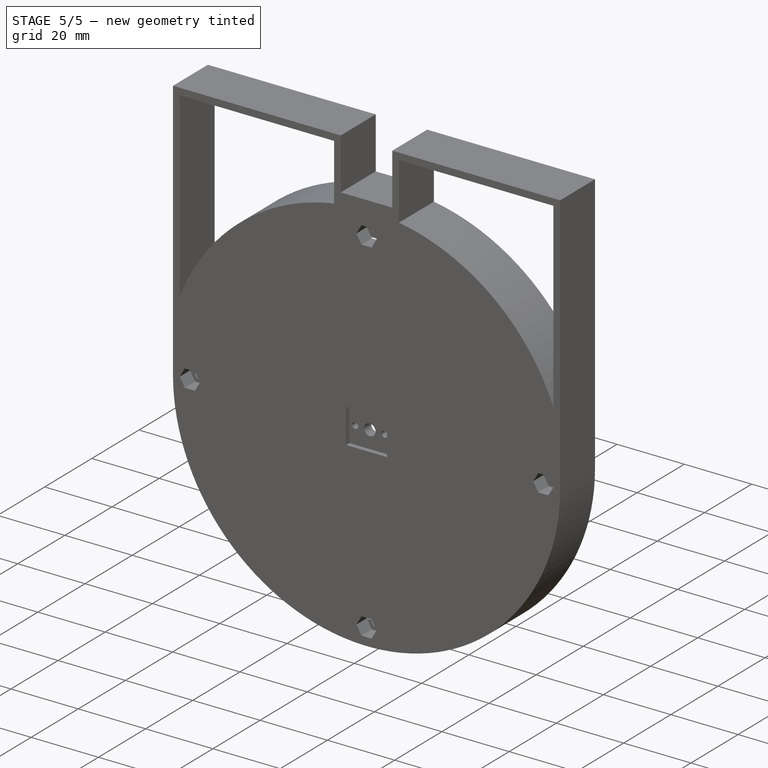
[diagram: stage 5 of 5 — iso view after this stage's code; geometry added in this stage tinted green]
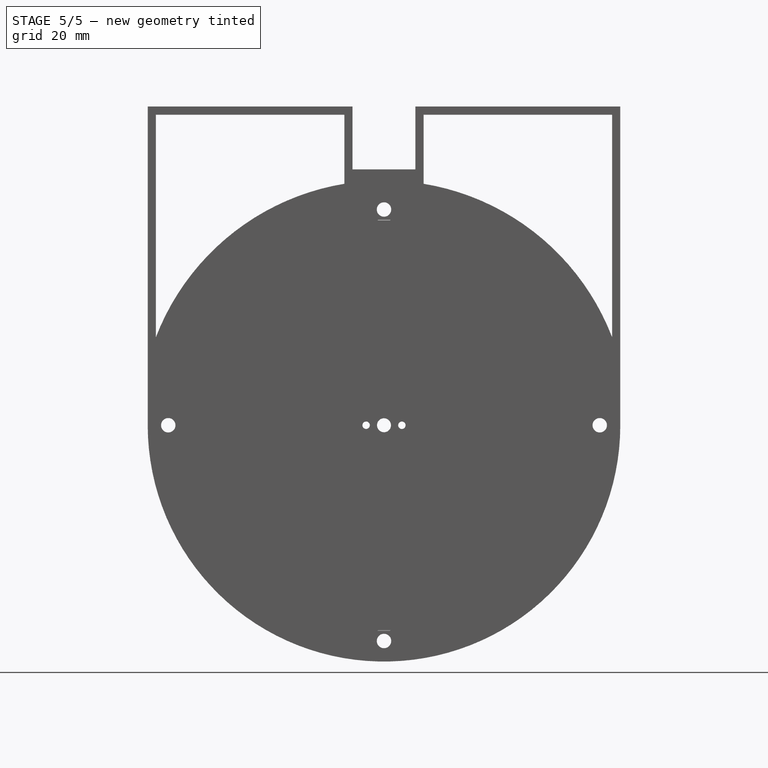
[diagram: stage 5 of 5 — front view after this stage's code; geometry added in this stage tinted green]
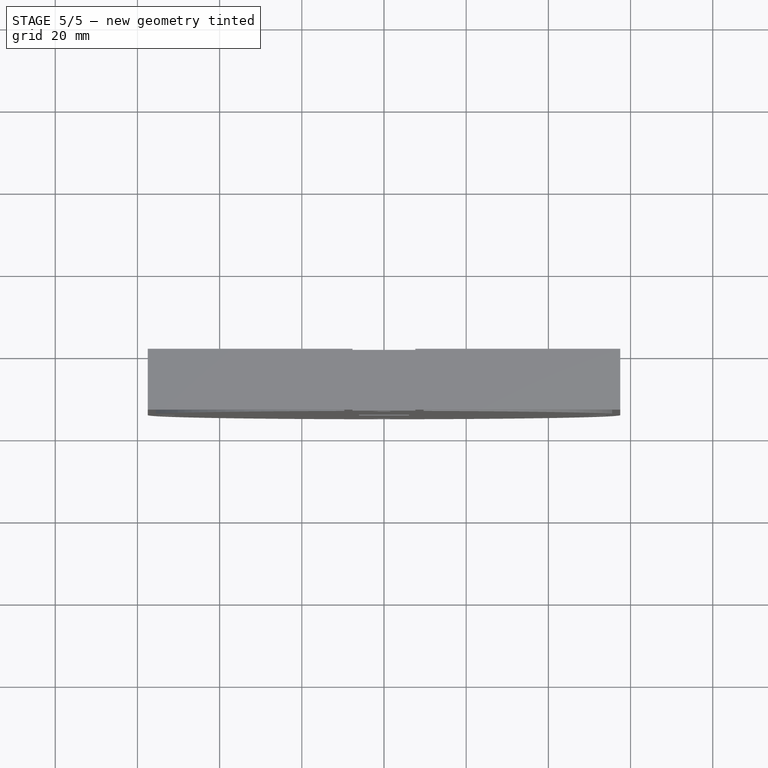
[diagram: stage 5 of 5 — top view after this stage's code; geometry added in this stage tinted green]
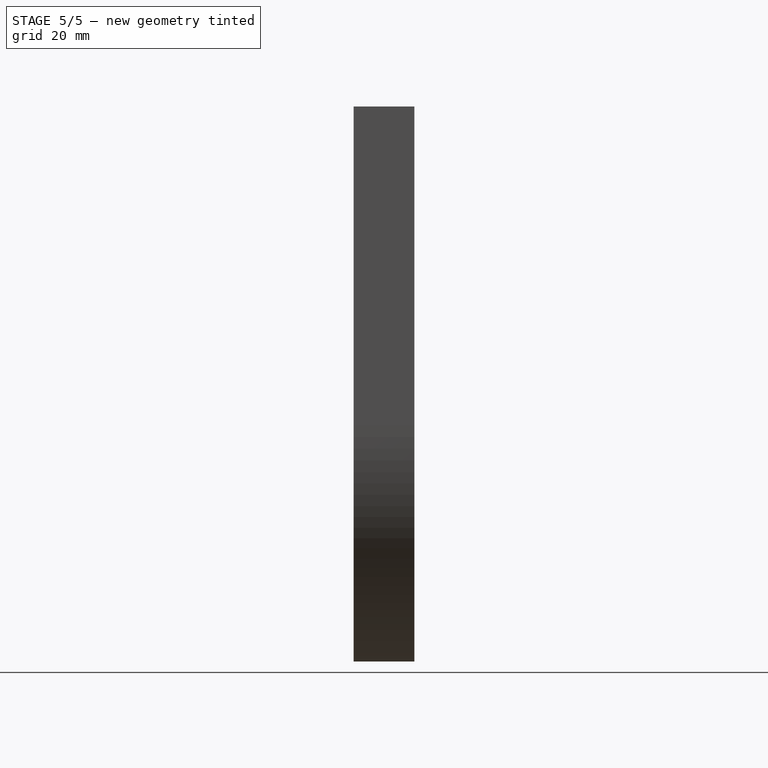
[diagram: stage 5 of 5 — right view after this stage's code; geometry added in this stage tinted green]
FEATURE [PartDesign::ShapeBinder] CopyPolarPattern002
  Placement = pos=(0,0,0) rot=(1,0,0;1.5708rad)
  TraceSupport = false
FEATURE [PartDesign::Plane] DatumPlane001
  AttachmentSupport = -> [CopyPolarPattern002]
  Length = 257.4
  MapMode = 5
  Placement = pos=(0,-10,6.7e-15) rot=(1,0,0;1.5708rad)
  ResizeMode = 0
  Width = 257.4
FEATURE [Part::Part2DObjectPython] ShapeString002  # Draft 2D object (typed FeaturePython)
  FontFile = <userpath>/Documents/DV_Projects/8_Cycloidal_gearbox_paper/0_Modelling_FILES/V 0_000/OpenSans-Regular.ttf
  Fuse = false
  Justification = 7
  JustificationReference = 1
  KeepLeftMargin = false
  MakeFace = true
  ObliqueAngle = 0
  Placement = pos=(-18.3,-51.06,0) rot=(0,0,-1;0.314159rad)
  ScaleToSize = true
  Size = 3
  String = 0
  Tracking = 0
FEATURE [Sketcher::SketchObject] Sketch001
  ArcFitTolerance = 1e-06
  AttachmentSupport = -> [XZ_Plane001]
  FullyConstrained = false
  MakeInternals = false
  MapMode = 5
  Placement = pos=(0,0,0) rot=(1,0,0;1.5708rad)
  sketch-geometry (5):
    g0: GeomPoint X=0 Y=0 Z=0
    g1: ArcOfCircle CenterX=0 CenterY=0 CenterZ=0 NormalX=0 NormalY=0 NormalZ=1 AngleXU=0 Radius=50 StartAngle=0.0960369 EndAngle=6.18715
    g2: ArcOfCircle CenterX=50 CenterY=0 CenterZ=0 NormalX=0 NormalY=0 NormalZ=1 AngleXU=0 Radius=4.8 StartAngle=1.61881 EndAngle=4.66437
    g3: Circle CenterX=0 CenterY=0 CenterZ=0 NormalX=0 NormalY=0 NormalZ=1 AngleXU=0 Radius=55
    g4: Circle [constr] CenterX=-49.9999 CenterY=-0.118804 CenterZ=0 NormalX=0 NormalY=0 NormalZ=1 AngleXU=0 Radius=5
  constraints (13):
    c: PointOnObject(g0,g-1)
    c: Diameter(g1) = 100
    c: Coincident(g1,g0)
    c: DistanceX(g0,g-1) = 0
    c: PointOnObject(g2,g1)
    c: Diameter(g2) = 9.6
    c: Coincident(g1,g2)
    c: Coincident(g1,g2)
    c: Diameter(g3) = 110
    c: Coincident(g3,g0)
    c: Diameter(g4) = 10
    c: PointOnObject(g4,g1)
    c: PointOnObject(g2,g-1)
FEATURE [PartDesign::Pad] Pad001  label="HERE m(1-x)-rc"
  Direction = (0,-1,2e-16)
  Length = 10
  Length2 = 10
  Placement = pos=(0,0,0) rot=(1,0,0;1.5708rad)
  Profile = -> Sketch001
  ReferenceAxis = -> Sketch001 [N_Axis]
  Refine = true
  Suppressed = false
  Type = 0
FEATURE [PartDesign::PolarPattern] PolarPattern001
  Angle = 360
  Axis = -> Sketch001 [N_Axis]
  BaseFeature = -> Pad001
  Mode = 0
  Occurrences = 10
  Offset = 120
  Originals = -> [Pad001]
  Placement = pos=(0,0,0) rot=(1,0,0;1.5708rad)
  Refine = true
  Suppressed = false
  TransformMode = 0
FEATURE [PartDesign::Plane] DatumPlane
  AttachmentSupport = -> [PolarPattern001]
  Length = 60
  MapMode = 5
  Placement = pos=(0,-10,2.2e-15) rot=(1,0,0;1.5708rad)
  ResizeMode = 0
  Width = 60
FEATURE [Sketcher::SketchObject] Sketch002
  ArcFitTolerance = 1e-06
  AttachmentSupport = -> [DatumPlane]
  ExternalGeometry = -> [PolarPattern001]
  FullyConstrained = true
  MakeInternals = false
  MapMode = 5
  Placement = pos=(0,-10,2.2e-15) rot=(1,0,0;1.5708rad)
  sketch-geometry (6):
    g0: Circle CenterX=0 CenterY=0 CenterZ=0 NormalX=0 NormalY=0 NormalZ=1 AngleXU=0 Radius=55
    g1: Circle [constr] CenterX=0 CenterY=0 CenterZ=0 NormalX=0 NormalY=0 NormalZ=1 AngleXU=0 Radius=50
    g2: GeomPoint X=50 Y=0 Z=0
    g3: LineSegment [constr] StartX=50 StartY=0 StartZ=0 EndX=55 EndY=0 EndZ=0
    g4: GeomPoint [constr] X=52.5 Y=0 Z=0
    g5: Circle CenterX=0 CenterY=0 CenterZ=0 NormalX=0 NormalY=0 NormalZ=1 AngleXU=0 Radius=52.5
  constraints (11):
    c: Coincident(g0,g-1)
    c: PointOnObject(g-3,g0)
    c: Coincident(g1,g0)
    c: PointOnObject(g-4,g1)
    c: PointOnObject(g2,g1)
    c: Coincident(g3,g2)
    c: Coincident(g3,g-3)
    c: Horizontal(g3)
    c: Symmetric(g3,g3,g4)
    c: Coincident(g5,g0)
    c: PointOnObject(g4,g5)
FEATURE [PartDesign::Pocket] Pocket001
  BaseFeature = -> PolarPattern001
  Direction = (0,1,-2e-16)
  Length = 3
  Length2 = 5
  Placement = pos=(0,0,0) rot=(1,0,0;1.5708rad)
  Profile = -> Sketch002
  ReferenceAxis = -> Sketch002 [N_Axis]
  Refine = true
  Suppressed = false
  Type = 0
FEATURE [Sketcher::SketchObject] Sketch003
  ArcFitTolerance = 1e-06
  AttachmentSupport = -> [DatumPlane]
  ExternalGeometry = -> [Pocket001]
  FullyConstrained = true
  MakeInternals = false
  MapMode = 5
  Placement = pos=(0,-10,2.2e-15) rot=(1,0,0;1.5708rad)
  sketch-geometry (1):
    g0: Circle CenterX=52.5 CenterY=0 CenterZ=0 NormalX=0 NormalY=0 NormalZ=1 AngleXU=0 Radius=1.75
  constraints (3):
    c: Diameter(g0) = 3.5
    c: PointOnObject(g0,g-1)
    c: PointOnObject(g0,g-3)
FEATURE [PartDesign::Pocket] Pocket002
  BaseFeature = -> Pocket001
  Direction = (0,1,-2e-16)
  Length = 5
  Length2 = 5
  Midplane = true
  Placement = pos=(0,0,0) rot=(1,0,0;1.5708rad)
  Profile = -> Sketch003
  ReferenceAxis = -> Sketch003 [N_Axis]
  Refine = true
  Suppressed = false
  Type = 1
FEATURE [PartDesign::PolarPattern] PolarPattern002
  Angle = 360
  Axis = -> Sketch003 [N_Axis]
  BaseFeature = -> Pocket002
  Mode = 0
  Occurrences = 4
  Offset = 120
  Originals = -> [Pocket002]
  Placement = pos=(0,0,0) rot=(1,0,0;1.5708rad)
  Refine = true
  Suppressed = false
  TransformMode = 0
FEATURE [Sketcher::SketchObject] Sketch004
  ArcFitTolerance = 1e-06
  AttachmentSupport = -> [DatumPlane001]
  FullyConstrained = true
  MakeInternals = false
  MapMode = 5
  Placement = pos=(0,-10,6.7e-15) rot=(1,0,0;1.5708rad)
  sketch-geometry (4):
    g0: Circle [constr] CenterX=0 CenterY=0 CenterZ=0 NormalX=0 NormalY=0 NormalZ=1 AngleXU=0 Radius=52.7
    g1: Circle [constr] CenterX=0 CenterY=0 CenterZ=0 NormalX=0 NormalY=0 NormalZ=1 AngleXU=0 Radius=55
    g2: Circle CenterX=0 CenterY=0 CenterZ=0 NormalX=0 NormalY=0 NormalZ=1 AngleXU=0 Radius=57.5
    g3: Circle CenterX=0 CenterY=0 CenterZ=0 NormalX=0 NormalY=0 NormalZ=1 AngleXU=0 Radius=50.2
  constraints (8):
    c: Diameter(g0) = 105.4
    c: Coincident(g0,g-1)
    c: Diameter(g1) = 110
    c: Coincident(g1,g0)
    c: Diameter(g2) = 115
    c: Coincident(g2,g0)
    c: Diameter(g3) = 100.4
    c: Coincident(g3,g0)
FEATURE [PartDesign::Pad] Pad002
  Direction = (0,-1,2e-16)
  Length = 10
  Length2 = 10
  Placement = pos=(0,-10,6.7e-15) rot=(1,0,0;1.5708rad)
  Profile = -> Sketch004
  ReferenceAxis = -> Sketch004 [N_Axis]
  Refine = true
  Reversed = true
  Suppressed = false
  Type = 0
FEATURE [Sketcher::SketchObject] Sketch005
  ArcFitTolerance = 1e-06
  AttachmentSupport = -> [DatumPlane001]
  FullyConstrained = true
  MakeInternals = false
  MapMode = 5
  Placement = pos=(0,-10,6.7e-15) rot=(1,0,0;1.5708rad)
  sketch-geometry (2):
    g0: Circle CenterX=0 CenterY=0 CenterZ=0 NormalX=0 NormalY=0 NormalZ=1 AngleXU=0 Radius=52.7
    g1: Circle CenterX=0 CenterY=0 CenterZ=0 NormalX=0 NormalY=0 NormalZ=1 AngleXU=0 Radius=57.5
  constraints (4):
    c: Diameter(g0) = 105.4
    c: Coincident(g0,g-1)
    c: Diameter(g1) = 115
    c: Coincident(g1,g0)
FEATURE [PartDesign::Pad] Pad003
  BaseFeature = -> Pad002
  Direction = (0,-1,2e-16)
  Length = 10
  Length2 = 10
  Placement = pos=(0,-10,6.7e-15) rot=(1,0,0;1.5708rad)
  Profile = -> Sketch005
  ReferenceAxis = -> Sketch005 [N_Axis]
  Refine = true
  Reversed = true
  Suppressed = false
  Type = 0
FEATURE [Sketcher::SketchObject] Sketch006
  ArcFitTolerance = 1e-06
  AttachmentSupport = -> [PolarPattern002]
  FullyConstrained = false
  MakeInternals = false
  MapMode = 5
  Placement = pos=(0,-10,2.2e-15) rot=(1,0,0;1.5708rad)
  sketch-geometry (2):
    g0: Circle CenterX=0 CenterY=0 CenterZ=0 NormalX=0 NormalY=0 NormalZ=1 AngleXU=0 Radius=45.6306
    g1: Circle CenterX=0 CenterY=0 CenterZ=0 NormalX=0 NormalY=0 NormalZ=1 AngleXU=0 Radius=55.2
  constraints (3):
    c: Coincident(g0,g-1)
    c: Diameter(g1) = 110.4
    c: Coincident(g1,g0)
FEATURE [PartDesign::Pocket] Pocket003
  BaseFeature = -> Pad003
  Direction = (0,1,-2e-16)
  Length = 3
  Length2 = 5
  Placement = pos=(0,-10,6.7e-15) rot=(1,0,0;1.5708rad)
  Profile = -> Sketch006
  ReferenceAxis = -> Sketch006 [N_Axis]
  Refine = true
  Suppressed = false
  Type = 1
FEATURE [Sketcher::SketchObject] Sketch007
  ArcFitTolerance = 1e-06
  AttachmentSupport = -> [Pocket003]
  ExternalGeometry = -> [Pocket003]
  FullyConstrained = false
  MakeInternals = false
  MapMode = 5
  Placement = pos=(0,-10,6.7e-15) rot=(1,0,0;1.5708rad)
  sketch-geometry (2):
    g0: Circle CenterX=0 CenterY=0 CenterZ=0 NormalX=0 NormalY=0 NormalZ=1 AngleXU=0 Radius=55.2
    g1: Circle CenterX=0 CenterY=0 CenterZ=0 NormalX=0 NormalY=0 NormalZ=1 AngleXU=0 Radius=52.7
  constraints (3):
    c: Coincident(g0,g-1)
    c: Diameter(g1) = 105.4
    c: Coincident(g1,g0)
FEATURE [PartDesign::Pad] Pad004
  BaseFeature = -> Pocket003
  Direction = (0,-1,2e-16)
  Length = 2.6
  Length2 = 10
  Placement = pos=(0,-10,6.7e-15) rot=(1,0,0;1.5708rad)
  Profile = -> Sketch007
  ReferenceAxis = -> Sketch007 [N_Axis]
  Refine = true
  Reversed = true
  Suppressed = false
  Type = 0
FEATURE [Sketcher::SketchObject] Sketch009
  ArcFitTolerance = 1e-06
  AttachmentSupport = -> [Pad004]
  ExternalGeometry = -> [Pad004]
  FullyConstrained = false
  MakeInternals = false
  MapMode = 5
  Placement = pos=(0,-10,6.7e-15) rot=(1,0,0;1.5708rad)
  sketch-geometry (2):
    g0: Circle CenterX=0 CenterY=0 CenterZ=0 NormalX=0 NormalY=0 NormalZ=1 AngleXU=0 Radius=52.7
    g1: Circle CenterX=0 CenterY=0 CenterZ=0 NormalX=0 NormalY=0 NormalZ=1 AngleXU=0 Radius=57.5
  constraints (2):
    c: Coincident(g0,g-1)
    c: Coincident(g1,g0)
FEATURE [PartDesign::Pad] Pad005
  BaseFeature = -> Pad004
  Direction = (0,-1,2e-16)
  Length = 0.4
  Length2 = 10
  Placement = pos=(0,-10,6.7e-15) rot=(1,0,0;1.5708rad)
  Profile = -> Sketch009
  ReferenceAxis = -> Sketch009 [N_Axis]
  Refine = true
  Suppressed = false
  Type = 0
FEATURE [Sketcher::SketchObject] Sketch010
  ArcFitTolerance = 1e-06
  AttachmentSupport = -> [Pad005]
  FullyConstrained = true
  MakeInternals = false
  MapMode = 5
  Placement = pos=(0,-10.4,6.9e-15) rot=(1,0,0;1.5708rad)
  sketch-geometry (4):
    g0: Circle CenterX=0 CenterY=-52.5 CenterZ=0 NormalX=0 NormalY=0 NormalZ=1 AngleXU=0 Radius=1.75
    g1: Circle CenterX=-52.5 CenterY=0 CenterZ=0 NormalX=0 NormalY=0 NormalZ=1 AngleXU=0 Radius=1.75
    g2: Circle CenterX=0 CenterY=52.5 CenterZ=0 NormalX=0 NormalY=0 NormalZ=1 AngleXU=0 Radius=1.75
    g3: Circle CenterX=52.5 CenterY=0 CenterZ=0 NormalX=0 NormalY=0 NormalZ=1 AngleXU=0 Radius=1.75
  constraints (12):
    c: PointOnObject(g0,g-2)
    c: Diameter(g0) = 3.5
    c: DistanceY(g0,g-1) = 52.5
    c: Diameter(g1) = 3.5
    c: PointOnObject(g1,g-1)
    c: Diameter(g2) = 3.5
    c: PointOnObject(g2,g-2)
    c: Diameter(g3) = 3.5
    c: PointOnObject(g3,g-1)
    c: DistanceX(g1,g-1) = 52.5
    c: DistanceX(g-1,g3) = 52.5
    c: DistanceY(g-1,g2) = 52.5
FEATURE [PartDesign::Pocket] Pocket004
  BaseFeature = -> Pad005
  Direction = (0,1,-2e-16)
  Length = 5
  Length2 = 5
  Placement = pos=(0,-10,6.7e-15) rot=(1,0,0;1.5708rad)
  Profile = -> Sketch010
  ReferenceAxis = -> Sketch010 [N_Axis]
  Refine = true
  Suppressed = false
  Type = 0
FEATURE [Sketcher::SketchObject] Sketch011
  ArcFitTolerance = 1e-06
  AttachmentSupport = -> [Pocket004]
  ExternalGeometry = -> [Pocket004]
  FullyConstrained = false
  MakeInternals = false
  MapMode = 5
  Placement = pos=(0,-10.4,6.9e-15) rot=(1,0,0;1.5708rad)
  sketch-geometry (29):
    g0: LineSegment StartX=3 StartY=-52.5 StartZ=0 EndX=1.5 EndY=-49.9019 EndZ=0
    g1: LineSegment StartX=1.5 StartY=-49.9019 StartZ=0 EndX=-1.5 EndY=-49.9019 EndZ=0
    g2: LineSegment StartX=-1.5 StartY=-49.9019 StartZ=0 EndX=-3 EndY=-52.5 EndZ=0
    g3: LineSegment StartX=-3 StartY=-52.5 StartZ=0 EndX=-1.5 EndY=-55.0981 EndZ=0
    g4: LineSegment StartX=-1.5 StartY=-55.0981 StartZ=0 EndX=1.5 EndY=-55.0981 EndZ=0
    g5: LineSegment StartX=1.5 StartY=-55.0981 StartZ=0 EndX=3 EndY=-52.5 EndZ=0
    g6: Circle [constr] CenterX=0 CenterY=-52.5 CenterZ=0 NormalX=0 NormalY=0 NormalZ=1 AngleXU=0 Radius=3
    g7: LineSegment StartX=3 StartY=52.5 StartZ=0 EndX=1.5 EndY=55.0981 EndZ=0
    g8: LineSegment StartX=1.5 StartY=55.0981 StartZ=0 EndX=-1.5 EndY=55.0981 EndZ=0
    g9: LineSegment StartX=-1.5 StartY=55.0981 StartZ=0 EndX=-3 EndY=52.5 EndZ=0
    g10: LineSegment StartX=-3 StartY=52.5 StartZ=0 EndX=-1.5 EndY=49.9019 EndZ=0
    g11: LineSegment StartX=-1.5 StartY=49.9019 StartZ=0 EndX=1.5 EndY=49.9019 EndZ=0
    g12: LineSegment StartX=1.5 StartY=49.9019 StartZ=0 EndX=3 EndY=52.5 EndZ=0
    g13: Circle [constr] CenterX=0 CenterY=52.5 CenterZ=0 NormalX=0 NormalY=0 NormalZ=1 AngleXU=0 Radius=3
    g14: LineSegment StartX=-49.5 StartY=1e-16 StartZ=0 EndX=-51 EndY=2.59808 EndZ=0
    g15: LineSegment StartX=-51 StartY=2.59808 StartZ=0 EndX=-54 EndY=2.59808 EndZ=0
    g16: LineSegment StartX=-54 StartY=2.59808 StartZ=0 EndX=-55.5 EndY=-1e-16 EndZ=0
    g17: LineSegment StartX=-55.5 StartY=-1e-16 StartZ=0 EndX=-54 EndY=-2.59808 EndZ=0
    g18: LineSegment StartX=-54 StartY=-2.59808 StartZ=0 EndX=-51 EndY=-2.59808 EndZ=0
    g19: LineSegment StartX=-51 StartY=-2.59808 StartZ=0 EndX=-49.5 EndY=1e-16 EndZ=0
    g20: Circle [constr] CenterX=-52.5 CenterY=0 CenterZ=0 NormalX=0 NormalY=0 NormalZ=1 AngleXU=0 Radius=3
    g21: LineSegment StartX=55.5 StartY=1e-16 StartZ=0 EndX=54 EndY=2.59808 EndZ=0
    g22: LineSegment StartX=54 StartY=2.59808 StartZ=0 EndX=51 EndY=2.59808 EndZ=0
    g23: LineSegment StartX=51 StartY=2.59808 StartZ=0 EndX=49.5 EndY=-1e-16 EndZ=0
    g24: LineSegment StartX=49.5 StartY=-1e-16 StartZ=0 EndX=51 EndY=-2.59808 EndZ=0
    g25: LineSegment StartX=51 StartY=-2.59808 StartZ=0 EndX=54 EndY=-2.59808 EndZ=0
    g26: LineSegment StartX=54 StartY=-2.59808 StartZ=0 EndX=55.5 EndY=1e-16 EndZ=0
    g27: Circle [constr] CenterX=52.5 CenterY=0 CenterZ=0 NormalX=0 NormalY=0 NormalZ=1 AngleXU=0 Radius=3
    g28: Circle CenterX=0 CenterY=0 CenterZ=0 NormalX=0 NormalY=0 NormalZ=1 AngleXU=0 Radius=57.5
  constraints (64):
    c: Coincident(g0,g1)
    c: Coincident(g1,g2)
    c: Coincident(g2,g3)
    c: Coincident(g3,g4)
    c: Coincident(g4,g5)
    c: Coincident(g5,g0)
    c: Equal(g0, g1-g5) x5
    c: PointOnObject(g0,g6)
    c: PointOnObject(g1,g6)
    c: PointOnObject(g2,g6)
    c: PointOnObject(g3,g6)
    c: PointOnObject(g4,g6)
    c: PointOnObject(g5,g6)
    c: PointOnObject(g6,g-2)
    c: Diameter(g6) = 6
    c: Horizontal(g4)
    c: Coincident(g7,g8)
    c: Coincident(g8,g9)
    c: Coincident(g9,g10)
    c: Coincident(g10,g11)
    c: Coincident(g11,g12)
    c: Coincident(g12,g7)
    c: Equal(g7, g8-g12) x5
    c: PointOnObject(g7,g13)
    c: PointOnObject(g8,g13)
    c: PointOnObject(g9,g13)
    c: PointOnObject(g10,g13)
    c: PointOnObject(g11,g13)
    c: PointOnObject(g12,g13)
    c: Radius(g13) = 3
    c: PointOnObject(g13,g-2)
    c: Coincident(g14,g15)
    c: Coincident(g15,g16)
    c: Coincident(g16,g17)
    c: Coincident(g17,g18)
    c: Coincident(g18,g19)
    c: Coincident(g19,g14)
    c: Equal(g14, g15-g19) x5
    c: PointOnObject(g14,g20)
    c: PointOnObject(g15,g20)
    c: PointOnObject(g16,g20)
    c: PointOnObject(g17,g20)
    c: PointOnObject(g18,g20)
    c: PointOnObject(g19,g20)
    c: Radius(g20) = 3
    c: PointOnObject(g20,g-1)
    c: PointOnObject(g19,g-1)
    c: Coincident(g21,g22)
    c: Coincident(g22,g23)
    c: Coincident(g23,g24)
    c: Coincident(g24,g25)
    c: Coincident(g25,g26)
    c: Coincident(g26,g21)
    c: Equal(g21, g22-g26) x5
    c: PointOnObject(g21,g27)
    c: PointOnObject(g22,g27)
    c: PointOnObject(g23,g27)
    c: PointOnObject(g24,g27)
    c: PointOnObject(g25,g27)
    c: PointOnObject(g26,g27)
    c: Radius(g27) = 3
    c: PointOnObject(g27,g-1)
    c: Horizontal(g25)
    c: Coincident(g28,g-1)
FEATURE [PartDesign::Pad] Pad006
  BaseFeature = -> Pocket004
  Direction = (0,-1,2e-16)
  Length = 4.4
  Length2 = 10
  Placement = pos=(0,-10,6.7e-15) rot=(1,0,0;1.5708rad)
  Profile = -> Sketch011
  ReferenceAxis = -> Sketch011 [N_Axis]
  Refine = true
  Suppressed = false
  Type = 0
FEATURE [Sketcher::SketchObject] Sketch012
  ArcFitTolerance = 1e-06
  AttachmentSupport = -> [Pad006]
  FullyConstrained = true
  MakeInternals = false
  MapMode = 5
  Placement = pos=(0,-14.8,7.3e-15) rot=(1,0,0;1.5708rad)
  sketch-geometry (5):
    g0: LineSegment StartX=6.09 StartY=5.145 StartZ=0 EndX=-6.09 EndY=5.145 EndZ=0
    g1: LineSegment StartX=-6.09 StartY=5.145 StartZ=0 EndX=-6.09 EndY=-5.145 EndZ=0
    g2: LineSegment StartX=-6.09 StartY=-5.145 StartZ=0 EndX=6.09 EndY=-5.145 EndZ=0
    g3: LineSegment StartX=6.09 StartY=-5.145 StartZ=0 EndX=6.09 EndY=5.145 EndZ=0
    g4: GeomPoint [constr] X=0 Y=0 Z=0
  constraints (12):
    c: Coincident(g0,g1)
    c: Coincident(g1,g2)
    c: Coincident(g2,g3)
    c: Coincident(g3,g0)
    c: Horizontal(g0)
    c: Horizontal(g2)
    c: Vertical(g1)
    c: Vertical(g3)
    c: Symmetric(g2,g0,g4)
    c: Distance(g2,g2) = 12.18
    c: Distance(g3,g3) = 10.29
    c: Coincident(g4,g-1)
FEATURE [PartDesign::Pocket] Pocket005
  BaseFeature = -> Pad006
  Direction = (0,1,-2e-16)
  Length = 1.4
  Length2 = 5
  Placement = pos=(0,-10,6.7e-15) rot=(1,0,0;1.5708rad)
  Profile = -> Sketch012
  ReferenceAxis = -> Sketch012 [N_Axis]
  Refine = true
  Suppressed = false
  Type = 0
FEATURE [Sketcher::SketchObject] Sketch013
  ArcFitTolerance = 1e-06
  AttachmentSupport = -> [Pocket005]
  FullyConstrained = true
  MakeInternals = false
  MapMode = 5
  Placement = pos=(0,-14.8,7.8e-15) rot=(1,0,0;1.5708rad)
  sketch-geometry (1):
    g0: Circle CenterX=0 CenterY=0 CenterZ=0 NormalX=0 NormalY=0 NormalZ=1 AngleXU=0 Radius=1.7
  constraints (2):
    c: Coincident(g0,g-1)
    c: Diameter(g0) = 3.4
FEATURE [PartDesign::Pocket] Pocket006
  BaseFeature = -> Pocket005
  Direction = (0,1,-2e-16)
  Length = 5
  Length2 = 5
  Placement = pos=(0,-10,6.7e-15) rot=(1,0,0;1.5708rad)
  Profile = -> Sketch013
  ReferenceAxis = -> Sketch013 [N_Axis]
  Refine = true
  Suppressed = false
  Type = 1
FEATURE [Sketcher::SketchObject] Sketch014
  ArcFitTolerance = 1e-06
  AttachmentSupport = -> [Pocket006]
  FullyConstrained = true
  MakeInternals = false
  MapMode = 5
  Placement = pos=(0,-14.8,8.3e-15) rot=(1,0,0;1.5708rad)
  sketch-geometry (4):
    g0: Circle CenterX=-4.35 CenterY=0 CenterZ=0 NormalX=0 NormalY=0 NormalZ=1 AngleXU=0 Radius=0.9
    g1: Circle CenterX=4.35 CenterY=0 CenterZ=0 NormalX=0 NormalY=0 NormalZ=1 AngleXU=0 Radius=0.9
    g2: GeomPoint [constr] X=-5.25 Y=0 Z=0
    g3: GeomPoint [constr] X=5.25 Y=0 Z=0
  constraints (9):
    c: PointOnObject(g0,g-1)
    c: Diameter(g0) = 1.8
    c: PointOnObject(g2,g0)
    c: PointOnObject(g3,g1)
    c: PointOnObject(g3,g-1)
    c: PointOnObject(g2,g-1)
    c: DistanceX(g2,g3) = 10.5
    c: Symmetric(g0,g1,g-1)
    c: Equal(g1,g0)
FEATURE [PartDesign::Pocket] Pocket007
  BaseFeature = -> Pocket006
  Direction = (0,1,-2e-16)
  Length = 5
  Length2 = 5
  Placement = pos=(0,-10,6.7e-15) rot=(1,0,0;1.5708rad)
  Profile = -> Sketch014
  ReferenceAxis = -> Sketch014 [N_Axis]
  Refine = true
  Suppressed = false
  Type = 1
FEATURE [Sketcher::SketchObject] Sketch015
  ArcFitTolerance = 1e-06
  AttachmentSupport = -> [Pocket007]
  ExternalGeometry = -> [Pocket007]
  FullyConstrained = true
  MakeInternals = false
  MapMode = 5
  Placement = pos=(0,-10.4,6.9e-15) rot=(-1,0,0;1.5708rad)
  sketch-geometry (2):
    g0: Circle CenterX=-4.35 CenterY=0 CenterZ=0 NormalX=0 NormalY=0 NormalZ=1 AngleXU=0 Radius=1.55
    g1: Circle CenterX=4.35 CenterY=0 CenterZ=0 NormalX=0 NormalY=0 NormalZ=1 AngleXU=0 Radius=1.55
  constraints (4):
    c: Coincident(g0,g-3)
    c: Coincident(g1,g-4)
    c: Diameter(g0) = 3.1
    c: Equal(g0,g1)
FEATURE [PartDesign::Pocket] Pocket008
  BaseFeature = -> Pocket007
  Direction = (0,-1,-2e-16)
  Length = 1
  Length2 = 5
  Placement = pos=(0,-10,6.7e-15) rot=(1,0,0;1.5708rad)
  Profile = -> Sketch015
  ReferenceAxis = -> Sketch015 [N_Axis]
  Refine = true
  Suppressed = false
  Type = 0
FEATURE [Sketcher::SketchObject] Sketch016
  ArcFitTolerance = 1e-06
  AttachmentSupport = -> [Pocket008]
  ExternalGeometry = -> [Pocket008]
  FullyConstrained = false
  MakeInternals = false
  MapMode = 5
  Placement = pos=(0,3.6e-15,-5.5e-15) rot=(-1,0,0;1.5708rad)
  sketch-geometry (28):
    g0: GeomPoint [constr] X=0 Y=-57.5 Z=0
    g1: LineSegment [constr] StartX=-4.43558 StartY=-57.5 StartZ=0 EndX=4.43558 EndY=-57.5 EndZ=0
    g2: LineSegment [constr] StartX=-4.43558 StartY=-57.5 StartZ=0 EndX=-7.65 EndY=-59.66 EndZ=0
    g3: LineSegment [constr] StartX=-7.65 StartY=-59.66 StartZ=0 EndX=-7.65 EndY=-62.26 EndZ=0
    g4: LineSegment [constr] StartX=-7.65 StartY=-62.26 StartZ=0 EndX=7.65 EndY=-62.26 EndZ=0
    g5: GeomPoint X=1.1e-15 Y=-62.26 Z=0
    g6: GeomPoint X=1.1e-15 Y=-62.26 Z=0
    g7: LineSegment [constr] StartX=4.43558 StartY=-57.5 StartZ=0 EndX=7.65 EndY=-59.66 EndZ=0
    g8: LineSegment [constr] StartX=7.65 StartY=-59.66 StartZ=0 EndX=7.65 EndY=-62.26 EndZ=0
    g9: GeomPoint [constr] X=0 Y=-57.5 Z=0
    g10: LineSegment StartX=-7.65 StartY=-62.26 StartZ=0 EndX=7.65 EndY=-62.26 EndZ=0
    g11: LineSegment StartX=7.65 StartY=-62.26 StartZ=0 EndX=7.65 EndY=-77.56 EndZ=0
    g12: LineSegment StartX=-7.65 StartY=-62.26 StartZ=0 EndX=-7.65 EndY=-77.56 EndZ=0
    g13: GeomPoint [constr] X=-57.5 Y=0 Z=0
    g14: GeomPoint [constr] X=57.5 Y=-1.41e-14 Z=0
    g15: LineSegment StartX=-57.5 StartY=0 StartZ=0 EndX=-57.5 EndY=-77.56 EndZ=0
    g16: LineSegment StartX=57.5 StartY=-1.41e-14 StartZ=0 EndX=57.5 EndY=-77.56 EndZ=0
    g17: LineSegment StartX=-57.5 StartY=-77.56 StartZ=0 EndX=-7.65 EndY=-77.56 EndZ=0
    g18: LineSegment StartX=7.65 StartY=-77.56 StartZ=0 EndX=57.5 EndY=-77.56 EndZ=0
    g19: ArcOfCircle CenterX=0 CenterY=0 CenterZ=0 NormalX=0 NormalY=0 NormalZ=1 AngleXU=0 Radius=57.5 StartAngle=3.14159 EndAngle=6.28319
    g20: LineSegment StartX=9.64066 StartY=-58.7609 StartZ=0 EndX=9.65 EndY=-75.56 EndZ=0
    g21: LineSegment StartX=9.65 StartY=-75.56 StartZ=0 EndX=55.5 EndY=-75.56 EndZ=0
    g22: LineSegment StartX=55.5001 StartY=-21.4477 StartZ=0 EndX=55.5 EndY=-75.56 EndZ=0
    g23: ArcOfCircle CenterX=-0.0112221 CenterY=-0.0601961 CenterZ=0 NormalX=0 NormalY=0 NormalZ=1 AngleXU=0 Radius=59.4889 StartAngle=4.87536 EndAngle=5.91543
    g24: LineSegment StartX=-9.65 StartY=-75.56 StartZ=0 EndX=-55.5 EndY=-75.56 EndZ=0
    g25: LineSegment StartX=-9.64066 StartY=-58.7609 StartZ=0 EndX=-9.65 EndY=-75.56 EndZ=0
    g26: LineSegment StartX=-55.5001 StartY=-21.4477 StartZ=0 EndX=-55.5 EndY=-75.56 EndZ=0
    g27: ArcOfCircle CenterX=0.0112221 CenterY=-0.0601961 CenterZ=0 NormalX=0 NormalY=0 NormalZ=1 AngleXU=0 Radius=59.4889 StartAngle=3.50935 EndAngle=4.54942
  constraints (57):
    c: PointOnObject(g0,g-3)
    c: PointOnObject(g0,g-2)
    c: Distance(g2,g3) = 2.6
    c: Angle(g2,g3) = 0.97913
    c: Coincident(g4,g3)
    c: Coincident(g2,g3)
    c: Coincident(g1,g2)
    c: Symmetric(g4,g4,g5)
    c: Coincident(g6,g5)
    c: Coincident(g7,g1)
    c: Coincident(g8,g7)
    c: Coincident(g8,g4)
    c: Angle(g8,g7) = 0.97913
    c: Distance(g1,g4) = 4.76
    c: Distance(g3,g8) = 15.3
    c: Symmetric(g1,g1,g9)
    c: Horizontal(g1)
    c: Vertical(g8)
    c: Vertical(g3)
    c: Coincident(g10,g3)
    c: Coincident(g10,g4)
    c: Horizontal(g10)
    c: Distance(g11) = 15.3
    c: Vertical(g11)
    c: Coincident(g11,g4)
    c: Distance(g12) = 15.3
    c: Vertical(g12)
    c: Coincident(g12,g3)
    c: Coincident(g9,g0)
    c: Equal(g8,g3)
    c: PointOnObject(g13,g-3)
    c: PointOnObject(g14,g-3)
    c: PointOnObject(g13,g-1)
    c: PointOnObject(g14,g-1)
    c: Coincident(g15,g13)
    c: Vertical(g15)
    c: Horizontal(g15,g12)
    c: Horizontal(g16,g11)
    c: Vertical(g16)
    c: Coincident(g16,g14)
    c: Coincident(g17,g15)
    c: Coincident(g17,g12)
    c: Coincident(g18,g11)
    c: Coincident(g18,g16)
    c: Coincident(g19,g-1)
    c: Coincident(g19,g14)
    c: Coincident(g20,g21)
    c: Coincident(g21,g22)
    c: Coincident(g22,g23)
    c: PointOnObject(g20,g23)
    c: PointOnObject(g23,g20)
    c: Coincident(g25,g24)
    c: Coincident(g24,g26)
    c: Coincident(g26,g27)
    c: PointOnObject(g25,g27)
    c: PointOnObject(g27,g25)
    c: PointOnObject(g19,g-1)
FEATURE [PartDesign::Pad] Pad007
  BaseFeature = -> Pocket008
  Direction = (0,1,-1.1e-15)
  Length = 14.8
  Length2 = 10
  Placement = pos=(0,-10,6.7e-15) rot=(1,0,0;1.5708rad)
  Profile = -> Sketch016
  ReferenceAxis = -> Sketch016 [N_Axis]
  Refine = true
  Reversed = true
  Suppressed = false
  Type = 0
FEATURE [PartDesign::ShapeBinder] ReferencePad007
  Placement = pos=(0,-10,6.7e-15) rot=(1,0,0;1.5708rad)
  Support = -> [Pad007]
  TraceSupport = false
FEATURE [Sketcher::SketchObject] Sketch038
  ArcFitTolerance = 1e-06
  AttachmentSupport = -> [PolarPattern002]
  FullyConstrained = false
  MakeInternals = false
  MapMode = 5
  Placement = pos=(0,0,0) rot=(-1,0,0;1.5708rad)
  sketch-geometry (108):
    g0: BSplineCurve PolesCount=3 KnotsCount=2 Degree=2 IsPeriodic=0
    g1: BSplineCurve PolesCount=3 KnotsCount=2 Degree=2 IsPeriodic=0
    g2: BSplineCurve PolesCount=3 KnotsCount=2 Degree=2 IsPeriodic=0
    g3: BSplineCurve PolesCount=3 KnotsCount=2 Degree=2 IsPeriodic=0
    g4: BSplineCurve PolesCount=3 KnotsCount=2 Degree=2 IsPeriodic=0
    g5: BSplineCurve PolesCount=3 KnotsCount=2 Degree=2 IsPeriodic=0
    g6: BSplineCurve PolesCount=3 KnotsCount=2 Degree=2 IsPeriodic=0
    g7: BSplineCurve PolesCount=3 KnotsCount=2 Degree=2 IsPeriodic=0
    g8: BSplineCurve PolesCount=3 KnotsCount=2 Degree=2 IsPeriodic=0
    g9: BSplineCurve PolesCount=3 KnotsCount=2 Degree=2 IsPeriodic=0
    g10: BSplineCurve PolesCount=3 KnotsCount=2 Degree=2 IsPeriodic=0
    g11: BSplineCurve PolesCount=3 KnotsCount=2 Degree=2 IsPeriodic=0
    g12: BSplineCurve PolesCount=3 KnotsCount=2 Degree=2 IsPeriodic=0
    g13: BSplineCurve PolesCount=3 KnotsCount=2 Degree=2 IsPeriodic=0
    g14: BSplineCurve PolesCount=3 KnotsCount=2 Degree=2 IsPeriodic=0
    g15: BSplineCurve PolesCount=3 KnotsCount=2 Degree=2 IsPeriodic=0
    g16: BSplineCurve PolesCount=3 KnotsCount=2 Degree=2 IsPeriodic=0
    g17: BSplineCurve PolesCount=3 KnotsCount=2 Degree=2 IsPeriodic=0
    g18: BSplineCurve PolesCount=3 KnotsCount=2 Degree=2 IsPeriodic=0
    g19: BSplineCurve PolesCount=3 KnotsCount=2 Degree=2 IsPeriodic=0
    g20: BSplineCurve PolesCount=3 KnotsCount=2 Degree=2 IsPeriodic=0
    g21: BSplineCurve PolesCount=3 KnotsCount=2 Degree=2 IsPeriodic=0
    g22: BSplineCurve PolesCount=3 KnotsCount=2 Degree=2 IsPeriodic=0
    g23: BSplineCurve PolesCount=3 KnotsCount=2 Degree=2 IsPeriodic=0
    g24: BSplineCurve PolesCount=3 KnotsCount=2 Degree=2 IsPeriodic=0
    g25: BSplineCurve PolesCount=3 KnotsCount=2 Degree=2 IsPeriodic=0
    g26: BSplineCurve PolesCount=3 KnotsCount=2 Degree=2 IsPeriodic=0
    g27: BSplineCurve PolesCount=3 KnotsCount=2 Degree=2 IsPeriodic=0
    g28: BSplineCurve PolesCount=3 KnotsCount=2 Degree=2 IsPeriodic=0
    g29: BSplineCurve PolesCount=3 KnotsCount=2 Degree=2 IsPeriodic=0
    g30: BSplineCurve PolesCount=3 KnotsCount=2 Degree=2 IsPeriodic=0
    g31: BSplineCurve PolesCount=3 KnotsCount=2 Degree=2 IsPeriodic=0
    g32: BSplineCurve PolesCount=3 KnotsCount=2 Degree=2 IsPeriodic=0
    g33: BSplineCurve PolesCount=3 KnotsCount=2 Degree=2 IsPeriodic=0
    g34: BSplineCurve PolesCount=3 KnotsCount=2 Degree=2 IsPeriodic=0
    g35: BSplineCurve PolesCount=3 KnotsCount=2 Degree=2 IsPeriodic=0
    g36: BSplineCurve PolesCount=3 KnotsCount=2 Degree=2 IsPeriodic=0
    g37: BSplineCurve PolesCount=3 KnotsCount=2 Degree=2 IsPeriodic=0
    g38: BSplineCurve PolesCount=3 KnotsCount=2 Degree=2 IsPeriodic=0
    g39: BSplineCurve PolesCount=3 KnotsCount=2 Degree=2 IsPeriodic=0
    g40: BSplineCurve PolesCount=3 KnotsCount=2 Degree=2 IsPeriodic=0
    g41: BSplineCurve PolesCount=3 KnotsCount=2 Degree=2 IsPeriodic=0
    g42: BSplineCurve PolesCount=3 KnotsCount=2 Degree=2 IsPeriodic=0
    g43: BSplineCurve PolesCount=3 KnotsCount=2 Degree=2 IsPeriodic=0
    g44: BSplineCurve PolesCount=3 KnotsCount=2 Degree=2 IsPeriodic=0
    g45: BSplineCurve PolesCount=3 KnotsCount=2 Degree=2 IsPeriodic=0
    g46: BSplineCurve PolesCount=3 KnotsCount=2 Degree=2 IsPeriodic=0
    g47: BSplineCurve PolesCount=3 KnotsCount=2 Degree=2 IsPeriodic=0
    g48: BSplineCurve PolesCount=3 KnotsCount=2 Degree=2 IsPeriodic=0
    g49: BSplineCurve PolesCount=3 KnotsCount=2 Degree=2 IsPeriodic=0
    g50: BSplineCurve PolesCount=3 KnotsCount=2 Degree=2 IsPeriodic=0
    g51: BSplineCurve PolesCount=3 KnotsCount=2 Degree=2 IsPeriodic=0
    g52: BSplineCurve PolesCount=3 KnotsCount=2 Degree=2 IsPeriodic=0
    g53: BSplineCurve PolesCount=3 KnotsCount=2 Degree=2 IsPeriodic=0
    g54: BSplineCurve PolesCount=3 KnotsCount=2 Degree=2 IsPeriodic=0
    g55: BSplineCurve PolesCount=3 KnotsCount=2 Degree=2 IsPeriodic=0
    g56: BSplineCurve PolesCount=3 KnotsCount=2 Degree=2 IsPeriodic=0
    g57: BSplineCurve PolesCount=3 KnotsCount=2 Degree=2 IsPeriodic=0
    g58: BSplineCurve PolesCount=3 KnotsCount=2 Degree=2 IsPeriodic=0
    g59: BSplineCurve PolesCount=3 KnotsCount=2 Degree=2 IsPeriodic=0
    g60: BSplineCurve PolesCount=3 KnotsCount=2 Degree=2 IsPeriodic=0
    g61: BSplineCurve PolesCount=3 KnotsCount=2 Degree=2 IsPeriodic=0
    g62: BSplineCurve PolesCount=3 KnotsCount=2 Degree=2 IsPeriodic=0
    g63: BSplineCurve PolesCount=3 KnotsCount=2 Degree=2 IsPeriodic=0
    g64: BSplineCurve PolesCount=3 KnotsCount=2 Degree=2 IsPeriodic=0
    g65: BSplineCurve PolesCount=3 KnotsCount=2 Degree=2 IsPeriodic=0
    g66: BSplineCurve PolesCount=3 KnotsCount=2 Degree=2 IsPeriodic=0
    g67: BSplineCurve PolesCount=3 KnotsCount=2 Degree=2 IsPeriodic=0
    g68: BSplineCurve PolesCount=3 KnotsCount=2 Degree=2 IsPeriodic=0
    g69: BSplineCurve PolesCount=3 KnotsCount=2 Degree=2 IsPeriodic=0
    g70: BSplineCurve PolesCount=3 KnotsCount=2 Degree=2 IsPeriodic=0
    g71: BSplineCurve PolesCount=3 KnotsCount=2 Degree=2 IsPeriodic=0
    g72: BSplineCurve PolesCount=3 KnotsCount=2 Degree=2 IsPeriodic=0
    g73: BSplineCurve PolesCount=3 KnotsCount=2 Degree=2 IsPeriodic=0
    g74: BSplineCurve PolesCount=3 KnotsCount=2 Degree=2 IsPeriodic=0
    g75: BSplineCurve PolesCount=3 KnotsCount=2 Degree=2 IsPeriodic=0
    g76: BSplineCurve PolesCount=3 KnotsCount=2 Degree=2 IsPeriodic=0
    g77: BSplineCurve PolesCount=3 KnotsCount=2 Degree=2 IsPeriodic=0
    g78: BSplineCurve PolesCount=3 KnotsCount=2 Degree=2 IsPeriodic=0
    g79: BSplineCurve PolesCount=3 KnotsCount=2 Degree=2 IsPeriodic=0
    g80: BSplineCurve PolesCount=3 KnotsCount=2 Degree=2 IsPeriodic=0
    g81: BSplineCurve PolesCount=3 KnotsCount=2 Degree=2 IsPeriodic=0
    g82: BSplineCurve PolesCount=3 KnotsCount=2 Degree=2 IsPeriodic=0
    g83: BSplineCurve PolesCount=3 KnotsCount=2 Degree=2 IsPeriodic=0
    g84: BSplineCurve PolesCount=3 KnotsCount=2 Degree=2 IsPeriodic=0
    g85: BSplineCurve PolesCount=3 KnotsCount=2 Degree=2 IsPeriodic=0
    g86: BSplineCurve PolesCount=3 KnotsCount=2 Degree=2 IsPeriodic=0
    g87: BSplineCurve PolesCount=3 KnotsCount=2 Degree=2 IsPeriodic=0
    g88: BSplineCurve PolesCount=3 KnotsCount=2 Degree=2 IsPeriodic=0
    g89: BSplineCurve PolesCount=3 KnotsCount=2 Degree=2 IsPeriodic=0
    g90: BSplineCurve PolesCount=3 KnotsCount=2 Degree=2 IsPeriodic=0
    g91: BSplineCurve PolesCount=3 KnotsCount=2 Degree=2 IsPeriodic=0
    g92: BSplineCurve PolesCount=3 KnotsCount=2 Degree=2 IsPeriodic=0
    g93: BSplineCurve PolesCount=3 KnotsCount=2 Degree=2 IsPeriodic=0
    g94: BSplineCurve PolesCount=3 KnotsCount=2 Degree=2 IsPeriodic=0
    g95: BSplineCurve PolesCount=3 KnotsCount=2 Degree=2 IsPeriodic=0
    g96: BSplineCurve PolesCount=3 KnotsCount=2 Degree=2 IsPeriodic=0
    g97: BSplineCurve PolesCount=3 KnotsCount=2 Degree=2 IsPeriodic=0
    g98: BSplineCurve PolesCount=3 KnotsCount=2 Degree=2 IsPeriodic=0
    g99: BSplineCurve PolesCount=3 KnotsCount=2 Degree=2 IsPeriodic=0
    g100: BSplineCurve PolesCount=3 KnotsCount=2 Degree=2 IsPeriodic=0
    g101: BSplineCurve PolesCount=3 KnotsCount=2 Degree=2 IsPeriodic=0
    g102: BSplineCurve PolesCount=3 KnotsCount=2 Degree=2 IsPeriodic=0
    g103: BSplineCurve PolesCount=3 KnotsCount=2 Degree=2 IsPeriodic=0
    g104: BSplineCurve PolesCount=3 KnotsCount=2 Degree=2 IsPeriodic=0
    g105: BSplineCurve PolesCount=3 KnotsCount=2 Degree=2 IsPeriodic=0
    g106: BSplineCurve PolesCount=3 KnotsCount=2 Degree=2 IsPeriodic=0
    g107: BSplineCurve PolesCount=3 KnotsCount=2 Degree=2 IsPeriodic=0
  constraints (108):
    c: Coincident(g0,g1)
    c: Coincident(g1,g2)
    c: Coincident(g2,g3)
    c: Coincident(g3,g4)
    c: Coincident(g4,g5)
    c: Coincident(g5,g6)
    c: Coincident(g6,g7)
    c: Coincident(g7,g8)
    c: Coincident(g8,g9)
    c: Coincident(g9,g10)
    c: Coincident(g10,g11)
    c: Coincident(g11,g12)
    c: Coincident(g12,g0)
    c: Coincident(g13,g14)
    c: Coincident(g14,g15)
    c: Coincident(g15,g16)
    c: Coincident(g16,g17)
    c: Coincident(g17,g18)
    c: Coincident(g18,g19)
    c: Coincident(g19,g20)
    c: Coincident(g20,g21)
    c: Coincident(g21,g22)
    c: Coincident(g22,g23)
    c: Coincident(g23,g24)
    c: Coincident(g24,g13)
    c: Coincident(g25,g26)
    c: Coincident(g26,g27)
    c: Coincident(g27,g28)
    c: Coincident(g28,g29)
    c: Coincident(g29,g30)
    c: Coincident(g30,g31)
    c: Coincident(g31,g32)
    c: Coincident(g32,g25)
    c: Coincident(g33,g34)
    c: Coincident(g34,g35)
    c: Coincident(g35,g36)
    c: Coincident(g36,g37)
    c: Coincident(g37,g38)
    c: Coincident(g38,g39)
    c: Coincident(g39,g40)
    c: Coincident(g40,g41)
    c: Coincident(g41,g42)
    c: Coincident(g42,g43)
    c: Coincident(g43,g44)
    c: Coincident(g44,g45)
    c: Coincident(g45,g33)
    c: Coincident(g46,g47)
    c: Coincident(g47,g48)
    c: Coincident(g48,g49)
    c: Coincident(g49,g50)
    c: Coincident(g50,g51)
    c: Coincident(g51,g52)
    c: Coincident(g52,g53)
    c: Coincident(g53,g54)
    c: Coincident(g54,g55)
    c: Coincident(g55,g56)
    c: Coincident(g56,g57)
    c: Coincident(g57,g46)
    c: Coincident(g58,g59)
    c: Coincident(g59,g60)
    c: Coincident(g60,g61)
    c: Coincident(g61,g62)
    c: Coincident(g62,g63)
    c: Coincident(g63,g64)
    c: Coincident(g64,g65)
    c: Coincident(g65,g66)
    c: Coincident(g66,g67)
    c: Coincident(g67,g68)
    c: Coincident(g68,g69)
    c: Coincident(g69,g70)
    c: Coincident(g70,g58)
    c: Coincident(g71,g72)
    c: Coincident(g72,g73)
    c: Coincident(g73,g74)
    c: Coincident(g74,g75)
    c: Coincident(g75,g76)
    c: Coincident(g76,g77)
    c: Coincident(g77,g78)
    c: Coincident(g78,g79)
    c: Coincident(g79,g80)
    c: Coincident(g80,g81)
    c: Coincident(g81,g82)
    c: Coincident(g82,g71)
    c: Coincident(g83,g84)
    c: Coincident(g84,g85)
    c: Coincident(g85,g86)
    c: Coincident(g86,g87)
    c: Coincident(g87,g88)
    c: Coincident(g88,g89)
    c: Coincident(g89,g90)
    c: Coincident(g90,g91)
    c: Coincident(g91,g92)
    c: Coincident(g92,g93)
    c: Coincident(g93,g94)
    c: Coincident(g94,g95)
    c: Coincident(g95,g83)
    c: Coincident(g96,g97)
    c: Coincident(g97,g98)
    c: Coincident(g98,g99)
    c: Coincident(g99,g100)
    c: Coincident(g100,g101)
    c: Coincident(g101,g102)
    c: Coincident(g102,g103)
    c: Coincident(g103,g104)
    c: Coincident(g104,g105)
    c: Coincident(g105,g106)
    c: Coincident(g106,g107)
    c: Coincident(g107,g96)
FEATURE [PartDesign::Pocket] Pocket018
  BaseFeature = -> PolarPattern002
  Direction = (0,-1,-2e-16)
  Length = 2
  Length2 = 5
  Placement = pos=(0,0,0) rot=(1,0,0;1.5708rad)
  Profile = -> Sketch038
  ReferenceAxis = -> Sketch038 [N_Axis]
  Refine = true
  Suppressed = false
  Type = 0
FEATURE [PartDesign::Body] Body001  label="Pinion_0_0000"
  AllowCompound = false
  Group = -> [Sketch001,Pad001,PolarPattern001,DatumPlane,Sketch002,Pocket001,Sketch003,Pocket002,PolarPattern002,ReferencePad007,Sketch038,ShapeString002,Pocket018]
  Origin = -> Origin001
  Placement = pos=(-1.52,0,0) rot=(0,-0.707107,-0.707107;3.14159rad)
  Tip = -> Pocket018
FEATURE [PartDesign::ShapeBinder] CopyPolarPattern003
  Placement = pos=(0,0,0) rot=(1,0,0;1.5708rad)
  TraceSupport = false
FEATURE [PartDesign::Plane] DatumPlane003
  AttachmentSupport = -> [CopyPolarPattern003]
  Length = 237.6
  MapMode = 5
  Placement = pos=(0,-10,6.7e-15) rot=(1,0,0;1.5708rad)
  ResizeMode = 0
  Width = 237.6
FEATURE [Sketcher::SketchObject] Sketch039
  ArcFitTolerance = 1e-06
  AttachmentSupport = -> [XZ_Plane002]
  FullyConstrained = false
  MakeInternals = false
  MapMode = 5
  Placement = pos=(0,0,0) rot=(1,0,0;1.5708rad)
  sketch-geometry (5):
    g0: GeomPoint X=0 Y=0 Z=0
    g1: ArcOfCircle CenterX=0 CenterY=0 CenterZ=0 NormalX=0 NormalY=0 NormalZ=1 AngleXU=0 Radius=50 StartAngle=0.0877281 EndAngle=6.19546
    g2: ArcOfCircle CenterX=50 CenterY=0 CenterZ=0 NormalX=0 NormalY=0 NormalZ=1 AngleXU=0 Radius=4.385 StartAngle=1.61466 EndAngle=4.66852
    g3: Circle CenterX=0 CenterY=0 CenterZ=0 NormalX=0 NormalY=0 NormalZ=1 AngleXU=0 Radius=55
    g4: Circle [constr] CenterX=-49.9999 CenterY=-0.118804 CenterZ=0 NormalX=0 NormalY=0 NormalZ=1 AngleXU=0 Radius=4.585
  constraints (13):
    c: PointOnObject(g0,g-1)
    c: Diameter(g1) = 100
    c: Coincident(g1,g0)
    c: DistanceX(g0,g-1) = 0
    c: PointOnObject(g2,g1)
    c: Diameter(g2) = 8.77
    c: Coincident(g1,g2)
    c: Coincident(g1,g2)
    c: Diameter(g3) = 110
    c: Coincident(g3,g0)
    c: Diameter(g4) = 9.17
    c: PointOnObject(g4,g1)
    c: PointOnObject(g2,g-1)
FEATURE [PartDesign::Pad] Pad008
  Direction = (0,-1,2e-16)
  Length = 10
  Length2 = 10
  Placement = pos=(0,0,0) rot=(1,0,0;1.5708rad)
  Profile = -> Sketch039
  ReferenceAxis = -> Sketch039 [N_Axis]
  Refine = true
  Suppressed = false
  Type = 0
FEATURE [PartDesign::PolarPattern] PolarPattern003
  Angle = 360
  Axis = -> Sketch039 [N_Axis]
  BaseFeature = -> Pad008
  Mode = 0
  Occurrences = 10
  Offset = 120
  Originals = -> [Pad008]
  Placement = pos=(0,0,0) rot=(1,0,0;1.5708rad)
  Refine = true
  Suppressed = false
  TransformMode = 0
FEATURE [PartDesign::Plane] DatumPlane002
  AttachmentSupport = -> [PolarPattern003]
  Length = 60
  MapMode = 5
  Placement = pos=(0,-10,2.2e-15) rot=(1,0,0;1.5708rad)
  ResizeMode = 0
  Width = 60
FEATURE [Sketcher::SketchObject] Sketch040
  ArcFitTolerance = 1e-06
  AttachmentSupport = -> [DatumPlane002]
  ExternalGeometry = -> [PolarPattern003]
  FullyConstrained = true
  MakeInternals = false
  MapMode = 5
  Placement = pos=(0,-10,2.2e-15) rot=(1,0,0;1.5708rad)
  sketch-geometry (6):
    g0: Circle CenterX=0 CenterY=0 CenterZ=0 NormalX=0 NormalY=0 NormalZ=1 AngleXU=0 Radius=55
    g1: Circle [constr] CenterX=0 CenterY=0 CenterZ=0 NormalX=0 NormalY=0 NormalZ=1 AngleXU=0 Radius=50
    g2: GeomPoint X=50 Y=0 Z=0
    g3: LineSegment [constr] StartX=50 StartY=0 StartZ=0 EndX=55 EndY=0 EndZ=0
    g4: GeomPoint [constr] X=52.5 Y=0 Z=0
    g5: Circle CenterX=0 CenterY=0 CenterZ=0 NormalX=0 NormalY=0 NormalZ=1 AngleXU=0 Radius=52.5
  constraints (11):
    c: Coincident(g0,g-1)
    c: PointOnObject(g-3,g0)
    c: Coincident(g1,g0)
    c: PointOnObject(g-4,g1)
    c: PointOnObject(g2,g1)
    c: Coincident(g3,g2)
    c: Coincident(g3,g-3)
    c: Horizontal(g3)
    c: Symmetric(g3,g3,g4)
    c: Coincident(g5,g0)
    c: PointOnObject(g4,g5)
FEATURE [PartDesign::Pocket] Pocket019
  BaseFeature = -> PolarPattern003
  Direction = (0,1,-2e-16)
  Length = 3
  Length2 = 5
  Placement = pos=(0,0,0) rot=(1,0,0;1.5708rad)
  Profile = -> Sketch040
  ReferenceAxis = -> Sketch040 [N_Axis]
  Refine = true
  Suppressed = false
  Type = 0
FEATURE [Sketcher::SketchObject] Sketch041
  ArcFitTolerance = 1e-06
  AttachmentSupport = -> [DatumPlane002]
  ExternalGeometry = -> [Pocket019]
  FullyConstrained = true
  MakeInternals = false
  MapMode = 5
  Placement = pos=(0,-10,2.2e-15) rot=(1,0,0;1.5708rad)
  sketch-geometry (1):
    g0: Circle CenterX=52.5 CenterY=0 CenterZ=0 NormalX=0 NormalY=0 NormalZ=1 AngleXU=0 Radius=1.75
  constraints (3):
    c: Diameter(g0) = 3.5
    c: PointOnObject(g0,g-1)
    c: PointOnObject(g0,g-3)
FEATURE [PartDesign::Pocket] Pocket020
  BaseFeature = -> Pocket019
  Direction = (0,1,-2e-16)
  Length = 5
  Length2 = 5
  Midplane = true
  Placement = pos=(0,0,0) rot=(1,0,0;1.5708rad)
  Profile = -> Sketch041
  ReferenceAxis = -> Sketch041 [N_Axis]
  Refine = true
  Suppressed = false
  Type = 1
FEATURE [PartDesign::PolarPattern] PolarPattern004
  Angle = 360
  Axis = -> Sketch041 [N_Axis]
  BaseFeature = -> Pocket020
  Mode = 0
  Occurrences = 4
  Offset = 120
  Originals = -> [Pocket020]
  Placement = pos=(0,0,0) rot=(1,0,0;1.5708rad)
  Refine = true
  Suppressed = false
  TransformMode = 0
FEATURE [Sketcher::SketchObject] Sketch045
  ArcFitTolerance = 1e-06
  AttachmentSupport = -> [Pocket021]
  ExternalGeometry = -> [Pocket021]
  FullyConstrained = false
  MakeInternals = false
  MapMode = 5
  Placement = pos=(0,-10,6.7e-15) rot=(1,0,0;1.5708rad)
  sketch-geometry (2):
    g0: Circle CenterX=0 CenterY=0 CenterZ=0 NormalX=0 NormalY=0 NormalZ=1 AngleXU=0 Radius=55.2
    g1: Circle CenterX=0 CenterY=0 CenterZ=0 NormalX=0 NormalY=0 NormalZ=1 AngleXU=0 Radius=52.7
  constraints (3):
    c: Coincident(g0,g-1)
    c: Diameter(g1) = 105.4
    c: Coincident(g1,g0)
FEATURE [PartDesign::Pad] Pad011
  BaseFeature = -> Pocket021
  Direction = (0,-1,2e-16)
  Length = 2.6
  Length2 = 10
  Placement = pos=(0,-10,6.7e-15) rot=(1,0,0;1.5708rad)
  Profile = -> Sketch045
  ReferenceAxis = -> Sketch045 [N_Axis]
  Refine = true
  Reversed = true
  Suppressed = false
  Type = 0
FEATURE [Sketcher::SketchObject] Sketch046
  ArcFitTolerance = 1e-06
  AttachmentSupport = -> [Pad011]
  ExternalGeometry = -> [Pad011]
  FullyConstrained = false
  MakeInternals = false
  MapMode = 5
  Placement = pos=(0,-10,6.7e-15) rot=(1,0,0;1.5708rad)
  sketch-geometry (2):
    g0: Circle CenterX=0 CenterY=0 CenterZ=0 NormalX=0 NormalY=0 NormalZ=1 AngleXU=0 Radius=52.7
    g1: Circle CenterX=0 CenterY=0 CenterZ=0 NormalX=0 NormalY=0 NormalZ=1 AngleXU=0 Radius=57.5
  constraints (2):
    c: Coincident(g0,g-1)
    c: Coincident(g1,g0)
FEATURE [PartDesign::Pad] Pad012
  BaseFeature = -> Pad011
  Direction = (0,-1,2e-16)
  Length = 0.4
  Length2 = 10
  Placement = pos=(0,-10,6.7e-15) rot=(1,0,0;1.5708rad)
  Profile = -> Sketch046
  ReferenceAxis = -> Sketch046 [N_Axis]
  Refine = true
  Suppressed = false
  Type = 0
FEATURE [Sketcher::SketchObject] Sketch047
  ArcFitTolerance = 1e-06
  AttachmentSupport = -> [Pad012]
  FullyConstrained = true
  MakeInternals = false
  MapMode = 5
  Placement = pos=(0,-10.4,6.9e-15) rot=(1,0,0;1.5708rad)
  sketch-geometry (4):
    g0: Circle CenterX=0 CenterY=-52.5 CenterZ=0 NormalX=0 NormalY=0 NormalZ=1 AngleXU=0 Radius=1.75
    g1: Circle CenterX=-52.5 CenterY=0 CenterZ=0 NormalX=0 NormalY=0 NormalZ=1 AngleXU=0 Radius=1.75
    g2: Circle CenterX=0 CenterY=52.5 CenterZ=0 NormalX=0 NormalY=0 NormalZ=1 AngleXU=0 Radius=1.75
    g3: Circle CenterX=52.5 CenterY=0 CenterZ=0 NormalX=0 NormalY=0 NormalZ=1 AngleXU=0 Radius=1.75
  constraints (12):
    c: PointOnObject(g0,g-2)
    c: Diameter(g0) = 3.5
    c: DistanceY(g0,g-1) = 52.5
    c: Diameter(g1) = 3.5
    c: PointOnObject(g1,g-1)
    c: Diameter(g2) = 3.5
    c: PointOnObject(g2,g-2)
    c: Diameter(g3) = 3.5
    c: PointOnObject(g3,g-1)
    c: DistanceX(g1,g-1) = 52.5
    c: DistanceX(g-1,g3) = 52.5
    c: DistanceY(g-1,g2) = 52.5
FEATURE [PartDesign::Pocket] Pocket022
  BaseFeature = -> Pad012
  Direction = (0,1,-2e-16)
  Length = 5
  Length2 = 5
  Placement = pos=(0,-10,6.7e-15) rot=(1,0,0;1.5708rad)
  Profile = -> Sketch047
  ReferenceAxis = -> Sketch047 [N_Axis]
  Refine = true
  Suppressed = false
  Type = 0
FEATURE [Sketcher::SketchObject] Sketch048
  ArcFitTolerance = 1e-06
  AttachmentSupport = -> [Pocket022]
  ExternalGeometry = -> [Pocket022]
  FullyConstrained = false
  MakeInternals = false
  MapMode = 5
  Placement = pos=(0,-10.4,6.9e-15) rot=(1,0,0;1.5708rad)
  sketch-geometry (29):
    g0: LineSegment StartX=3 StartY=-52.5 StartZ=0 EndX=1.5 EndY=-49.9019 EndZ=0
    g1: LineSegment StartX=1.5 StartY=-49.9019 StartZ=0 EndX=-1.5 EndY=-49.9019 EndZ=0
    g2: LineSegment StartX=-1.5 StartY=-49.9019 StartZ=0 EndX=-3 EndY=-52.5 EndZ=0
    g3: LineSegment StartX=-3 StartY=-52.5 StartZ=0 EndX=-1.5 EndY=-55.0981 EndZ=0
    g4: LineSegment StartX=-1.5 StartY=-55.0981 StartZ=0 EndX=1.5 EndY=-55.0981 EndZ=0
    g5: LineSegment StartX=1.5 StartY=-55.0981 StartZ=0 EndX=3 EndY=-52.5 EndZ=0
    g6: Circle [constr] CenterX=0 CenterY=-52.5 CenterZ=0 NormalX=0 NormalY=0 NormalZ=1 AngleXU=0 Radius=3
    g7: LineSegment StartX=3 StartY=52.5 StartZ=0 EndX=1.5 EndY=55.0981 EndZ=0
    g8: LineSegment StartX=1.5 StartY=55.0981 StartZ=0 EndX=-1.5 EndY=55.0981 EndZ=0
    g9: LineSegment StartX=-1.5 StartY=55.0981 StartZ=0 EndX=-3 EndY=52.5 EndZ=0
    g10: LineSegment StartX=-3 StartY=52.5 StartZ=0 EndX=-1.5 EndY=49.9019 EndZ=0
    g11: LineSegment StartX=-1.5 StartY=49.9019 StartZ=0 EndX=1.5 EndY=49.9019 EndZ=0
    g12: LineSegment StartX=1.5 StartY=49.9019 StartZ=0 EndX=3 EndY=52.5 EndZ=0
    g13: Circle [constr] CenterX=0 CenterY=52.5 CenterZ=0 NormalX=0 NormalY=0 NormalZ=1 AngleXU=0 Radius=3
    g14: LineSegment StartX=-49.5 StartY=1e-16 StartZ=0 EndX=-51 EndY=2.59808 EndZ=0
    g15: LineSegment StartX=-51 StartY=2.59808 StartZ=0 EndX=-54 EndY=2.59808 EndZ=0
    g16: LineSegment StartX=-54 StartY=2.59808 StartZ=0 EndX=-55.5 EndY=-1e-16 EndZ=0
    g17: LineSegment StartX=-55.5 StartY=-1e-16 StartZ=0 EndX=-54 EndY=-2.59808 EndZ=0
    g18: LineSegment StartX=-54 StartY=-2.59808 StartZ=0 EndX=-51 EndY=-2.59808 EndZ=0
    g19: LineSegment StartX=-51 StartY=-2.59808 StartZ=0 EndX=-49.5 EndY=1e-16 EndZ=0
    g20: Circle [constr] CenterX=-52.5 CenterY=0 CenterZ=0 NormalX=0 NormalY=0 NormalZ=1 AngleXU=0 Radius=3
    g21: LineSegment StartX=55.5 StartY=1e-16 StartZ=0 EndX=54 EndY=2.59808 EndZ=0
    g22: LineSegment StartX=54 StartY=2.59808 StartZ=0 EndX=51 EndY=2.59808 EndZ=0
    g23: LineSegment StartX=51 StartY=2.59808 StartZ=0 EndX=49.5 EndY=-1e-16 EndZ=0
    g24: LineSegment StartX=49.5 StartY=-1e-16 StartZ=0 EndX=51 EndY=-2.59808 EndZ=0
    g25: LineSegment StartX=51 StartY=-2.59808 StartZ=0 EndX=54 EndY=-2.59808 EndZ=0
    g26: LineSegment StartX=54 StartY=-2.59808 StartZ=0 EndX=55.5 EndY=1e-16 EndZ=0
    g27: Circle [constr] CenterX=52.5 CenterY=0 CenterZ=0 NormalX=0 NormalY=0 NormalZ=1 AngleXU=0 Radius=3
    g28: Circle CenterX=0 CenterY=0 CenterZ=0 NormalX=0 NormalY=0 NormalZ=1 AngleXU=0 Radius=57.5
  constraints (64):
    c: Coincident(g0,g1)
    c: Coincident(g1,g2)
    c: Coincident(g2,g3)
    c: Coincident(g3,g4)
    c: Coincident(g4,g5)
    c: Coincident(g5,g0)
    c: Equal(g0, g1-g5) x5
    c: PointOnObject(g0,g6)
    c: PointOnObject(g1,g6)
    c: PointOnObject(g2,g6)
    c: PointOnObject(g3,g6)
    c: PointOnObject(g4,g6)
    c: PointOnObject(g5,g6)
    c: PointOnObject(g6,g-2)
    c: Diameter(g6) = 6
    c: Horizontal(g4)
    c: Coincident(g7,g8)
    c: Coincident(g8,g9)
    c: Coincident(g9,g10)
    c: Coincident(g10,g11)
    c: Coincident(g11,g12)
    c: Coincident(g12,g7)
    c: Equal(g7, g8-g12) x5
    c: PointOnObject(g7,g13)
    c: PointOnObject(g8,g13)
    c: PointOnObject(g9,g13)
    c: PointOnObject(g10,g13)
    c: PointOnObject(g11,g13)
    c: PointOnObject(g12,g13)
    c: Radius(g13) = 3
    c: PointOnObject(g13,g-2)
    c: Coincident(g14,g15)
    c: Coincident(g15,g16)
    c: Coincident(g16,g17)
    c: Coincident(g17,g18)
    c: Coincident(g18,g19)
    c: Coincident(g19,g14)
    c: Equal(g14, g15-g19) x5
    c: PointOnObject(g14,g20)
    c: PointOnObject(g15,g20)
    c: PointOnObject(g16,g20)
    c: PointOnObject(g17,g20)
    c: PointOnObject(g18,g20)
    c: PointOnObject(g19,g20)
    c: Radius(g20) = 3
    c: PointOnObject(g20,g-1)
    c: PointOnObject(g19,g-1)
    c: Coincident(g21,g22)
    c: Coincident(g22,g23)
    c: Coincident(g23,g24)
    c: Coincident(g24,g25)
    c: Coincident(g25,g26)
    c: Coincident(g26,g21)
    c: Equal(g21, g22-g26) x5
    c: PointOnObject(g21,g27)
    c: PointOnObject(g22,g27)
    c: PointOnObject(g23,g27)
    c: PointOnObject(g24,g27)
    c: PointOnObject(g25,g27)
    c: PointOnObject(g26,g27)
    c: Radius(g27) = 3
    c: PointOnObject(g27,g-1)
    c: Horizontal(g25)
    c: Coincident(g28,g-1)
FEATURE [PartDesign::Pad] Pad013
  BaseFeature = -> Pocket022
  Direction = (0,-1,2e-16)
  Length = 4.4
  Length2 = 10
  Placement = pos=(0,-10,6.7e-15) rot=(1,0,0;1.5708rad)
  Profile = -> Sketch048
  ReferenceAxis = -> Sketch048 [N_Axis]
  Refine = true
  Suppressed = false
  Type = 0
FEATURE [Sketcher::SketchObject] Sketch049
  ArcFitTolerance = 1e-06
  AttachmentSupport = -> [Pad013]
  FullyConstrained = true
  MakeInternals = false
  MapMode = 5
  Placement = pos=(0,-14.8,7.3e-15) rot=(1,0,0;1.5708rad)
  sketch-geometry (5):
    g0: LineSegment StartX=6.09 StartY=5.145 StartZ=0 EndX=-6.09 EndY=5.145 EndZ=0
    g1: LineSegment StartX=-6.09 StartY=5.145 StartZ=0 EndX=-6.09 EndY=-5.145 EndZ=0
    g2: LineSegment StartX=-6.09 StartY=-5.145 StartZ=0 EndX=6.09 EndY=-5.145 EndZ=0
    g3: LineSegment StartX=6.09 StartY=-5.145 StartZ=0 EndX=6.09 EndY=5.145 EndZ=0
    g4: GeomPoint [constr] X=0 Y=0 Z=0
  constraints (12):
    c: Coincident(g0,g1)
    c: Coincident(g1,g2)
    c: Coincident(g2,g3)
    c: Coincident(g3,g0)
    c: Horizontal(g0)
    c: Horizontal(g2)
    c: Vertical(g1)
    c: Vertical(g3)
    c: Symmetric(g2,g0,g4)
    c: Distance(g2,g2) = 12.18
    c: Distance(g3,g3) = 10.29
    c: Coincident(g4,g-1)
FEATURE [PartDesign::Pocket] Pocket023
  BaseFeature = -> Pad013
  Direction = (0,1,-2e-16)
  Length = 1.4
  Length2 = 5
  Placement = pos=(0,-10,6.7e-15) rot=(1,0,0;1.5708rad)
  Profile = -> Sketch049
  ReferenceAxis = -> Sketch049 [N_Axis]
  Refine = true
  Suppressed = false
  Type = 0
FEATURE [Sketcher::SketchObject] Sketch050
  ArcFitTolerance = 1e-06
  AttachmentSupport = -> [Pocket023]
  FullyConstrained = true
  MakeInternals = false
  MapMode = 5
  Placement = pos=(0,-14.8,7.8e-15) rot=(1,0,0;1.5708rad)
  sketch-geometry (1):
    g0: Circle CenterX=0 CenterY=0 CenterZ=0 NormalX=0 NormalY=0 NormalZ=1 AngleXU=0 Radius=1.7
  constraints (2):
    c: Coincident(g0,g-1)
    c: Diameter(g0) = 3.4
FEATURE [PartDesign::Pocket] Pocket024
  BaseFeature = -> Pocket023
  Direction = (0,1,-2e-16)
  Length = 5
  Length2 = 5
  Placement = pos=(0,-10,6.7e-15) rot=(1,0,0;1.5708rad)
  Profile = -> Sketch050
  ReferenceAxis = -> Sketch050 [N_Axis]
  Refine = true
  Suppressed = false
  Type = 1
FEATURE [Sketcher::SketchObject] Sketch051
  ArcFitTolerance = 1e-06
  AttachmentSupport = -> [Pocket024]
  FullyConstrained = true
  MakeInternals = false
  MapMode = 5
  Placement = pos=(0,-14.8,8.3e-15) rot=(1,0,0;1.5708rad)
  sketch-geometry (4):
    g0: Circle CenterX=-4.35 CenterY=0 CenterZ=0 NormalX=0 NormalY=0 NormalZ=1 AngleXU=0 Radius=0.9
    g1: Circle CenterX=4.35 CenterY=0 CenterZ=0 NormalX=0 NormalY=0 NormalZ=1 AngleXU=0 Radius=0.9
    g2: GeomPoint [constr] X=-5.25 Y=0 Z=0
    g3: GeomPoint [constr] X=5.25 Y=0 Z=0
  constraints (9):
    c: PointOnObject(g0,g-1)
    c: Diameter(g0) = 1.8
    c: PointOnObject(g2,g0)
    c: PointOnObject(g3,g1)
    c: PointOnObject(g3,g-1)
    c: PointOnObject(g2,g-1)
    c: DistanceX(g2,g3) = 10.5
    c: Symmetric(g0,g1,g-1)
    c: Equal(g1,g0)
FEATURE [PartDesign::Pocket] Pocket025
  BaseFeature = -> Pocket024
  Direction = (0,1,-2e-16)
  Length = 5
  Length2 = 5
  Placement = pos=(0,-10,6.7e-15) rot=(1,0,0;1.5708rad)
  Profile = -> Sketch051
  ReferenceAxis = -> Sketch051 [N_Axis]
  Refine = true
  Suppressed = false
  Type = 1
FEATURE [Sketcher::SketchObject] Sketch052
  ArcFitTolerance = 1e-06
  AttachmentSupport = -> [Pocket025]
  ExternalGeometry = -> [Pocket025]
  FullyConstrained = true
  MakeInternals = false
  MapMode = 5
  Placement = pos=(0,-10.4,6.9e-15) rot=(-1,0,0;1.5708rad)
  sketch-geometry (2):
    g0: Circle CenterX=-4.35 CenterY=0 CenterZ=0 NormalX=0 NormalY=0 NormalZ=1 AngleXU=0 Radius=1.55
    g1: Circle CenterX=4.35 CenterY=0 CenterZ=0 NormalX=0 NormalY=0 NormalZ=1 AngleXU=0 Radius=1.55
  constraints (4):
    c: Coincident(g0,g-3)
    c: Coincident(g1,g-4)
    c: Diameter(g0) = 3.1
    c: Equal(g0,g1)
FEATURE [PartDesign::Pocket] Pocket026
  BaseFeature = -> Pocket025
  Direction = (0,-1,-2e-16)
  Length = 1
  Length2 = 5
  Placement = pos=(0,-10,6.7e-15) rot=(1,0,0;1.5708rad)
  Profile = -> Sketch052
  ReferenceAxis = -> Sketch052 [N_Axis]
  Refine = true
  Suppressed = false
  Type = 0
FEATURE [Sketcher::SketchObject] Sketch053
  ArcFitTolerance = 1e-06
  AttachmentSupport = -> [Pocket026]
  ExternalGeometry = -> [Pocket026]
  FullyConstrained = false
  MakeInternals = false
  MapMode = 5
  Placement = pos=(0,3.6e-15,-5.5e-15) rot=(-1,0,0;1.5708rad)
  sketch-geometry (28):
    g0: GeomPoint [constr] X=0 Y=-57.5 Z=0
    g1: LineSegment [constr] StartX=-4.43558 StartY=-57.5 StartZ=0 EndX=4.43558 EndY=-57.5 EndZ=0
    g2: LineSegment [constr] StartX=-4.43558 StartY=-57.5 StartZ=0 EndX=-7.65 EndY=-59.66 EndZ=0
    g3: LineSegment [constr] StartX=-7.65 StartY=-59.66 StartZ=0 EndX=-7.65 EndY=-62.26 EndZ=0
    g4: LineSegment [constr] StartX=-7.65 StartY=-62.26 StartZ=0 EndX=7.65 EndY=-62.26 EndZ=0
    g5: GeomPoint X=1.1e-15 Y=-62.26 Z=0
    g6: GeomPoint X=1.1e-15 Y=-62.26 Z=0
    g7: LineSegment [constr] StartX=4.43558 StartY=-57.5 StartZ=0 EndX=7.65 EndY=-59.66 EndZ=0
    g8: LineSegment [constr] StartX=7.65 StartY=-59.66 StartZ=0 EndX=7.65 EndY=-62.26 EndZ=0
    g9: GeomPoint [constr] X=0 Y=-57.5 Z=0
    g10: LineSegment StartX=-7.65 StartY=-62.26 StartZ=0 EndX=7.65 EndY=-62.26 EndZ=0
    g11: LineSegment StartX=7.65 StartY=-62.26 StartZ=0 EndX=7.65 EndY=-77.56 EndZ=0
    g12: LineSegment StartX=-7.65 StartY=-62.26 StartZ=0 EndX=-7.65 EndY=-77.56 EndZ=0
    g13: GeomPoint [constr] X=-57.5 Y=0 Z=0
    g14: GeomPoint [constr] X=57.5 Y=-1.41e-14 Z=0
    g15: LineSegment StartX=-57.5 StartY=0 StartZ=0 EndX=-57.5 EndY=-77.56 EndZ=0
    g16: LineSegment StartX=57.5 StartY=-1.41e-14 StartZ=0 EndX=57.5 EndY=-77.56 EndZ=0
    g17: LineSegment StartX=-57.5 StartY=-77.56 StartZ=0 EndX=-7.65 EndY=-77.56 EndZ=0
    g18: LineSegment StartX=7.65 StartY=-77.56 StartZ=0 EndX=57.5 EndY=-77.56 EndZ=0
    g19: ArcOfCircle CenterX=0 CenterY=0 CenterZ=0 NormalX=0 NormalY=0 NormalZ=1 AngleXU=0 Radius=57.5 StartAngle=3.14159 EndAngle=6.28319
    g20: LineSegment StartX=9.64066 StartY=-58.7609 StartZ=0 EndX=9.65 EndY=-75.56 EndZ=0
    g21: LineSegment StartX=9.65 StartY=-75.56 StartZ=0 EndX=55.5 EndY=-75.56 EndZ=0
    g22: LineSegment StartX=55.5001 StartY=-21.4477 StartZ=0 EndX=55.5 EndY=-75.56 EndZ=0
    g23: ArcOfCircle CenterX=-0.0112221 CenterY=-0.0601961 CenterZ=0 NormalX=0 NormalY=0 NormalZ=1 AngleXU=0 Radius=59.4889 StartAngle=4.87536 EndAngle=5.91543
    g24: LineSegment StartX=-9.65 StartY=-75.56 StartZ=0 EndX=-55.5 EndY=-75.56 EndZ=0
    g25: LineSegment StartX=-9.64066 StartY=-58.7609 StartZ=0 EndX=-9.65 EndY=-75.56 EndZ=0
    g26: LineSegment StartX=-55.5001 StartY=-21.4477 StartZ=0 EndX=-55.5 EndY=-75.56 EndZ=0
    g27: ArcOfCircle CenterX=0.0112221 CenterY=-0.0601961 CenterZ=0 NormalX=0 NormalY=0 NormalZ=1 AngleXU=0 Radius=59.4889 StartAngle=3.50935 EndAngle=4.54942
  constraints (57):
    c: PointOnObject(g0,g-3)
    c: PointOnObject(g0,g-2)
    c: Distance(g2,g3) = 2.6
    c: Angle(g2,g3) = 0.97913
    c: Coincident(g4,g3)
    c: Coincident(g2,g3)
    c: Coincident(g1,g2)
    c: Symmetric(g4,g4,g5)
    c: Coincident(g6,g5)
    c: Coincident(g7,g1)
    c: Coincident(g8,g7)
    c: Coincident(g8,g4)
    c: Angle(g8,g7) = 0.97913
    c: Distance(g1,g4) = 4.76
    c: Distance(g3,g8) = 15.3
    c: Symmetric(g1,g1,g9)
    c: Horizontal(g1)
    c: Vertical(g8)
    c: Vertical(g3)
    c: Coincident(g10,g3)
    c: Coincident(g10,g4)
    c: Horizontal(g10)
    c: Distance(g11) = 15.3
    c: Vertical(g11)
    c: Coincident(g11,g4)
    c: Distance(g12) = 15.3
    c: Vertical(g12)
    c: Coincident(g12,g3)
    c: Coincident(g9,g0)
    c: Equal(g8,g3)
    c: PointOnObject(g13,g-3)
    c: PointOnObject(g14,g-3)
    c: PointOnObject(g13,g-1)
    c: PointOnObject(g14,g-1)
    c: Coincident(g15,g13)
    c: Vertical(g15)
    c: Horizontal(g15,g12)
    c: Horizontal(g16,g11)
    c: Vertical(g16)
    c: Coincident(g16,g14)
    c: Coincident(g17,g15)
    c: Coincident(g17,g12)
    c: Coincident(g18,g11)
    c: Coincident(g18,g16)
    c: Coincident(g19,g-1)
    c: Coincident(g19,g14)
    c: Coincident(g20,g21)
    c: Coincident(g21,g22)
    c: Coincident(g22,g23)
    c: PointOnObject(g20,g23)
    c: PointOnObject(g23,g20)
    c: Coincident(g25,g24)
    c: Coincident(g24,g26)
    c: Coincident(g26,g27)
    c: PointOnObject(g25,g27)
    c: PointOnObject(g27,g25)
    c: PointOnObject(g19,g-1)
FEATURE [PartDesign::Pad] Pad014
  BaseFeature = -> Pocket026
  Direction = (0,1,-1.1e-15)
  Length = 14.8
  Length2 = 10
  Placement = pos=(0,-10,6.7e-15) rot=(1,0,0;1.5708rad)
  Profile = -> Sketch053
  ReferenceAxis = -> Sketch053 [N_Axis]
  Refine = true
  Reversed = true
  Suppressed = false
  Type = 0
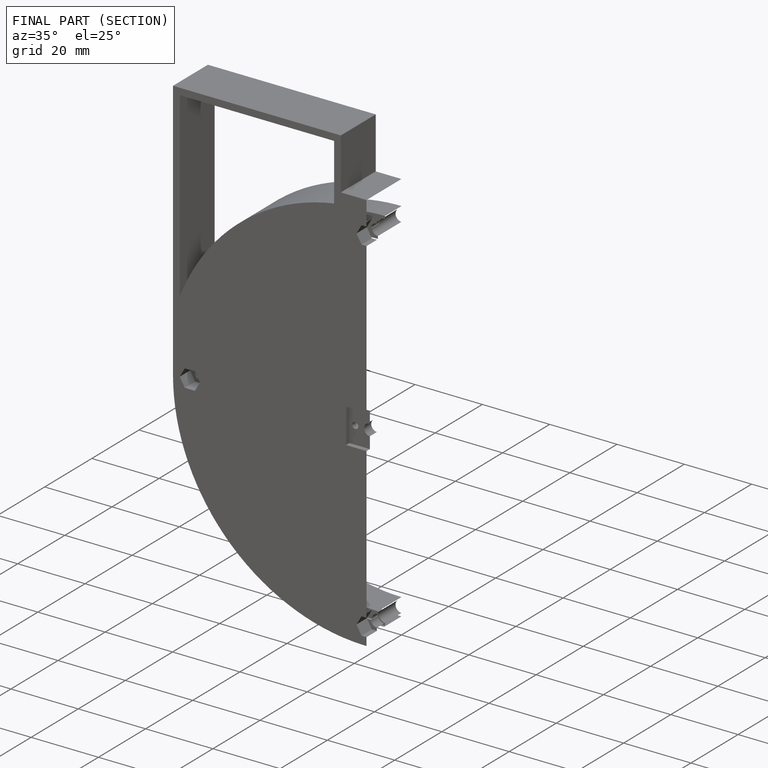
[diagram: finished part — half-section view (interior)]
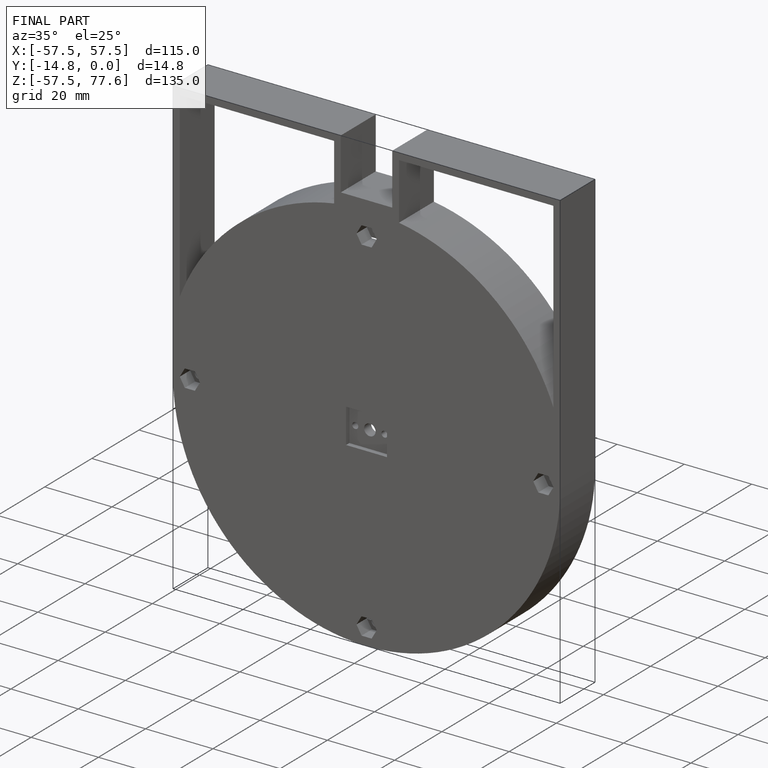
[diagram: finished part — iso view with bounding-box wireframe]
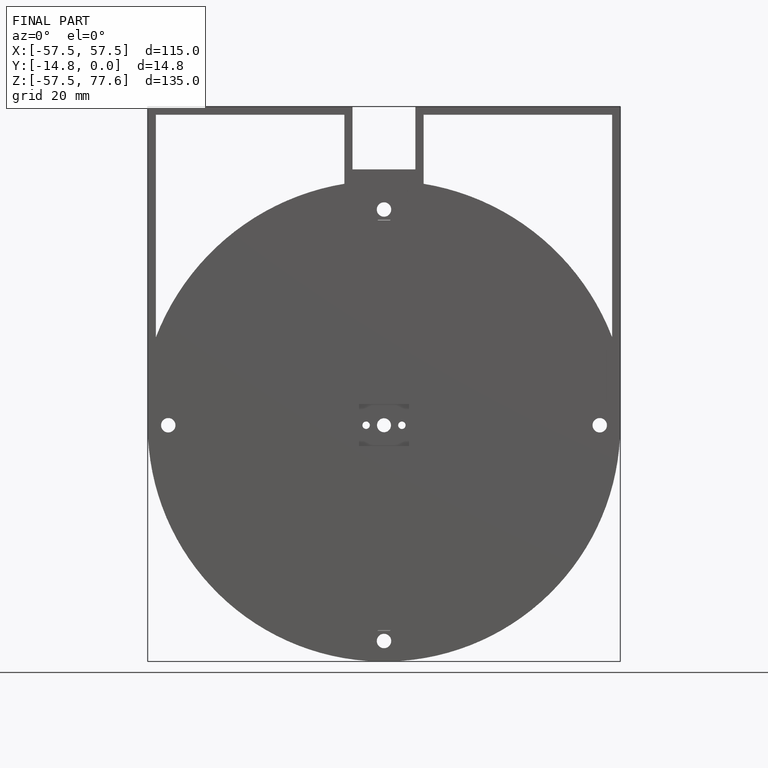
[diagram: finished part — front view with bounding-box wireframe]
